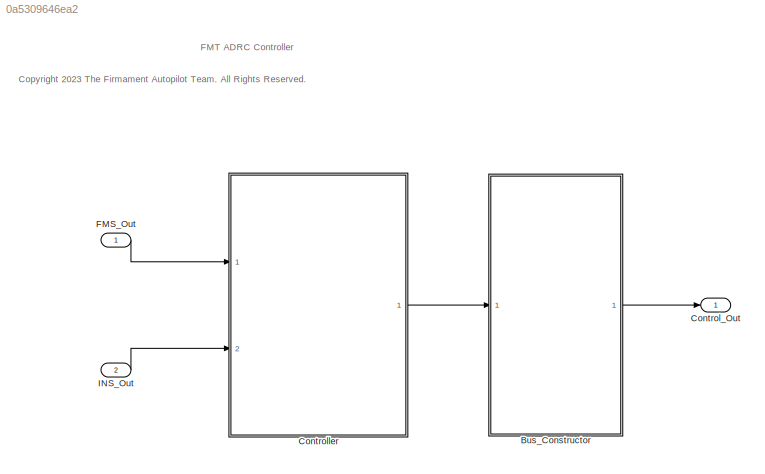
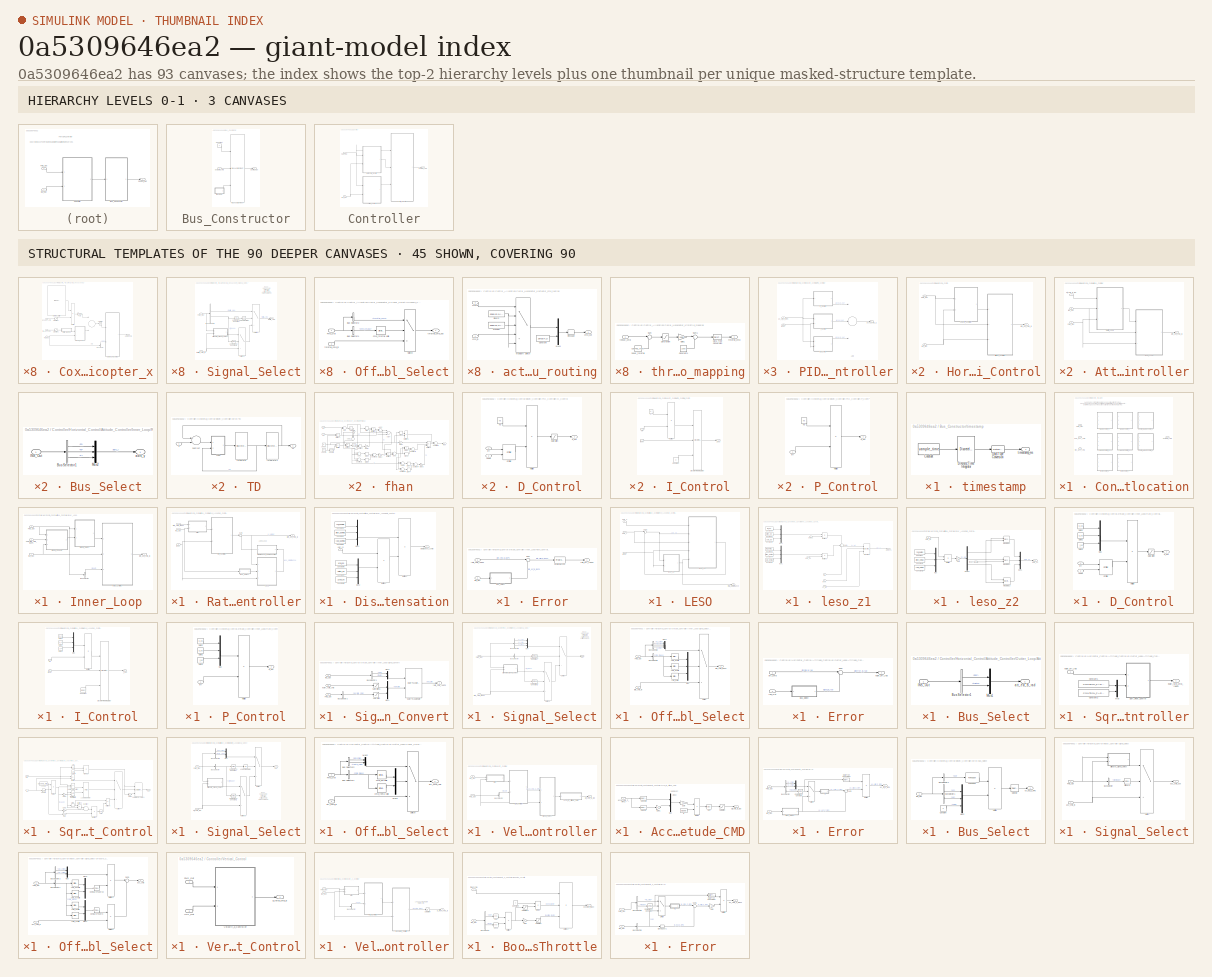
[diagram: thumbnail index - top-2 hierarchy levels (3 canvases) + 45 structural-template representatives of the remaining 90 canvases]
MODEL slx_0a5309646ea2
KIND model
CONFIG AbsTol = auto
CONFIG EnableMultiTasking = off
CONFIG FixedStep = control_dt
CONFIG MaxStep = auto
CONFIG MinStep = auto
CONFIG RelTol = 1e-3
CONFIG SampleTimeConstraint = Unconstrained
CONFIG Solver = FixedStepDiscrete
CONFIG SolverName = FixedStepDiscrete
CONFIG StartTime = 0.0
CONFIG StopTime = 10.0
BLOCK [SubSystem] Bus_Constructor
  Ports = [1, 1]
  RequestExecContextInheritance = off
BLOCK [BusAssignment] Bus_Constructor/Bus Assignment
  AssignedSignals = actuator_cmd,timestamp
  Ports = [3, 1]
BLOCK [Constant] Bus_Constructor/Constant
  OutDataTypeStr = Bus: Control_Out_Bus
  Value = 0
BLOCK [Outport] Bus_Constructor/Control_Out
  IconDisplay = Port number
BLOCK [Inport] Bus_Constructor/actuator_cmd
  IconDisplay = Port number
BLOCK [SubSystem] Bus_Constructor/timestamp
  Ports = [0, 1]
  RequestExecContextInheritance = off
BLOCK [Constant] Bus_Constructor/timestamp/Constant
  Value = sample_time
BLOCK [DataTypeConversion] Bus_Constructor/timestamp/Data Type Conversion
  OutDataTypeStr = uint32
  RndMeth = Floor
  SaturateOnIntegerOverflow = off
BLOCK [DiscreteIntegrator] Bus_Constructor/timestamp/Discrete-Time Integrator
  ICPrevOutput = DiscIntNeverNeededParam
  ICPrevScaledInput = DiscIntNeverNeededParam
  InitialConditionSetting = Auto
  IntegratorMethod = Accumulation: Forward Euler
  Ports = [1, 1]
  SampleTime = -1
BLOCK [Outport] Bus_Constructor/timestamp/timestamp_ms
  IconDisplay = Port number
BLOCK [Outport] Control_Out
  IconDisplay = Port number
  OutDataTypeStr = Bus: Control_Out_Bus
BLOCK [SubSystem] Controller
  Ports = [2, 1]
  RequestExecContextInheritance = off
BLOCK [SubSystem] Controller/Control_Allocation
  GeneratePreprocessorConditionals = on
  Ports = [3, 1]
  RequestExecContextInheritance = off
  Variant = on
BLOCK [SubSystem] Controller/Control_Allocation/Coxial_Hexacopter_x
  Ports = [3, 1]
  RequestExecContextInheritance = off
  TreatAsAtomicUnit = on
  VariantControl = AIRFRAME==6
BLOCK [Sum] Controller/Control_Allocation/Coxial_Hexacopter_x/Add
  InputSameDT = off
  OutDataTypeStr = uint16
  Ports = [2, 1]
  SaturateOnIntegerOverflow = off
BLOCK [BusSelector] Controller/Control_Allocation/Coxial_Hexacopter_x/Bus Selector
  OutputAsBus = off
  OutputSignals = status
  Ports = [1, 1]
BLOCK [Constant] Controller/Control_Allocation/Coxial_Hexacopter_x/Effective_Matrix
  OutDataTypeStr = single
  Value = [-1/2 0 -1/3;1/2 0 1/3;1/2 1/sqrt(3) -1/3;-1/2 -1/sqrt(3) 1/3;-1/2 1/sqrt(3) 1/3;1/2 -1/sqrt(3) -1/3;-1/2 0 1/3;1/2 0 -1/3;1/2 1/sqrt(3) 1/3;-1/2 -1/sqrt(3) -1/3;-1/2 1/sqrt(3) -1/3;1/2 -1/sqrt(3) 1/3]
BLOCK [Inport] Controller/Control_Allocation/Coxial_Hexacopter_x/FMS_Out
  IconDisplay = Port number
BLOCK [Gain] Controller/Control_Allocation/Coxial_Hexacopter_x/Gain
  Gain = 1000
  OutDataTypeStr = uint16
  ParamDataTypeStr = Inherit: Inherit via internal rule
  SaturateOnIntegerOverflow = off
BLOCK [Product] Controller/Control_Allocation/Coxial_Hexacopter_x/Multiply
  InputSameDT = off
  Multiplication = Matrix(*)
  Ports = [2, 1]
  RndMeth = Floor
  SaturateOnIntegerOverflow = off
BLOCK [Saturate] Controller/Control_Allocation/Coxial_Hexacopter_x/Saturation
  InputPortMap = u0
  LowerLimit = 1100
  Ports = [1, 1]
  UpperLimit = 1900
BLOCK [Saturate] Controller/Control_Allocation/Coxial_Hexacopter_x/Saturation1
  InputPortMap = u0
  LowerLimit = -1
  Ports = [1, 1]
  UpperLimit = 1
BLOCK [Saturate] Controller/Control_Allocation/Coxial_Hexacopter_x/Saturation2
  InputPortMap = u0
  LowerLimit = -1
  Ports = [1, 1]
  UpperLimit = 1
BLOCK [SubSystem] Controller/Control_Allocation/Coxial_Hexacopter_x/Signal_Select
  Ports = [2, 1]
  RequestExecContextInheritance = off
BLOCK [BusSelector] Controller/Control_Allocation/Coxial_Hexacopter_x/Signal_Select/Bus Selector1
  OutputAsBus = off
  OutputSignals = throttle_cmd,ctrl_mode
  Ports = [1, 2]
BLOCK [Reference] Controller/Control_Allocation/Coxial_Hexacopter_x/Signal_Select/Compare To Constant  REF=simulink/Logic and Bit
Operations/Compare
To Constant
  Ports = [1, 1]
  SourceBlock = simulink/Logic and Bit\nOperations/Compare\nTo Constant
  SourceProductBaseCode = SL
  SourceProductName = Simulink
  SourceType = Compare To Constant
BLOCK [Reference] Controller/Control_Allocation/Coxial_Hexacopter_x/Signal_Select/Compare To Constant1  REF=simulink/Logic and Bit
Operations/Compare
To Constant
  Ports = [1, 1]
  SourceBlock = simulink/Logic and Bit\nOperations/Compare\nTo Constant
  SourceProductBaseCode = SL
  SourceProductName = Simulink
  SourceType = Compare To Constant
BLOCK [Inport] Controller/Control_Allocation/Coxial_Hexacopter_x/Signal_Select/FMS_Out
  IconDisplay = Port number
  Port = 2
BLOCK [Logic] Controller/Control_Allocation/Coxial_Hexacopter_x/Signal_Select/Logical Operator
  AllPortsSameDT = off
  Inputs = 1
  Operator = OR
  OutDataTypeStr = boolean
  Ports = [1, 1]
BLOCK [SubSystem] Controller/Control_Allocation/Coxial_Hexacopter_x/Signal_Select/Offboard_Signal_Select
  Ports = [2, 1]
  RequestExecContextInheritance = off
BLOCK [BusSelector] Controller/Control_Allocation/Coxial_Hexacopter_x/Signal_Select/Offboard_Signal_Select/Bus Selector1
  OutputAsBus = off
  OutputSignals = cmd_mask
  Ports = [1, 1]
BLOCK [BusSelector] Controller/Control_Allocation/Coxial_Hexacopter_x/Signal_Select/Offboard_Signal_Select/Bus Selector2
  OutputAsBus = off
  OutputSignals = throttle_cmd
  Ports = [1, 1]
BLOCK [Inport] Controller/Control_Allocation/Coxial_Hexacopter_x/Signal_Select/Offboard_Signal_Select/FMS_Out
  IconDisplay = Port number
BLOCK [Switch] Controller/Control_Allocation/Coxial_Hexacopter_x/Signal_Select/Offboard_Signal_Select/Switch
  Criteria = u2 > Threshold
  InputSameDT = off
  SaturateOnIntegerOverflow = off
BLOCK [Reference] Controller/Control_Allocation/Coxial_Hexacopter_x/Signal_Select/Offboard_Signal_Select/cmd_throttle valid  REF=simulink/Logic and Bit
Operations/Bitwise
Operator
  Ports = [1, 1]
  SourceBlock = simulink/Logic and Bit\nOperations/Bitwise\nOperator
  SourceProductBaseCode = SL
  SourceProductName = Simulink
  SourceType = Bitwise Operator
BLOCK [Inport] Controller/Control_Allocation/Coxial_Hexacopter_x/Signal_Select/Offboard_Signal_Select/throttle_cmd_in
  IconDisplay = Port number
  Port = 2
BLOCK [Outport] Controller/Control_Allocation/Coxial_Hexacopter_x/Signal_Select/Offboard_Signal_Select/throttle_cmd_out
  IconDisplay = Port number
BLOCK [Switch] Controller/Control_Allocation/Coxial_Hexacopter_x/Signal_Select/Switch
  Criteria = u2 > Threshold
  InputSameDT = off
  SaturateOnIntegerOverflow = off
BLOCK [Switch] Controller/Control_Allocation/Coxial_Hexacopter_x/Signal_Select/Switch1
  Criteria = u2 > Threshold
  InputSameDT = off
  SaturateOnIntegerOverflow = off
BLOCK [Outport] Controller/Control_Allocation/Coxial_Hexacopter_x/Signal_Select/throttle_cmd
  IconDisplay = Port number
BLOCK [Inport] Controller/Control_Allocation/Coxial_Hexacopter_x/Signal_Select/throttle_cmd_in
  IconDisplay = Port number
BLOCK [Outport] Controller/Control_Allocation/Coxial_Hexacopter_x/actuator_cmd
  IconDisplay = Port number
BLOCK [SubSystem] Controller/Control_Allocation/Coxial_Hexacopter_x/actuator_cmd_routing
  Ports = [2, 1]
  RequestExecContextInheritance = off
BLOCK [Constant] Controller/Control_Allocation/Coxial_Hexacopter_x/actuator_cmd_routing/Constant
  OutDataTypeStr = uint16
  Value = zeros(4,1)
  VectorParams1D = off
BLOCK [Constant] Controller/Control_Allocation/Coxial_Hexacopter_x/actuator_cmd_routing/Disarm
  OutDataTypeStr = uint16
  Value = ones(12,1)*1000
  VectorParams1D = off
BLOCK [MultiPortSwitch] Controller/Control_Allocation/Coxial_Hexacopter_x/actuator_cmd_routing/Multiport Switch
  DataPortForDefault = Additional data port
  DiagnosticForDefault = None
  InputSameDT = off
  Ports = [5, 1]
  SaturateOnIntegerOverflow = off
BLOCK [Mux] Controller/Control_Allocation/Coxial_Hexacopter_x/actuator_cmd_routing/Mux1
  DisplayOption = bar
  Inputs = 2
  Ports = [2, 1]
BLOCK [Reshape] Controller/Control_Allocation/Coxial_Hexacopter_x/actuator_cmd_routing/Reshape
  OutputDimensionality = Customize
  OutputDimensions = [16,1]
  Ports = [1, 1]
BLOCK [Constant] Controller/Control_Allocation/Coxial_Hexacopter_x/actuator_cmd_routing/Standby
  OutDataTypeStr = uint16
  Value = ones(12,1)*1150
  VectorParams1D = off
BLOCK [Inport] Controller/Control_Allocation/Coxial_Hexacopter_x/actuator_cmd_routing/cmd_in
  IconDisplay = Port number
BLOCK [Outport] Controller/Control_Allocation/Coxial_Hexacopter_x/actuator_cmd_routing/cmd_out
  IconDisplay = Port number
BLOCK [Inport] Controller/Control_Allocation/Coxial_Hexacopter_x/actuator_cmd_routing/status
  IconDisplay = Port number
  Port = 2
BLOCK [Inport] Controller/Control_Allocation/Coxial_Hexacopter_x/ang_acc_cmd
  IconDisplay = Port number
  Port = 2
BLOCK [Inport] Controller/Control_Allocation/Coxial_Hexacopter_x/line_acc_cmd
  IconDisplay = Port number
  Port = 3
BLOCK [SubSystem] Controller/Control_Allocation/Coxial_Hexacopter_x/throttle_mapping
  Ports = [1, 1]
  RequestExecContextInheritance = off
BLOCK [Constant] Controller/Control_Allocation/Coxial_Hexacopter_x/throttle_mapping/Constant1
  OutDataTypeStr = uint32
  Value = 1000
BLOCK [DataTypeConversion] Controller/Control_Allocation/Coxial_Hexacopter_x/throttle_mapping/Data Type Conversion
  OutDataTypeStr = uint16
  RndMeth = Floor
  SaturateOnIntegerOverflow = off
BLOCK [Gain] Controller/Control_Allocation/Coxial_Hexacopter_x/throttle_mapping/Gain1
  Gain = 1000
  OutDataTypeStr = uint32
  ParamDataTypeStr = Inherit: Inherit via internal rule
  SaturateOnIntegerOverflow = off
BLOCK [Saturate] Controller/Control_Allocation/Coxial_Hexacopter_x/throttle_mapping/Saturation
  InputPortMap = u0
  LowerLimit = 0
  Ports = [1, 1]
  UpperLimit = 1
BLOCK [Sum] Controller/Control_Allocation/Coxial_Hexacopter_x/throttle_mapping/Sum
  IconShape = round
  InputSameDT = off
  Inputs = |++
  OutDataTypeStr = Inherit: Inherit via internal rule
  Ports = [2, 1]
  SaturateOnIntegerOverflow = off
BLOCK [Sum] Controller/Control_Allocation/Coxial_Hexacopter_x/throttle_mapping/Sum1
  IconShape = round
  InputSameDT = off
  Inputs = |++
  OutDataTypeStr = Inherit: Inherit via internal rule
  Ports = [2, 1]
  SaturateOnIntegerOverflow = off
BLOCK [Constant] Controller/Control_Allocation/Coxial_Hexacopter_x/throttle_mapping/hover_throttle
  OutDataTypeStr = Inherit: Inherit via back propagation
  Value = CONTROL_PARAM.HOVER_THRO
BLOCK [Inport] Controller/Control_Allocation/Coxial_Hexacopter_x/throttle_mapping/theust_cmd
  IconDisplay = Port number
BLOCK [Outport] Controller/Control_Allocation/Coxial_Hexacopter_x/throttle_mapping/throttle_cmd
  IconDisplay = Port number
BLOCK [SubSystem] Controller/Control_Allocation/Coxial_Quadcopter_x
  Ports = [3, 1]
  RequestExecContextInheritance = off
  TreatAsAtomicUnit = on
  VariantControl = AIRFRAME==3
BLOCK [Sum] Controller/Control_Allocation/Coxial_Quadcopter_x/Add
  InputSameDT = off
  OutDataTypeStr = uint16
  Ports = [2, 1]
  SaturateOnIntegerOverflow = off
BLOCK [BusSelector] Controller/Control_Allocation/Coxial_Quadcopter_x/Bus Selector
  OutputAsBus = off
  OutputSignals = status
  Ports = [1, 1]
BLOCK [Constant] Controller/Control_Allocation/Coxial_Quadcopter_x/Effective_Matrix
  OutDataTypeStr = single
  Value = [-sqrt(2)/2 sqrt(2)/2 1/2;sqrt(2)/2 sqrt(2)/2 -1/2;sqrt(2)/2 -sqrt(2)/2 1/2;-sqrt(2)/2 -sqrt(2)/2 -1/2;sqrt(2)/2 sqrt(2)/2 1/2;-sqrt(2)/2 sqrt(2)/2 -1/2;-sqrt(2)/2 -sqrt(2)/2 1/2;sqrt(2)/2 -sqrt(2)/2 -1/2]
BLOCK [Inport] Controller/Control_Allocation/Coxial_Quadcopter_x/FMS_Out
  IconDisplay = Port number
BLOCK [Gain] Controller/Control_Allocation/Coxial_Quadcopter_x/Gain
  Gain = 1000
  OutDataTypeStr = uint16
  ParamDataTypeStr = Inherit: Inherit via internal rule
  SaturateOnIntegerOverflow = off
BLOCK [Product] Controller/Control_Allocation/Coxial_Quadcopter_x/Multiply
  InputSameDT = off
  Multiplication = Matrix(*)
  Ports = [2, 1]
  RndMeth = Floor
  SaturateOnIntegerOverflow = off
BLOCK [Saturate] Controller/Control_Allocation/Coxial_Quadcopter_x/Saturation
  InputPortMap = u0
  LowerLimit = 1100
  Ports = [1, 1]
  UpperLimit = 1900
BLOCK [Saturate] Controller/Control_Allocation/Coxial_Quadcopter_x/Saturation1
  InputPortMap = u0
  LowerLimit = -1
  Ports = [1, 1]
  UpperLimit = 1
BLOCK [Saturate] Controller/Control_Allocation/Coxial_Quadcopter_x/Saturation2
  InputPortMap = u0
  LowerLimit = -1
  Ports = [1, 1]
  UpperLimit = 1
BLOCK [SubSystem] Controller/Control_Allocation/Coxial_Quadcopter_x/Signal_Select
  Ports = [2, 1]
  RequestExecContextInheritance = off
BLOCK [BusSelector] Controller/Control_Allocation/Coxial_Quadcopter_x/Signal_Select/Bus Selector1
  OutputAsBus = off
  OutputSignals = throttle_cmd,ctrl_mode
  Ports = [1, 2]
BLOCK [Reference] Controller/Control_Allocation/Coxial_Quadcopter_x/Signal_Select/Compare To Constant  REF=simulink/Logic and Bit
Operations/Compare
To Constant
  Ports = [1, 1]
  SourceBlock = simulink/Logic and Bit\nOperations/Compare\nTo Constant
  SourceProductBaseCode = SL
  SourceProductName = Simulink
  SourceType = Compare To Constant
BLOCK [Reference] Controller/Control_Allocation/Coxial_Quadcopter_x/Signal_Select/Compare To Constant1  REF=simulink/Logic and Bit
Operations/Compare
To Constant
  Ports = [1, 1]
  SourceBlock = simulink/Logic and Bit\nOperations/Compare\nTo Constant
  SourceProductBaseCode = SL
  SourceProductName = Simulink
  SourceType = Compare To Constant
BLOCK [Inport] Controller/Control_Allocation/Coxial_Quadcopter_x/Signal_Select/FMS_Out
  IconDisplay = Port number
  Port = 2
BLOCK [Logic] Controller/Control_Allocation/Coxial_Quadcopter_x/Signal_Select/Logical Operator
  AllPortsSameDT = off
  Inputs = 1
  Operator = OR
  OutDataTypeStr = boolean
  Ports = [1, 1]
BLOCK [SubSystem] Controller/Control_Allocation/Coxial_Quadcopter_x/Signal_Select/Offboard_Signal_Select
  Ports = [2, 1]
  RequestExecContextInheritance = off
BLOCK [BusSelector] Controller/Control_Allocation/Coxial_Quadcopter_x/Signal_Select/Offboard_Signal_Select/Bus Selector1
  OutputAsBus = off
  OutputSignals = cmd_mask
  Ports = [1, 1]
BLOCK [BusSelector] Controller/Control_Allocation/Coxial_Quadcopter_x/Signal_Select/Offboard_Signal_Select/Bus Selector2
  OutputAsBus = off
  OutputSignals = throttle_cmd
  Ports = [1, 1]
BLOCK [Inport] Controller/Control_Allocation/Coxial_Quadcopter_x/Signal_Select/Offboard_Signal_Select/FMS_Out
  IconDisplay = Port number
BLOCK [Switch] Controller/Control_Allocation/Coxial_Quadcopter_x/Signal_Select/Offboard_Signal_Select/Switch
  Criteria = u2 > Threshold
  InputSameDT = off
  SaturateOnIntegerOverflow = off
BLOCK [Reference] Controller/Control_Allocation/Coxial_Quadcopter_x/Signal_Select/Offboard_Signal_Select/cmd_throttle valid  REF=simulink/Logic and Bit
Operations/Bitwise
Operator
  Ports = [1, 1]
  SourceBlock = simulink/Logic and Bit\nOperations/Bitwise\nOperator
  SourceProductBaseCode = SL
  SourceProductName = Simulink
  SourceType = Bitwise Operator
BLOCK [Inport] Controller/Control_Allocation/Coxial_Quadcopter_x/Signal_Select/Offboard_Signal_Select/throttle_cmd_in
  IconDisplay = Port number
  Port = 2
BLOCK [Outport] Controller/Control_Allocation/Coxial_Quadcopter_x/Signal_Select/Offboard_Signal_Select/throttle_cmd_out
  IconDisplay = Port number
BLOCK [Switch] Controller/Control_Allocation/Coxial_Quadcopter_x/Signal_Select/Switch
  Criteria = u2 > Threshold
  InputSameDT = off
  SaturateOnIntegerOverflow = off
BLOCK [Switch] Controller/Control_Allocation/Coxial_Quadcopter_x/Signal_Select/Switch1
  Criteria = u2 > Threshold
  InputSameDT = off
  SaturateOnIntegerOverflow = off
BLOCK [Outport] Controller/Control_Allocation/Coxial_Quadcopter_x/Signal_Select/throttle_cmd
  IconDisplay = Port number
BLOCK [Inport] Controller/Control_Allocation/Coxial_Quadcopter_x/Signal_Select/throttle_cmd_in
  IconDisplay = Port number
BLOCK [Outport] Controller/Control_Allocation/Coxial_Quadcopter_x/actuator_cmd
  IconDisplay = Port number
BLOCK [SubSystem] Controller/Control_Allocation/Coxial_Quadcopter_x/actuator_cmd_routing
  Ports = [2, 1]
  RequestExecContextInheritance = off
BLOCK [Constant] Controller/Control_Allocation/Coxial_Quadcopter_x/actuator_cmd_routing/Constant
  OutDataTypeStr = uint16
  Value = zeros(8,1)
  VectorParams1D = off
BLOCK [Constant] Controller/Control_Allocation/Coxial_Quadcopter_x/actuator_cmd_routing/Disarm
  OutDataTypeStr = uint16
  Value = ones(8,1)*1000
  VectorParams1D = off
BLOCK [MultiPortSwitch] Controller/Control_Allocation/Coxial_Quadcopter_x/actuator_cmd_routing/Multiport Switch
  DataPortForDefault = Additional data port
  DiagnosticForDefault = None
  InputSameDT = off
  Ports = [5, 1]
  SaturateOnIntegerOverflow = off
BLOCK [Mux] Controller/Control_Allocation/Coxial_Quadcopter_x/actuator_cmd_routing/Mux1
  DisplayOption = bar
  Inputs = 2
  Ports = [2, 1]
BLOCK [Reshape] Controller/Control_Allocation/Coxial_Quadcopter_x/actuator_cmd_routing/Reshape
  OutputDimensionality = Customize
  OutputDimensions = [16,1]
  Ports = [1, 1]
BLOCK [Constant] Controller/Control_Allocation/Coxial_Quadcopter_x/actuator_cmd_routing/Standby
  OutDataTypeStr = uint16
  Value = ones(8,1)*1150
  VectorParams1D = off
BLOCK [Inport] Controller/Control_Allocation/Coxial_Quadcopter_x/actuator_cmd_routing/cmd_in
  IconDisplay = Port number
BLOCK [Outport] Controller/Control_Allocation/Coxial_Quadcopter_x/actuator_cmd_routing/cmd_out
  IconDisplay = Port number
BLOCK [Inport] Controller/Control_Allocation/Coxial_Quadcopter_x/actuator_cmd_routing/status
  IconDisplay = Port number
  Port = 2
BLOCK [Inport] Controller/Control_Allocation/Coxial_Quadcopter_x/ang_acc_cmd
  IconDisplay = Port number
  Port = 2
BLOCK [Inport] Controller/Control_Allocation/Coxial_Quadcopter_x/line_acc_cmd
  IconDisplay = Port number
  Port = 3
BLOCK [SubSystem] Controller/Control_Allocation/Coxial_Quadcopter_x/throttle_mapping
  Ports = [1, 1]
  RequestExecContextInheritance = off
BLOCK [Constant] Controller/Control_Allocation/Coxial_Quadcopter_x/throttle_mapping/Constant1
  OutDataTypeStr = uint32
  Value = 1000
BLOCK [DataTypeConversion] Controller/Control_Allocation/Coxial_Quadcopter_x/throttle_mapping/Data Type Conversion
  OutDataTypeStr = uint16
  RndMeth = Floor
  SaturateOnIntegerOverflow = off
BLOCK [Gain] Controller/Control_Allocation/Coxial_Quadcopter_x/throttle_mapping/Gain1
  Gain = 1000
  OutDataTypeStr = uint32
  ParamDataTypeStr = Inherit: Inherit via internal rule
  SaturateOnIntegerOverflow = off
BLOCK [Saturate] Controller/Control_Allocation/Coxial_Quadcopter_x/throttle_mapping/Saturation
  InputPortMap = u0
  LowerLimit = 0
  Ports = [1, 1]
  UpperLimit = 1
BLOCK [Sum] Controller/Control_Allocation/Coxial_Quadcopter_x/throttle_mapping/Sum
  IconShape = round
  InputSameDT = off
  Inputs = |++
  OutDataTypeStr = Inherit: Inherit via internal rule
  Ports = [2, 1]
  SaturateOnIntegerOverflow = off
BLOCK [Sum] Controller/Control_Allocation/Coxial_Quadcopter_x/throttle_mapping/Sum1
  IconShape = round
  InputSameDT = off
  Inputs = |++
  OutDataTypeStr = Inherit: Inherit via internal rule
  Ports = [2, 1]
  SaturateOnIntegerOverflow = off
BLOCK [Constant] Controller/Control_Allocation/Coxial_Quadcopter_x/throttle_mapping/hover_throttle
  OutDataTypeStr = Inherit: Inherit via back propagation
  Value = CONTROL_PARAM.HOVER_THRO
BLOCK [Inport] Controller/Control_Allocation/Coxial_Quadcopter_x/throttle_mapping/theust_cmd
  IconDisplay = Port number
BLOCK [Outport] Controller/Control_Allocation/Coxial_Quadcopter_x/throttle_mapping/throttle_cmd
  IconDisplay = Port number
BLOCK [Inport] Controller/Control_Allocation/FMS_Out
  IconDisplay = Port number
BLOCK [SubSystem] Controller/Control_Allocation/Hexacopter_+
  Ports = [3, 1]
  RequestExecContextInheritance = off
  TreatAsAtomicUnit = on
  VariantControl = AIRFRAME==5
BLOCK [Sum] Controller/Control_Allocation/Hexacopter_+/Add
  InputSameDT = off
  OutDataTypeStr = uint16
  Ports = [2, 1]
  SaturateOnIntegerOverflow = off
BLOCK [BusSelector] Controller/Control_Allocation/Hexacopter_+/Bus Selector
  OutputAsBus = off
  OutputSignals = status
  Ports = [1, 1]
BLOCK [Constant] Controller/Control_Allocation/Hexacopter_+/Effective_Matrix
  OutDataTypeStr = single
  Value = [0 1 -2/3;0 -1 2/3;2/sqrt(3) -1 -2/3;-2/sqrt(3) 1 2/3;2/sqrt(3) 1 2/3;-2/sqrt(3) -1 -2/3]
BLOCK [Inport] Controller/Control_Allocation/Hexacopter_+/FMS_Out
  IconDisplay = Port number
BLOCK [Gain] Controller/Control_Allocation/Hexacopter_+/Gain
  Gain = 1000
  OutDataTypeStr = uint16
  ParamDataTypeStr = Inherit: Inherit via internal rule
  SaturateOnIntegerOverflow = off
BLOCK [Product] Controller/Control_Allocation/Hexacopter_+/Multiply
  InputSameDT = off
  Multiplication = Matrix(*)
  Ports = [2, 1]
  RndMeth = Floor
  SaturateOnIntegerOverflow = off
BLOCK [Saturate] Controller/Control_Allocation/Hexacopter_+/Saturation
  InputPortMap = u0
  LowerLimit = 1100
  Ports = [1, 1]
  UpperLimit = 1900
BLOCK [Saturate] Controller/Control_Allocation/Hexacopter_+/Saturation1
  InputPortMap = u0
  LowerLimit = -1
  Ports = [1, 1]
  UpperLimit = 1
BLOCK [Saturate] Controller/Control_Allocation/Hexacopter_+/Saturation2
  InputPortMap = u0
  LowerLimit = -1
  Ports = [1, 1]
  UpperLimit = 1
BLOCK [SubSystem] Controller/Control_Allocation/Hexacopter_+/Signal_Select
  Ports = [2, 1]
  RequestExecContextInheritance = off
BLOCK [BusSelector] Controller/Control_Allocation/Hexacopter_+/Signal_Select/Bus Selector1
  OutputAsBus = off
  OutputSignals = throttle_cmd,ctrl_mode
  Ports = [1, 2]
BLOCK [Reference] Controller/Control_Allocation/Hexacopter_+/Signal_Select/Compare To Constant  REF=simulink/Logic and Bit
Operations/Compare
To Constant
  Ports = [1, 1]
  SourceBlock = simulink/Logic and Bit\nOperations/Compare\nTo Constant
  SourceProductBaseCode = SL
  SourceProductName = Simulink
  SourceType = Compare To Constant
BLOCK [Reference] Controller/Control_Allocation/Hexacopter_+/Signal_Select/Compare To Constant1  REF=simulink/Logic and Bit
Operations/Compare
To Constant
  Ports = [1, 1]
  SourceBlock = simulink/Logic and Bit\nOperations/Compare\nTo Constant
  SourceProductBaseCode = SL
  SourceProductName = Simulink
  SourceType = Compare To Constant
BLOCK [Inport] Controller/Control_Allocation/Hexacopter_+/Signal_Select/FMS_Out
  IconDisplay = Port number
  Port = 2
BLOCK [Logic] Controller/Control_Allocation/Hexacopter_+/Signal_Select/Logical Operator
  AllPortsSameDT = off
  Inputs = 1
  Operator = OR
  OutDataTypeStr = boolean
  Ports = [1, 1]
BLOCK [SubSystem] Controller/Control_Allocation/Hexacopter_+/Signal_Select/Offboard_Signal_Select
  Ports = [2, 1]
  RequestExecContextInheritance = off
BLOCK [BusSelector] Controller/Control_Allocation/Hexacopter_+/Signal_Select/Offboard_Signal_Select/Bus Selector1
  OutputAsBus = off
  OutputSignals = cmd_mask
  Ports = [1, 1]
BLOCK [BusSelector] Controller/Control_Allocation/Hexacopter_+/Signal_Select/Offboard_Signal_Select/Bus Selector2
  OutputAsBus = off
  OutputSignals = throttle_cmd
  Ports = [1, 1]
BLOCK [Inport] Controller/Control_Allocation/Hexacopter_+/Signal_Select/Offboard_Signal_Select/FMS_Out
  IconDisplay = Port number
BLOCK [Switch] Controller/Control_Allocation/Hexacopter_+/Signal_Select/Offboard_Signal_Select/Switch
  Criteria = u2 > Threshold
  InputSameDT = off
  SaturateOnIntegerOverflow = off
BLOCK [Reference] Controller/Control_Allocation/Hexacopter_+/Signal_Select/Offboard_Signal_Select/cmd_throttle valid  REF=simulink/Logic and Bit
Operations/Bitwise
Operator
  Ports = [1, 1]
  SourceBlock = simulink/Logic and Bit\nOperations/Bitwise\nOperator
  SourceProductBaseCode = SL
  SourceProductName = Simulink
  SourceType = Bitwise Operator
BLOCK [Inport] Controller/Control_Allocation/Hexacopter_+/Signal_Select/Offboard_Signal_Select/throttle_cmd_in
  IconDisplay = Port number
  Port = 2
BLOCK [Outport] Controller/Control_Allocation/Hexacopter_+/Signal_Select/Offboard_Signal_Select/throttle_cmd_out
  IconDisplay = Port number
BLOCK [Switch] Controller/Control_Allocation/Hexacopter_+/Signal_Select/Switch
  Criteria = u2 > Threshold
  InputSameDT = off
  SaturateOnIntegerOverflow = off
BLOCK [Switch] Controller/Control_Allocation/Hexacopter_+/Signal_Select/Switch1
  Criteria = u2 > Threshold
  InputSameDT = off
  SaturateOnIntegerOverflow = off
BLOCK [Outport] Controller/Control_Allocation/Hexacopter_+/Signal_Select/throttle_cmd
  IconDisplay = Port number
BLOCK [Inport] Controller/Control_Allocation/Hexacopter_+/Signal_Select/throttle_cmd_in
  IconDisplay = Port number
BLOCK [Outport] Controller/Control_Allocation/Hexacopter_+/actuator_cmd
  IconDisplay = Port number
BLOCK [SubSystem] Controller/Control_Allocation/Hexacopter_+/actuator_cmd_routing
  Ports = [2, 1]
  RequestExecContextInheritance = off
BLOCK [Constant] Controller/Control_Allocation/Hexacopter_+/actuator_cmd_routing/Constant
  OutDataTypeStr = uint16
  Value = zeros(10,1)
  VectorParams1D = off
BLOCK [Constant] Controller/Control_Allocation/Hexacopter_+/actuator_cmd_routing/Disarm
  OutDataTypeStr = uint16
  Value = ones(6,1)*1000
  VectorParams1D = off
BLOCK [MultiPortSwitch] Controller/Control_Allocation/Hexacopter_+/actuator_cmd_routing/Multiport Switch
  DataPortForDefault = Additional data port
  DiagnosticForDefault = None
  InputSameDT = off
  Ports = [5, 1]
  SaturateOnIntegerOverflow = off
BLOCK [Mux] Controller/Control_Allocation/Hexacopter_+/actuator_cmd_routing/Mux1
  DisplayOption = bar
  Inputs = 2
  Ports = [2, 1]
BLOCK [Reshape] Controller/Control_Allocation/Hexacopter_+/actuator_cmd_routing/Reshape
  OutputDimensionality = Customize
  OutputDimensions = [16,1]
  Ports = [1, 1]
BLOCK [Constant] Controller/Control_Allocation/Hexacopter_+/actuator_cmd_routing/Standby
  OutDataTypeStr = uint16
  Value = ones(6,1)*1150
  VectorParams1D = off
BLOCK [Inport] Controller/Control_Allocation/Hexacopter_+/actuator_cmd_routing/cmd_in
  IconDisplay = Port number
BLOCK [Outport] Controller/Control_Allocation/Hexacopter_+/actuator_cmd_routing/cmd_out
  IconDisplay = Port number
BLOCK [Inport] Controller/Control_Allocation/Hexacopter_+/actuator_cmd_routing/status
  IconDisplay = Port number
  Port = 2
BLOCK [Inport] Controller/Control_Allocation/Hexacopter_+/ang_acc_cmd
  IconDisplay = Port number
  Port = 2
BLOCK [Inport] Controller/Control_Allocation/Hexacopter_+/line_acc_cmd
  IconDisplay = Port number
  Port = 3
BLOCK [SubSystem] Controller/Control_Allocation/Hexacopter_+/throttle_mapping
  Ports = [1, 1]
  RequestExecContextInheritance = off
BLOCK [Constant] Controller/Control_Allocation/Hexacopter_+/throttle_mapping/Constant1
  OutDataTypeStr = uint32
  Value = 1000
BLOCK [DataTypeConversion] Controller/Control_Allocation/Hexacopter_+/throttle_mapping/Data Type Conversion
  OutDataTypeStr = uint16
  RndMeth = Floor
  SaturateOnIntegerOverflow = off
BLOCK [Gain] Controller/Control_Allocation/Hexacopter_+/throttle_mapping/Gain1
  Gain = 1000
  OutDataTypeStr = uint32
  ParamDataTypeStr = Inherit: Inherit via internal rule
  SaturateOnIntegerOverflow = off
BLOCK [Saturate] Controller/Control_Allocation/Hexacopter_+/throttle_mapping/Saturation
  InputPortMap = u0
  LowerLimit = 0
  Ports = [1, 1]
  UpperLimit = 1
BLOCK [Sum] Controller/Control_Allocation/Hexacopter_+/throttle_mapping/Sum
  IconShape = round
  InputSameDT = off
  Inputs = |++
  OutDataTypeStr = Inherit: Inherit via internal rule
  Ports = [2, 1]
  SaturateOnIntegerOverflow = off
BLOCK [Sum] Controller/Control_Allocation/Hexacopter_+/throttle_mapping/Sum1
  IconShape = round
  InputSameDT = off
  Inputs = |++
  OutDataTypeStr = Inherit: Inherit via internal rule
  Ports = [2, 1]
  SaturateOnIntegerOverflow = off
BLOCK [Constant] Controller/Control_Allocation/Hexacopter_+/throttle_mapping/hover_throttle
  OutDataTypeStr = Inherit: Inherit via back propagation
  Value = CONTROL_PARAM.HOVER_THRO
BLOCK [Inport] Controller/Control_Allocation/Hexacopter_+/throttle_mapping/theust_cmd
  IconDisplay = Port number
BLOCK [Outport] Controller/Control_Allocation/Hexacopter_+/throttle_mapping/throttle_cmd
  IconDisplay = Port number
BLOCK [SubSystem] Controller/Control_Allocation/Hexacopter_x
  Ports = [3, 1]
  RequestExecContextInheritance = off
  TreatAsAtomicUnit = on
  VariantControl = AIRFRAME==4
BLOCK [Sum] Controller/Control_Allocation/Hexacopter_x/Add
  InputSameDT = off
  OutDataTypeStr = uint16
  Ports = [2, 1]
  SaturateOnIntegerOverflow = off
BLOCK [BusSelector] Controller/Control_Allocation/Hexacopter_x/Bus Selector
  OutputAsBus = off
  OutputSignals = status
  Ports = [1, 1]
BLOCK [Constant] Controller/Control_Allocation/Hexacopter_x/Effective_Matrix
  OutDataTypeStr = single
  Value = [-1 0 -2/3;1 0 2/3;1 2/sqrt(3) -2/3;-1 -2/sqrt(3) 2/3;-1 2/sqrt(3) 2/3;1 -2/sqrt(3) -2/3]
BLOCK [Inport] Controller/Control_Allocation/Hexacopter_x/FMS_Out
  IconDisplay = Port number
BLOCK [Gain] Controller/Control_Allocation/Hexacopter_x/Gain
  Gain = 1000
  OutDataTypeStr = uint16
  ParamDataTypeStr = Inherit: Inherit via internal rule
  SaturateOnIntegerOverflow = off
BLOCK [Product] Controller/Control_Allocation/Hexacopter_x/Multiply
  InputSameDT = off
  Multiplication = Matrix(*)
  Ports = [2, 1]
  RndMeth = Floor
  SaturateOnIntegerOverflow = off
BLOCK [Saturate] Controller/Control_Allocation/Hexacopter_x/Saturation
  InputPortMap = u0
  LowerLimit = 1100
  Ports = [1, 1]
  UpperLimit = 1900
BLOCK [Saturate] Controller/Control_Allocation/Hexacopter_x/Saturation1
  InputPortMap = u0
  LowerLimit = -1
  Ports = [1, 1]
  UpperLimit = 1
BLOCK [Saturate] Controller/Control_Allocation/Hexacopter_x/Saturation2
  InputPortMap = u0
  LowerLimit = -1
  Ports = [1, 1]
  UpperLimit = 1
BLOCK [SubSystem] Controller/Control_Allocation/Hexacopter_x/Signal_Select
  Ports = [2, 1]
  RequestExecContextInheritance = off
BLOCK [BusSelector] Controller/Control_Allocation/Hexacopter_x/Signal_Select/Bus Selector1
  OutputAsBus = off
  OutputSignals = throttle_cmd,ctrl_mode
  Ports = [1, 2]
BLOCK [Reference] Controller/Control_Allocation/Hexacopter_x/Signal_Select/Compare To Constant  REF=simulink/Logic and Bit
Operations/Compare
To Constant
  Ports = [1, 1]
  SourceBlock = simulink/Logic and Bit\nOperations/Compare\nTo Constant
  SourceProductBaseCode = SL
  SourceProductName = Simulink
  SourceType = Compare To Constant
BLOCK [Reference] Controller/Control_Allocation/Hexacopter_x/Signal_Select/Compare To Constant1  REF=simulink/Logic and Bit
Operations/Compare
To Constant
  Ports = [1, 1]
  SourceBlock = simulink/Logic and Bit\nOperations/Compare\nTo Constant
  SourceProductBaseCode = SL
  SourceProductName = Simulink
  SourceType = Compare To Constant
BLOCK [Inport] Controller/Control_Allocation/Hexacopter_x/Signal_Select/FMS_Out
  IconDisplay = Port number
  Port = 2
BLOCK [Logic] Controller/Control_Allocation/Hexacopter_x/Signal_Select/Logical Operator
  AllPortsSameDT = off
  Inputs = 1
  Operator = OR
  OutDataTypeStr = boolean
  Ports = [1, 1]
BLOCK [SubSystem] Controller/Control_Allocation/Hexacopter_x/Signal_Select/Offboard_Signal_Select
  Ports = [2, 1]
  RequestExecContextInheritance = off
BLOCK [BusSelector] Controller/Control_Allocation/Hexacopter_x/Signal_Select/Offboard_Signal_Select/Bus Selector1
  OutputAsBus = off
  OutputSignals = cmd_mask
  Ports = [1, 1]
BLOCK [BusSelector] Controller/Control_Allocation/Hexacopter_x/Signal_Select/Offboard_Signal_Select/Bus Selector2
  OutputAsBus = off
  OutputSignals = throttle_cmd
  Ports = [1, 1]
BLOCK [Inport] Controller/Control_Allocation/Hexacopter_x/Signal_Select/Offboard_Signal_Select/FMS_Out
  IconDisplay = Port number
BLOCK [Switch] Controller/Control_Allocation/Hexacopter_x/Signal_Select/Offboard_Signal_Select/Switch
  Criteria = u2 > Threshold
  InputSameDT = off
  SaturateOnIntegerOverflow = off
BLOCK [Reference] Controller/Control_Allocation/Hexacopter_x/Signal_Select/Offboard_Signal_Select/cmd_throttle valid  REF=simulink/Logic and Bit
Operations/Bitwise
Operator
  Ports = [1, 1]
  SourceBlock = simulink/Logic and Bit\nOperations/Bitwise\nOperator
  SourceProductBaseCode = SL
  SourceProductName = Simulink
  SourceType = Bitwise Operator
BLOCK [Inport] Controller/Control_Allocation/Hexacopter_x/Signal_Select/Offboard_Signal_Select/throttle_cmd_in
  IconDisplay = Port number
  Port = 2
BLOCK [Outport] Controller/Control_Allocation/Hexacopter_x/Signal_Select/Offboard_Signal_Select/throttle_cmd_out
  IconDisplay = Port number
BLOCK [Switch] Controller/Control_Allocation/Hexacopter_x/Signal_Select/Switch
  Criteria = u2 > Threshold
  InputSameDT = off
  SaturateOnIntegerOverflow = off
BLOCK [Switch] Controller/Control_Allocation/Hexacopter_x/Signal_Select/Switch1
  Criteria = u2 > Threshold
  InputSameDT = off
  SaturateOnIntegerOverflow = off
BLOCK [Outport] Controller/Control_Allocation/Hexacopter_x/Signal_Select/throttle_cmd
  IconDisplay = Port number
BLOCK [Inport] Controller/Control_Allocation/Hexacopter_x/Signal_Select/throttle_cmd_in
  IconDisplay = Port number
BLOCK [Outport] Controller/Control_Allocation/Hexacopter_x/actuator_cmd
  IconDisplay = Port number
BLOCK [SubSystem] Controller/Control_Allocation/Hexacopter_x/actuator_cmd_routing
  Ports = [2, 1]
  RequestExecContextInheritance = off
BLOCK [Constant] Controller/Control_Allocation/Hexacopter_x/actuator_cmd_routing/Constant
  OutDataTypeStr = uint16
  Value = zeros(10,1)
  VectorParams1D = off
BLOCK [Constant] Controller/Control_Allocation/Hexacopter_x/actuator_cmd_routing/Disarm
  OutDataTypeStr = uint16
  Value = ones(6,1)*1000
  VectorParams1D = off
BLOCK [MultiPortSwitch] Controller/Control_Allocation/Hexacopter_x/actuator_cmd_routing/Multiport Switch
  DataPortForDefault = Additional data port
  DiagnosticForDefault = None
  InputSameDT = off
  Ports = [5, 1]
  SaturateOnIntegerOverflow = off
BLOCK [Mux] Controller/Control_Allocation/Hexacopter_x/actuator_cmd_routing/Mux1
  DisplayOption = bar
  Inputs = 2
  Ports = [2, 1]
BLOCK [Reshape] Controller/Control_Allocation/Hexacopter_x/actuator_cmd_routing/Reshape
  OutputDimensionality = Customize
  OutputDimensions = [16,1]
  Ports = [1, 1]
BLOCK [Constant] Controller/Control_Allocation/Hexacopter_x/actuator_cmd_routing/Standby
  OutDataTypeStr = uint16
  Value = ones(6,1)*1150
  VectorParams1D = off
BLOCK [Inport] Controller/Control_Allocation/Hexacopter_x/actuator_cmd_routing/cmd_in
  IconDisplay = Port number
BLOCK [Outport] Controller/Control_Allocation/Hexacopter_x/actuator_cmd_routing/cmd_out
  IconDisplay = Port number
BLOCK [Inport] Controller/Control_Allocation/Hexacopter_x/actuator_cmd_routing/status
  IconDisplay = Port number
  Port = 2
BLOCK [Inport] Controller/Control_Allocation/Hexacopter_x/ang_acc_cmd
  IconDisplay = Port number
  Port = 2
BLOCK [Inport] Controller/Control_Allocation/Hexacopter_x/line_acc_cmd
  IconDisplay = Port number
  Port = 3
BLOCK [SubSystem] Controller/Control_Allocation/Hexacopter_x/throttle_mapping
  Ports = [1, 1]
  RequestExecContextInheritance = off
BLOCK [Constant] Controller/Control_Allocation/Hexacopter_x/throttle_mapping/Constant1
  OutDataTypeStr = uint32
  Value = 1000
BLOCK [DataTypeConversion] Controller/Control_Allocation/Hexacopter_x/throttle_mapping/Data Type Conversion
  OutDataTypeStr = uint16
  RndMeth = Floor
  SaturateOnIntegerOverflow = off
BLOCK [Gain] Controller/Control_Allocation/Hexacopter_x/throttle_mapping/Gain1
  Gain = 1000
  OutDataTypeStr = uint32
  ParamDataTypeStr = Inherit: Inherit via internal rule
  SaturateOnIntegerOverflow = off
BLOCK [Saturate] Controller/Control_Allocation/Hexacopter_x/throttle_mapping/Saturation
  InputPortMap = u0
  LowerLimit = 0
  Ports = [1, 1]
  UpperLimit = 1
BLOCK [Sum] Controller/Control_Allocation/Hexacopter_x/throttle_mapping/Sum
  IconShape = round
  InputSameDT = off
  Inputs = |++
  OutDataTypeStr = Inherit: Inherit via internal rule
  Ports = [2, 1]
  SaturateOnIntegerOverflow = off
BLOCK [Sum] Controller/Control_Allocation/Hexacopter_x/throttle_mapping/Sum1
  IconShape = round
  InputSameDT = off
  Inputs = |++
  OutDataTypeStr = Inherit: Inherit via internal rule
  Ports = [2, 1]
  SaturateOnIntegerOverflow = off
BLOCK [Constant] Controller/Control_Allocation/Hexacopter_x/throttle_mapping/hover_throttle
  OutDataTypeStr = Inherit: Inherit via back propagation
  Value = CONTROL_PARAM.HOVER_THRO
BLOCK [Inport] Controller/Control_Allocation/Hexacopter_x/throttle_mapping/theust_cmd
  IconDisplay = Port number
BLOCK [Outport] Controller/Control_Allocation/Hexacopter_x/throttle_mapping/throttle_cmd
  IconDisplay = Port number
BLOCK [SubSystem] Controller/Control_Allocation/Octocopter_+
  Ports = [3, 1]
  RequestExecContextInheritance = off
  TreatAsAtomicUnit = on
  VariantControl = AIRFRAME==8
BLOCK [Sum] Controller/Control_Allocation/Octocopter_+/Add
  InputSameDT = off
  OutDataTypeStr = uint16
  Ports = [2, 1]
  SaturateOnIntegerOverflow = off
BLOCK [BusSelector] Controller/Control_Allocation/Octocopter_+/Bus Selector
  OutputAsBus = off
  OutputSignals = status
  Ports = [1, 1]
BLOCK [Constant] Controller/Control_Allocation/Octocopter_+/Effective_Matrix
  OutDataTypeStr = single
  Value = [0 1 -0.5;0 -1 -0.5;-1/sqrt(2) 1/sqrt(2) 0.5;-1/sqrt(2) -1/sqrt(2) 0.5;1/sqrt(2) 1/sqrt(2) 0.5;1/sqrt(2) -1/sqrt(2) 0.5;1 0 -0.5;-1 0 -0.5]
BLOCK [Inport] Controller/Control_Allocation/Octocopter_+/FMS_Out
  IconDisplay = Port number
BLOCK [Gain] Controller/Control_Allocation/Octocopter_+/Gain
  Gain = 1000
  OutDataTypeStr = uint16
  ParamDataTypeStr = Inherit: Inherit via internal rule
  SaturateOnIntegerOverflow = off
BLOCK [Product] Controller/Control_Allocation/Octocopter_+/Multiply
  InputSameDT = off
  Multiplication = Matrix(*)
  Ports = [2, 1]
  RndMeth = Floor
  SaturateOnIntegerOverflow = off
BLOCK [Saturate] Controller/Control_Allocation/Octocopter_+/Saturation
  InputPortMap = u0
  LowerLimit = 1100
  Ports = [1, 1]
  UpperLimit = 1900
BLOCK [Saturate] Controller/Control_Allocation/Octocopter_+/Saturation1
  InputPortMap = u0
  LowerLimit = -1
  Ports = [1, 1]
  UpperLimit = 1
BLOCK [Saturate] Controller/Control_Allocation/Octocopter_+/Saturation2
  InputPortMap = u0
  LowerLimit = -1
  Ports = [1, 1]
  UpperLimit = 1
BLOCK [SubSystem] Controller/Control_Allocation/Octocopter_+/Signal_Select
  Ports = [2, 1]
  RequestExecContextInheritance = off
BLOCK [BusSelector] Controller/Control_Allocation/Octocopter_+/Signal_Select/Bus Selector1
  OutputAsBus = off
  OutputSignals = throttle_cmd,ctrl_mode
  Ports = [1, 2]
BLOCK [Reference] Controller/Control_Allocation/Octocopter_+/Signal_Select/Compare To Constant  REF=simulink/Logic and Bit
Operations/Compare
To Constant
  Ports = [1, 1]
  SourceBlock = simulink/Logic and Bit\nOperations/Compare\nTo Constant
  SourceProductBaseCode = SL
  SourceProductName = Simulink
  SourceType = Compare To Constant
BLOCK [Reference] Controller/Control_Allocation/Octocopter_+/Signal_Select/Compare To Constant1  REF=simulink/Logic and Bit
Operations/Compare
To Constant
  Ports = [1, 1]
  SourceBlock = simulink/Logic and Bit\nOperations/Compare\nTo Constant
  SourceProductBaseCode = SL
  SourceProductName = Simulink
  SourceType = Compare To Constant
BLOCK [Inport] Controller/Control_Allocation/Octocopter_+/Signal_Select/FMS_Out
  IconDisplay = Port number
  Port = 2
BLOCK [Logic] Controller/Control_Allocation/Octocopter_+/Signal_Select/Logical Operator
  AllPortsSameDT = off
  Inputs = 1
  Operator = OR
  OutDataTypeStr = boolean
  Ports = [1, 1]
BLOCK [SubSystem] Controller/Control_Allocation/Octocopter_+/Signal_Select/Offboard_Signal_Select
  Ports = [2, 1]
  RequestExecContextInheritance = off
BLOCK [BusSelector] Controller/Control_Allocation/Octocopter_+/Signal_Select/Offboard_Signal_Select/Bus Selector1
  OutputAsBus = off
  OutputSignals = cmd_mask
  Ports = [1, 1]
BLOCK [BusSelector] Controller/Control_Allocation/Octocopter_+/Signal_Select/Offboard_Signal_Select/Bus Selector2
  OutputAsBus = off
  OutputSignals = throttle_cmd
  Ports = [1, 1]
BLOCK [Inport] Controller/Control_Allocation/Octocopter_+/Signal_Select/Offboard_Signal_Select/FMS_Out
  IconDisplay = Port number
BLOCK [Switch] Controller/Control_Allocation/Octocopter_+/Signal_Select/Offboard_Signal_Select/Switch
  Criteria = u2 > Threshold
  InputSameDT = off
  SaturateOnIntegerOverflow = off
BLOCK [Reference] Controller/Control_Allocation/Octocopter_+/Signal_Select/Offboard_Signal_Select/cmd_throttle valid  REF=simulink/Logic and Bit
Operations/Bitwise
Operator
  Ports = [1, 1]
  SourceBlock = simulink/Logic and Bit\nOperations/Bitwise\nOperator
  SourceProductBaseCode = SL
  SourceProductName = Simulink
  SourceType = Bitwise Operator
BLOCK [Inport] Controller/Control_Allocation/Octocopter_+/Signal_Select/Offboard_Signal_Select/throttle_cmd_in
  IconDisplay = Port number
  Port = 2
BLOCK [Outport] Controller/Control_Allocation/Octocopter_+/Signal_Select/Offboard_Signal_Select/throttle_cmd_out
  IconDisplay = Port number
BLOCK [Switch] Controller/Control_Allocation/Octocopter_+/Signal_Select/Switch
  Criteria = u2 > Threshold
  InputSameDT = off
  SaturateOnIntegerOverflow = off
BLOCK [Switch] Controller/Control_Allocation/Octocopter_+/Signal_Select/Switch1
  Criteria = u2 > Threshold
  InputSameDT = off
  SaturateOnIntegerOverflow = off
BLOCK [Outport] Controller/Control_Allocation/Octocopter_+/Signal_Select/throttle_cmd
  IconDisplay = Port number
BLOCK [Inport] Controller/Control_Allocation/Octocopter_+/Signal_Select/throttle_cmd_in
  IconDisplay = Port number
BLOCK [Outport] Controller/Control_Allocation/Octocopter_+/actuator_cmd
  IconDisplay = Port number
BLOCK [SubSystem] Controller/Control_Allocation/Octocopter_+/actuator_cmd_routing
  Ports = [2, 1]
  RequestExecContextInheritance = off
BLOCK [Constant] Controller/Control_Allocation/Octocopter_+/actuator_cmd_routing/Constant
  OutDataTypeStr = uint16
  Value = zeros(8,1)
  VectorParams1D = off
BLOCK [Constant] Controller/Control_Allocation/Octocopter_+/actuator_cmd_routing/Disarm
  OutDataTypeStr = uint16
  Value = ones(8,1)*1000
  VectorParams1D = off
BLOCK [MultiPortSwitch] Controller/Control_Allocation/Octocopter_+/actuator_cmd_routing/Multiport Switch
  DataPortForDefault = Additional data port
  DiagnosticForDefault = None
  InputSameDT = off
  Ports = [5, 1]
  SaturateOnIntegerOverflow = off
BLOCK [Mux] Controller/Control_Allocation/Octocopter_+/actuator_cmd_routing/Mux1
  DisplayOption = bar
  Inputs = 2
  Ports = [2, 1]
BLOCK [Reshape] Controller/Control_Allocation/Octocopter_+/actuator_cmd_routing/Reshape
  OutputDimensionality = Customize
  OutputDimensions = [16,1]
  Ports = [1, 1]
BLOCK [Constant] Controller/Control_Allocation/Octocopter_+/actuator_cmd_routing/Standby
  OutDataTypeStr = uint16
  Value = ones(8,1)*1150
  VectorParams1D = off
BLOCK [Inport] Controller/Control_Allocation/Octocopter_+/actuator_cmd_routing/cmd_in
  IconDisplay = Port number
BLOCK [Outport] Controller/Control_Allocation/Octocopter_+/actuator_cmd_routing/cmd_out
  IconDisplay = Port number
BLOCK [Inport] Controller/Control_Allocation/Octocopter_+/actuator_cmd_routing/status
  IconDisplay = Port number
  Port = 2
BLOCK [Inport] Controller/Control_Allocation/Octocopter_+/ang_acc_cmd
  IconDisplay = Port number
  Port = 2
BLOCK [Inport] Controller/Control_Allocation/Octocopter_+/line_acc_cmd
  IconDisplay = Port number
  Port = 3
BLOCK [SubSystem] Controller/Control_Allocation/Octocopter_+/throttle_mapping
  Ports = [1, 1]
  RequestExecContextInheritance = off
BLOCK [Constant] Controller/Control_Allocation/Octocopter_+/throttle_mapping/Constant1
  OutDataTypeStr = uint32
  Value = 1000
BLOCK [DataTypeConversion] Controller/Control_Allocation/Octocopter_+/throttle_mapping/Data Type Conversion
  OutDataTypeStr = uint16
  RndMeth = Floor
  SaturateOnIntegerOverflow = off
BLOCK [Gain] Controller/Control_Allocation/Octocopter_+/throttle_mapping/Gain1
  Gain = 1000
  OutDataTypeStr = uint32
  ParamDataTypeStr = Inherit: Inherit via internal rule
  SaturateOnIntegerOverflow = off
BLOCK [Saturate] Controller/Control_Allocation/Octocopter_+/throttle_mapping/Saturation
  InputPortMap = u0
  LowerLimit = 0
  Ports = [1, 1]
  UpperLimit = 1
BLOCK [Sum] Controller/Control_Allocation/Octocopter_+/throttle_mapping/Sum
  IconShape = round
  InputSameDT = off
  Inputs = |++
  OutDataTypeStr = Inherit: Inherit via internal rule
  Ports = [2, 1]
  SaturateOnIntegerOverflow = off
BLOCK [Sum] Controller/Control_Allocation/Octocopter_+/throttle_mapping/Sum1
  IconShape = round
  InputSameDT = off
  Inputs = |++
  OutDataTypeStr = Inherit: Inherit via internal rule
  Ports = [2, 1]
  SaturateOnIntegerOverflow = off
BLOCK [Constant] Controller/Control_Allocation/Octocopter_+/throttle_mapping/hover_throttle
  OutDataTypeStr = Inherit: Inherit via back propagation
  Value = CONTROL_PARAM.HOVER_THRO
BLOCK [Inport] Controller/Control_Allocation/Octocopter_+/throttle_mapping/theust_cmd
  IconDisplay = Port number
BLOCK [Outport] Controller/Control_Allocation/Octocopter_+/throttle_mapping/throttle_cmd
  IconDisplay = Port number
BLOCK [SubSystem] Controller/Control_Allocation/Octocopter_x
  Ports = [3, 1]
  RequestExecContextInheritance = off
  TreatAsAtomicUnit = on
  VariantControl = AIRFRAME==7
BLOCK [Sum] Controller/Control_Allocation/Octocopter_x/Add
  InputSameDT = off
  OutDataTypeStr = uint16
  Ports = [2, 1]
  SaturateOnIntegerOverflow = off
BLOCK [BusSelector] Controller/Control_Allocation/Octocopter_x/Bus Selector
  OutputAsBus = off
  OutputSignals = status
  Ports = [1, 1]
BLOCK [Constant] Controller/Control_Allocation/Octocopter_x/Effective_Matrix
  OutDataTypeStr = single
  Value = [-0.765 0.765 -0.5;0.765 -0.765 -0.5;-0.765 0.765 0.5;-0.765 -0.765 0.5;0.765 0.765 0.5;0.765 -0.765 0.5;0.765 0.765 -0.5;-0.765 -0.765 -0.5]
BLOCK [Inport] Controller/Control_Allocation/Octocopter_x/FMS_Out
  IconDisplay = Port number
BLOCK [Gain] Controller/Control_Allocation/Octocopter_x/Gain
  Gain = 1000
  OutDataTypeStr = uint16
  ParamDataTypeStr = Inherit: Inherit via internal rule
  SaturateOnIntegerOverflow = off
BLOCK [Product] Controller/Control_Allocation/Octocopter_x/Multiply
  InputSameDT = off
  Multiplication = Matrix(*)
  Ports = [2, 1]
  RndMeth = Floor
  SaturateOnIntegerOverflow = off
BLOCK [Saturate] Controller/Control_Allocation/Octocopter_x/Saturation
  InputPortMap = u0
  LowerLimit = 1100
  Ports = [1, 1]
  UpperLimit = 1900
BLOCK [Saturate] Controller/Control_Allocation/Octocopter_x/Saturation1
  InputPortMap = u0
  LowerLimit = -1
  Ports = [1, 1]
  UpperLimit = 1
BLOCK [Saturate] Controller/Control_Allocation/Octocopter_x/Saturation2
  InputPortMap = u0
  LowerLimit = -1
  Ports = [1, 1]
  UpperLimit = 1
BLOCK [SubSystem] Controller/Control_Allocation/Octocopter_x/Signal_Select
  Ports = [2, 1]
  RequestExecContextInheritance = off
BLOCK [BusSelector] Controller/Control_Allocation/Octocopter_x/Signal_Select/Bus Selector1
  OutputAsBus = off
  OutputSignals = throttle_cmd,ctrl_mode
  Ports = [1, 2]
BLOCK [Reference] Controller/Control_Allocation/Octocopter_x/Signal_Select/Compare To Constant  REF=simulink/Logic and Bit
Operations/Compare
To Constant
  Ports = [1, 1]
  SourceBlock = simulink/Logic and Bit\nOperations/Compare\nTo Constant
  SourceProductBaseCode = SL
  SourceProductName = Simulink
  SourceType = Compare To Constant
BLOCK [Reference] Controller/Control_Allocation/Octocopter_x/Signal_Select/Compare To Constant1  REF=simulink/Logic and Bit
Operations/Compare
To Constant
  Ports = [1, 1]
  SourceBlock = simulink/Logic and Bit\nOperations/Compare\nTo Constant
  SourceProductBaseCode = SL
  SourceProductName = Simulink
  SourceType = Compare To Constant
BLOCK [Inport] Controller/Control_Allocation/Octocopter_x/Signal_Select/FMS_Out
  IconDisplay = Port number
  Port = 2
BLOCK [Logic] Controller/Control_Allocation/Octocopter_x/Signal_Select/Logical Operator
  AllPortsSameDT = off
  Inputs = 1
  Operator = OR
  OutDataTypeStr = boolean
  Ports = [1, 1]
BLOCK [SubSystem] Controller/Control_Allocation/Octocopter_x/Signal_Select/Offboard_Signal_Select
  Ports = [2, 1]
  RequestExecContextInheritance = off
BLOCK [BusSelector] Controller/Control_Allocation/Octocopter_x/Signal_Select/Offboard_Signal_Select/Bus Selector1
  OutputAsBus = off
  OutputSignals = cmd_mask
  Ports = [1, 1]
BLOCK [BusSelector] Controller/Control_Allocation/Octocopter_x/Signal_Select/Offboard_Signal_Select/Bus Selector2
  OutputAsBus = off
  OutputSignals = throttle_cmd
  Ports = [1, 1]
BLOCK [Inport] Controller/Control_Allocation/Octocopter_x/Signal_Select/Offboard_Signal_Select/FMS_Out
  IconDisplay = Port number
BLOCK [Switch] Controller/Control_Allocation/Octocopter_x/Signal_Select/Offboard_Signal_Select/Switch
  Criteria = u2 > Threshold
  InputSameDT = off
  SaturateOnIntegerOverflow = off
BLOCK [Reference] Controller/Control_Allocation/Octocopter_x/Signal_Select/Offboard_Signal_Select/cmd_throttle valid  REF=simulink/Logic and Bit
Operations/Bitwise
Operator
  Ports = [1, 1]
  SourceBlock = simulink/Logic and Bit\nOperations/Bitwise\nOperator
  SourceProductBaseCode = SL
  SourceProductName = Simulink
  SourceType = Bitwise Operator
BLOCK [Inport] Controller/Control_Allocation/Octocopter_x/Signal_Select/Offboard_Signal_Select/throttle_cmd_in
  IconDisplay = Port number
  Port = 2
BLOCK [Outport] Controller/Control_Allocation/Octocopter_x/Signal_Select/Offboard_Signal_Select/throttle_cmd_out
  IconDisplay = Port number
BLOCK [Switch] Controller/Control_Allocation/Octocopter_x/Signal_Select/Switch
  Criteria = u2 > Threshold
  InputSameDT = off
  SaturateOnIntegerOverflow = off
BLOCK [Switch] Controller/Control_Allocation/Octocopter_x/Signal_Select/Switch1
  Criteria = u2 > Threshold
  InputSameDT = off
  SaturateOnIntegerOverflow = off
BLOCK [Outport] Controller/Control_Allocation/Octocopter_x/Signal_Select/throttle_cmd
  IconDisplay = Port number
BLOCK [Inport] Controller/Control_Allocation/Octocopter_x/Signal_Select/throttle_cmd_in
  IconDisplay = Port number
BLOCK [Outport] Controller/Control_Allocation/Octocopter_x/actuator_cmd
  IconDisplay = Port number
BLOCK [SubSystem] Controller/Control_Allocation/Octocopter_x/actuator_cmd_routing
  Ports = [2, 1]
  RequestExecContextInheritance = off
BLOCK [Constant] Controller/Control_Allocation/Octocopter_x/actuator_cmd_routing/Constant
  OutDataTypeStr = uint16
  Value = zeros(8,1)
  VectorParams1D = off
BLOCK [Constant] Controller/Control_Allocation/Octocopter_x/actuator_cmd_routing/Disarm
  OutDataTypeStr = uint16
  Value = ones(8,1)*1000
  VectorParams1D = off
BLOCK [MultiPortSwitch] Controller/Control_Allocation/Octocopter_x/actuator_cmd_routing/Multiport Switch
  DataPortForDefault = Additional data port
  DiagnosticForDefault = None
  InputSameDT = off
  Ports = [5, 1]
  SaturateOnIntegerOverflow = off
BLOCK [Mux] Controller/Control_Allocation/Octocopter_x/actuator_cmd_routing/Mux1
  DisplayOption = bar
  Inputs = 2
  Ports = [2, 1]
BLOCK [Reshape] Controller/Control_Allocation/Octocopter_x/actuator_cmd_routing/Reshape
  OutputDimensionality = Customize
  OutputDimensions = [16,1]
  Ports = [1, 1]
BLOCK [Constant] Controller/Control_Allocation/Octocopter_x/actuator_cmd_routing/Standby
  OutDataTypeStr = uint16
  Value = ones(8,1)*1150
  VectorParams1D = off
BLOCK [Inport] Controller/Control_Allocation/Octocopter_x/actuator_cmd_routing/cmd_in
  IconDisplay = Port number
BLOCK [Outport] Controller/Control_Allocation/Octocopter_x/actuator_cmd_routing/cmd_out
  IconDisplay = Port number
BLOCK [Inport] Controller/Control_Allocation/Octocopter_x/actuator_cmd_routing/status
  IconDisplay = Port number
  Port = 2
BLOCK [Inport] Controller/Control_Allocation/Octocopter_x/ang_acc_cmd
  IconDisplay = Port number
  Port = 2
BLOCK [Inport] Controller/Control_Allocation/Octocopter_x/line_acc_cmd
  IconDisplay = Port number
  Port = 3
BLOCK [SubSystem] Controller/Control_Allocation/Octocopter_x/throttle_mapping
  Ports = [1, 1]
  RequestExecContextInheritance = off
BLOCK [Constant] Controller/Control_Allocation/Octocopter_x/throttle_mapping/Constant1
  OutDataTypeStr = uint32
  Value = 1000
BLOCK [DataTypeConversion] Controller/Control_Allocation/Octocopter_x/throttle_mapping/Data Type Conversion
  OutDataTypeStr = uint16
  RndMeth = Floor
  SaturateOnIntegerOverflow = off
BLOCK [Gain] Controller/Control_Allocation/Octocopter_x/throttle_mapping/Gain1
  Gain = 1000
  OutDataTypeStr = uint32
  ParamDataTypeStr = Inherit: Inherit via internal rule
  SaturateOnIntegerOverflow = off
BLOCK [Saturate] Controller/Control_Allocation/Octocopter_x/throttle_mapping/Saturation
  InputPortMap = u0
  LowerLimit = 0
  Ports = [1, 1]
  UpperLimit = 1
BLOCK [Sum] Controller/Control_Allocation/Octocopter_x/throttle_mapping/Sum
  IconShape = round
  InputSameDT = off
  Inputs = |++
  OutDataTypeStr = Inherit: Inherit via internal rule
  Ports = [2, 1]
  SaturateOnIntegerOverflow = off
BLOCK [Sum] Controller/Control_Allocation/Octocopter_x/throttle_mapping/Sum1
  IconShape = round
  InputSameDT = off
  Inputs = |++
  OutDataTypeStr = Inherit: Inherit via internal rule
  Ports = [2, 1]
  SaturateOnIntegerOverflow = off
BLOCK [Constant] Controller/Control_Allocation/Octocopter_x/throttle_mapping/hover_throttle
  OutDataTypeStr = Inherit: Inherit via back propagation
  Value = CONTROL_PARAM.HOVER_THRO
BLOCK [Inport] Controller/Control_Allocation/Octocopter_x/throttle_mapping/theust_cmd
  IconDisplay = Port number
BLOCK [Outport] Controller/Control_Allocation/Octocopter_x/throttle_mapping/throttle_cmd
  IconDisplay = Port number
BLOCK [SubSystem] Controller/Control_Allocation/Quadcopter_+
  Ports = [3, 1]
  RequestExecContextInheritance = off
  TreatAsAtomicUnit = on
  VariantControl = AIRFRAME==2
BLOCK [Sum] Controller/Control_Allocation/Quadcopter_+/Add
  InputSameDT = off
  OutDataTypeStr = uint16
  Ports = [2, 1]
  SaturateOnIntegerOverflow = off
BLOCK [BusSelector] Controller/Control_Allocation/Quadcopter_+/Bus Selector
  OutputAsBus = off
  OutputSignals = status
  Ports = [1, 1]
BLOCK [Constant] Controller/Control_Allocation/Quadcopter_+/Effective_Matrix
  OutDataTypeStr = single
  Value = [-2 0 1;2 0 1;0 2 -1;0 -2 -1]
BLOCK [Inport] Controller/Control_Allocation/Quadcopter_+/FMS_Out
  IconDisplay = Port number
BLOCK [Gain] Controller/Control_Allocation/Quadcopter_+/Gain
  Gain = 1000
  OutDataTypeStr = uint16
  ParamDataTypeStr = Inherit: Inherit via internal rule
  SaturateOnIntegerOverflow = off
BLOCK [Product] Controller/Control_Allocation/Quadcopter_+/Multiply
  InputSameDT = off
  Multiplication = Matrix(*)
  Ports = [2, 1]
  RndMeth = Floor
  SaturateOnIntegerOverflow = off
BLOCK [Saturate] Controller/Control_Allocation/Quadcopter_+/Saturation
  InputPortMap = u0
  LowerLimit = 1100
  Ports = [1, 1]
  UpperLimit = 1900
BLOCK [Saturate] Controller/Control_Allocation/Quadcopter_+/Saturation1
  InputPortMap = u0
  LowerLimit = -1
  Ports = [1, 1]
  UpperLimit = 1
BLOCK [Saturate] Controller/Control_Allocation/Quadcopter_+/Saturation2
  InputPortMap = u0
  LowerLimit = -1
  Ports = [1, 1]
  UpperLimit = 1
BLOCK [SubSystem] Controller/Control_Allocation/Quadcopter_+/Signal_Select
  Ports = [2, 1]
  RequestExecContextInheritance = off
BLOCK [BusSelector] Controller/Control_Allocation/Quadcopter_+/Signal_Select/Bus Selector1
  OutputAsBus = off
  OutputSignals = throttle_cmd,ctrl_mode
  Ports = [1, 2]
BLOCK [Reference] Controller/Control_Allocation/Quadcopter_+/Signal_Select/Compare To Constant  REF=simulink/Logic and Bit
Operations/Compare
To Constant
  Ports = [1, 1]
  SourceBlock = simulink/Logic and Bit\nOperations/Compare\nTo Constant
  SourceProductBaseCode = SL
  SourceProductName = Simulink
  SourceType = Compare To Constant
BLOCK [Reference] Controller/Control_Allocation/Quadcopter_+/Signal_Select/Compare To Constant1  REF=simulink/Logic and Bit
Operations/Compare
To Constant
  Ports = [1, 1]
  SourceBlock = simulink/Logic and Bit\nOperations/Compare\nTo Constant
  SourceProductBaseCode = SL
  SourceProductName = Simulink
  SourceType = Compare To Constant
BLOCK [Inport] Controller/Control_Allocation/Quadcopter_+/Signal_Select/FMS_Out
  IconDisplay = Port number
  Port = 2
BLOCK [Logic] Controller/Control_Allocation/Quadcopter_+/Signal_Select/Logical Operator
  AllPortsSameDT = off
  Inputs = 1
  Operator = OR
  OutDataTypeStr = boolean
  Ports = [1, 1]
BLOCK [SubSystem] Controller/Control_Allocation/Quadcopter_+/Signal_Select/Offboard_Signal_Select
  Ports = [2, 1]
  RequestExecContextInheritance = off
BLOCK [BusSelector] Controller/Control_Allocation/Quadcopter_+/Signal_Select/Offboard_Signal_Select/Bus Selector1
  OutputAsBus = off
  OutputSignals = cmd_mask
  Ports = [1, 1]
BLOCK [BusSelector] Controller/Control_Allocation/Quadcopter_+/Signal_Select/Offboard_Signal_Select/Bus Selector2
  OutputAsBus = off
  OutputSignals = throttle_cmd
  Ports = [1, 1]
BLOCK [Inport] Controller/Control_Allocation/Quadcopter_+/Signal_Select/Offboard_Signal_Select/FMS_Out
  IconDisplay = Port number
BLOCK [Switch] Controller/Control_Allocation/Quadcopter_+/Signal_Select/Offboard_Signal_Select/Switch
  Criteria = u2 > Threshold
  InputSameDT = off
  SaturateOnIntegerOverflow = off
BLOCK [Reference] Controller/Control_Allocation/Quadcopter_+/Signal_Select/Offboard_Signal_Select/cmd_throttle valid  REF=simulink/Logic and Bit
Operations/Bitwise
Operator
  Ports = [1, 1]
  SourceBlock = simulink/Logic and Bit\nOperations/Bitwise\nOperator
  SourceProductBaseCode = SL
  SourceProductName = Simulink
  SourceType = Bitwise Operator
BLOCK [Inport] Controller/Control_Allocation/Quadcopter_+/Signal_Select/Offboard_Signal_Select/throttle_cmd_in
  IconDisplay = Port number
  Port = 2
BLOCK [Outport] Controller/Control_Allocation/Quadcopter_+/Signal_Select/Offboard_Signal_Select/throttle_cmd_out
  IconDisplay = Port number
BLOCK [Switch] Controller/Control_Allocation/Quadcopter_+/Signal_Select/Switch
  Criteria = u2 > Threshold
  InputSameDT = off
  SaturateOnIntegerOverflow = off
BLOCK [Switch] Controller/Control_Allocation/Quadcopter_+/Signal_Select/Switch1
  Criteria = u2 > Threshold
  InputSameDT = off
  SaturateOnIntegerOverflow = off
BLOCK [Outport] Controller/Control_Allocation/Quadcopter_+/Signal_Select/throttle_cmd
  IconDisplay = Port number
BLOCK [Inport] Controller/Control_Allocation/Quadcopter_+/Signal_Select/throttle_cmd_in
  IconDisplay = Port number
BLOCK [Outport] Controller/Control_Allocation/Quadcopter_+/actuator_cmd
  IconDisplay = Port number
BLOCK [SubSystem] Controller/Control_Allocation/Quadcopter_+/actuator_cmd_routing
  Ports = [2, 1]
  RequestExecContextInheritance = off
BLOCK [Constant] Controller/Control_Allocation/Quadcopter_+/actuator_cmd_routing/Constant
  OutDataTypeStr = uint16
  Value = zeros(12,1)
  VectorParams1D = off
BLOCK [Constant] Controller/Control_Allocation/Quadcopter_+/actuator_cmd_routing/Disarm
  OutDataTypeStr = uint16
  Value = ones(4,1)*1000
  VectorParams1D = off
BLOCK [MultiPortSwitch] Controller/Control_Allocation/Quadcopter_+/actuator_cmd_routing/Multiport Switch
  DataPortForDefault = Additional data port
  DiagnosticForDefault = None
  InputSameDT = off
  Ports = [5, 1]
  SaturateOnIntegerOverflow = off
BLOCK [Mux] Controller/Control_Allocation/Quadcopter_+/actuator_cmd_routing/Mux1
  DisplayOption = bar
  Inputs = 2
  Ports = [2, 1]
BLOCK [Reshape] Controller/Control_Allocation/Quadcopter_+/actuator_cmd_routing/Reshape
  OutputDimensionality = Customize
  OutputDimensions = [16,1]
  Ports = [1, 1]
BLOCK [Constant] Controller/Control_Allocation/Quadcopter_+/actuator_cmd_routing/Standby
  OutDataTypeStr = uint16
  Value = ones(4,1)*1150
  VectorParams1D = off
BLOCK [Inport] Controller/Control_Allocation/Quadcopter_+/actuator_cmd_routing/cmd_in
  IconDisplay = Port number
BLOCK [Outport] Controller/Control_Allocation/Quadcopter_+/actuator_cmd_routing/cmd_out
  IconDisplay = Port number
BLOCK [Inport] Controller/Control_Allocation/Quadcopter_+/actuator_cmd_routing/status
  IconDisplay = Port number
  Port = 2
BLOCK [Inport] Controller/Control_Allocation/Quadcopter_+/ang_acc_cmd
  IconDisplay = Port number
  Port = 2
BLOCK [Inport] Controller/Control_Allocation/Quadcopter_+/line_acc_cmd
  IconDisplay = Port number
  Port = 3
BLOCK [SubSystem] Controller/Control_Allocation/Quadcopter_+/throttle_mapping
  Ports = [1, 1]
  RequestExecContextInheritance = off
BLOCK [Constant] Controller/Control_Allocation/Quadcopter_+/throttle_mapping/Constant1
  OutDataTypeStr = uint32
  Value = 1000
BLOCK [DataTypeConversion] Controller/Control_Allocation/Quadcopter_+/throttle_mapping/Data Type Conversion
  OutDataTypeStr = uint16
  RndMeth = Floor
  SaturateOnIntegerOverflow = off
BLOCK [Gain] Controller/Control_Allocation/Quadcopter_+/throttle_mapping/Gain1
  Gain = 1000
  OutDataTypeStr = uint32
  ParamDataTypeStr = Inherit: Inherit via internal rule
  SaturateOnIntegerOverflow = off
BLOCK [Saturate] Controller/Control_Allocation/Quadcopter_+/throttle_mapping/Saturation
  InputPortMap = u0
  LowerLimit = 0
  Ports = [1, 1]
  UpperLimit = 1
BLOCK [Sum] Controller/Control_Allocation/Quadcopter_+/throttle_mapping/Sum
  IconShape = round
  InputSameDT = off
  Inputs = |++
  OutDataTypeStr = Inherit: Inherit via internal rule
  Ports = [2, 1]
  SaturateOnIntegerOverflow = off
BLOCK [Sum] Controller/Control_Allocation/Quadcopter_+/throttle_mapping/Sum1
  IconShape = round
  InputSameDT = off
  Inputs = |++
  OutDataTypeStr = Inherit: Inherit via internal rule
  Ports = [2, 1]
  SaturateOnIntegerOverflow = off
BLOCK [Constant] Controller/Control_Allocation/Quadcopter_+/throttle_mapping/hover_throttle
  OutDataTypeStr = Inherit: Inherit via back propagation
  Value = CONTROL_PARAM.HOVER_THRO
BLOCK [Inport] Controller/Control_Allocation/Quadcopter_+/throttle_mapping/theust_cmd
  IconDisplay = Port number
BLOCK [Outport] Controller/Control_Allocation/Quadcopter_+/throttle_mapping/throttle_cmd
  IconDisplay = Port number
BLOCK [SubSystem] Controller/Control_Allocation/Quadcopter_x
  Ports = [3, 1]
  RequestExecContextInheritance = off
  TreatAsAtomicUnit = on
  VariantControl = AIRFRAME==1
BLOCK [Sum] Controller/Control_Allocation/Quadcopter_x/Add
  InputSameDT = off
  OutDataTypeStr = uint16
  Ports = [2, 1]
  SaturateOnIntegerOverflow = off
BLOCK [BusSelector] Controller/Control_Allocation/Quadcopter_x/Bus Selector
  OutputAsBus = off
  OutputSignals = status
  Ports = [1, 1]
BLOCK [Constant] Controller/Control_Allocation/Quadcopter_x/Effective_Matrix
  OutDataTypeStr = single
  Value = [-sqrt(2) sqrt(2) 1;sqrt(2) -sqrt(2) 1;sqrt(2) sqrt(2) -1;-sqrt(2) -sqrt(2) -1]
BLOCK [Inport] Controller/Control_Allocation/Quadcopter_x/FMS_Out
  IconDisplay = Port number
BLOCK [Gain] Controller/Control_Allocation/Quadcopter_x/Gain
  Gain = 1000
  OutDataTypeStr = uint16
  ParamDataTypeStr = Inherit: Inherit via internal rule
  SaturateOnIntegerOverflow = off
BLOCK [Product] Controller/Control_Allocation/Quadcopter_x/Multiply
  InputSameDT = off
  Multiplication = Matrix(*)
  Ports = [2, 1]
  RndMeth = Floor
  SaturateOnIntegerOverflow = off
BLOCK [Saturate] Controller/Control_Allocation/Quadcopter_x/Saturation
  InputPortMap = u0
  LowerLimit = 1100
  Ports = [1, 1]
  UpperLimit = 1900
BLOCK [Saturate] Controller/Control_Allocation/Quadcopter_x/Saturation1
  InputPortMap = u0
  LowerLimit = -1
  Ports = [1, 1]
  UpperLimit = 1
BLOCK [Saturate] Controller/Control_Allocation/Quadcopter_x/Saturation2
  InputPortMap = u0
  LowerLimit = -1
  Ports = [1, 1]
  UpperLimit = 1
BLOCK [SubSystem] Controller/Control_Allocation/Quadcopter_x/Signal_Select
  Ports = [2, 1]
  RequestExecContextInheritance = off
BLOCK [BusSelector] Controller/Control_Allocation/Quadcopter_x/Signal_Select/Bus Selector1
  OutputAsBus = off
  OutputSignals = throttle_cmd,ctrl_mode
  Ports = [1, 2]
BLOCK [Reference] Controller/Control_Allocation/Quadcopter_x/Signal_Select/Compare To Constant  REF=simulink/Logic and Bit
Operations/Compare
To Constant
  Ports = [1, 1]
  SourceBlock = simulink/Logic and Bit\nOperations/Compare\nTo Constant
  SourceProductBaseCode = SL
  SourceProductName = Simulink
  SourceType = Compare To Constant
BLOCK [Reference] Controller/Control_Allocation/Quadcopter_x/Signal_Select/Compare To Constant1  REF=simulink/Logic and Bit
Operations/Compare
To Constant
  Ports = [1, 1]
  SourceBlock = simulink/Logic and Bit\nOperations/Compare\nTo Constant
  SourceProductBaseCode = SL
  SourceProductName = Simulink
  SourceType = Compare To Constant
BLOCK [Inport] Controller/Control_Allocation/Quadcopter_x/Signal_Select/FMS_Out
  IconDisplay = Port number
  Port = 2
BLOCK [Logic] Controller/Control_Allocation/Quadcopter_x/Signal_Select/Logical Operator
  AllPortsSameDT = off
  Inputs = 1
  Operator = OR
  OutDataTypeStr = boolean
  Ports = [1, 1]
BLOCK [SubSystem] Controller/Control_Allocation/Quadcopter_x/Signal_Select/Offboard_Signal_Select
  Ports = [2, 1]
  RequestExecContextInheritance = off
BLOCK [BusSelector] Controller/Control_Allocation/Quadcopter_x/Signal_Select/Offboard_Signal_Select/Bus Selector1
  OutputAsBus = off
  OutputSignals = cmd_mask
  Ports = [1, 1]
BLOCK [BusSelector] Controller/Control_Allocation/Quadcopter_x/Signal_Select/Offboard_Signal_Select/Bus Selector2
  OutputAsBus = off
  OutputSignals = throttle_cmd
  Ports = [1, 1]
BLOCK [Inport] Controller/Control_Allocation/Quadcopter_x/Signal_Select/Offboard_Signal_Select/FMS_Out
  IconDisplay = Port number
BLOCK [Switch] Controller/Control_Allocation/Quadcopter_x/Signal_Select/Offboard_Signal_Select/Switch
  Criteria = u2 > Threshold
  InputSameDT = off
  SaturateOnIntegerOverflow = off
BLOCK [Reference] Controller/Control_Allocation/Quadcopter_x/Signal_Select/Offboard_Signal_Select/cmd_throttle valid  REF=simulink/Logic and Bit
Operations/Bitwise
Operator
  Ports = [1, 1]
  SourceBlock = simulink/Logic and Bit\nOperations/Bitwise\nOperator
  SourceProductBaseCode = SL
  SourceProductName = Simulink
  SourceType = Bitwise Operator
BLOCK [Inport] Controller/Control_Allocation/Quadcopter_x/Signal_Select/Offboard_Signal_Select/throttle_cmd_in
  IconDisplay = Port number
  Port = 2
BLOCK [Outport] Controller/Control_Allocation/Quadcopter_x/Signal_Select/Offboard_Signal_Select/throttle_cmd_out
  IconDisplay = Port number
BLOCK [Switch] Controller/Control_Allocation/Quadcopter_x/Signal_Select/Switch
  Criteria = u2 > Threshold
  InputSameDT = off
  SaturateOnIntegerOverflow = off
BLOCK [Switch] Controller/Control_Allocation/Quadcopter_x/Signal_Select/Switch1
  Criteria = u2 > Threshold
  InputSameDT = off
  SaturateOnIntegerOverflow = off
BLOCK [Outport] Controller/Control_Allocation/Quadcopter_x/Signal_Select/throttle_cmd
  IconDisplay = Port number
BLOCK [Inport] Controller/Control_Allocation/Quadcopter_x/Signal_Select/throttle_cmd_in
  IconDisplay = Port number
BLOCK [Outport] Controller/Control_Allocation/Quadcopter_x/actuator_cmd
  IconDisplay = Port number
BLOCK [SubSystem] Controller/Control_Allocation/Quadcopter_x/actuator_cmd_routing
  Ports = [2, 1]
  RequestExecContextInheritance = off
BLOCK [Constant] Controller/Control_Allocation/Quadcopter_x/actuator_cmd_routing/Constant
  OutDataTypeStr = uint16
  Value = zeros(12,1)
  VectorParams1D = off
BLOCK [Constant] Controller/Control_Allocation/Quadcopter_x/actuator_cmd_routing/Disarm
  OutDataTypeStr = uint16
  Value = ones(4,1)*1000
  VectorParams1D = off
BLOCK [MultiPortSwitch] Controller/Control_Allocation/Quadcopter_x/actuator_cmd_routing/Multiport Switch
  DataPortForDefault = Additional data port
  DiagnosticForDefault = None
  InputSameDT = off
  Ports = [5, 1]
  SaturateOnIntegerOverflow = off
BLOCK [Mux] Controller/Control_Allocation/Quadcopter_x/actuator_cmd_routing/Mux1
  DisplayOption = bar
  Inputs = 2
  Ports = [2, 1]
BLOCK [Reshape] Controller/Control_Allocation/Quadcopter_x/actuator_cmd_routing/Reshape
  OutputDimensionality = Customize
  OutputDimensions = [16,1]
  Ports = [1, 1]
BLOCK [Constant] Controller/Control_Allocation/Quadcopter_x/actuator_cmd_routing/Standby
  OutDataTypeStr = uint16
  Value = ones(4,1)*1150
  VectorParams1D = off
BLOCK [Inport] Controller/Control_Allocation/Quadcopter_x/actuator_cmd_routing/cmd_in
  IconDisplay = Port number
BLOCK [Outport] Controller/Control_Allocation/Quadcopter_x/actuator_cmd_routing/cmd_out
  IconDisplay = Port number
BLOCK [Inport] Controller/Control_Allocation/Quadcopter_x/actuator_cmd_routing/status
  IconDisplay = Port number
  Port = 2
BLOCK [Inport] Controller/Control_Allocation/Quadcopter_x/ang_acc_cmd
  IconDisplay = Port number
  Port = 2
BLOCK [Inport] Controller/Control_Allocation/Quadcopter_x/line_acc_cmd
  IconDisplay = Port number
  Port = 3
BLOCK [SubSystem] Controller/Control_Allocation/Quadcopter_x/throttle_mapping
  Ports = [1, 1]
  RequestExecContextInheritance = off
BLOCK [Constant] Controller/Control_Allocation/Quadcopter_x/throttle_mapping/Constant1
  OutDataTypeStr = uint32
  Value = 1000
BLOCK [DataTypeConversion] Controller/Control_Allocation/Quadcopter_x/throttle_mapping/Data Type Conversion
  OutDataTypeStr = uint16
  RndMeth = Floor
  SaturateOnIntegerOverflow = off
BLOCK [Gain] Controller/Control_Allocation/Quadcopter_x/throttle_mapping/Gain1
  Gain = 1000
  OutDataTypeStr = uint32
  ParamDataTypeStr = Inherit: Inherit via internal rule
  SaturateOnIntegerOverflow = off
BLOCK [Saturate] Controller/Control_Allocation/Quadcopter_x/throttle_mapping/Saturation
  InputPortMap = u0
  LowerLimit = 0
  Ports = [1, 1]
  UpperLimit = 1
BLOCK [Sum] Controller/Control_Allocation/Quadcopter_x/throttle_mapping/Sum
  IconShape = round
  InputSameDT = off
  Inputs = |++
  OutDataTypeStr = Inherit: Inherit via internal rule
  Ports = [2, 1]
  SaturateOnIntegerOverflow = off
BLOCK [Sum] Controller/Control_Allocation/Quadcopter_x/throttle_mapping/Sum1
  IconShape = round
  InputSameDT = off
  Inputs = |++
  OutDataTypeStr = Inherit: Inherit via internal rule
  Ports = [2, 1]
  SaturateOnIntegerOverflow = off
BLOCK [Constant] Controller/Control_Allocation/Quadcopter_x/throttle_mapping/hover_throttle
  OutDataTypeStr = Inherit: Inherit via back propagation
  Value = CONTROL_PARAM.HOVER_THRO
BLOCK [Inport] Controller/Control_Allocation/Quadcopter_x/throttle_mapping/theust_cmd
  IconDisplay = Port number
BLOCK [Outport] Controller/Control_Allocation/Quadcopter_x/throttle_mapping/throttle_cmd
  IconDisplay = Port number
BLOCK [Outport] Controller/Control_Allocation/actuator_cmd
  IconDisplay = Port number
BLOCK [Inport] Controller/Control_Allocation/ang_acc_cmd
  IconDisplay = Port number
  Port = 2
BLOCK [Inport] Controller/Control_Allocation/line_acc_cmd
  IconDisplay = Port number
  Port = 3
BLOCK [Inport] Controller/FMS_Out
  IconDisplay = Port number
BLOCK [SubSystem] Controller/Horizontal_Control
  Ports = [2, 1]
  RequestExecContextInheritance = off
BLOCK [SubSystem] Controller/Horizontal_Control/Attitude_Controller
  Ports = [3, 1]
  RequestExecContextInheritance = off
BLOCK [Inport] Controller/Horizontal_Control/Attitude_Controller/FMS_Out
  IconDisplay = Port number
  Port = 2
BLOCK [Inport] Controller/Horizontal_Control/Attitude_Controller/INS_Out
  IconDisplay = Port number
  Port = 3
BLOCK [SubSystem] Controller/Horizontal_Control/Attitude_Controller/Inner_Loop
  Ports = [3, 1]
  RequestExecContextInheritance = off
BLOCK [BusSelector] Controller/Horizontal_Control/Attitude_Controller/Inner_Loop/Bus Selector
  OutputAsBus = off
  OutputSignals = reset
  Ports = [1, 1]
BLOCK [Inport] Controller/Horizontal_Control/Attitude_Controller/Inner_Loop/FMS_Out
  IconDisplay = Port number
  Port = 3
BLOCK [Inport] Controller/Horizontal_Control/Attitude_Controller/Inner_Loop/INS_Out
  IconDisplay = Port number
  Port = 2
BLOCK [SubSystem] Controller/Horizontal_Control/Attitude_Controller/Inner_Loop/Rate_Controller
  Ports = [3, 1]
  RequestExecContextInheritance = off
BLOCK [SubSystem] Controller/Horizontal_Control/Attitude_Controller/Inner_Loop/Rate_Controller/Bus_Select
  Ports = [1, 1]
  RequestExecContextInheritance = off
BLOCK [BusSelector] Controller/Horizontal_Control/Attitude_Controller/Inner_Loop/Rate_Controller/Bus_Select/Bus Selector1
  OutputAsBus = off
  OutputSignals = p,q,r
  Ports = [1, 3]
BLOCK [Inport] Controller/Horizontal_Control/Attitude_Controller/Inner_Loop/Rate_Controller/Bus_Select/INS_Out
  IconDisplay = Port number
BLOCK [Mux] Controller/Horizontal_Control/Attitude_Controller/Inner_Loop/Rate_Controller/Bus_Select/Mux2
  DisplayOption = bar
  Inputs = 3
  Ports = [3, 1]
BLOCK [Outport] Controller/Horizontal_Control/Attitude_Controller/Inner_Loop/Rate_Controller/Bus_Select/adrc_y
  IconDisplay = Port number
BLOCK [SubSystem] Controller/Horizontal_Control/Attitude_Controller/Inner_Loop/Rate_Controller/Disturbance_Compensation
  Ports = [1, 1]
  RequestExecContextInheritance = off
BLOCK [Constant] Controller/Horizontal_Control/Attitude_Controller/Inner_Loop/Rate_Controller/Disturbance_Compensation/Constant3
  Value = roll_gamma
BLOCK [Constant] Controller/Horizontal_Control/Attitude_Controller/Inner_Loop/Rate_Controller/Disturbance_Compensation/Constant4
  Value = pitch_gamma
BLOCK [Constant] Controller/Horizontal_Control/Attitude_Controller/Inner_Loop/Rate_Controller/Disturbance_Compensation/Constant5
  Value = yaw_gamma
BLOCK [Constant] Controller/Horizontal_Control/Attitude_Controller/Inner_Loop/Rate_Controller/Disturbance_Compensation/Constant6
  Value = 1/roll_b0
BLOCK [Constant] Controller/Horizontal_Control/Attitude_Controller/Inner_Loop/Rate_Controller/Disturbance_Compensation/Constant7
  Value = 1/pitch_b0
BLOCK [Constant] Controller/Horizontal_Control/Attitude_Controller/Inner_Loop/Rate_Controller/Disturbance_Compensation/Constant8
  Value = 1/yaw_b0
BLOCK [Product] Controller/Horizontal_Control/Attitude_Controller/Inner_Loop/Rate_Controller/Disturbance_Compensation/Multiply1
  InputSameDT = off
  OutDataTypeStr = Inherit: Inherit via internal rule
  Ports = [2, 1]
  RndMeth = Floor
  SaturateOnIntegerOverflow = off
BLOCK [Product] Controller/Horizontal_Control/Attitude_Controller/Inner_Loop/Rate_Controller/Disturbance_Compensation/Multiply2
  InputSameDT = off
  OutDataTypeStr = Inherit: Inherit via internal rule
  Ports = [2, 1]
  RndMeth = Floor
  SaturateOnIntegerOverflow = off
BLOCK [Mux] Controller/Horizontal_Control/Attitude_Controller/Inner_Loop/Rate_Controller/Disturbance_Compensation/Mux1
  DisplayOption = bar
  Inputs = 3
  Ports = [3, 1]
BLOCK [Mux] Controller/Horizontal_Control/Attitude_Controller/Inner_Loop/Rate_Controller/Disturbance_Compensation/Mux2
  DisplayOption = bar
  Inputs = 3
  Ports = [3, 1]
BLOCK [Inport] Controller/Horizontal_Control/Attitude_Controller/Inner_Loop/Rate_Controller/Disturbance_Compensation/adrc_z2
  IconDisplay = Port number
BLOCK [Outport] Controller/Horizontal_Control/Attitude_Controller/Inner_Loop/Rate_Controller/Disturbance_Compensation/disturbance_comp
  IconDisplay = Port number
BLOCK [SubSystem] Controller/Horizontal_Control/Attitude_Controller/Inner_Loop/Rate_Controller/Error
  Ports = [2, 1]
  RequestExecContextInheritance = off
BLOCK [SubSystem] Controller/Horizontal_Control/Attitude_Controller/Inner_Loop/Rate_Controller/Error/Bus_Select
  Ports = [1, 1]
  RequestExecContextInheritance = off
BLOCK [BusSelector] Controller/Horizontal_Control/Attitude_Controller/Inner_Loop/Rate_Controller/Error/Bus_Select/Bus Selector1
  OutputAsBus = off
  OutputSignals = p,q,r
  Ports = [1, 3]
BLOCK [Inport] Controller/Horizontal_Control/Attitude_Controller/Inner_Loop/Rate_Controller/Error/Bus_Select/INS_Out
  IconDisplay = Port number
BLOCK [Mux] Controller/Horizontal_Control/Attitude_Controller/Inner_Loop/Rate_Controller/Error/Bus_Select/Mux1
  DisplayOption = bar
  Inputs = 3
  Ports = [3, 1]
BLOCK [Outport] Controller/Horizontal_Control/Attitude_Controller/Inner_Loop/Rate_Controller/Error/Bus_Select/rate_est_radPs
  IconDisplay = Port number
BLOCK [Reference] Controller/Horizontal_Control/Attitude_Controller/Inner_Loop/Rate_Controller/Error/First Order LPF  REF=FMT_Model_Lib/Filter/First Order LPF
  Ports = [1, 1]
  SourceBlock = FMT_Model_Lib/Filter/First Order LPF
  SourceProductName = FMT Toolbox
  SourceType = First-order Low-pass filter
BLOCK [Inport] Controller/Horizontal_Control/Attitude_Controller/Inner_Loop/Rate_Controller/Error/INS_Out
  IconDisplay = Port number
  Port = 2
BLOCK [Sum] Controller/Horizontal_Control/Attitude_Controller/Inner_Loop/Rate_Controller/Error/Sum
  IconShape = round
  InputSameDT = off
  Inputs = |+-
  OutDataTypeStr = Inherit: Inherit via internal rule
  Ports = [2, 1]
  SaturateOnIntegerOverflow = off
BLOCK [Inport] Controller/Horizontal_Control/Attitude_Controller/Inner_Loop/Rate_Controller/Error/rate_cmd_radPs
  IconDisplay = Port number
BLOCK [Outport] Controller/Horizontal_Control/Attitude_Controller/Inner_Loop/Rate_Controller/Error/rate_err_radPs
  IconDisplay = Port number
BLOCK [Inport] Controller/Horizontal_Control/Attitude_Controller/Inner_Loop/Rate_Controller/INS_Out
  IconDisplay = Port number
  Port = 2
BLOCK [SubSystem] Controller/Horizontal_Control/Attitude_Controller/Inner_Loop/Rate_Controller/LESO
  Ports = [3, 1]
  RequestExecContextInheritance = off
BLOCK [Sum] Controller/Horizontal_Control/Attitude_Controller/Inner_Loop/Rate_Controller/LESO/Sum2
  IconShape = round
  InputSameDT = off
  Inputs = |-+
  OutDataTypeStr = Inherit: Inherit via internal rule
  Ports = [2, 1]
  SaturateOnIntegerOverflow = off
BLOCK [Inport] Controller/Horizontal_Control/Attitude_Controller/Inner_Loop/Rate_Controller/LESO/adrc_u
  IconDisplay = Port number
BLOCK [Inport] Controller/Horizontal_Control/Attitude_Controller/Inner_Loop/Rate_Controller/LESO/adrc_y
  IconDisplay = Port number
  Port = 2
BLOCK [SubSystem] Controller/Horizontal_Control/Attitude_Controller/Inner_Loop/Rate_Controller/LESO/leso_z1
  Ports = [5, 1]
  RequestExecContextInheritance = off
BLOCK [Constant] Controller/Horizontal_Control/Attitude_Controller/Inner_Loop/Rate_Controller/LESO/leso_z1/Constant3
  Value = roll_beta1
BLOCK [Constant] Controller/Horizontal_Control/Attitude_Controller/Inner_Loop/Rate_Controller/LESO/leso_z1/Constant4
  Value = pitch_beta1
BLOCK [Constant] Controller/Horizontal_Control/Attitude_Controller/Inner_Loop/Rate_Controller/LESO/leso_z1/Constant5
  Value = yaw_beta1
BLOCK [Constant] Controller/Horizontal_Control/Attitude_Controller/Inner_Loop/Rate_Controller/LESO/leso_z1/Constant6
  Value = roll_b0
BLOCK [Constant] Controller/Horizontal_Control/Attitude_Controller/Inner_Loop/Rate_Controller/LESO/leso_z1/Constant7
  Value = pitch_b0
BLOCK [Constant] Controller/Horizontal_Control/Attitude_Controller/Inner_Loop/Rate_Controller/LESO/leso_z1/Constant8
  Value = yaw_b0
BLOCK [DiscreteIntegrator] Controller/Horizontal_Control/Attitude_Controller/Inner_Loop/Rate_Controller/LESO/leso_z1/Integrator1 
  ExternalReset = level
  ICPrevOutput = DiscIntNeverNeededParam
  ICPrevScaledInput = DiscIntNeverNeededParam
  InitialConditionSetting = Auto
  InitialConditionSource = external
  LowerSaturationLimit = -CONTROL_PARAM_VALUE.LADRC_Z1_LIMIT
  Ports = [3, 1]
  SampleTime = -1
  UpperSaturationLimit = CONTROL_PARAM_VALUE.LADRC_Z1_LIMIT
BLOCK [Product] Controller/Horizontal_Control/Attitude_Controller/Inner_Loop/Rate_Controller/LESO/leso_z1/Multiply1
  InputSameDT = off
  OutDataTypeStr = Inherit: Inherit via internal rule
  Ports = [2, 1]
  RndMeth = Floor
  SaturateOnIntegerOverflow = off
BLOCK [Product] Controller/Horizontal_Control/Attitude_Controller/Inner_Loop/Rate_Controller/LESO/leso_z1/Multiply2
  InputSameDT = off
  OutDataTypeStr = Inherit: Inherit via internal rule
  Ports = [2, 1]
  RndMeth = Floor
  SaturateOnIntegerOverflow = off
BLOCK [Mux] Controller/Horizontal_Control/Attitude_Controller/Inner_Loop/Rate_Controller/LESO/leso_z1/Mux1
  DisplayOption = bar
  Inputs = 3
  Ports = [3, 1]
BLOCK [Mux] Controller/Horizontal_Control/Attitude_Controller/Inner_Loop/Rate_Controller/LESO/leso_z1/Mux2
  DisplayOption = bar
  Inputs = 3
  Ports = [3, 1]
BLOCK [Sum] Controller/Horizontal_Control/Attitude_Controller/Inner_Loop/Rate_Controller/LESO/leso_z1/Sum1
  IconShape = round
  InputSameDT = off
  Inputs = +-+
  OutDataTypeStr = Inherit: Inherit via internal rule
  Ports = [3, 1]
  SaturateOnIntegerOverflow = off
BLOCK [Inport] Controller/Horizontal_Control/Attitude_Controller/Inner_Loop/Rate_Controller/LESO/leso_z1/adrc_err
  IconDisplay = Port number
  Port = 2
BLOCK [Inport] Controller/Horizontal_Control/Attitude_Controller/Inner_Loop/Rate_Controller/LESO/leso_z1/adrc_u
  IconDisplay = Port number
BLOCK [Outport] Controller/Horizontal_Control/Attitude_Controller/Inner_Loop/Rate_Controller/LESO/leso_z1/adrc_z1
  IconDisplay = Port number
BLOCK [Inport] Controller/Horizontal_Control/Attitude_Controller/Inner_Loop/Rate_Controller/LESO/leso_z1/reset
  IconDisplay = Port number
  Port = 4
BLOCK [Inport] Controller/Horizontal_Control/Attitude_Controller/Inner_Loop/Rate_Controller/LESO/leso_z1/z1_init
  IconDisplay = Port number
  Port = 3
BLOCK [Inport] Controller/Horizontal_Control/Attitude_Controller/Inner_Loop/Rate_Controller/LESO/leso_z1/z2
  IconDisplay = Port number
  Port = 5
BLOCK [SubSystem] Controller/Horizontal_Control/Attitude_Controller/Inner_Loop/Rate_Controller/LESO/leso_z2
  Ports = [2, 1]
  RequestExecContextInheritance = off
BLOCK [Constant] Controller/Horizontal_Control/Attitude_Controller/Inner_Loop/Rate_Controller/LESO/leso_z2/Constant
  Value = roll_beta2
BLOCK [Constant] Controller/Horizontal_Control/Attitude_Controller/Inner_Loop/Rate_Controller/LESO/leso_z2/Constant1
  Value = pitch_beta2
BLOCK [Constant] Controller/Horizontal_Control/Attitude_Controller/Inner_Loop/Rate_Controller/LESO/leso_z2/Constant2
  Value = yaw_beta2
BLOCK [Demux] Controller/Horizontal_Control/Attitude_Controller/Inner_Loop/Rate_Controller/LESO/leso_z2/Demux
  DisplayOption = bar
  Outputs = 3
  Ports = [1, 3]
BLOCK [Gain] Controller/Horizontal_Control/Attitude_Controller/Inner_Loop/Rate_Controller/LESO/leso_z2/Gain
  Gain = -1
  OutDataTypeStr = Inherit: Inherit via internal rule
  ParamDataTypeStr = Inherit: Inherit via internal rule
  SaturateOnIntegerOverflow = off
BLOCK [DiscreteIntegrator] Controller/Horizontal_Control/Attitude_Controller/Inner_Loop/Rate_Controller/LESO/leso_z2/Integrator1 1
  ExternalReset = level
  ICPrevOutput = DiscIntNeverNeededParam
  ICPrevScaledInput = DiscIntNeverNeededParam
  InitialConditionSetting = Auto
  LimitOutput = on
  LowerSaturationLimit = -roll_z2_lim
  Ports = [2, 1]
  SampleTime = -1
  UpperSaturationLimit = roll_z2_lim
BLOCK [DiscreteIntegrator] Controller/Horizontal_Control/Attitude_Controller/Inner_Loop/Rate_Controller/LESO/leso_z2/Integrator1 2
  ExternalReset = level
  ICPrevOutput = DiscIntNeverNeededParam
  ICPrevScaledInput = DiscIntNeverNeededParam
  InitialConditionSetting = Auto
  LimitOutput = on
  LowerSaturationLimit = -pitch_z2_lim
  Ports = [2, 1]
  SampleTime = -1
  UpperSaturationLimit = pitch_z2_lim
BLOCK [DiscreteIntegrator] Controller/Horizontal_Control/Attitude_Controller/Inner_Loop/Rate_Controller/LESO/leso_z2/Integrator1 3
  ExternalReset = level
  ICPrevOutput = DiscIntNeverNeededParam
  ICPrevScaledInput = DiscIntNeverNeededParam
  InitialConditionSetting = Auto
  LimitOutput = on
  LowerSaturationLimit = -yaw_z2_lim
  Ports = [2, 1]
  SampleTime = -1
  UpperSaturationLimit = yaw_z2_lim
BLOCK [Product] Controller/Horizontal_Control/Attitude_Controller/Inner_Loop/Rate_Controller/LESO/leso_z2/Multiply
  InputSameDT = off
  OutDataTypeStr = Inherit: Inherit via internal rule
  Ports = [2, 1]
  RndMeth = Floor
  SaturateOnIntegerOverflow = off
BLOCK [Mux] Controller/Horizontal_Control/Attitude_Controller/Inner_Loop/Rate_Controller/LESO/leso_z2/Mux
  DisplayOption = bar
  Inputs = 3
  Ports = [3, 1]
BLOCK [Mux] Controller/Horizontal_Control/Attitude_Controller/Inner_Loop/Rate_Controller/LESO/leso_z2/Mux1
  DisplayOption = bar
  Inputs = 3
  Ports = [3, 1]
BLOCK [Inport] Controller/Horizontal_Control/Attitude_Controller/Inner_Loop/Rate_Controller/LESO/leso_z2/adrc_err
  IconDisplay = Port number
BLOCK [Outport] Controller/Horizontal_Control/Attitude_Controller/Inner_Loop/Rate_Controller/LESO/leso_z2/adrc_z2
  IconDisplay = Port number
BLOCK [Inport] Controller/Horizontal_Control/Attitude_Controller/Inner_Loop/Rate_Controller/LESO/leso_z2/reset
  IconDisplay = Port number
  Port = 2
BLOCK [Inport] Controller/Horizontal_Control/Attitude_Controller/Inner_Loop/Rate_Controller/LESO/reset
  IconDisplay = Port number
  Port = 3
BLOCK [Outport] Controller/Horizontal_Control/Attitude_Controller/Inner_Loop/Rate_Controller/LESO/total_disturbance
  IconDisplay = Port number
BLOCK [SubSystem] Controller/Horizontal_Control/Attitude_Controller/Inner_Loop/Rate_Controller/PID_Controller
  Ports = [2, 1]
  RequestExecContextInheritance = off
BLOCK [Sum] Controller/Horizontal_Control/Attitude_Controller/Inner_Loop/Rate_Controller/PID_Controller/Add
  AccumDataTypeStr = Inherit: Same as first input
  InputSameDT = off
  Inputs = +++
  OutDataTypeStr = Inherit: Inherit via internal rule
  Ports = [3, 1]
  SaturateOnIntegerOverflow = off
BLOCK [SubSystem] Controller/Horizontal_Control/Attitude_Controller/Inner_Loop/Rate_Controller/PID_Controller/D_Control
  Ports = [2, 1]
  RequestExecContextInheritance = off
BLOCK [Reference] Controller/Horizontal_Control/Attitude_Controller/Inner_Loop/Rate_Controller/PID_Controller/D_Control/DT Filter  REF=FMT_Model_Lib/Filter/DT Filter
  Ports = [2, 1]
  SourceBlock = FMT_Model_Lib/Filter/DT Filter
  SourceProductName = FMT Toolbox
  SourceType = Derivative Tracking Filter
BLOCK [Product] Controller/Horizontal_Control/Attitude_Controller/Inner_Loop/Rate_Controller/PID_Controller/D_Control/Multiply
  InputSameDT = off
  Ports = [2, 1]
  RndMeth = Floor
  SaturateOnIntegerOverflow = off
BLOCK [Mux] Controller/Horizontal_Control/Attitude_Controller/Inner_Loop/Rate_Controller/PID_Controller/D_Control/Mux
  DisplayOption = bar
  Inputs = 3
  Ports = [3, 1]
BLOCK [Saturate] Controller/Horizontal_Control/Attitude_Controller/Inner_Loop/Rate_Controller/PID_Controller/D_Control/Saturation
  InputPortMap = u0
  LowerLimit = min_d
  Ports = [1, 1]
  UpperLimit = max_d
BLOCK [Outport] Controller/Horizontal_Control/Attitude_Controller/Inner_Loop/Rate_Controller/PID_Controller/D_Control/d_out
  IconDisplay = Port number
BLOCK [Inport] Controller/Horizontal_Control/Attitude_Controller/Inner_Loop/Rate_Controller/PID_Controller/D_Control/err
  IconDisplay = Port number
BLOCK [Constant] Controller/Horizontal_Control/Attitude_Controller/Inner_Loop/Rate_Controller/PID_Controller/D_Control/gain1
  OutDataTypeStr = single
  Value = p_kd
BLOCK [Constant] Controller/Horizontal_Control/Attitude_Controller/Inner_Loop/Rate_Controller/PID_Controller/D_Control/gain2
  OutDataTypeStr = single
  Value = q_kd
BLOCK [Constant] Controller/Horizontal_Control/Attitude_Controller/Inner_Loop/Rate_Controller/PID_Controller/D_Control/gain3
  OutDataTypeStr = single
  Value = r_kd
BLOCK [Inport] Controller/Horizontal_Control/Attitude_Controller/Inner_Loop/Rate_Controller/PID_Controller/D_Control/reset
  IconDisplay = Port number
  Port = 2
BLOCK [SubSystem] Controller/Horizontal_Control/Attitude_Controller/Inner_Loop/Rate_Controller/PID_Controller/I_Control
  Ports = [2, 1]
  RequestExecContextInheritance = off
BLOCK [Constant] Controller/Horizontal_Control/Attitude_Controller/Inner_Loop/Rate_Controller/PID_Controller/I_Control/Constant
  OutDataTypeStr = single
  Value = [0;0;0]
BLOCK [DiscreteIntegrator] Controller/Horizontal_Control/Attitude_Controller/Inner_Loop/Rate_Controller/PID_Controller/I_Control/Discrete-Time Integrator
  ExternalReset = level
  ICPrevOutput = DiscIntNeverNeededParam
  ICPrevScaledInput = DiscIntNeverNeededParam
  InitialConditionSetting = Auto
  InitialConditionSource = external
  LimitOutput = on
  LowerSaturationLimit = min_i
  Ports = [3, 1]
  SampleTime = -1
  UpperSaturationLimit = max_i
BLOCK [Product] Controller/Horizontal_Control/Attitude_Controller/Inner_Loop/Rate_Controller/PID_Controller/I_Control/Multiply
  InputSameDT = off
  Ports = [2, 1]
  RndMeth = Floor
  SaturateOnIntegerOverflow = off
BLOCK [Mux] Controller/Horizontal_Control/Attitude_Controller/Inner_Loop/Rate_Controller/PID_Controller/I_Control/Mux
  DisplayOption = bar
  Inputs = 3
  Ports = [3, 1]
BLOCK [Inport] Controller/Horizontal_Control/Attitude_Controller/Inner_Loop/Rate_Controller/PID_Controller/I_Control/err
  IconDisplay = Port number
BLOCK [Constant] Controller/Horizontal_Control/Attitude_Controller/Inner_Loop/Rate_Controller/PID_Controller/I_Control/gain1
  OutDataTypeStr = single
  Value = p_ki
BLOCK [Constant] Controller/Horizontal_Control/Attitude_Controller/Inner_Loop/Rate_Controller/PID_Controller/I_Control/gain2
  OutDataTypeStr = single
  Value = q_ki
BLOCK [Constant] Controller/Horizontal_Control/Attitude_Controller/Inner_Loop/Rate_Controller/PID_Controller/I_Control/gain3
  OutDataTypeStr = single
  Value = r_ki
BLOCK [Outport] Controller/Horizontal_Control/Attitude_Controller/Inner_Loop/Rate_Controller/PID_Controller/I_Control/i_out
  IconDisplay = Port number
BLOCK [Inport] Controller/Horizontal_Control/Attitude_Controller/Inner_Loop/Rate_Controller/PID_Controller/I_Control/reset
  IconDisplay = Port number
  Port = 2
BLOCK [SubSystem] Controller/Horizontal_Control/Attitude_Controller/Inner_Loop/Rate_Controller/PID_Controller/P_Control
  Ports = [1, 1]
  RequestExecContextInheritance = off
BLOCK [Product] Controller/Horizontal_Control/Attitude_Controller/Inner_Loop/Rate_Controller/PID_Controller/P_Control/Multiply
  InputSameDT = off
  Ports = [2, 1]
  RndMeth = Floor
  SaturateOnIntegerOverflow = off
BLOCK [Mux] Controller/Horizontal_Control/Attitude_Controller/Inner_Loop/Rate_Controller/PID_Controller/P_Control/Mux
  DisplayOption = bar
  Inputs = 3
  Ports = [3, 1]
BLOCK [Inport] Controller/Horizontal_Control/Attitude_Controller/Inner_Loop/Rate_Controller/PID_Controller/P_Control/err
  IconDisplay = Port number
BLOCK [Constant] Controller/Horizontal_Control/Attitude_Controller/Inner_Loop/Rate_Controller/PID_Controller/P_Control/gain1
  OutDataTypeStr = single
  Value = p_kp
BLOCK [Constant] Controller/Horizontal_Control/Attitude_Controller/Inner_Loop/Rate_Controller/PID_Controller/P_Control/gain2
  OutDataTypeStr = single
  Value = q_kp
BLOCK [Constant] Controller/Horizontal_Control/Attitude_Controller/Inner_Loop/Rate_Controller/PID_Controller/P_Control/gain3
  OutDataTypeStr = single
  Value = r_kp
BLOCK [Outport] Controller/Horizontal_Control/Attitude_Controller/Inner_Loop/Rate_Controller/PID_Controller/P_Control/p_out
  IconDisplay = Port number
BLOCK [Outport] Controller/Horizontal_Control/Attitude_Controller/Inner_Loop/Rate_Controller/PID_Controller/rate_dot_cmd_B
  IconDisplay = Port number
BLOCK [Inport] Controller/Horizontal_Control/Attitude_Controller/Inner_Loop/Rate_Controller/PID_Controller/rate_err_radPs
  IconDisplay = Port number
BLOCK [Inport] Controller/Horizontal_Control/Attitude_Controller/Inner_Loop/Rate_Controller/PID_Controller/reset
  IconDisplay = Port number
  Port = 2
BLOCK [Sum] Controller/Horizontal_Control/Attitude_Controller/Inner_Loop/Rate_Controller/Sum
  IconShape = round
  InputSameDT = off
  Inputs = |+-
  OutDataTypeStr = Inherit: Inherit via internal rule
  Ports = [2, 1]
  SaturateOnIntegerOverflow = off
BLOCK [Inport] Controller/Horizontal_Control/Attitude_Controller/Inner_Loop/Rate_Controller/rate_cmd_radPs
  IconDisplay = Port number
BLOCK [Outport] Controller/Horizontal_Control/Attitude_Controller/Inner_Loop/Rate_Controller/rate_dot_cmd_B
  IconDisplay = Port number
BLOCK [Inport] Controller/Horizontal_Control/Attitude_Controller/Inner_Loop/Rate_Controller/reset
  IconDisplay = Port number
  Port = 3
BLOCK [SubSystem] Controller/Horizontal_Control/Attitude_Controller/Inner_Loop/Signal_Convert
  Ports = [3, 1]
  RequestExecContextInheritance = off
BLOCK [BusSelector] Controller/Horizontal_Control/Attitude_Controller/Inner_Loop/Signal_Convert/Bus Selector2
  OutputAsBus = off
  OutputSignals = psi_rate_cmd
  Ports = [1, 1]
BLOCK [BusSelector] Controller/Horizontal_Control/Attitude_Controller/Inner_Loop/Signal_Convert/Bus Selector3
  OutputAsBus = off
  OutputSignals = phi,theta
  Ports = [1, 2]
BLOCK [Reference] Controller/Horizontal_Control/Attitude_Controller/Inner_Loop/Signal_Convert/Euler To Angle Rate  REF=FMT_Model_Lib/Math/Euler To Angle Rate
  Ports = [2, 1]
  SourceBlock = FMT_Model_Lib/Math/Euler To Angle Rate
  SourceProductName = FMT Toolbox
  SourceType = Euler Rate to Angle Rate
BLOCK [Inport] Controller/Horizontal_Control/Attitude_Controller/Inner_Loop/Signal_Convert/FMS_Out
  IconDisplay = Port number
BLOCK [Inport] Controller/Horizontal_Control/Attitude_Controller/Inner_Loop/Signal_Convert/INS_Out
  IconDisplay = Port number
  Port = 3
BLOCK [Mux] Controller/Horizontal_Control/Attitude_Controller/Inner_Loop/Signal_Convert/Mux1
  DisplayOption = bar
  Inputs = 2
  Ports = [2, 1]
BLOCK [Mux] Controller/Horizontal_Control/Attitude_Controller/Inner_Loop/Signal_Convert/Mux2
  DisplayOption = bar
  Inputs = 2
  Ports = [2, 1]
BLOCK [Saturate] Controller/Horizontal_Control/Attitude_Controller/Inner_Loop/Signal_Convert/Saturation
  InputPortMap = u0
  LowerLimit = -CONTROL_PARAM.R_CMD_LIM
  Ports = [1, 1]
  UpperLimit = CONTROL_PARAM.R_CMD_LIM
BLOCK [Saturate] Controller/Horizontal_Control/Attitude_Controller/Inner_Loop/Signal_Convert/Saturation1
  InputPortMap = u0
  LowerLimit = -CONTROL_PARAM.P_Q_CMD_LIM
  Ports = [1, 1]
  UpperLimit = CONTROL_PARAM.P_Q_CMD_LIM
BLOCK [Inport] Controller/Horizontal_Control/Attitude_Controller/Inner_Loop/Signal_Convert/euler_rate_cmd
  IconDisplay = Port number
  Port = 2
BLOCK [Outport] Controller/Horizontal_Control/Attitude_Controller/Inner_Loop/Signal_Convert/rate_cmd_radPs
  IconDisplay = Port number
BLOCK [SubSystem] Controller/Horizontal_Control/Attitude_Controller/Inner_Loop/Signal_Select
  Ports = [2, 1]
  RequestExecContextInheritance = off
BLOCK [BusSelector] Controller/Horizontal_Control/Attitude_Controller/Inner_Loop/Signal_Select/Bus Selector
  OutputAsBus = off
  OutputSignals = ctrl_mode
  Ports = [1, 1]
BLOCK [BusSelector] Controller/Horizontal_Control/Attitude_Controller/Inner_Loop/Signal_Select/Bus Selector1
  OutputAsBus = off
  OutputSignals = p_cmd,q_cmd,r_cmd
  Ports = [1, 3]
BLOCK [Reference] Controller/Horizontal_Control/Attitude_Controller/Inner_Loop/Signal_Select/Compare To Constant  REF=simulink/Logic and Bit
Operations/Compare
To Constant
  Ports = [1, 1]
  SourceBlock = simulink/Logic and Bit\nOperations/Compare\nTo Constant
  SourceProductBaseCode = SL
  SourceProductName = Simulink
  SourceType = Compare To Constant
BLOCK [Reference] Controller/Horizontal_Control/Attitude_Controller/Inner_Loop/Signal_Select/Compare To Constant1  REF=simulink/Logic and Bit
Operations/Compare
To Constant
  Ports = [1, 1]
  SourceBlock = simulink/Logic and Bit\nOperations/Compare\nTo Constant
  SourceProductBaseCode = SL
  SourceProductName = Simulink
  SourceType = Compare To Constant
BLOCK [Inport] Controller/Horizontal_Control/Attitude_Controller/Inner_Loop/Signal_Select/FMS_Out
  IconDisplay = Port number
BLOCK [Mux] Controller/Horizontal_Control/Attitude_Controller/Inner_Loop/Signal_Select/Mux
  DisplayOption = bar
  Inputs = 3
  Ports = [3, 1]
BLOCK [SubSystem] Controller/Horizontal_Control/Attitude_Controller/Inner_Loop/Signal_Select/Offboard_Signal_Select
  Ports = [2, 1]
  RequestExecContextInheritance = off
BLOCK [BusSelector] Controller/Horizontal_Control/Attitude_Controller/Inner_Loop/Signal_Select/Offboard_Signal_Select/Bus Selector1
  OutputAsBus = off
  OutputSignals = cmd_mask
  Ports = [1, 1]
BLOCK [BusSelector] Controller/Horizontal_Control/Attitude_Controller/Inner_Loop/Signal_Select/Offboard_Signal_Select/Bus Selector2
  OutputAsBus = off
  OutputSignals = p_cmd,q_cmd,r_cmd
  Ports = [1, 3]
BLOCK [Inport] Controller/Horizontal_Control/Attitude_Controller/Inner_Loop/Signal_Select/Offboard_Signal_Select/FMS_Out
  IconDisplay = Port number
BLOCK [Mux] Controller/Horizontal_Control/Attitude_Controller/Inner_Loop/Signal_Select/Offboard_Signal_Select/Mux
  DisplayOption = bar
  Inputs = 3
  Ports = [3, 1]
BLOCK [Mux] Controller/Horizontal_Control/Attitude_Controller/Inner_Loop/Signal_Select/Offboard_Signal_Select/Mux1
  DisplayOption = bar
  Inputs = 3
  Ports = [3, 1]
BLOCK [Switch] Controller/Horizontal_Control/Attitude_Controller/Inner_Loop/Signal_Select/Offboard_Signal_Select/Switch
  Criteria = u2 > Threshold
  InputSameDT = off
  SaturateOnIntegerOverflow = off
BLOCK [Reference] Controller/Horizontal_Control/Attitude_Controller/Inner_Loop/Signal_Select/Offboard_Signal_Select/cmd_p valid  REF=simulink/Logic and Bit
Operations/Bitwise
Operator
  Ports = [1, 1]
  SourceBlock = simulink/Logic and Bit\nOperations/Bitwise\nOperator
  SourceProductBaseCode = SL
  SourceProductName = Simulink
  SourceType = Bitwise Operator
BLOCK [Reference] Controller/Horizontal_Control/Attitude_Controller/Inner_Loop/Signal_Select/Offboard_Signal_Select/cmd_q valid  REF=simulink/Logic and Bit
Operations/Bitwise
Operator
  Ports = [1, 1]
  SourceBlock = simulink/Logic and Bit\nOperations/Bitwise\nOperator
  SourceProductBaseCode = SL
  SourceProductName = Simulink
  SourceType = Bitwise Operator
BLOCK [Reference] Controller/Horizontal_Control/Attitude_Controller/Inner_Loop/Signal_Select/Offboard_Signal_Select/cmd_r valid  REF=simulink/Logic and Bit
Operations/Bitwise
Operator
  Ports = [1, 1]
  SourceBlock = simulink/Logic and Bit\nOperations/Bitwise\nOperator
  SourceProductBaseCode = SL
  SourceProductName = Simulink
  SourceType = Bitwise Operator
BLOCK [Inport] Controller/Horizontal_Control/Attitude_Controller/Inner_Loop/Signal_Select/Offboard_Signal_Select/rate_cmd_in
  IconDisplay = Port number
  Port = 2
BLOCK [Outport] Controller/Horizontal_Control/Attitude_Controller/Inner_Loop/Signal_Select/Offboard_Signal_Select/rate_cmd_radPs
  IconDisplay = Port number
BLOCK [Switch] Controller/Horizontal_Control/Attitude_Controller/Inner_Loop/Signal_Select/Switch
  Criteria = u2 > Threshold
  InputSameDT = off
  SaturateOnIntegerOverflow = off
BLOCK [Switch] Controller/Horizontal_Control/Attitude_Controller/Inner_Loop/Signal_Select/Switch1
  Criteria = u2 > Threshold
  InputSameDT = off
  SaturateOnIntegerOverflow = off
BLOCK [Outport] Controller/Horizontal_Control/Attitude_Controller/Inner_Loop/Signal_Select/out
  IconDisplay = Port number
BLOCK [Inport] Controller/Horizontal_Control/Attitude_Controller/Inner_Loop/Signal_Select/rate_cmd_radPs
  IconDisplay = Port number
  Port = 2
BLOCK [Inport] Controller/Horizontal_Control/Attitude_Controller/Inner_Loop/euler_rate_cmd_radPs
  IconDisplay = Port number
BLOCK [Outport] Controller/Horizontal_Control/Attitude_Controller/Inner_Loop/rate_dot_cmd_B
  IconDisplay = Port number
BLOCK [SubSystem] Controller/Horizontal_Control/Attitude_Controller/Outter_Loop
  Ports = [3, 1]
  RequestExecContextInheritance = off
BLOCK [SubSystem] Controller/Horizontal_Control/Attitude_Controller/Outter_Loop/Attitude_Controller
  Ports = [2, 1]
  RequestExecContextInheritance = off
BLOCK [SubSystem] Controller/Horizontal_Control/Attitude_Controller/Outter_Loop/Attitude_Controller/Error
  Ports = [2, 1]
  RequestExecContextInheritance = off
BLOCK [SubSystem] Controller/Horizontal_Control/Attitude_Controller/Outter_Loop/Attitude_Controller/Error/Bus_Select
  Ports = [1, 1]
  RequestExecContextInheritance = off
BLOCK [BusSelector] Controller/Horizontal_Control/Attitude_Controller/Outter_Loop/Attitude_Controller/Error/Bus_Select/Bus Selector1
  OutputAsBus = off
  OutputSignals = phi,theta
  Ports = [1, 2]
BLOCK [Inport] Controller/Horizontal_Control/Attitude_Controller/Outter_Loop/Attitude_Controller/Error/Bus_Select/INS_Out
  IconDisplay = Port number
BLOCK [Mux] Controller/Horizontal_Control/Attitude_Controller/Outter_Loop/Attitude_Controller/Error/Bus_Select/Mux1
  DisplayOption = bar
  Inputs = 2
  Ports = [2, 1]
BLOCK [Outport] Controller/Horizontal_Control/Attitude_Controller/Outter_Loop/Attitude_Controller/Error/Bus_Select/att_est_B_rad
  IconDisplay = Port number
BLOCK [Inport] Controller/Horizontal_Control/Attitude_Controller/Outter_Loop/Attitude_Controller/Error/INS_Out
  IconDisplay = Port number
  Port = 2
BLOCK [Sum] Controller/Horizontal_Control/Attitude_Controller/Outter_Loop/Attitude_Controller/Error/Sum
  IconShape = round
  InputSameDT = off
  Inputs = |+-
  OutDataTypeStr = Inherit: Inherit via internal rule
  Ports = [2, 1]
  SaturateOnIntegerOverflow = off
BLOCK [Inport] Controller/Horizontal_Control/Attitude_Controller/Outter_Loop/Attitude_Controller/Error/att_cmd
  IconDisplay = Port number
BLOCK [Outport] Controller/Horizontal_Control/Attitude_Controller/Outter_Loop/Attitude_Controller/Error/euler_err_rad
  IconDisplay = Port number
BLOCK [Inport] Controller/Horizontal_Control/Attitude_Controller/Outter_Loop/Attitude_Controller/INS_Out
  IconDisplay = Port number
  Port = 2
BLOCK [SubSystem] Controller/Horizontal_Control/Attitude_Controller/Outter_Loop/Attitude_Controller/Sqrt_Root_Controller
  Ports = [1, 1]
  RequestExecContextInheritance = off
BLOCK [Constant] Controller/Horizontal_Control/Attitude_Controller/Outter_Loop/Attitude_Controller/Sqrt_Root_Controller/Constant1
  Value = CONTROL_PARAM.ROLL_P
BLOCK [Constant] Controller/Horizontal_Control/Attitude_Controller/Outter_Loop/Attitude_Controller/Sqrt_Root_Controller/Constant2
  Value = CONTROL_PARAM.PITCH_P
BLOCK [Mux] Controller/Horizontal_Control/Attitude_Controller/Outter_Loop/Attitude_Controller/Sqrt_Root_Controller/Mux
  DisplayOption = bar
  Inputs = 2
  Ports = [2, 1]
BLOCK [SubSystem] Controller/Horizontal_Control/Attitude_Controller/Outter_Loop/Attitude_Controller/Sqrt_Root_Controller/Sqrt_Root_Control
  Ports = [2, 1]
  RequestExecContextInheritance = off
BLOCK [Abs] Controller/Horizontal_Control/Attitude_Controller/Outter_Loop/Attitude_Controller/Sqrt_Root_Controller/Sqrt_Root_Control/Abs
  SaturateOnIntegerOverflow = off
BLOCK [Product] Controller/Horizontal_Control/Attitude_Controller/Outter_Loop/Attitude_Controller/Sqrt_Root_Controller/Sqrt_Root_Control/Divide
  InputSameDT = off
  Inputs = */
  OutDataTypeStr = Inherit: Inherit via internal rule
  Ports = [2, 1]
  RndMeth = Floor
  SaturateOnIntegerOverflow = off
BLOCK [Product] Controller/Horizontal_Control/Attitude_Controller/Outter_Loop/Attitude_Controller/Sqrt_Root_Controller/Sqrt_Root_Control/Divide1
  InputSameDT = off
  Inputs = */
  OutDataTypeStr = Inherit: Inherit via internal rule
  Ports = [2, 1]
  RndMeth = Floor
  SaturateOnIntegerOverflow = off
BLOCK [Gain] Controller/Horizontal_Control/Attitude_Controller/Outter_Loop/Attitude_Controller/Sqrt_Root_Controller/Sqrt_Root_Control/Gain
  Gain = 2
  ParamDataTypeStr = Inherit: Inherit via internal rule
  SaturateOnIntegerOverflow = off
BLOCK [Gain] Controller/Horizontal_Control/Attitude_Controller/Outter_Loop/Attitude_Controller/Sqrt_Root_Controller/Sqrt_Root_Control/Gain1
  Gain = -1
  ParamDataTypeStr = Inherit: Inherit via internal rule
  SaturateOnIntegerOverflow = off
BLOCK [Gain] Controller/Horizontal_Control/Attitude_Controller/Outter_Loop/Attitude_Controller/Sqrt_Root_Controller/Sqrt_Root_Control/Gain2
  Gain = 0.5
  ParamDataTypeStr = Inherit: Inherit via internal rule
  SaturateOnIntegerOverflow = off
BLOCK [Gain] Controller/Horizontal_Control/Attitude_Controller/Outter_Loop/Attitude_Controller/Sqrt_Root_Controller/Sqrt_Root_Control/Gain3
  Gain = -1
  ParamDataTypeStr = Inherit: Inherit via internal rule
  SaturateOnIntegerOverflow = off
BLOCK [Logic] Controller/Horizontal_Control/Attitude_Controller/Outter_Loop/Attitude_Controller/Sqrt_Root_Controller/Sqrt_Root_Control/Logical Operator
  AllPortsSameDT = off
  OutDataTypeStr = boolean
  Ports = [2, 1]
BLOCK [Product] Controller/Horizontal_Control/Attitude_Controller/Outter_Loop/Attitude_Controller/Sqrt_Root_Controller/Sqrt_Root_Control/Multiply
  InputSameDT = off
  OutDataTypeStr = Inherit: Inherit via internal rule
  Ports = [2, 1]
  RndMeth = Floor
  SaturateOnIntegerOverflow = off
BLOCK [Product] Controller/Horizontal_Control/Attitude_Controller/Outter_Loop/Attitude_Controller/Sqrt_Root_Controller/Sqrt_Root_Control/Multiply1
  InputSameDT = off
  OutDataTypeStr = Inherit: Inherit via internal rule
  Ports = [2, 1]
  RndMeth = Floor
  SaturateOnIntegerOverflow = off
BLOCK [Product] Controller/Horizontal_Control/Attitude_Controller/Outter_Loop/Attitude_Controller/Sqrt_Root_Controller/Sqrt_Root_Control/Multiply2
  InputSameDT = off
  OutDataTypeStr = Inherit: Inherit via internal rule
  Ports = [2, 1]
  RndMeth = Floor
  SaturateOnIntegerOverflow = off
BLOCK [Product] Controller/Horizontal_Control/Attitude_Controller/Outter_Loop/Attitude_Controller/Sqrt_Root_Controller/Sqrt_Root_Control/Multiply3
  InputSameDT = off
  OutDataTypeStr = Inherit: Inherit via internal rule
  Ports = [2, 1]
  RndMeth = Floor
  SaturateOnIntegerOverflow = off
BLOCK [RelationalOperator] Controller/Horizontal_Control/Attitude_Controller/Outter_Loop/Attitude_Controller/Sqrt_Root_Controller/Sqrt_Root_Control/Relational Operator
  InputSameDT = off
  Operator = <=
  OutDataTypeStr = boolean
  Ports = [2, 1]
  RndMeth = Simplest
BLOCK [RelationalOperator] Controller/Horizontal_Control/Attitude_Controller/Outter_Loop/Attitude_Controller/Sqrt_Root_Controller/Sqrt_Root_Control/Relational Operator2
  InputSameDT = off
  OutDataTypeStr = boolean
  Ports = [2, 1]
  RndMeth = Simplest
BLOCK [Reference] Controller/Horizontal_Control/Attitude_Controller/Outter_Loop/Attitude_Controller/Sqrt_Root_Controller/Sqrt_Root_Control/Saturation Dynamic1  REF=simulink/Discontinuities/Saturation
Dynamic
  Ports = [3, 1]
  SourceBlock = simulink/Discontinuities/Saturation\nDynamic
  SourceProductBaseCode = SL
  SourceProductName = Simulink
  SourceType = Saturation Dynamic
BLOCK [Signum] Controller/Horizontal_Control/Attitude_Controller/Outter_Loop/Attitude_Controller/Sqrt_Root_Controller/Sqrt_Root_Control/Sign
BLOCK [Sqrt] Controller/Horizontal_Control/Attitude_Controller/Outter_Loop/Attitude_Controller/Sqrt_Root_Controller/Sqrt_Root_Control/Sqrt
BLOCK [Math] Controller/Horizontal_Control/Attitude_Controller/Outter_Loop/Attitude_Controller/Sqrt_Root_Controller/Sqrt_Root_Control/Square
  Operator = square
  Ports = [1, 1]
BLOCK [Sum] Controller/Horizontal_Control/Attitude_Controller/Outter_Loop/Attitude_Controller/Sqrt_Root_Controller/Sqrt_Root_Control/Subtract
  InputSameDT = off
  Inputs = +-
  OutDataTypeStr = Inherit: Inherit via internal rule
  Ports = [2, 1]
  SaturateOnIntegerOverflow = off
BLOCK [Switch] Controller/Horizontal_Control/Attitude_Controller/Outter_Loop/Attitude_Controller/Sqrt_Root_Controller/Sqrt_Root_Control/Switch
  Criteria = u2 > Threshold
  InputSameDT = off
  SaturateOnIntegerOverflow = off
BLOCK [Constant] Controller/Horizontal_Control/Attitude_Controller/Outter_Loop/Attitude_Controller/Sqrt_Root_Controller/Sqrt_Root_Control/const1
  OutDataTypeStr = single
  Value = second_ord_lim
BLOCK [Constant] Controller/Horizontal_Control/Attitude_Controller/Outter_Loop/Attitude_Controller/Sqrt_Root_Controller/Sqrt_Root_Control/const2
  OutDataTypeStr = single
  Value = dt
BLOCK [Inport] Controller/Horizontal_Control/Attitude_Controller/Outter_Loop/Attitude_Controller/Sqrt_Root_Controller/Sqrt_Root_Control/error
  IconDisplay = Port number
BLOCK [Outport] Controller/Horizontal_Control/Attitude_Controller/Outter_Loop/Attitude_Controller/Sqrt_Root_Controller/Sqrt_Root_Control/out
  IconDisplay = Port number
BLOCK [Inport] Controller/Horizontal_Control/Attitude_Controller/Outter_Loop/Attitude_Controller/Sqrt_Root_Controller/Sqrt_Root_Control/p
  IconDisplay = Port number
  Port = 2
BLOCK [Inport] Controller/Horizontal_Control/Attitude_Controller/Outter_Loop/Attitude_Controller/Sqrt_Root_Controller/euler_err_rad
  IconDisplay = Port number
BLOCK [Outport] Controller/Horizontal_Control/Attitude_Controller/Outter_Loop/Attitude_Controller/Sqrt_Root_Controller/euler_rate_cmd_radPs
  IconDisplay = Port number
BLOCK [Inport] Controller/Horizontal_Control/Attitude_Controller/Outter_Loop/Attitude_Controller/att_cmd_rad
  IconDisplay = Port number
BLOCK [Outport] Controller/Horizontal_Control/Attitude_Controller/Outter_Loop/Attitude_Controller/euler_rate_cmd_radPs
  IconDisplay = Port number
BLOCK [Inport] Controller/Horizontal_Control/Attitude_Controller/Outter_Loop/FMS_Out
  IconDisplay = Port number
  Port = 3
BLOCK [Inport] Controller/Horizontal_Control/Attitude_Controller/Outter_Loop/INS_Out
  IconDisplay = Port number
  Port = 2
BLOCK [SubSystem] Controller/Horizontal_Control/Attitude_Controller/Outter_Loop/Signal_Select
  Ports = [2, 1]
  RequestExecContextInheritance = off
BLOCK [BusSelector] Controller/Horizontal_Control/Attitude_Controller/Outter_Loop/Signal_Select/Bus Selector
  OutputAsBus = off
  OutputSignals = ctrl_mode
  Ports = [1, 1]
BLOCK [BusSelector] Controller/Horizontal_Control/Attitude_Controller/Outter_Loop/Signal_Select/Bus Selector1
  OutputAsBus = off
  OutputSignals = phi_cmd,theta_cmd
  Ports = [1, 2]
BLOCK [Reference] Controller/Horizontal_Control/Attitude_Controller/Outter_Loop/Signal_Select/Compare To Constant  REF=simulink/Logic and Bit
Operations/Compare
To Constant
  Ports = [1, 1]
  SourceBlock = simulink/Logic and Bit\nOperations/Compare\nTo Constant
  SourceProductBaseCode = SL
  SourceProductName = Simulink
  SourceType = Compare To Constant
BLOCK [Reference] Controller/Horizontal_Control/Attitude_Controller/Outter_Loop/Signal_Select/Compare To Constant1  REF=simulink/Logic and Bit
Operations/Compare
To Constant
  Ports = [1, 1]
  SourceBlock = simulink/Logic and Bit\nOperations/Compare\nTo Constant
  SourceProductBaseCode = SL
  SourceProductName = Simulink
  SourceType = Compare To Constant
BLOCK [Inport] Controller/Horizontal_Control/Attitude_Controller/Outter_Loop/Signal_Select/FMS_Out
  IconDisplay = Port number
  Port = 2
BLOCK [Logic] Controller/Horizontal_Control/Attitude_Controller/Outter_Loop/Signal_Select/Logical Operator
  AllPortsSameDT = off
  Inputs = 1
  Operator = OR
  OutDataTypeStr = boolean
  Ports = [1, 1]
BLOCK [Mux] Controller/Horizontal_Control/Attitude_Controller/Outter_Loop/Signal_Select/Mux
  DisplayOption = bar
  Inputs = 2
  Ports = [2, 1]
BLOCK [SubSystem] Controller/Horizontal_Control/Attitude_Controller/Outter_Loop/Signal_Select/Offboard_Signal_Select
  Ports = [2, 1]
  RequestExecContextInheritance = off
BLOCK [BusSelector] Controller/Horizontal_Control/Attitude_Controller/Outter_Loop/Signal_Select/Offboard_Signal_Select/Bus Selector1
  OutputAsBus = off
  OutputSignals = cmd_mask
  Ports = [1, 1]
BLOCK [BusSelector] Controller/Horizontal_Control/Attitude_Controller/Outter_Loop/Signal_Select/Offboard_Signal_Select/Bus Selector2
  OutputAsBus = off
  OutputSignals = phi_cmd,theta_cmd
  Ports = [1, 2]
BLOCK [Inport] Controller/Horizontal_Control/Attitude_Controller/Outter_Loop/Signal_Select/Offboard_Signal_Select/FMS_Out
  IconDisplay = Port number
BLOCK [Mux] Controller/Horizontal_Control/Attitude_Controller/Outter_Loop/Signal_Select/Offboard_Signal_Select/Mux1
  DisplayOption = bar
  Inputs = 2
  Ports = [2, 1]
BLOCK [Mux] Controller/Horizontal_Control/Attitude_Controller/Outter_Loop/Signal_Select/Offboard_Signal_Select/Mux2
  DisplayOption = bar
  Inputs = 2
  Ports = [2, 1]
BLOCK [Switch] Controller/Horizontal_Control/Attitude_Controller/Outter_Loop/Signal_Select/Offboard_Signal_Select/Switch
  Criteria = u2 > Threshold
  InputSameDT = off
  SaturateOnIntegerOverflow = off
BLOCK [Inport] Controller/Horizontal_Control/Attitude_Controller/Outter_Loop/Signal_Select/Offboard_Signal_Select/att_cmd_in
  IconDisplay = Port number
  Port = 2
BLOCK [Outport] Controller/Horizontal_Control/Attitude_Controller/Outter_Loop/Signal_Select/Offboard_Signal_Select/att_cmd_rad
  IconDisplay = Port number
BLOCK [Reference] Controller/Horizontal_Control/Attitude_Controller/Outter_Loop/Signal_Select/Offboard_Signal_Select/cmd_phi valid  REF=simulink/Logic and Bit
Operations/Bitwise
Operator
  Ports = [1, 1]
  SourceBlock = simulink/Logic and Bit\nOperations/Bitwise\nOperator
  SourceProductBaseCode = SL
  SourceProductName = Simulink
  SourceType = Bitwise Operator
BLOCK [Reference] Controller/Horizontal_Control/Attitude_Controller/Outter_Loop/Signal_Select/Offboard_Signal_Select/cmd_theta valid  REF=simulink/Logic and Bit
Operations/Bitwise
Operator
  Ports = [1, 1]
  SourceBlock = simulink/Logic and Bit\nOperations/Bitwise\nOperator
  SourceProductBaseCode = SL
  SourceProductName = Simulink
  SourceType = Bitwise Operator
BLOCK [Switch] Controller/Horizontal_Control/Attitude_Controller/Outter_Loop/Signal_Select/Switch
  Criteria = u2 > Threshold
  InputSameDT = off
  SaturateOnIntegerOverflow = off
BLOCK [Switch] Controller/Horizontal_Control/Attitude_Controller/Outter_Loop/Signal_Select/Switch1
  Criteria = u2 > Threshold
  InputSameDT = off
  SaturateOnIntegerOverflow = off
BLOCK [Inport] Controller/Horizontal_Control/Attitude_Controller/Outter_Loop/Signal_Select/att_cmd_rad
  IconDisplay = Port number
BLOCK [Outport] Controller/Horizontal_Control/Attitude_Controller/Outter_Loop/Signal_Select/out
  IconDisplay = Port number
BLOCK [Inport] Controller/Horizontal_Control/Attitude_Controller/Outter_Loop/att_cmd_rad
  IconDisplay = Port number
BLOCK [Outport] Controller/Horizontal_Control/Attitude_Controller/Outter_Loop/euler_rate_cmd_radPs
  IconDisplay = Port number
BLOCK [Inport] Controller/Horizontal_Control/Attitude_Controller/att_cmd_B_rad
  IconDisplay = Port number
BLOCK [Outport] Controller/Horizontal_Control/Attitude_Controller/rate_dot_cmd_B
  IconDisplay = Port number
BLOCK [Inport] Controller/Horizontal_Control/FMS_Out
  IconDisplay = Port number
BLOCK [Inport] Controller/Horizontal_Control/INS_Out
  IconDisplay = Port number
  Port = 2
BLOCK [SubSystem] Controller/Horizontal_Control/Velocity_Controller
  Ports = [2, 1]
  RequestExecContextInheritance = off
BLOCK [SubSystem] Controller/Horizontal_Control/Velocity_Controller/Accel_to_Attitude_CMD
  Ports = [1, 1]
  RequestExecContextInheritance = off
BLOCK [Trigonometry] Controller/Horizontal_Control/Velocity_Controller/Accel_to_Attitude_CMD/Atan
  Operator = atan
  Ports = [1, 1]
BLOCK [Product] Controller/Horizontal_Control/Velocity_Controller/Accel_to_Attitude_CMD/Divide
  InputSameDT = off
  Inputs = */
  OutDataTypeStr = Inherit: Inherit via internal rule
  Ports = [2, 1]
  RndMeth = Floor
  SaturateOnIntegerOverflow = off
BLOCK [Gain] Controller/Horizontal_Control/Velocity_Controller/Accel_to_Attitude_CMD/Gain1
  Gain = -1
  OutDataTypeStr = Inherit: Inherit via internal rule
  ParamDataTypeStr = Inherit: Inherit via internal rule
  SaturateOnIntegerOverflow = off
BLOCK [Mux] Controller/Horizontal_Control/Velocity_Controller/Accel_to_Attitude_CMD/Mux
  DisplayOption = bar
  Inputs = 2
  Ports = [2, 1]
BLOCK [Saturate] Controller/Horizontal_Control/Velocity_Controller/Accel_to_Attitude_CMD/Saturation
  InputPortMap = u0
  LowerLimit = -CONTROL_PARAM.ROLL_PITCH_CMD_LIM
  Ports = [1, 1]
  UpperLimit = CONTROL_PARAM.ROLL_PITCH_CMD_LIM
BLOCK [Selector] Controller/Horizontal_Control/Velocity_Controller/Accel_to_Attitude_CMD/Selector
  IndexOptions = Index vector (dialog)
  Indices = 1
  InputPortWidth = 2
  OutputSizes = 1
  Ports = [1, 1]
BLOCK [Selector] Controller/Horizontal_Control/Velocity_Controller/Accel_to_Attitude_CMD/Selector1
  IndexOptions = Index vector (dialog)
  Indices = 2
  InputPortWidth = 2
  OutputSizes = 1
  Ports = [1, 1]
BLOCK [Inport] Controller/Horizontal_Control/Velocity_Controller/Accel_to_Attitude_CMD/accel_cmd_C_mPs2
  IconDisplay = Port number
BLOCK [Outport] Controller/Horizontal_Control/Velocity_Controller/Accel_to_Attitude_CMD/att_cmd_B_rad
  IconDisplay = Port number
BLOCK [Constant] Controller/Horizontal_Control/Velocity_Controller/Accel_to_Attitude_CMD/g
  OutDataTypeStr = single
  Value = 9.8055
BLOCK [Gain] Controller/Horizontal_Control/Velocity_Controller/Accel_to_Attitude_CMD/gain
  Gain = 1.1
  OutDataTypeStr = Inherit: Inherit via internal rule
  ParamDataTypeStr = Inherit: Inherit via internal rule
  SaturateOnIntegerOverflow = off
BLOCK [BusSelector] Controller/Horizontal_Control/Velocity_Controller/Bus Selector
  OutputAsBus = off
  OutputSignals = reset
  Ports = [1, 1]
BLOCK [SubSystem] Controller/Horizontal_Control/Velocity_Controller/Error
  Ports = [2, 1]
  RequestExecContextInheritance = off
BLOCK [BusSelector] Controller/Horizontal_Control/Velocity_Controller/Error/Bus Selector
  OutputAsBus = off
  OutputSignals = u_cmd,v_cmd,mode
  Ports = [1, 3]
BLOCK [SubSystem] Controller/Horizontal_Control/Velocity_Controller/Error/Bus_Select
  Ports = [1, 1]
  RequestExecContextInheritance = off
BLOCK [BusSelector] Controller/Horizontal_Control/Velocity_Controller/Error/Bus_Select/Bus Selector1
  OutputAsBus = off
  OutputSignals = vn,ve
  Ports = [1, 2]
BLOCK [BusSelector] Controller/Horizontal_Control/Velocity_Controller/Error/Bus_Select/Bus Selector2
  OutputAsBus = off
  OutputSignals = psi
  Ports = [1, 1]
BLOCK [Constant] Controller/Horizontal_Control/Velocity_Controller/Error/Bus_Select/Constant
  OutDataTypeStr = single
  Value = 0
BLOCK [Inport] Controller/Horizontal_Control/Velocity_Controller/Error/Bus_Select/INS_Out
  IconDisplay = Port number
BLOCK [Product] Controller/Horizontal_Control/Velocity_Controller/Error/Bus_Select/Multiply
  InputSameDT = off
  Multiplication = Matrix(*)
  OutDataTypeStr = Inherit: Inherit via internal rule
  Ports = [2, 1]
  RndMeth = Floor
  SaturateOnIntegerOverflow = off
BLOCK [Mux] Controller/Horizontal_Control/Velocity_Controller/Error/Bus_Select/Mux2
  DisplayOption = bar
  Inputs = 3
  Ports = [3, 1]
BLOCK [Reference] Controller/Horizontal_Control/Velocity_Controller/Error/Bus_Select/Psi To DCM  REF=FMT_Model_Lib/Transformation/Psi To DCM
  Ports = [1, 1]
  SourceBlock = FMT_Model_Lib/Transformation/Psi To DCM
  SourceProductName = FMT Toolbox
  SourceType = Rotation Matrix X-Axis
BLOCK [Selector] Controller/Horizontal_Control/Velocity_Controller/Error/Bus_Select/Selector
  IndexOptions = Index vector (dialog)
  Indices = [1 2]
  InputPortWidth = 3
  OutputSizes = 1
  Ports = [1, 1]
BLOCK [Outport] Controller/Horizontal_Control/Velocity_Controller/Error/Bus_Select/uv_est_C_mPs
  IconDisplay = Port number
BLOCK [Reference] Controller/Horizontal_Control/Velocity_Controller/Error/Compare To Constant  REF=simulink/Logic and Bit
Operations/Compare
To Constant
  Ports = [1, 1]
  SourceBlock = simulink/Logic and Bit\nOperations/Compare\nTo Constant
  SourceProductBaseCode = SL
  SourceProductName = Simulink
  SourceType = Compare To Constant
BLOCK [DataTypeConversion] Controller/Horizontal_Control/Velocity_Controller/Error/Data Type Conversion
  OutDataTypeStr = single
  RndMeth = Floor
  SaturateOnIntegerOverflow = off
BLOCK [Inport] Controller/Horizontal_Control/Velocity_Controller/Error/FMS_Out
  IconDisplay = Port number
  Port = 2
BLOCK [Inport] Controller/Horizontal_Control/Velocity_Controller/Error/INS_Out
  IconDisplay = Port number
BLOCK [Product] Controller/Horizontal_Control/Velocity_Controller/Error/Multiply
  InputSameDT = off
  OutDataTypeStr = Inherit: Inherit via internal rule
  Ports = [2, 1]
  RndMeth = Floor
  SaturateOnIntegerOverflow = off
BLOCK [Mux] Controller/Horizontal_Control/Velocity_Controller/Error/Mux
  DisplayOption = bar
  Inputs = 2
  Ports = [2, 1]
BLOCK [Sum] Controller/Horizontal_Control/Velocity_Controller/Error/Sum
  IconShape = round
  InputSameDT = off
  Inputs = |+-
  OutDataTypeStr = Inherit: Inherit via internal rule
  Ports = [2, 1]
  SaturateOnIntegerOverflow = off
BLOCK [Switch] Controller/Horizontal_Control/Velocity_Controller/Error/Switch
  Criteria = u2 > Threshold
  InputSameDT = off
  SaturateOnIntegerOverflow = off
BLOCK [SubSystem] Controller/Horizontal_Control/Velocity_Controller/Error/TD
  Ports = [1, 1]
  RequestExecContextInheritance = off
BLOCK [DiscreteIntegrator] Controller/Horizontal_Control/Velocity_Controller/Error/TD/Integrator
  ICPrevOutput = DiscIntNeverNeededParam
  ICPrevScaledInput = DiscIntNeverNeededParam
  InitialConditionSetting = Auto
  Ports = [1, 1]
  SampleTime = -1
BLOCK [DiscreteIntegrator] Controller/Horizontal_Control/Velocity_Controller/Error/TD/Integrator1
  ICPrevOutput = DiscIntNeverNeededParam
  ICPrevScaledInput = DiscIntNeverNeededParam
  InitialConditionSetting = Auto
  Ports = [1, 1]
  SampleTime = -1
BLOCK [Sum] Controller/Horizontal_Control/Velocity_Controller/Error/TD/Subtract
  InputSameDT = off
  Inputs = +-
  OutDataTypeStr = Inherit: Inherit via internal rule
  Ports = [2, 1]
  SaturateOnIntegerOverflow = off
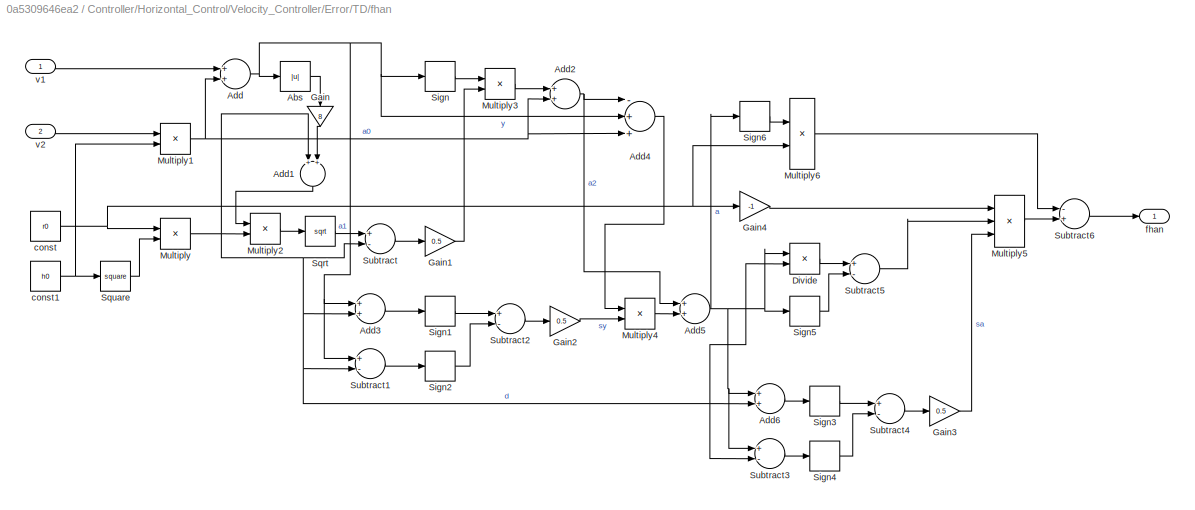
BLOCK [SubSystem] Controller/Horizontal_Control/Velocity_Controller/Error/TD/fhan 
  Ports = [2, 1]
  RequestExecContextInheritance = off
BLOCK [Abs] Controller/Horizontal_Control/Velocity_Controller/Error/TD/fhan /Abs
  SaturateOnIntegerOverflow = off
BLOCK [Sum] Controller/Horizontal_Control/Velocity_Controller/Error/TD/fhan /Add
  InputSameDT = off
  Ports = [2, 1]
  SaturateOnIntegerOverflow = off
BLOCK [Sum] Controller/Horizontal_Control/Velocity_Controller/Error/TD/fhan /Add1
  InputSameDT = off
  Ports = [2, 1]
  SaturateOnIntegerOverflow = off
BLOCK [Sum] Controller/Horizontal_Control/Velocity_Controller/Error/TD/fhan /Add2
  InputSameDT = off
  Ports = [2, 1]
  SaturateOnIntegerOverflow = off
BLOCK [Sum] Controller/Horizontal_Control/Velocity_Controller/Error/TD/fhan /Add3
  InputSameDT = off
  Ports = [2, 1]
  SaturateOnIntegerOverflow = off
BLOCK [Sum] Controller/Horizontal_Control/Velocity_Controller/Error/TD/fhan /Add4
  InputSameDT = off
  Inputs = -++
  OutDataTypeStr = Inherit: Inherit via internal rule
  Ports = [3, 1]
  SaturateOnIntegerOverflow = off
BLOCK [Sum] Controller/Horizontal_Control/Velocity_Controller/Error/TD/fhan /Add5
  InputSameDT = off
  Ports = [2, 1]
  SaturateOnIntegerOverflow = off
BLOCK [Sum] Controller/Horizontal_Control/Velocity_Controller/Error/TD/fhan /Add6
  InputSameDT = off
  Ports = [2, 1]
  SaturateOnIntegerOverflow = off
BLOCK [Product] Controller/Horizontal_Control/Velocity_Controller/Error/TD/fhan /Divide
  InputSameDT = off
  Inputs = */
  OutDataTypeStr = Inherit: Inherit via internal rule
  Ports = [2, 1]
  RndMeth = Floor
  SaturateOnIntegerOverflow = off
BLOCK [Gain] Controller/Horizontal_Control/Velocity_Controller/Error/TD/fhan /Gain
  Gain = 8
  OutDataTypeStr = Inherit: Inherit via internal rule
  ParamDataTypeStr = Inherit: Inherit via internal rule
  SaturateOnIntegerOverflow = off
BLOCK [Gain] Controller/Horizontal_Control/Velocity_Controller/Error/TD/fhan /Gain1
  Gain = 0.5
  ParamDataTypeStr = Inherit: Inherit via internal rule
  SaturateOnIntegerOverflow = off
BLOCK [Gain] Controller/Horizontal_Control/Velocity_Controller/Error/TD/fhan /Gain2
  Gain = 0.5
  ParamDataTypeStr = Inherit: Inherit via internal rule
  SaturateOnIntegerOverflow = off
BLOCK [Gain] Controller/Horizontal_Control/Velocity_Controller/Error/TD/fhan /Gain3
  Gain = 0.5
  ParamDataTypeStr = Inherit: Inherit via internal rule
  SaturateOnIntegerOverflow = off
BLOCK [Gain] Controller/Horizontal_Control/Velocity_Controller/Error/TD/fhan /Gain4
  Gain = -1
  ParamDataTypeStr = Inherit: Inherit via internal rule
  SaturateOnIntegerOverflow = off
BLOCK [Product] Controller/Horizontal_Control/Velocity_Controller/Error/TD/fhan /Multiply
  InputSameDT = off
  Ports = [2, 1]
  RndMeth = Floor
  SaturateOnIntegerOverflow = off
BLOCK [Product] Controller/Horizontal_Control/Velocity_Controller/Error/TD/fhan /Multiply1
  InputSameDT = off
  Ports = [2, 1]
  RndMeth = Floor
  SaturateOnIntegerOverflow = off
BLOCK [Product] Controller/Horizontal_Control/Velocity_Controller/Error/TD/fhan /Multiply2
  InputSameDT = off
  Ports = [2, 1]
  RndMeth = Floor
  SaturateOnIntegerOverflow = off
BLOCK [Product] Controller/Horizontal_Control/Velocity_Controller/Error/TD/fhan /Multiply3
  InputSameDT = off
  Ports = [2, 1]
  RndMeth = Floor
  SaturateOnIntegerOverflow = off
BLOCK [Product] Controller/Horizontal_Control/Velocity_Controller/Error/TD/fhan /Multiply4
  InputSameDT = off
  OutDataTypeStr = single
  Ports = [2, 1]
  RndMeth = Floor
  SaturateOnIntegerOverflow = off
BLOCK [Product] Controller/Horizontal_Control/Velocity_Controller/Error/TD/fhan /Multiply5
  InputSameDT = off
  Inputs = 3
  OutDataTypeStr = Inherit: Inherit via internal rule
  Ports = [3, 1]
  RndMeth = Floor
  SaturateOnIntegerOverflow = off
BLOCK [Product] Controller/Horizontal_Control/Velocity_Controller/Error/TD/fhan /Multiply6
  InputSameDT = off
  OutDataTypeStr = single
  Ports = [2, 1]
  RndMeth = Floor
  SaturateOnIntegerOverflow = off
BLOCK [Signum] Controller/Horizontal_Control/Velocity_Controller/Error/TD/fhan /Sign
BLOCK [Signum] Controller/Horizontal_Control/Velocity_Controller/Error/TD/fhan /Sign1
BLOCK [Signum] Controller/Horizontal_Control/Velocity_Controller/Error/TD/fhan /Sign2
BLOCK [Signum] Controller/Horizontal_Control/Velocity_Controller/Error/TD/fhan /Sign3
BLOCK [Signum] Controller/Horizontal_Control/Velocity_Controller/Error/TD/fhan /Sign4
BLOCK [Signum] Controller/Horizontal_Control/Velocity_Controller/Error/TD/fhan /Sign5
BLOCK [Signum] Controller/Horizontal_Control/Velocity_Controller/Error/TD/fhan /Sign6
BLOCK [Sqrt] Controller/Horizontal_Control/Velocity_Controller/Error/TD/fhan /Sqrt
BLOCK [Math] Controller/Horizontal_Control/Velocity_Controller/Error/TD/fhan /Square
  Operator = square
  Ports = [1, 1]
BLOCK [Sum] Controller/Horizontal_Control/Velocity_Controller/Error/TD/fhan /Subtract
  InputSameDT = off
  Inputs = +-
  Ports = [2, 1]
  SaturateOnIntegerOverflow = off
BLOCK [Sum] Controller/Horizontal_Control/Velocity_Controller/Error/TD/fhan /Subtract1
  InputSameDT = off
  Inputs = +-
  Ports = [2, 1]
  SaturateOnIntegerOverflow = off
BLOCK [Sum] Controller/Horizontal_Control/Velocity_Controller/Error/TD/fhan /Subtract2
  InputSameDT = off
  Inputs = +-
  Ports = [2, 1]
  SaturateOnIntegerOverflow = off
BLOCK [Sum] Controller/Horizontal_Control/Velocity_Controller/Error/TD/fhan /Subtract3
  InputSameDT = off
  Inputs = +-
  Ports = [2, 1]
  SaturateOnIntegerOverflow = off
BLOCK [Sum] Controller/Horizontal_Control/Velocity_Controller/Error/TD/fhan /Subtract4
  InputSameDT = off
  Inputs = +-
  Ports = [2, 1]
  SaturateOnIntegerOverflow = off
BLOCK [Sum] Controller/Horizontal_Control/Velocity_Controller/Error/TD/fhan /Subtract5
  InputSameDT = off
  Inputs = +-
  Ports = [2, 1]
  SaturateOnIntegerOverflow = off
BLOCK [Sum] Controller/Horizontal_Control/Velocity_Controller/Error/TD/fhan /Subtract6
  InputSameDT = off
  Inputs = -+
  Ports = [2, 1]
  SaturateOnIntegerOverflow = off
BLOCK [Constant] Controller/Horizontal_Control/Velocity_Controller/Error/TD/fhan /const
  OutDataTypeStr = single
  Value = r0
BLOCK [Constant] Controller/Horizontal_Control/Velocity_Controller/Error/TD/fhan /const1
  OutDataTypeStr = single
  Value = h0
BLOCK [Outport] Controller/Horizontal_Control/Velocity_Controller/Error/TD/fhan /fhan
  IconDisplay = Port number
BLOCK [Inport] Controller/Horizontal_Control/Velocity_Controller/Error/TD/fhan /v1
  IconDisplay = Port number
BLOCK [Inport] Controller/Horizontal_Control/Velocity_Controller/Error/TD/fhan /v2
  IconDisplay = Port number
  Port = 2
BLOCK [Inport] Controller/Horizontal_Control/Velocity_Controller/Error/TD/v
  IconDisplay = Port number
BLOCK [Outport] Controller/Horizontal_Control/Velocity_Controller/Error/TD/v1
  IconDisplay = Port number
BLOCK [Outport] Controller/Horizontal_Control/Velocity_Controller/Error/uv_err_C_mPs
  IconDisplay = Port number
BLOCK [Inport] Controller/Horizontal_Control/Velocity_Controller/FMS_Out
  IconDisplay = Port number
BLOCK [Inport] Controller/Horizontal_Control/Velocity_Controller/INS_Out
  IconDisplay = Port number
  Port = 2
BLOCK [SubSystem] Controller/Horizontal_Control/Velocity_Controller/PID_Controller
  Ports = [2, 1]
  RequestExecContextInheritance = off
BLOCK [Sum] Controller/Horizontal_Control/Velocity_Controller/PID_Controller/Add
  AccumDataTypeStr = Inherit: Same as first input
  InputSameDT = off
  Inputs = +++
  OutDataTypeStr = Inherit: Inherit via internal rule
  Ports = [3, 1]
  SaturateOnIntegerOverflow = off
BLOCK [SubSystem] Controller/Horizontal_Control/Velocity_Controller/PID_Controller/D_Control
  Ports = [2, 1]
  RequestExecContextInheritance = off
BLOCK [Reference] Controller/Horizontal_Control/Velocity_Controller/PID_Controller/D_Control/DT Filter  REF=FMT_Model_Lib/Filter/DT Filter
  Ports = [2, 1]
  SourceBlock = FMT_Model_Lib/Filter/DT Filter
  SourceProductName = FMT Toolbox
  SourceType = Derivative Tracking Filter
BLOCK [Product] Controller/Horizontal_Control/Velocity_Controller/PID_Controller/D_Control/Multiply
  InputSameDT = off
  Ports = [2, 1]
  RndMeth = Floor
  SaturateOnIntegerOverflow = off
BLOCK [Saturate] Controller/Horizontal_Control/Velocity_Controller/PID_Controller/D_Control/Saturation
  InputPortMap = u0
  LowerLimit = min_d
  Ports = [1, 1]
  UpperLimit = max_d
BLOCK [Outport] Controller/Horizontal_Control/Velocity_Controller/PID_Controller/D_Control/d_out
  IconDisplay = Port number
BLOCK [Inport] Controller/Horizontal_Control/Velocity_Controller/PID_Controller/D_Control/err
  IconDisplay = Port number
BLOCK [Constant] Controller/Horizontal_Control/Velocity_Controller/PID_Controller/D_Control/kd
  OutDataTypeStr = single
  Value = kd
BLOCK [Inport] Controller/Horizontal_Control/Velocity_Controller/PID_Controller/D_Control/reset
  IconDisplay = Port number
  Port = 2
BLOCK [SubSystem] Controller/Horizontal_Control/Velocity_Controller/PID_Controller/I_Control
  Ports = [2, 1]
  RequestExecContextInheritance = off
BLOCK [Constant] Controller/Horizontal_Control/Velocity_Controller/PID_Controller/I_Control/Constant
  OutDataTypeStr = single
  Value = 0
BLOCK [DiscreteIntegrator] Controller/Horizontal_Control/Velocity_Controller/PID_Controller/I_Control/Discrete-Time Integrator
  ExternalReset = level
  ICPrevOutput = DiscIntNeverNeededParam
  ICPrevScaledInput = DiscIntNeverNeededParam
  InitialConditionSetting = Auto
  InitialConditionSource = external
  LimitOutput = on
  LowerSaturationLimit = min_i
  Ports = [3, 1]
  SampleTime = -1
  UpperSaturationLimit = max_i
BLOCK [Product] Controller/Horizontal_Control/Velocity_Controller/PID_Controller/I_Control/Multiply
  InputSameDT = off
  Ports = [2, 1]
  RndMeth = Floor
  SaturateOnIntegerOverflow = off
BLOCK [Inport] Controller/Horizontal_Control/Velocity_Controller/PID_Controller/I_Control/err
  IconDisplay = Port number
BLOCK [Outport] Controller/Horizontal_Control/Velocity_Controller/PID_Controller/I_Control/i_out
  IconDisplay = Port number
BLOCK [Constant] Controller/Horizontal_Control/Velocity_Controller/PID_Controller/I_Control/ki
  OutDataTypeStr = single
  Value = ki
BLOCK [Inport] Controller/Horizontal_Control/Velocity_Controller/PID_Controller/I_Control/reset
  IconDisplay = Port number
  Port = 2
BLOCK [SubSystem] Controller/Horizontal_Control/Velocity_Controller/PID_Controller/P_Control
  Ports = [1, 1]
  RequestExecContextInheritance = off
BLOCK [Product] Controller/Horizontal_Control/Velocity_Controller/PID_Controller/P_Control/Multiply
  InputSameDT = off
  Ports = [2, 1]
  RndMeth = Floor
  SaturateOnIntegerOverflow = off
BLOCK [Inport] Controller/Horizontal_Control/Velocity_Controller/PID_Controller/P_Control/err
  IconDisplay = Port number
BLOCK [Constant] Controller/Horizontal_Control/Velocity_Controller/PID_Controller/P_Control/kp
  OutDataTypeStr = single
  Value = kp
BLOCK [Outport] Controller/Horizontal_Control/Velocity_Controller/PID_Controller/P_Control/p_out
  IconDisplay = Port number
BLOCK [Outport] Controller/Horizontal_Control/Velocity_Controller/PID_Controller/accel_cmd_C
  IconDisplay = Port number
BLOCK [Inport] Controller/Horizontal_Control/Velocity_Controller/PID_Controller/reset
  IconDisplay = Port number
  Port = 2
BLOCK [Inport] Controller/Horizontal_Control/Velocity_Controller/PID_Controller/uv_err_C_mPs
  IconDisplay = Port number
BLOCK [SubSystem] Controller/Horizontal_Control/Velocity_Controller/Signal_Select
  Ports = [2, 1]
  RequestExecContextInheritance = off
BLOCK [BusSelector] Controller/Horizontal_Control/Velocity_Controller/Signal_Select/Bus Selector
  OutputAsBus = off
  OutputSignals = ctrl_mode
  Ports = [1, 1]
BLOCK [Inport] Controller/Horizontal_Control/Velocity_Controller/Signal_Select/FMS_Out
  IconDisplay = Port number
  Port = 2
BLOCK [Reference] Controller/Horizontal_Control/Velocity_Controller/Signal_Select/Offboard  REF=simulink/Logic and Bit
Operations/Compare
To Constant
  Ports = [1, 1]
  SourceBlock = simulink/Logic and Bit\nOperations/Compare\nTo Constant
  SourceProductBaseCode = SL
  SourceProductName = Simulink
  SourceType = Compare To Constant
BLOCK [SubSystem] Controller/Horizontal_Control/Velocity_Controller/Signal_Select/Offboard_Signal_Select
  Ports = [2, 1]
  RequestExecContextInheritance = off
BLOCK [BusSelector] Controller/Horizontal_Control/Velocity_Controller/Signal_Select/Offboard_Signal_Select/Bus Selector1
  OutputAsBus = off
  OutputSignals = cmd_mask
  Ports = [1, 1]
BLOCK [BusSelector] Controller/Horizontal_Control/Velocity_Controller/Signal_Select/Offboard_Signal_Select/Bus Selector2
  OutputAsBus = off
  OutputSignals = ax_cmd,ay_cmd
  Ports = [1, 2]
BLOCK [Reference] Controller/Horizontal_Control/Velocity_Controller/Signal_Select/Offboard_Signal_Select/Compare To Zero  REF=simulink/Logic and Bit
Operations/Compare
To Zero
  Ports = [1, 1]
  SourceBlock = simulink/Logic and Bit\nOperations/Compare\nTo Zero
  SourceProductBaseCode = SL
  SourceProductName = Simulink
  SourceType = Compare To Zero
BLOCK [Reference] Controller/Horizontal_Control/Velocity_Controller/Signal_Select/Offboard_Signal_Select/Compare To Zero2  REF=simulink/Logic and Bit
Operations/Compare
To Zero
  Ports = [1, 1]
  SourceBlock = simulink/Logic and Bit\nOperations/Compare\nTo Zero
  SourceProductBaseCode = SL
  SourceProductName = Simulink
  SourceType = Compare To Zero
BLOCK [Inport] Controller/Horizontal_Control/Velocity_Controller/Signal_Select/Offboard_Signal_Select/FMS_Out
  IconDisplay = Port number
BLOCK [Product] Controller/Horizontal_Control/Velocity_Controller/Signal_Select/Offboard_Signal_Select/Multiply2
  InputSameDT = off
  OutDataTypeStr = Inherit: Inherit via internal rule
  Ports = [2, 1]
  RndMeth = Floor
  SaturateOnIntegerOverflow = off
BLOCK [Product] Controller/Horizontal_Control/Velocity_Controller/Signal_Select/Offboard_Signal_Select/Multiply3
  InputSameDT = off
  OutDataTypeStr = Inherit: Inherit via internal rule
  Ports = [2, 1]
  RndMeth = Floor
  SaturateOnIntegerOverflow = off
BLOCK [Mux] Controller/Horizontal_Control/Velocity_Controller/Signal_Select/Offboard_Signal_Select/Mux
  DisplayOption = bar
  Inputs = 2
  Ports = [2, 1]
BLOCK [Mux] Controller/Horizontal_Control/Velocity_Controller/Signal_Select/Offboard_Signal_Select/Mux1
  DisplayOption = bar
  Inputs = 2
  Ports = [2, 1]
BLOCK [Mux] Controller/Horizontal_Control/Velocity_Controller/Signal_Select/Offboard_Signal_Select/Mux2
  DisplayOption = bar
  Inputs = 2
  Ports = [2, 1]
BLOCK [Sum] Controller/Horizontal_Control/Velocity_Controller/Signal_Select/Offboard_Signal_Select/Sum1
  IconShape = round
  InputSameDT = off
  Inputs = |++
  OutDataTypeStr = Inherit: Inherit via internal rule
  Ports = [2, 1]
  SaturateOnIntegerOverflow = off
BLOCK [Outport] Controller/Horizontal_Control/Velocity_Controller/Signal_Select/Offboard_Signal_Select/acc_cmd
  IconDisplay = Port number
BLOCK [Inport] Controller/Horizontal_Control/Velocity_Controller/Signal_Select/Offboard_Signal_Select/acc_cmd_in
  IconDisplay = Port number
  Port = 2
BLOCK [Reference] Controller/Horizontal_Control/Velocity_Controller/Signal_Select/Offboard_Signal_Select/cmd_ax valid  REF=simulink/Logic and Bit
Operations/Bitwise
Operator
  Ports = [1, 1]
  SourceBlock = simulink/Logic and Bit\nOperations/Bitwise\nOperator
  SourceProductBaseCode = SL
  SourceProductName = Simulink
  SourceType = Bitwise Operator
BLOCK [Reference] Controller/Horizontal_Control/Velocity_Controller/Signal_Select/Offboard_Signal_Select/cmd_ay valid  REF=simulink/Logic and Bit
Operations/Bitwise
Operator
  Ports = [1, 1]
  SourceBlock = simulink/Logic and Bit\nOperations/Bitwise\nOperator
  SourceProductBaseCode = SL
  SourceProductName = Simulink
  SourceType = Bitwise Operator
BLOCK [Reference] Controller/Horizontal_Control/Velocity_Controller/Signal_Select/Offboard_Signal_Select/cmd_u valid  REF=simulink/Logic and Bit
Operations/Bitwise
Operator
  Ports = [1, 1]
  SourceBlock = simulink/Logic and Bit\nOperations/Bitwise\nOperator
  SourceProductBaseCode = SL
  SourceProductName = Simulink
  SourceType = Bitwise Operator
BLOCK [Reference] Controller/Horizontal_Control/Velocity_Controller/Signal_Select/Offboard_Signal_Select/cmd_v valid  REF=simulink/Logic and Bit
Operations/Bitwise
Operator
  Ports = [1, 1]
  SourceBlock = simulink/Logic and Bit\nOperations/Bitwise\nOperator
  SourceProductBaseCode = SL
  SourceProductName = Simulink
  SourceType = Bitwise Operator
BLOCK [Switch] Controller/Horizontal_Control/Velocity_Controller/Signal_Select/Switch
  Criteria = u2 > Threshold
  InputSameDT = off
  SaturateOnIntegerOverflow = off
BLOCK [Inport] Controller/Horizontal_Control/Velocity_Controller/Signal_Select/acc_cmd_in
  IconDisplay = Port number
BLOCK [Outport] Controller/Horizontal_Control/Velocity_Controller/Signal_Select/acc_cmd_out
  IconDisplay = Port number
BLOCK [Outport] Controller/Horizontal_Control/Velocity_Controller/att_cmd_B_rad
  IconDisplay = Port number
BLOCK [Outport] Controller/Horizontal_Control/rate_dot_cmd_B
  IconDisplay = Port number
BLOCK [Inport] Controller/INS_Out
  IconDisplay = Port number
  Port = 2
BLOCK [SubSystem] Controller/Vertical_Control
  Ports = [2, 1]
  RequestExecContextInheritance = off
BLOCK [Inport] Controller/Vertical_Control/FMS_Out
  IconDisplay = Port number
BLOCK [Inport] Controller/Vertical_Control/INS_Out
  IconDisplay = Port number
  Port = 2
BLOCK [SubSystem] Controller/Vertical_Control/Veloxity_Z_Controller
  Ports = [2, 1]
  RequestExecContextInheritance = off
BLOCK [SubSystem] Controller/Vertical_Control/Veloxity_Z_Controller/Boosted_Throttle
  Ports = [2, 1]
  RequestExecContextInheritance = off
BLOCK [BusSelector] Controller/Vertical_Control/Veloxity_Z_Controller/Boosted_Throttle/Bus Selector
  OutputAsBus = off
  OutputSignals = phi,theta
  Ports = [1, 2]
BLOCK [Constant] Controller/Vertical_Control/Veloxity_Z_Controller/Boosted_Throttle/Constant
  OutDataTypeStr = single
BLOCK [Trigonometry] Controller/Vertical_Control/Veloxity_Z_Controller/Boosted_Throttle/Cos
  Operator = cos
  Ports = [1, 1]
BLOCK [Trigonometry] Controller/Vertical_Control/Veloxity_Z_Controller/Boosted_Throttle/Cos1
  Operator = cos
  Ports = [1, 1]
BLOCK [Product] Controller/Vertical_Control/Veloxity_Z_Controller/Boosted_Throttle/Divide
  InputSameDT = off
  Inputs = */
  OutDataTypeStr = Inherit: Inherit via internal rule
  Ports = [2, 1]
  RndMeth = Floor
  SaturateOnIntegerOverflow = off
BLOCK [Gain] Controller/Vertical_Control/Veloxity_Z_Controller/Boosted_Throttle/Gain
  Gain = 2
  OutDataTypeStr = Inherit: Inherit via internal rule
  ParamDataTypeStr = Inherit: Inherit via internal rule
  SaturateOnIntegerOverflow = off
BLOCK [Inport] Controller/Vertical_Control/Veloxity_Z_Controller/Boosted_Throttle/INS_Out
  IconDisplay = Port number
  Port = 2
BLOCK [Product] Controller/Vertical_Control/Veloxity_Z_Controller/Boosted_Throttle/Multiply
  InputSameDT = off
  OutDataTypeStr = Inherit: Inherit via internal rule
  Ports = [2, 1]
  RndMeth = Floor
  SaturateOnIntegerOverflow = off
BLOCK [Product] Controller/Vertical_Control/Veloxity_Z_Controller/Boosted_Throttle/Multiply1
  InputSameDT = off
  Inputs = 3
  OutDataTypeStr = Inherit: Inherit via internal rule
  Ports = [3, 1]
  RndMeth = Floor
  SaturateOnIntegerOverflow = off
BLOCK [Saturate] Controller/Vertical_Control/Veloxity_Z_Controller/Boosted_Throttle/Saturation
  InputPortMap = u0
  LowerLimit = 0
  Ports = [1, 1]
  UpperLimit = 1
BLOCK [Saturate] Controller/Vertical_Control/Veloxity_Z_Controller/Boosted_Throttle/Saturation1
  InputPortMap = u0
  LowerLimit = 0.5
  Ports = [1, 1]
  UpperLimit = 1
BLOCK [Outport] Controller/Vertical_Control/Veloxity_Z_Controller/Boosted_Throttle/boosted_thrust
  IconDisplay = Port number
BLOCK [Inport] Controller/Vertical_Control/Veloxity_Z_Controller/Boosted_Throttle/thrust_cmd
  IconDisplay = Port number
BLOCK [BusSelector] Controller/Vertical_Control/Veloxity_Z_Controller/Bus Selector
  OutputAsBus = off
  OutputSignals = reset
  Ports = [1, 1]
BLOCK [SubSystem] Controller/Vertical_Control/Veloxity_Z_Controller/Error
  Ports = [2, 1]
  RequestExecContextInheritance = off
BLOCK [BusSelector] Controller/Vertical_Control/Veloxity_Z_Controller/Error/Bus Selector1
  OutputAsBus = off
  OutputSignals = vd
  Ports = [1, 1]
BLOCK [BusSelector] Controller/Vertical_Control/Veloxity_Z_Controller/Error/Bus Selector2
  OutputAsBus = off
  OutputSignals = w_cmd,mode
  Ports = [1, 2]
BLOCK [Reference] Controller/Vertical_Control/Veloxity_Z_Controller/Error/Compare To Constant  REF=simulink/Logic and Bit
Operations/Compare
To Constant
  Ports = [1, 1]
  SourceBlock = simulink/Logic and Bit\nOperations/Compare\nTo Constant
  SourceProductBaseCode = SL
  SourceProductName = Simulink
  SourceType = Compare To Constant
BLOCK [DataTypeConversion] Controller/Vertical_Control/Veloxity_Z_Controller/Error/Data Type Conversion
  OutDataTypeStr = single
  RndMeth = Floor
  SaturateOnIntegerOverflow = off
BLOCK [Inport] Controller/Vertical_Control/Veloxity_Z_Controller/Error/FMS_Out
  IconDisplay = Port number
BLOCK [Gain] Controller/Vertical_Control/Veloxity_Z_Controller/Error/Gain
  Gain = -1
  ParamDataTypeStr = Inherit: Inherit via internal rule
  SaturateOnIntegerOverflow = off
BLOCK [Inport] Controller/Vertical_Control/Veloxity_Z_Controller/Error/INS_Out
  IconDisplay = Port number
  Port = 2
BLOCK [Product] Controller/Vertical_Control/Veloxity_Z_Controller/Error/Multiply
  InputSameDT = off
  OutDataTypeStr = Inherit: Inherit via internal rule
  Ports = [2, 1]
  RndMeth = Floor
  SaturateOnIntegerOverflow = off
BLOCK [SignalConversion] Controller/Vertical_Control/Veloxity_Z_Controller/Error/Signal Copy1
  OverrideOpt = off
BLOCK [Sum] Controller/Vertical_Control/Veloxity_Z_Controller/Error/Sum1
  IconShape = round
  InputSameDT = off
  Inputs = |+-
  OutDataTypeStr = Inherit: Inherit via internal rule
  Ports = [2, 1]
  SaturateOnIntegerOverflow = off
BLOCK [Switch] Controller/Vertical_Control/Veloxity_Z_Controller/Error/Switch
  Criteria = u2 > Threshold
  InputSameDT = off
  SaturateOnIntegerOverflow = off
BLOCK [SubSystem] Controller/Vertical_Control/Veloxity_Z_Controller/Error/TD
  Ports = [1, 1]
  RequestExecContextInheritance = off
BLOCK [DiscreteIntegrator] Controller/Vertical_Control/Veloxity_Z_Controller/Error/TD/Integrator
  ICPrevOutput = DiscIntNeverNeededParam
  ICPrevScaledInput = DiscIntNeverNeededParam
  InitialConditionSetting = Auto
  Ports = [1, 1]
  SampleTime = -1
BLOCK [DiscreteIntegrator] Controller/Vertical_Control/Veloxity_Z_Controller/Error/TD/Integrator1
  ICPrevOutput = DiscIntNeverNeededParam
  ICPrevScaledInput = DiscIntNeverNeededParam
  InitialConditionSetting = Auto
  Ports = [1, 1]
  SampleTime = -1
BLOCK [Sum] Controller/Vertical_Control/Veloxity_Z_Controller/Error/TD/Subtract
  InputSameDT = off
  Inputs = +-
  OutDataTypeStr = Inherit: Inherit via internal rule
  Ports = [2, 1]
  SaturateOnIntegerOverflow = off
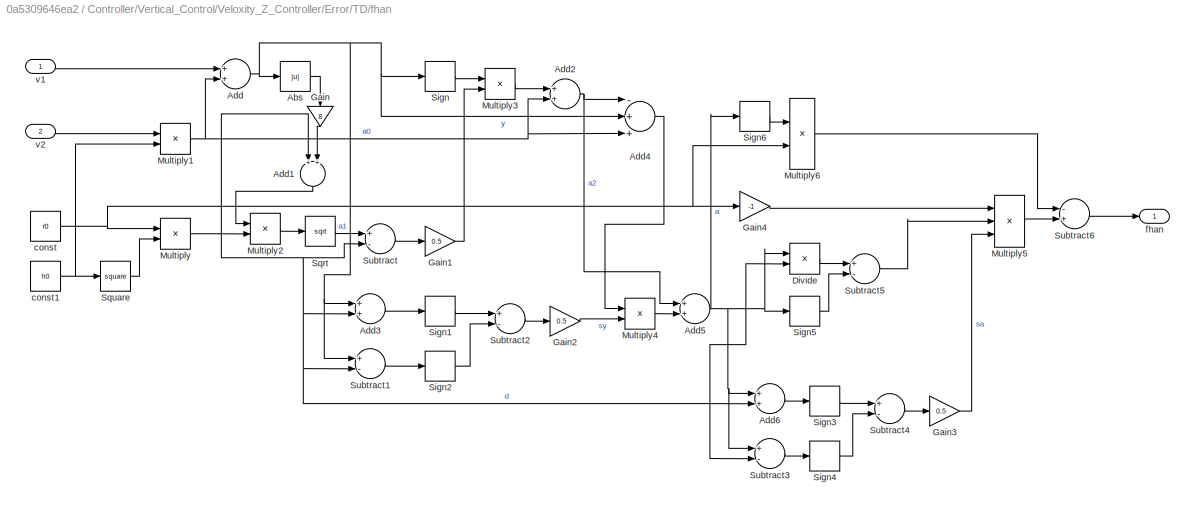
BLOCK [SubSystem] Controller/Vertical_Control/Veloxity_Z_Controller/Error/TD/fhan 
  Ports = [2, 1]
  RequestExecContextInheritance = off
BLOCK [Abs] Controller/Vertical_Control/Veloxity_Z_Controller/Error/TD/fhan /Abs
  SaturateOnIntegerOverflow = off
BLOCK [Sum] Controller/Vertical_Control/Veloxity_Z_Controller/Error/TD/fhan /Add
  InputSameDT = off
  Ports = [2, 1]
  SaturateOnIntegerOverflow = off
BLOCK [Sum] Controller/Vertical_Control/Veloxity_Z_Controller/Error/TD/fhan /Add1
  InputSameDT = off
  Ports = [2, 1]
  SaturateOnIntegerOverflow = off
BLOCK [Sum] Controller/Vertical_Control/Veloxity_Z_Controller/Error/TD/fhan /Add2
  InputSameDT = off
  Ports = [2, 1]
  SaturateOnIntegerOverflow = off
BLOCK [Sum] Controller/Vertical_Control/Veloxity_Z_Controller/Error/TD/fhan /Add3
  InputSameDT = off
  Ports = [2, 1]
  SaturateOnIntegerOverflow = off
BLOCK [Sum] Controller/Vertical_Control/Veloxity_Z_Controller/Error/TD/fhan /Add4
  InputSameDT = off
  Inputs = -++
  OutDataTypeStr = Inherit: Inherit via internal rule
  Ports = [3, 1]
  SaturateOnIntegerOverflow = off
BLOCK [Sum] Controller/Vertical_Control/Veloxity_Z_Controller/Error/TD/fhan /Add5
  InputSameDT = off
  Ports = [2, 1]
  SaturateOnIntegerOverflow = off
BLOCK [Sum] Controller/Vertical_Control/Veloxity_Z_Controller/Error/TD/fhan /Add6
  InputSameDT = off
  Ports = [2, 1]
  SaturateOnIntegerOverflow = off
BLOCK [Product] Controller/Vertical_Control/Veloxity_Z_Controller/Error/TD/fhan /Divide
  InputSameDT = off
  Inputs = */
  OutDataTypeStr = Inherit: Inherit via internal rule
  Ports = [2, 1]
  RndMeth = Floor
  SaturateOnIntegerOverflow = off
BLOCK [Gain] Controller/Vertical_Control/Veloxity_Z_Controller/Error/TD/fhan /Gain
  Gain = 8
  OutDataTypeStr = Inherit: Inherit via internal rule
  ParamDataTypeStr = Inherit: Inherit via internal rule
  SaturateOnIntegerOverflow = off
BLOCK [Gain] Controller/Vertical_Control/Veloxity_Z_Controller/Error/TD/fhan /Gain1
  Gain = 0.5
  ParamDataTypeStr = Inherit: Inherit via internal rule
  SaturateOnIntegerOverflow = off
BLOCK [Gain] Controller/Vertical_Control/Veloxity_Z_Controller/Error/TD/fhan /Gain2
  Gain = 0.5
  ParamDataTypeStr = Inherit: Inherit via internal rule
  SaturateOnIntegerOverflow = off
BLOCK [Gain] Controller/Vertical_Control/Veloxity_Z_Controller/Error/TD/fhan /Gain3
  Gain = 0.5
  ParamDataTypeStr = Inherit: Inherit via internal rule
  SaturateOnIntegerOverflow = off
BLOCK [Gain] Controller/Vertical_Control/Veloxity_Z_Controller/Error/TD/fhan /Gain4
  Gain = -1
  ParamDataTypeStr = Inherit: Inherit via internal rule
  SaturateOnIntegerOverflow = off
BLOCK [Product] Controller/Vertical_Control/Veloxity_Z_Controller/Error/TD/fhan /Multiply
  InputSameDT = off
  Ports = [2, 1]
  RndMeth = Floor
  SaturateOnIntegerOverflow = off
BLOCK [Product] Controller/Vertical_Control/Veloxity_Z_Controller/Error/TD/fhan /Multiply1
  InputSameDT = off
  Ports = [2, 1]
  RndMeth = Floor
  SaturateOnIntegerOverflow = off
BLOCK [Product] Controller/Vertical_Control/Veloxity_Z_Controller/Error/TD/fhan /Multiply2
  InputSameDT = off
  Ports = [2, 1]
  RndMeth = Floor
  SaturateOnIntegerOverflow = off
BLOCK [Product] Controller/Vertical_Control/Veloxity_Z_Controller/Error/TD/fhan /Multiply3
  InputSameDT = off
  Ports = [2, 1]
  RndMeth = Floor
  SaturateOnIntegerOverflow = off
BLOCK [Product] Controller/Vertical_Control/Veloxity_Z_Controller/Error/TD/fhan /Multiply4
  InputSameDT = off
  OutDataTypeStr = single
  Ports = [2, 1]
  RndMeth = Floor
  SaturateOnIntegerOverflow = off
BLOCK [Product] Controller/Vertical_Control/Veloxity_Z_Controller/Error/TD/fhan /Multiply5
  InputSameDT = off
  Inputs = 3
  OutDataTypeStr = Inherit: Inherit via internal rule
  Ports = [3, 1]
  RndMeth = Floor
  SaturateOnIntegerOverflow = off
BLOCK [Product] Controller/Vertical_Control/Veloxity_Z_Controller/Error/TD/fhan /Multiply6
  InputSameDT = off
  OutDataTypeStr = single
  Ports = [2, 1]
  RndMeth = Floor
  SaturateOnIntegerOverflow = off
BLOCK [Signum] Controller/Vertical_Control/Veloxity_Z_Controller/Error/TD/fhan /Sign
BLOCK [Signum] Controller/Vertical_Control/Veloxity_Z_Controller/Error/TD/fhan /Sign1
BLOCK [Signum] Controller/Vertical_Control/Veloxity_Z_Controller/Error/TD/fhan /Sign2
BLOCK [Signum] Controller/Vertical_Control/Veloxity_Z_Controller/Error/TD/fhan /Sign3
BLOCK [Signum] Controller/Vertical_Control/Veloxity_Z_Controller/Error/TD/fhan /Sign4
BLOCK [Signum] Controller/Vertical_Control/Veloxity_Z_Controller/Error/TD/fhan /Sign5
BLOCK [Signum] Controller/Vertical_Control/Veloxity_Z_Controller/Error/TD/fhan /Sign6
BLOCK [Sqrt] Controller/Vertical_Control/Veloxity_Z_Controller/Error/TD/fhan /Sqrt
BLOCK [Math] Controller/Vertical_Control/Veloxity_Z_Controller/Error/TD/fhan /Square
  Operator = square
  Ports = [1, 1]
BLOCK [Sum] Controller/Vertical_Control/Veloxity_Z_Controller/Error/TD/fhan /Subtract
  InputSameDT = off
  Inputs = +-
  Ports = [2, 1]
  SaturateOnIntegerOverflow = off
BLOCK [Sum] Controller/Vertical_Control/Veloxity_Z_Controller/Error/TD/fhan /Subtract1
  InputSameDT = off
  Inputs = +-
  Ports = [2, 1]
  SaturateOnIntegerOverflow = off
BLOCK [Sum] Controller/Vertical_Control/Veloxity_Z_Controller/Error/TD/fhan /Subtract2
  InputSameDT = off
  Inputs = +-
  Ports = [2, 1]
  SaturateOnIntegerOverflow = off
BLOCK [Sum] Controller/Vertical_Control/Veloxity_Z_Controller/Error/TD/fhan /Subtract3
  InputSameDT = off
  Inputs = +-
  Ports = [2, 1]
  SaturateOnIntegerOverflow = off
BLOCK [Sum] Controller/Vertical_Control/Veloxity_Z_Controller/Error/TD/fhan /Subtract4
  InputSameDT = off
  Inputs = +-
  Ports = [2, 1]
  SaturateOnIntegerOverflow = off
BLOCK [Sum] Controller/Vertical_Control/Veloxity_Z_Controller/Error/TD/fhan /Subtract5
  InputSameDT = off
  Inputs = +-
  Ports = [2, 1]
  SaturateOnIntegerOverflow = off
BLOCK [Sum] Controller/Vertical_Control/Veloxity_Z_Controller/Error/TD/fhan /Subtract6
  InputSameDT = off
  Inputs = -+
  Ports = [2, 1]
  SaturateOnIntegerOverflow = off
BLOCK [Constant] Controller/Vertical_Control/Veloxity_Z_Controller/Error/TD/fhan /const
  OutDataTypeStr = single
  Value = r0
BLOCK [Constant] Controller/Vertical_Control/Veloxity_Z_Controller/Error/TD/fhan /const1
  OutDataTypeStr = single
  Value = h0
BLOCK [Outport] Controller/Vertical_Control/Veloxity_Z_Controller/Error/TD/fhan /fhan
  IconDisplay = Port number
BLOCK [Inport] Controller/Vertical_Control/Veloxity_Z_Controller/Error/TD/fhan /v1
  IconDisplay = Port number
BLOCK [Inport] Controller/Vertical_Control/Veloxity_Z_Controller/Error/TD/fhan /v2
  IconDisplay = Port number
  Port = 2
BLOCK [Inport] Controller/Vertical_Control/Veloxity_Z_Controller/Error/TD/v
  IconDisplay = Port number
BLOCK [Outport] Controller/Vertical_Control/Veloxity_Z_Controller/Error/TD/v1
  IconDisplay = Port number
BLOCK [Outport] Controller/Vertical_Control/Veloxity_Z_Controller/Error/az_cmd_C_mPs2
  IconDisplay = Port number
BLOCK [Inport] Controller/Vertical_Control/Veloxity_Z_Controller/FMS_Out
  IconDisplay = Port number
BLOCK [Inport] Controller/Vertical_Control/Veloxity_Z_Controller/INS_Out
  IconDisplay = Port number
  Port = 2
BLOCK [SubSystem] Controller/Vertical_Control/Veloxity_Z_Controller/PID_Controller
  Ports = [2, 1]
  RequestExecContextInheritance = off
BLOCK [Sum] Controller/Vertical_Control/Veloxity_Z_Controller/PID_Controller/Add
  AccumDataTypeStr = Inherit: Same as first input
  InputSameDT = off
  Inputs = +++
  OutDataTypeStr = Inherit: Inherit via internal rule
  Ports = [3, 1]
  SaturateOnIntegerOverflow = off
BLOCK [SubSystem] Controller/Vertical_Control/Veloxity_Z_Controller/PID_Controller/D_Control
  Ports = [2, 1]
  RequestExecContextInheritance = off
BLOCK [Reference] Controller/Vertical_Control/Veloxity_Z_Controller/PID_Controller/D_Control/DT Filter  REF=FMT_Model_Lib/Filter/DT Filter
  Ports = [2, 1]
  SourceBlock = FMT_Model_Lib/Filter/DT Filter
  SourceProductName = FMT Toolbox
  SourceType = Derivative Tracking Filter
BLOCK [Product] Controller/Vertical_Control/Veloxity_Z_Controller/PID_Controller/D_Control/Multiply
  InputSameDT = off
  Ports = [2, 1]
  RndMeth = Floor
  SaturateOnIntegerOverflow = off
BLOCK [Saturate] Controller/Vertical_Control/Veloxity_Z_Controller/PID_Controller/D_Control/Saturation
  InputPortMap = u0
  LowerLimit = min_d
  Ports = [1, 1]
  UpperLimit = max_d
BLOCK [Outport] Controller/Vertical_Control/Veloxity_Z_Controller/PID_Controller/D_Control/d_out
  IconDisplay = Port number
BLOCK [Inport] Controller/Vertical_Control/Veloxity_Z_Controller/PID_Controller/D_Control/err
  IconDisplay = Port number
BLOCK [Constant] Controller/Vertical_Control/Veloxity_Z_Controller/PID_Controller/D_Control/kd
  OutDataTypeStr = single
  Value = kd
BLOCK [Inport] Controller/Vertical_Control/Veloxity_Z_Controller/PID_Controller/D_Control/reset
  IconDisplay = Port number
  Port = 2
BLOCK [SubSystem] Controller/Vertical_Control/Veloxity_Z_Controller/PID_Controller/I_Control
  Ports = [2, 1]
  RequestExecContextInheritance = off
BLOCK [Constant] Controller/Vertical_Control/Veloxity_Z_Controller/PID_Controller/I_Control/Constant
  OutDataTypeStr = single
  Value = min_i
BLOCK [DiscreteIntegrator] Controller/Vertical_Control/Veloxity_Z_Controller/PID_Controller/I_Control/Discrete-Time Integrator
  ExternalReset = level
  ICPrevOutput = DiscIntNeverNeededParam
  ICPrevScaledInput = DiscIntNeverNeededParam
  InitialConditionSetting = Auto
  InitialConditionSource = external
  LimitOutput = on
  LowerSaturationLimit = min_i
  Ports = [3, 1]
  SampleTime = -1
  UpperSaturationLimit = max_i
BLOCK [Product] Controller/Vertical_Control/Veloxity_Z_Controller/PID_Controller/I_Control/Multiply
  InputSameDT = off
  Ports = [2, 1]
  RndMeth = Floor
  SaturateOnIntegerOverflow = off
BLOCK [Inport] Controller/Vertical_Control/Veloxity_Z_Controller/PID_Controller/I_Control/err
  IconDisplay = Port number
BLOCK [Outport] Controller/Vertical_Control/Veloxity_Z_Controller/PID_Controller/I_Control/i_out
  IconDisplay = Port number
BLOCK [Constant] Controller/Vertical_Control/Veloxity_Z_Controller/PID_Controller/I_Control/ki
  OutDataTypeStr = single
  Value = ki
BLOCK [Inport] Controller/Vertical_Control/Veloxity_Z_Controller/PID_Controller/I_Control/reset
  IconDisplay = Port number
  Port = 2
BLOCK [SubSystem] Controller/Vertical_Control/Veloxity_Z_Controller/PID_Controller/P_Control
  Ports = [1, 1]
  RequestExecContextInheritance = off
BLOCK [Product] Controller/Vertical_Control/Veloxity_Z_Controller/PID_Controller/P_Control/Multiply
  InputSameDT = off
  Ports = [2, 1]
  RndMeth = Floor
  SaturateOnIntegerOverflow = off
BLOCK [Inport] Controller/Vertical_Control/Veloxity_Z_Controller/PID_Controller/P_Control/err
  IconDisplay = Port number
BLOCK [Constant] Controller/Vertical_Control/Veloxity_Z_Controller/PID_Controller/P_Control/kp
  OutDataTypeStr = single
  Value = kp
BLOCK [Outport] Controller/Vertical_Control/Veloxity_Z_Controller/PID_Controller/P_Control/p_out
  IconDisplay = Port number
BLOCK [Inport] Controller/Vertical_Control/Veloxity_Z_Controller/PID_Controller/az_cmd_C_mPs2
  IconDisplay = Port number
BLOCK [Inport] Controller/Vertical_Control/Veloxity_Z_Controller/PID_Controller/reset
  IconDisplay = Port number
  Port = 2
BLOCK [Outport] Controller/Vertical_Control/Veloxity_Z_Controller/PID_Controller/thrust_cmd
  IconDisplay = Port number
BLOCK [Saturate] Controller/Vertical_Control/Veloxity_Z_Controller/Saturation
  InputPortMap = u0
  LowerLimit = -0.35
  Ports = [1, 1]
  UpperLimit = 0.35
BLOCK [Outport] Controller/Vertical_Control/Veloxity_Z_Controller/g_force_cmd_B
  IconDisplay = Port number
BLOCK [Outport] Controller/Vertical_Control/g_force_cmd_B
  IconDisplay = Port number
BLOCK [Outport] Controller/actuator_cmd
  IconDisplay = Port number
BLOCK [Inport] FMS_Out
  IconDisplay = Port number
  OutDataTypeStr = Bus: FMS_Out_Bus
BLOCK [Inport] INS_Out
  IconDisplay = Port number
  OutDataTypeStr = Bus: INS_Out_Bus
  Port = 2
ANNOTATION (root): <copyright redacted>
ANNOTATION (root): FMT ADRC Controller
ANNOTATION Controller/Control_Allocation: 1) Add Subsystem or Model blocks as valid variant choices. 2) You cannot connect blocks at this level. At simulation, connectivity is automatically determined, based on the active variant and port name matching.
ANNOTATION Controller/Control_Allocation/Coxial_Hexacopter_x/Signal_Select: mode: 0: Unknown 1: Mission 2: Position 3: Altitude Hold 4: Manual Mode 5: Acro Mode
ANNOTATION Controller/Control_Allocation/Coxial_Quadcopter_x/Signal_Select: mode: 0: Unknown 1: Mission 2: Position 3: Altitude Hold 4: Manual Mode 5: Acro Mode
ANNOTATION Controller/Control_Allocation/Hexacopter_+/Signal_Select: mode: 0: Unknown 1: Mission 2: Position 3: Altitude Hold 4: Manual Mode 5: Acro Mode
ANNOTATION Controller/Control_Allocation/Hexacopter_x/Signal_Select: mode: 0: Unknown 1: Mission 2: Position 3: Altitude Hold 4: Manual Mode 5: Acro Mode
ANNOTATION Controller/Control_Allocation/Octocopter_+/Signal_Select: mode: 0: Unknown 1: Mission 2: Position 3: Altitude Hold 4: Manual Mode 5: Acro Mode
ANNOTATION Controller/Control_Allocation/Octocopter_x/Signal_Select: mode: 0: Unknown 1: Mission 2: Position 3: Altitude Hold 4: Manual Mode 5: Acro Mode
ANNOTATION Controller/Control_Allocation/Quadcopter_+/Signal_Select: mode: 0: Unknown 1: Mission 2: Position 3: Altitude Hold 4: Manual Mode 5: Acro Mode
ANNOTATION Controller/Control_Allocation/Quadcopter_x/Signal_Select: mode: 0: Unknown 1: Mission 2: Position 3: Altitude Hold 4: Manual Mode 5: Acro Mode
ANNOTATION Controller/Horizontal_Control/Attitude_Controller/Inner_Loop/Rate_Controller: ADRC LESO
ANNOTATION Controller/Horizontal_Control/Attitude_Controller/Inner_Loop/Signal_Select: mode: 0: Unknown 1: Mission 2: Stablize 3: Altitude Hold 4: Attitude Mode 5: Acro Mode
ANNOTATION Controller/Horizontal_Control/Attitude_Controller/Outter_Loop/Signal_Select: mode: 0: Unknown 1: Mission 2: Position 3: Altitude Hold 4: Manual Mode 5: Acro Mode 6: Offboard
ANNOTATION Controller/Horizontal_Control/Velocity_Controller/Accel_to_Attitude_CMD: Gain to resist air drag
ANNOTATION Controller/Vertical_Control/Veloxity_Z_Controller: Leave some margin for att control
LINE Bus_Constructor/Bus Assignment:1 -> Bus_Constructor/Control_Out:1
LINE Bus_Constructor/Constant:1 -> Bus_Constructor/Bus Assignment:1
LINE Bus_Constructor/actuator_cmd:1 -> Bus_Constructor/Bus Assignment:2
LINE Bus_Constructor/timestamp/Constant:1 -> Bus_Constructor/timestamp/Discrete-Time Integrator:1
LINE Bus_Constructor/timestamp/Data Type Conversion:1 -> Bus_Constructor/timestamp/timestamp_ms:1
LINE Bus_Constructor/timestamp/Discrete-Time Integrator:1 -> Bus_Constructor/timestamp/Data Type Conversion:1
LINE Bus_Constructor/timestamp:1 -> Bus_Constructor/Bus Assignment:3
LINE Bus_Constructor:1 -> Control_Out:1
LINE Controller/Control_Allocation/Coxial_Hexacopter_x/Add:1 -> Controller/Control_Allocation/Coxial_Hexacopter_x/Saturation:1
LINE Controller/Control_Allocation/Coxial_Hexacopter_x/Bus Selector:1 -> Controller/Control_Allocation/Coxial_Hexacopter_x/actuator_cmd_routing:2
LINE Controller/Control_Allocation/Coxial_Hexacopter_x/Effective_Matrix:1 -> Controller/Control_Allocation/Coxial_Hexacopter_x/Multiply:1
NET Controller/Control_Allocation/Coxial_Hexacopter_x/FMS_Out:1 -> Controller/Control_Allocation/Coxial_Hexacopter_x/Bus Selector:1, Controller/Control_Allocation/Coxial_Hexacopter_x/Signal_Select:2
LINE Controller/Control_Allocation/Coxial_Hexacopter_x/Gain:1 -> Controller/Control_Allocation/Coxial_Hexacopter_x/Add:1
LINE Controller/Control_Allocation/Coxial_Hexacopter_x/Multiply:1 -> Controller/Control_Allocation/Coxial_Hexacopter_x/Gain:1
LINE Controller/Control_Allocation/Coxial_Hexacopter_x/Saturation1:1 -> Controller/Control_Allocation/Coxial_Hexacopter_x/Multiply:2
LINE Controller/Control_Allocation/Coxial_Hexacopter_x/Saturation2:1 -> Controller/Control_Allocation/Coxial_Hexacopter_x/throttle_mapping:1
LINE Controller/Control_Allocation/Coxial_Hexacopter_x/Saturation:1 -> Controller/Control_Allocation/Coxial_Hexacopter_x/actuator_cmd_routing:1
LINE Controller/Control_Allocation/Coxial_Hexacopter_x/Signal_Select/Bus Selector1:1 -> Controller/Control_Allocation/Coxial_Hexacopter_x/Signal_Select/Switch:1
NET Controller/Control_Allocation/Coxial_Hexacopter_x/Signal_Select/Bus Selector1:2 -> Controller/Control_Allocation/Coxial_Hexacopter_x/Signal_Select/Compare To Constant1:1, Controller/Control_Allocation/Coxial_Hexacopter_x/Signal_Select/Compare To Constant:1
LINE Controller/Control_Allocation/Coxial_Hexacopter_x/Signal_Select/Compare To Constant1:1 -> Controller/Control_Allocation/Coxial_Hexacopter_x/Signal_Select/Switch1:2
LINE Controller/Control_Allocation/Coxial_Hexacopter_x/Signal_Select/Compare To Constant:1 -> Controller/Control_Allocation/Coxial_Hexacopter_x/Signal_Select/Logical Operator:1
NET Controller/Control_Allocation/Coxial_Hexacopter_x/Signal_Select/FMS_Out:1 -> Controller/Control_Allocation/Coxial_Hexacopter_x/Signal_Select/Bus Selector1:1, Controller/Control_Allocation/Coxial_Hexacopter_x/Signal_Select/Offboard_Signal_Select:1
LINE Controller/Control_Allocation/Coxial_Hexacopter_x/Signal_Select/Logical Operator:1 -> Controller/Control_Allocation/Coxial_Hexacopter_x/Signal_Select/Switch:2
LINE Controller/Control_Allocation/Coxial_Hexacopter_x/Signal_Select/Offboard_Signal_Select/Bus Selector1:1 -> Controller/Control_Allocation/Coxial_Hexacopter_x/Signal_Select/Offboard_Signal_Select/cmd_throttle valid:1
LINE Controller/Control_Allocation/Coxial_Hexacopter_x/Signal_Select/Offboard_Signal_Select/Bus Selector2:1 -> Controller/Control_Allocation/Coxial_Hexacopter_x/Signal_Select/Offboard_Signal_Select/Switch:1
NET Controller/Control_Allocation/Coxial_Hexacopter_x/Signal_Select/Offboard_Signal_Select/FMS_Out:1 -> Controller/Control_Allocation/Coxial_Hexacopter_x/Signal_Select/Offboard_Signal_Select/Bus Selector1:1, Controller/Control_Allocation/Coxial_Hexacopter_x/Signal_Select/Offboard_Signal_Select/Bus Selector2:1
LINE Controller/Control_Allocation/Coxial_Hexacopter_x/Signal_Select/Offboard_Signal_Select/Switch:1 -> Controller/Control_Allocation/Coxial_Hexacopter_x/Signal_Select/Offboard_Signal_Select/throttle_cmd_out:1
LINE Controller/Control_Allocation/Coxial_Hexacopter_x/Signal_Select/Offboard_Signal_Select/cmd_throttle valid:1 -> Controller/Control_Allocation/Coxial_Hexacopter_x/Signal_Select/Offboard_Signal_Select/Switch:2
LINE Controller/Control_Allocation/Coxial_Hexacopter_x/Signal_Select/Offboard_Signal_Select/throttle_cmd_in:1 -> Controller/Control_Allocation/Coxial_Hexacopter_x/Signal_Select/Offboard_Signal_Select/Switch:3
LINE Controller/Control_Allocation/Coxial_Hexacopter_x/Signal_Select/Offboard_Signal_Select:1 -> Controller/Control_Allocation/Coxial_Hexacopter_x/Signal_Select/Switch1:1
LINE Controller/Control_Allocation/Coxial_Hexacopter_x/Signal_Select/Switch1:1 -> Controller/Control_Allocation/Coxial_Hexacopter_x/Signal_Select/Switch:3
LINE Controller/Control_Allocation/Coxial_Hexacopter_x/Signal_Select/Switch:1 -> Controller/Control_Allocation/Coxial_Hexacopter_x/Signal_Select/throttle_cmd:1
NET Controller/Control_Allocation/Coxial_Hexacopter_x/Signal_Select/throttle_cmd_in:1 -> Controller/Control_Allocation/Coxial_Hexacopter_x/Signal_Select/Offboard_Signal_Select:2, Controller/Control_Allocation/Coxial_Hexacopter_x/Signal_Select/Switch1:3
LINE Controller/Control_Allocation/Coxial_Hexacopter_x/Signal_Select:1 -> Controller/Control_Allocation/Coxial_Hexacopter_x/Add:2
LINE Controller/Control_Allocation/Coxial_Hexacopter_x/actuator_cmd_routing/Constant:1 -> Controller/Control_Allocation/Coxial_Hexacopter_x/actuator_cmd_routing/Mux1:2
NET Controller/Control_Allocation/Coxial_Hexacopter_x/actuator_cmd_routing/Disarm:1 -> Controller/Control_Allocation/Coxial_Hexacopter_x/actuator_cmd_routing/Multiport Switch:2, Controller/Control_Allocation/Coxial_Hexacopter_x/actuator_cmd_routing/Multiport Switch:5
LINE Controller/Control_Allocation/Coxial_Hexacopter_x/actuator_cmd_routing/Multiport Switch:1 -> Controller/Control_Allocation/Coxial_Hexacopter_x/actuator_cmd_routing/Mux1:1
LINE Controller/Control_Allocation/Coxial_Hexacopter_x/actuator_cmd_routing/Mux1:1 -> Controller/Control_Allocation/Coxial_Hexacopter_x/actuator_cmd_routing/Reshape:1
LINE Controller/Control_Allocation/Coxial_Hexacopter_x/actuator_cmd_routing/Reshape:1 -> Controller/Control_Allocation/Coxial_Hexacopter_x/actuator_cmd_routing/cmd_out:1
LINE Controller/Control_Allocation/Coxial_Hexacopter_x/actuator_cmd_routing/Standby:1 -> Controller/Control_Allocation/Coxial_Hexacopter_x/actuator_cmd_routing/Multiport Switch:3
LINE Controller/Control_Allocation/Coxial_Hexacopter_x/actuator_cmd_routing/cmd_in:1 -> Controller/Control_Allocation/Coxial_Hexacopter_x/actuator_cmd_routing/Multiport Switch:4
LINE Controller/Control_Allocation/Coxial_Hexacopter_x/actuator_cmd_routing/status:1 -> Controller/Control_Allocation/Coxial_Hexacopter_x/actuator_cmd_routing/Multiport Switch:1
LINE Controller/Control_Allocation/Coxial_Hexacopter_x/actuator_cmd_routing:1 -> Controller/Control_Allocation/Coxial_Hexacopter_x/actuator_cmd:1
LINE Controller/Control_Allocation/Coxial_Hexacopter_x/ang_acc_cmd:1 -> Controller/Control_Allocation/Coxial_Hexacopter_x/Saturation1:1
LINE Controller/Control_Allocation/Coxial_Hexacopter_x/line_acc_cmd:1 -> Controller/Control_Allocation/Coxial_Hexacopter_x/Saturation2:1
LINE Controller/Control_Allocation/Coxial_Hexacopter_x/throttle_mapping/Constant1:1 -> Controller/Control_Allocation/Coxial_Hexacopter_x/throttle_mapping/Sum1:2
LINE Controller/Control_Allocation/Coxial_Hexacopter_x/throttle_mapping/Data Type Conversion:1 -> Controller/Control_Allocation/Coxial_Hexacopter_x/throttle_mapping/throttle_cmd:1
LINE Controller/Control_Allocation/Coxial_Hexacopter_x/throttle_mapping/Gain1:1 -> Controller/Control_Allocation/Coxial_Hexacopter_x/throttle_mapping/Sum1:1
LINE Controller/Control_Allocation/Coxial_Hexacopter_x/throttle_mapping/Saturation:1 -> Controller/Control_Allocation/Coxial_Hexacopter_x/throttle_mapping/Gain1:1
LINE Controller/Control_Allocation/Coxial_Hexacopter_x/throttle_mapping/Sum1:1 -> Controller/Control_Allocation/Coxial_Hexacopter_x/throttle_mapping/Data Type Conversion:1
LINE Controller/Control_Allocation/Coxial_Hexacopter_x/throttle_mapping/Sum:1 -> Controller/Control_Allocation/Coxial_Hexacopter_x/throttle_mapping/Saturation:1
LINE Controller/Control_Allocation/Coxial_Hexacopter_x/throttle_mapping/hover_throttle:1 -> Controller/Control_Allocation/Coxial_Hexacopter_x/throttle_mapping/Sum:2
LINE Controller/Control_Allocation/Coxial_Hexacopter_x/throttle_mapping/theust_cmd:1 -> Controller/Control_Allocation/Coxial_Hexacopter_x/throttle_mapping/Sum:1
LINE Controller/Control_Allocation/Coxial_Hexacopter_x/throttle_mapping:1 -> Controller/Control_Allocation/Coxial_Hexacopter_x/Signal_Select:1
LINE Controller/Control_Allocation/Coxial_Quadcopter_x/Add:1 -> Controller/Control_Allocation/Coxial_Quadcopter_x/Saturation:1
LINE Controller/Control_Allocation/Coxial_Quadcopter_x/Bus Selector:1 -> Controller/Control_Allocation/Coxial_Quadcopter_x/actuator_cmd_routing:2
LINE Controller/Control_Allocation/Coxial_Quadcopter_x/Effective_Matrix:1 -> Controller/Control_Allocation/Coxial_Quadcopter_x/Multiply:1
NET Controller/Control_Allocation/Coxial_Quadcopter_x/FMS_Out:1 -> Controller/Control_Allocation/Coxial_Quadcopter_x/Bus Selector:1, Controller/Control_Allocation/Coxial_Quadcopter_x/Signal_Select:2
LINE Controller/Control_Allocation/Coxial_Quadcopter_x/Gain:1 -> Controller/Control_Allocation/Coxial_Quadcopter_x/Add:1
LINE Controller/Control_Allocation/Coxial_Quadcopter_x/Multiply:1 -> Controller/Control_Allocation/Coxial_Quadcopter_x/Gain:1
LINE Controller/Control_Allocation/Coxial_Quadcopter_x/Saturation1:1 -> Controller/Control_Allocation/Coxial_Quadcopter_x/Multiply:2
LINE Controller/Control_Allocation/Coxial_Quadcopter_x/Saturation2:1 -> Controller/Control_Allocation/Coxial_Quadcopter_x/throttle_mapping:1
LINE Controller/Control_Allocation/Coxial_Quadcopter_x/Saturation:1 -> Controller/Control_Allocation/Coxial_Quadcopter_x/actuator_cmd_routing:1
LINE Controller/Control_Allocation/Coxial_Quadcopter_x/Signal_Select/Bus Selector1:1 -> Controller/Control_Allocation/Coxial_Quadcopter_x/Signal_Select/Switch:1
NET Controller/Control_Allocation/Coxial_Quadcopter_x/Signal_Select/Bus Selector1:2 -> Controller/Control_Allocation/Coxial_Quadcopter_x/Signal_Select/Compare To Constant1:1, Controller/Control_Allocation/Coxial_Quadcopter_x/Signal_Select/Compare To Constant:1
LINE Controller/Control_Allocation/Coxial_Quadcopter_x/Signal_Select/Compare To Constant1:1 -> Controller/Control_Allocation/Coxial_Quadcopter_x/Signal_Select/Switch1:2
LINE Controller/Control_Allocation/Coxial_Quadcopter_x/Signal_Select/Compare To Constant:1 -> Controller/Control_Allocation/Coxial_Quadcopter_x/Signal_Select/Logical Operator:1
NET Controller/Control_Allocation/Coxial_Quadcopter_x/Signal_Select/FMS_Out:1 -> Controller/Control_Allocation/Coxial_Quadcopter_x/Signal_Select/Bus Selector1:1, Controller/Control_Allocation/Coxial_Quadcopter_x/Signal_Select/Offboard_Signal_Select:1
LINE Controller/Control_Allocation/Coxial_Quadcopter_x/Signal_Select/Logical Operator:1 -> Controller/Control_Allocation/Coxial_Quadcopter_x/Signal_Select/Switch:2
LINE Controller/Control_Allocation/Coxial_Quadcopter_x/Signal_Select/Offboard_Signal_Select/Bus Selector1:1 -> Controller/Control_Allocation/Coxial_Quadcopter_x/Signal_Select/Offboard_Signal_Select/cmd_throttle valid:1
LINE Controller/Control_Allocation/Coxial_Quadcopter_x/Signal_Select/Offboard_Signal_Select/Bus Selector2:1 -> Controller/Control_Allocation/Coxial_Quadcopter_x/Signal_Select/Offboard_Signal_Select/Switch:1
NET Controller/Control_Allocation/Coxial_Quadcopter_x/Signal_Select/Offboard_Signal_Select/FMS_Out:1 -> Controller/Control_Allocation/Coxial_Quadcopter_x/Signal_Select/Offboard_Signal_Select/Bus Selector1:1, Controller/Control_Allocation/Coxial_Quadcopter_x/Signal_Select/Offboard_Signal_Select/Bus Selector2:1
LINE Controller/Control_Allocation/Coxial_Quadcopter_x/Signal_Select/Offboard_Signal_Select/Switch:1 -> Controller/Control_Allocation/Coxial_Quadcopter_x/Signal_Select/Offboard_Signal_Select/throttle_cmd_out:1
LINE Controller/Control_Allocation/Coxial_Quadcopter_x/Signal_Select/Offboard_Signal_Select/cmd_throttle valid:1 -> Controller/Control_Allocation/Coxial_Quadcopter_x/Signal_Select/Offboard_Signal_Select/Switch:2
LINE Controller/Control_Allocation/Coxial_Quadcopter_x/Signal_Select/Offboard_Signal_Select/throttle_cmd_in:1 -> Controller/Control_Allocation/Coxial_Quadcopter_x/Signal_Select/Offboard_Signal_Select/Switch:3
LINE Controller/Control_Allocation/Coxial_Quadcopter_x/Signal_Select/Offboard_Signal_Select:1 -> Controller/Control_Allocation/Coxial_Quadcopter_x/Signal_Select/Switch1:1
LINE Controller/Control_Allocation/Coxial_Quadcopter_x/Signal_Select/Switch1:1 -> Controller/Control_Allocation/Coxial_Quadcopter_x/Signal_Select/Switch:3
LINE Controller/Control_Allocation/Coxial_Quadcopter_x/Signal_Select/Switch:1 -> Controller/Control_Allocation/Coxial_Quadcopter_x/Signal_Select/throttle_cmd:1
NET Controller/Control_Allocation/Coxial_Quadcopter_x/Signal_Select/throttle_cmd_in:1 -> Controller/Control_Allocation/Coxial_Quadcopter_x/Signal_Select/Offboard_Signal_Select:2, Controller/Control_Allocation/Coxial_Quadcopter_x/Signal_Select/Switch1:3
LINE Controller/Control_Allocation/Coxial_Quadcopter_x/Signal_Select:1 -> Controller/Control_Allocation/Coxial_Quadcopter_x/Add:2
LINE Controller/Control_Allocation/Coxial_Quadcopter_x/actuator_cmd_routing/Constant:1 -> Controller/Control_Allocation/Coxial_Quadcopter_x/actuator_cmd_routing/Mux1:2
NET Controller/Control_Allocation/Coxial_Quadcopter_x/actuator_cmd_routing/Disarm:1 -> Controller/Control_Allocation/Coxial_Quadcopter_x/actuator_cmd_routing/Multiport Switch:2, Controller/Control_Allocation/Coxial_Quadcopter_x/actuator_cmd_routing/Multiport Switch:5
LINE Controller/Control_Allocation/Coxial_Quadcopter_x/actuator_cmd_routing/Multiport Switch:1 -> Controller/Control_Allocation/Coxial_Quadcopter_x/actuator_cmd_routing/Mux1:1
LINE Controller/Control_Allocation/Coxial_Quadcopter_x/actuator_cmd_routing/Mux1:1 -> Controller/Control_Allocation/Coxial_Quadcopter_x/actuator_cmd_routing/Reshape:1
LINE Controller/Control_Allocation/Coxial_Quadcopter_x/actuator_cmd_routing/Reshape:1 -> Controller/Control_Allocation/Coxial_Quadcopter_x/actuator_cmd_routing/cmd_out:1
LINE Controller/Control_Allocation/Coxial_Quadcopter_x/actuator_cmd_routing/Standby:1 -> Controller/Control_Allocation/Coxial_Quadcopter_x/actuator_cmd_routing/Multiport Switch:3
LINE Controller/Control_Allocation/Coxial_Quadcopter_x/actuator_cmd_routing/cmd_in:1 -> Controller/Control_Allocation/Coxial_Quadcopter_x/actuator_cmd_routing/Multiport Switch:4
LINE Controller/Control_Allocation/Coxial_Quadcopter_x/actuator_cmd_routing/status:1 -> Controller/Control_Allocation/Coxial_Quadcopter_x/actuator_cmd_routing/Multiport Switch:1
LINE Controller/Control_Allocation/Coxial_Quadcopter_x/actuator_cmd_routing:1 -> Controller/Control_Allocation/Coxial_Quadcopter_x/actuator_cmd:1
LINE Controller/Control_Allocation/Coxial_Quadcopter_x/ang_acc_cmd:1 -> Controller/Control_Allocation/Coxial_Quadcopter_x/Saturation1:1
LINE Controller/Control_Allocation/Coxial_Quadcopter_x/line_acc_cmd:1 -> Controller/Control_Allocation/Coxial_Quadcopter_x/Saturation2:1
LINE Controller/Control_Allocation/Coxial_Quadcopter_x/throttle_mapping/Constant1:1 -> Controller/Control_Allocation/Coxial_Quadcopter_x/throttle_mapping/Sum1:2
LINE Controller/Control_Allocation/Coxial_Quadcopter_x/throttle_mapping/Data Type Conversion:1 -> Controller/Control_Allocation/Coxial_Quadcopter_x/throttle_mapping/throttle_cmd:1
LINE Controller/Control_Allocation/Coxial_Quadcopter_x/throttle_mapping/Gain1:1 -> Controller/Control_Allocation/Coxial_Quadcopter_x/throttle_mapping/Sum1:1
LINE Controller/Control_Allocation/Coxial_Quadcopter_x/throttle_mapping/Saturation:1 -> Controller/Control_Allocation/Coxial_Quadcopter_x/throttle_mapping/Gain1:1
LINE Controller/Control_Allocation/Coxial_Quadcopter_x/throttle_mapping/Sum1:1 -> Controller/Control_Allocation/Coxial_Quadcopter_x/throttle_mapping/Data Type Conversion:1
LINE Controller/Control_Allocation/Coxial_Quadcopter_x/throttle_mapping/Sum:1 -> Controller/Control_Allocation/Coxial_Quadcopter_x/throttle_mapping/Saturation:1
LINE Controller/Control_Allocation/Coxial_Quadcopter_x/throttle_mapping/hover_throttle:1 -> Controller/Control_Allocation/Coxial_Quadcopter_x/throttle_mapping/Sum:2
LINE Controller/Control_Allocation/Coxial_Quadcopter_x/throttle_mapping/theust_cmd:1 -> Controller/Control_Allocation/Coxial_Quadcopter_x/throttle_mapping/Sum:1
LINE Controller/Control_Allocation/Coxial_Quadcopter_x/throttle_mapping:1 -> Controller/Control_Allocation/Coxial_Quadcopter_x/Signal_Select:1
LINE Controller/Control_Allocation/Hexacopter_+/Add:1 -> Controller/Control_Allocation/Hexacopter_+/Saturation:1
LINE Controller/Control_Allocation/Hexacopter_+/Bus Selector:1 -> Controller/Control_Allocation/Hexacopter_+/actuator_cmd_routing:2
LINE Controller/Control_Allocation/Hexacopter_+/Effective_Matrix:1 -> Controller/Control_Allocation/Hexacopter_+/Multiply:1
NET Controller/Control_Allocation/Hexacopter_+/FMS_Out:1 -> Controller/Control_Allocation/Hexacopter_+/Bus Selector:1, Controller/Control_Allocation/Hexacopter_+/Signal_Select:2
LINE Controller/Control_Allocation/Hexacopter_+/Gain:1 -> Controller/Control_Allocation/Hexacopter_+/Add:1
LINE Controller/Control_Allocation/Hexacopter_+/Multiply:1 -> Controller/Control_Allocation/Hexacopter_+/Gain:1
LINE Controller/Control_Allocation/Hexacopter_+/Saturation1:1 -> Controller/Control_Allocation/Hexacopter_+/Multiply:2
LINE Controller/Control_Allocation/Hexacopter_+/Saturation2:1 -> Controller/Control_Allocation/Hexacopter_+/throttle_mapping:1
LINE Controller/Control_Allocation/Hexacopter_+/Saturation:1 -> Controller/Control_Allocation/Hexacopter_+/actuator_cmd_routing:1
LINE Controller/Control_Allocation/Hexacopter_+/Signal_Select/Bus Selector1:1 -> Controller/Control_Allocation/Hexacopter_+/Signal_Select/Switch:1
NET Controller/Control_Allocation/Hexacopter_+/Signal_Select/Bus Selector1:2 -> Controller/Control_Allocation/Hexacopter_+/Signal_Select/Compare To Constant1:1, Controller/Control_Allocation/Hexacopter_+/Signal_Select/Compare To Constant:1
LINE Controller/Control_Allocation/Hexacopter_+/Signal_Select/Compare To Constant1:1 -> Controller/Control_Allocation/Hexacopter_+/Signal_Select/Switch1:2
LINE Controller/Control_Allocation/Hexacopter_+/Signal_Select/Compare To Constant:1 -> Controller/Control_Allocation/Hexacopter_+/Signal_Select/Logical Operator:1
NET Controller/Control_Allocation/Hexacopter_+/Signal_Select/FMS_Out:1 -> Controller/Control_Allocation/Hexacopter_+/Signal_Select/Bus Selector1:1, Controller/Control_Allocation/Hexacopter_+/Signal_Select/Offboard_Signal_Select:1
LINE Controller/Control_Allocation/Hexacopter_+/Signal_Select/Logical Operator:1 -> Controller/Control_Allocation/Hexacopter_+/Signal_Select/Switch:2
LINE Controller/Control_Allocation/Hexacopter_+/Signal_Select/Offboard_Signal_Select/Bus Selector1:1 -> Controller/Control_Allocation/Hexacopter_+/Signal_Select/Offboard_Signal_Select/cmd_throttle valid:1
LINE Controller/Control_Allocation/Hexacopter_+/Signal_Select/Offboard_Signal_Select/Bus Selector2:1 -> Controller/Control_Allocation/Hexacopter_+/Signal_Select/Offboard_Signal_Select/Switch:1
NET Controller/Control_Allocation/Hexacopter_+/Signal_Select/Offboard_Signal_Select/FMS_Out:1 -> Controller/Control_Allocation/Hexacopter_+/Signal_Select/Offboard_Signal_Select/Bus Selector1:1, Controller/Control_Allocation/Hexacopter_+/Signal_Select/Offboard_Signal_Select/Bus Selector2:1
LINE Controller/Control_Allocation/Hexacopter_+/Signal_Select/Offboard_Signal_Select/Switch:1 -> Controller/Control_Allocation/Hexacopter_+/Signal_Select/Offboard_Signal_Select/throttle_cmd_out:1
LINE Controller/Control_Allocation/Hexacopter_+/Signal_Select/Offboard_Signal_Select/cmd_throttle valid:1 -> Controller/Control_Allocation/Hexacopter_+/Signal_Select/Offboard_Signal_Select/Switch:2
LINE Controller/Control_Allocation/Hexacopter_+/Signal_Select/Offboard_Signal_Select/throttle_cmd_in:1 -> Controller/Control_Allocation/Hexacopter_+/Signal_Select/Offboard_Signal_Select/Switch:3
LINE Controller/Control_Allocation/Hexacopter_+/Signal_Select/Offboard_Signal_Select:1 -> Controller/Control_Allocation/Hexacopter_+/Signal_Select/Switch1:1
LINE Controller/Control_Allocation/Hexacopter_+/Signal_Select/Switch1:1 -> Controller/Control_Allocation/Hexacopter_+/Signal_Select/Switch:3
LINE Controller/Control_Allocation/Hexacopter_+/Signal_Select/Switch:1 -> Controller/Control_Allocation/Hexacopter_+/Signal_Select/throttle_cmd:1
NET Controller/Control_Allocation/Hexacopter_+/Signal_Select/throttle_cmd_in:1 -> Controller/Control_Allocation/Hexacopter_+/Signal_Select/Offboard_Signal_Select:2, Controller/Control_Allocation/Hexacopter_+/Signal_Select/Switch1:3
LINE Controller/Control_Allocation/Hexacopter_+/Signal_Select:1 -> Controller/Control_Allocation/Hexacopter_+/Add:2
LINE Controller/Control_Allocation/Hexacopter_+/actuator_cmd_routing/Constant:1 -> Controller/Control_Allocation/Hexacopter_+/actuator_cmd_routing/Mux1:2
NET Controller/Control_Allocation/Hexacopter_+/actuator_cmd_routing/Disarm:1 -> Controller/Control_Allocation/Hexacopter_+/actuator_cmd_routing/Multiport Switch:2, Controller/Control_Allocation/Hexacopter_+/actuator_cmd_routing/Multiport Switch:5
LINE Controller/Control_Allocation/Hexacopter_+/actuator_cmd_routing/Multiport Switch:1 -> Controller/Control_Allocation/Hexacopter_+/actuator_cmd_routing/Mux1:1
LINE Controller/Control_Allocation/Hexacopter_+/actuator_cmd_routing/Mux1:1 -> Controller/Control_Allocation/Hexacopter_+/actuator_cmd_routing/Reshape:1
LINE Controller/Control_Allocation/Hexacopter_+/actuator_cmd_routing/Reshape:1 -> Controller/Control_Allocation/Hexacopter_+/actuator_cmd_routing/cmd_out:1
LINE Controller/Control_Allocation/Hexacopter_+/actuator_cmd_routing/Standby:1 -> Controller/Control_Allocation/Hexacopter_+/actuator_cmd_routing/Multiport Switch:3
LINE Controller/Control_Allocation/Hexacopter_+/actuator_cmd_routing/cmd_in:1 -> Controller/Control_Allocation/Hexacopter_+/actuator_cmd_routing/Multiport Switch:4
LINE Controller/Control_Allocation/Hexacopter_+/actuator_cmd_routing/status:1 -> Controller/Control_Allocation/Hexacopter_+/actuator_cmd_routing/Multiport Switch:1
LINE Controller/Control_Allocation/Hexacopter_+/actuator_cmd_routing:1 -> Controller/Control_Allocation/Hexacopter_+/actuator_cmd:1
LINE Controller/Control_Allocation/Hexacopter_+/ang_acc_cmd:1 -> Controller/Control_Allocation/Hexacopter_+/Saturation1:1
LINE Controller/Control_Allocation/Hexacopter_+/line_acc_cmd:1 -> Controller/Control_Allocation/Hexacopter_+/Saturation2:1
LINE Controller/Control_Allocation/Hexacopter_+/throttle_mapping/Constant1:1 -> Controller/Control_Allocation/Hexacopter_+/throttle_mapping/Sum1:2
LINE Controller/Control_Allocation/Hexacopter_+/throttle_mapping/Data Type Conversion:1 -> Controller/Control_Allocation/Hexacopter_+/throttle_mapping/throttle_cmd:1
LINE Controller/Control_Allocation/Hexacopter_+/throttle_mapping/Gain1:1 -> Controller/Control_Allocation/Hexacopter_+/throttle_mapping/Sum1:1
LINE Controller/Control_Allocation/Hexacopter_+/throttle_mapping/Saturation:1 -> Controller/Control_Allocation/Hexacopter_+/throttle_mapping/Gain1:1
LINE Controller/Control_Allocation/Hexacopter_+/throttle_mapping/Sum1:1 -> Controller/Control_Allocation/Hexacopter_+/throttle_mapping/Data Type Conversion:1
LINE Controller/Control_Allocation/Hexacopter_+/throttle_mapping/Sum:1 -> Controller/Control_Allocation/Hexacopter_+/throttle_mapping/Saturation:1
LINE Controller/Control_Allocation/Hexacopter_+/throttle_mapping/hover_throttle:1 -> Controller/Control_Allocation/Hexacopter_+/throttle_mapping/Sum:2
LINE Controller/Control_Allocation/Hexacopter_+/throttle_mapping/theust_cmd:1 -> Controller/Control_Allocation/Hexacopter_+/throttle_mapping/Sum:1
LINE Controller/Control_Allocation/Hexacopter_+/throttle_mapping:1 -> Controller/Control_Allocation/Hexacopter_+/Signal_Select:1
LINE Controller/Control_Allocation/Hexacopter_x/Add:1 -> Controller/Control_Allocation/Hexacopter_x/Saturation:1
LINE Controller/Control_Allocation/Hexacopter_x/Bus Selector:1 -> Controller/Control_Allocation/Hexacopter_x/actuator_cmd_routing:2
LINE Controller/Control_Allocation/Hexacopter_x/Effective_Matrix:1 -> Controller/Control_Allocation/Hexacopter_x/Multiply:1
NET Controller/Control_Allocation/Hexacopter_x/FMS_Out:1 -> Controller/Control_Allocation/Hexacopter_x/Bus Selector:1, Controller/Control_Allocation/Hexacopter_x/Signal_Select:2
LINE Controller/Control_Allocation/Hexacopter_x/Gain:1 -> Controller/Control_Allocation/Hexacopter_x/Add:1
LINE Controller/Control_Allocation/Hexacopter_x/Multiply:1 -> Controller/Control_Allocation/Hexacopter_x/Gain:1
LINE Controller/Control_Allocation/Hexacopter_x/Saturation1:1 -> Controller/Control_Allocation/Hexacopter_x/Multiply:2
LINE Controller/Control_Allocation/Hexacopter_x/Saturation2:1 -> Controller/Control_Allocation/Hexacopter_x/throttle_mapping:1
LINE Controller/Control_Allocation/Hexacopter_x/Saturation:1 -> Controller/Control_Allocation/Hexacopter_x/actuator_cmd_routing:1
LINE Controller/Control_Allocation/Hexacopter_x/Signal_Select/Bus Selector1:1 -> Controller/Control_Allocation/Hexacopter_x/Signal_Select/Switch:1
NET Controller/Control_Allocation/Hexacopter_x/Signal_Select/Bus Selector1:2 -> Controller/Control_Allocation/Hexacopter_x/Signal_Select/Compare To Constant1:1, Controller/Control_Allocation/Hexacopter_x/Signal_Select/Compare To Constant:1
LINE Controller/Control_Allocation/Hexacopter_x/Signal_Select/Compare To Constant1:1 -> Controller/Control_Allocation/Hexacopter_x/Signal_Select/Switch1:2
LINE Controller/Control_Allocation/Hexacopter_x/Signal_Select/Compare To Constant:1 -> Controller/Control_Allocation/Hexacopter_x/Signal_Select/Logical Operator:1
NET Controller/Control_Allocation/Hexacopter_x/Signal_Select/FMS_Out:1 -> Controller/Control_Allocation/Hexacopter_x/Signal_Select/Bus Selector1:1, Controller/Control_Allocation/Hexacopter_x/Signal_Select/Offboard_Signal_Select:1
LINE Controller/Control_Allocation/Hexacopter_x/Signal_Select/Logical Operator:1 -> Controller/Control_Allocation/Hexacopter_x/Signal_Select/Switch:2
LINE Controller/Control_Allocation/Hexacopter_x/Signal_Select/Offboard_Signal_Select/Bus Selector1:1 -> Controller/Control_Allocation/Hexacopter_x/Signal_Select/Offboard_Signal_Select/cmd_throttle valid:1
LINE Controller/Control_Allocation/Hexacopter_x/Signal_Select/Offboard_Signal_Select/Bus Selector2:1 -> Controller/Control_Allocation/Hexacopter_x/Signal_Select/Offboard_Signal_Select/Switch:1
NET Controller/Control_Allocation/Hexacopter_x/Signal_Select/Offboard_Signal_Select/FMS_Out:1 -> Controller/Control_Allocation/Hexacopter_x/Signal_Select/Offboard_Signal_Select/Bus Selector1:1, Controller/Control_Allocation/Hexacopter_x/Signal_Select/Offboard_Signal_Select/Bus Selector2:1
LINE Controller/Control_Allocation/Hexacopter_x/Signal_Select/Offboard_Signal_Select/Switch:1 -> Controller/Control_Allocation/Hexacopter_x/Signal_Select/Offboard_Signal_Select/throttle_cmd_out:1
LINE Controller/Control_Allocation/Hexacopter_x/Signal_Select/Offboard_Signal_Select/cmd_throttle valid:1 -> Controller/Control_Allocation/Hexacopter_x/Signal_Select/Offboard_Signal_Select/Switch:2
LINE Controller/Control_Allocation/Hexacopter_x/Signal_Select/Offboard_Signal_Select/throttle_cmd_in:1 -> Controller/Control_Allocation/Hexacopter_x/Signal_Select/Offboard_Signal_Select/Switch:3
LINE Controller/Control_Allocation/Hexacopter_x/Signal_Select/Offboard_Signal_Select:1 -> Controller/Control_Allocation/Hexacopter_x/Signal_Select/Switch1:1
LINE Controller/Control_Allocation/Hexacopter_x/Signal_Select/Switch1:1 -> Controller/Control_Allocation/Hexacopter_x/Signal_Select/Switch:3
LINE Controller/Control_Allocation/Hexacopter_x/Signal_Select/Switch:1 -> Controller/Control_Allocation/Hexacopter_x/Signal_Select/throttle_cmd:1
NET Controller/Control_Allocation/Hexacopter_x/Signal_Select/throttle_cmd_in:1 -> Controller/Control_Allocation/Hexacopter_x/Signal_Select/Offboard_Signal_Select:2, Controller/Control_Allocation/Hexacopter_x/Signal_Select/Switch1:3
LINE Controller/Control_Allocation/Hexacopter_x/Signal_Select:1 -> Controller/Control_Allocation/Hexacopter_x/Add:2
LINE Controller/Control_Allocation/Hexacopter_x/actuator_cmd_routing/Constant:1 -> Controller/Control_Allocation/Hexacopter_x/actuator_cmd_routing/Mux1:2
NET Controller/Control_Allocation/Hexacopter_x/actuator_cmd_routing/Disarm:1 -> Controller/Control_Allocation/Hexacopter_x/actuator_cmd_routing/Multiport Switch:2, Controller/Control_Allocation/Hexacopter_x/actuator_cmd_routing/Multiport Switch:5
LINE Controller/Control_Allocation/Hexacopter_x/actuator_cmd_routing/Multiport Switch:1 -> Controller/Control_Allocation/Hexacopter_x/actuator_cmd_routing/Mux1:1
LINE Controller/Control_Allocation/Hexacopter_x/actuator_cmd_routing/Mux1:1 -> Controller/Control_Allocation/Hexacopter_x/actuator_cmd_routing/Reshape:1
LINE Controller/Control_Allocation/Hexacopter_x/actuator_cmd_routing/Reshape:1 -> Controller/Control_Allocation/Hexacopter_x/actuator_cmd_routing/cmd_out:1
LINE Controller/Control_Allocation/Hexacopter_x/actuator_cmd_routing/Standby:1 -> Controller/Control_Allocation/Hexacopter_x/actuator_cmd_routing/Multiport Switch:3
LINE Controller/Control_Allocation/Hexacopter_x/actuator_cmd_routing/cmd_in:1 -> Controller/Control_Allocation/Hexacopter_x/actuator_cmd_routing/Multiport Switch:4
LINE Controller/Control_Allocation/Hexacopter_x/actuator_cmd_routing/status:1 -> Controller/Control_Allocation/Hexacopter_x/actuator_cmd_routing/Multiport Switch:1
LINE Controller/Control_Allocation/Hexacopter_x/actuator_cmd_routing:1 -> Controller/Control_Allocation/Hexacopter_x/actuator_cmd:1
LINE Controller/Control_Allocation/Hexacopter_x/ang_acc_cmd:1 -> Controller/Control_Allocation/Hexacopter_x/Saturation1:1
LINE Controller/Control_Allocation/Hexacopter_x/line_acc_cmd:1 -> Controller/Control_Allocation/Hexacopter_x/Saturation2:1
LINE Controller/Control_Allocation/Hexacopter_x/throttle_mapping/Constant1:1 -> Controller/Control_Allocation/Hexacopter_x/throttle_mapping/Sum1:2
LINE Controller/Control_Allocation/Hexacopter_x/throttle_mapping/Data Type Conversion:1 -> Controller/Control_Allocation/Hexacopter_x/throttle_mapping/throttle_cmd:1
LINE Controller/Control_Allocation/Hexacopter_x/throttle_mapping/Gain1:1 -> Controller/Control_Allocation/Hexacopter_x/throttle_mapping/Sum1:1
LINE Controller/Control_Allocation/Hexacopter_x/throttle_mapping/Saturation:1 -> Controller/Control_Allocation/Hexacopter_x/throttle_mapping/Gain1:1
LINE Controller/Control_Allocation/Hexacopter_x/throttle_mapping/Sum1:1 -> Controller/Control_Allocation/Hexacopter_x/throttle_mapping/Data Type Conversion:1
LINE Controller/Control_Allocation/Hexacopter_x/throttle_mapping/Sum:1 -> Controller/Control_Allocation/Hexacopter_x/throttle_mapping/Saturation:1
LINE Controller/Control_Allocation/Hexacopter_x/throttle_mapping/hover_throttle:1 -> Controller/Control_Allocation/Hexacopter_x/throttle_mapping/Sum:2
LINE Controller/Control_Allocation/Hexacopter_x/throttle_mapping/theust_cmd:1 -> Controller/Control_Allocation/Hexacopter_x/throttle_mapping/Sum:1
LINE Controller/Control_Allocation/Hexacopter_x/throttle_mapping:1 -> Controller/Control_Allocation/Hexacopter_x/Signal_Select:1
LINE Controller/Control_Allocation/Octocopter_+/Add:1 -> Controller/Control_Allocation/Octocopter_+/Saturation:1
LINE Controller/Control_Allocation/Octocopter_+/Bus Selector:1 -> Controller/Control_Allocation/Octocopter_+/actuator_cmd_routing:2
LINE Controller/Control_Allocation/Octocopter_+/Effective_Matrix:1 -> Controller/Control_Allocation/Octocopter_+/Multiply:1
NET Controller/Control_Allocation/Octocopter_+/FMS_Out:1 -> Controller/Control_Allocation/Octocopter_+/Bus Selector:1, Controller/Control_Allocation/Octocopter_+/Signal_Select:2
LINE Controller/Control_Allocation/Octocopter_+/Gain:1 -> Controller/Control_Allocation/Octocopter_+/Add:1
LINE Controller/Control_Allocation/Octocopter_+/Multiply:1 -> Controller/Control_Allocation/Octocopter_+/Gain:1
LINE Controller/Control_Allocation/Octocopter_+/Saturation1:1 -> Controller/Control_Allocation/Octocopter_+/Multiply:2
LINE Controller/Control_Allocation/Octocopter_+/Saturation2:1 -> Controller/Control_Allocation/Octocopter_+/throttle_mapping:1
LINE Controller/Control_Allocation/Octocopter_+/Saturation:1 -> Controller/Control_Allocation/Octocopter_+/actuator_cmd_routing:1
LINE Controller/Control_Allocation/Octocopter_+/Signal_Select/Bus Selector1:1 -> Controller/Control_Allocation/Octocopter_+/Signal_Select/Switch:1
NET Controller/Control_Allocation/Octocopter_+/Signal_Select/Bus Selector1:2 -> Controller/Control_Allocation/Octocopter_+/Signal_Select/Compare To Constant1:1, Controller/Control_Allocation/Octocopter_+/Signal_Select/Compare To Constant:1
LINE Controller/Control_Allocation/Octocopter_+/Signal_Select/Compare To Constant1:1 -> Controller/Control_Allocation/Octocopter_+/Signal_Select/Switch1:2
LINE Controller/Control_Allocation/Octocopter_+/Signal_Select/Compare To Constant:1 -> Controller/Control_Allocation/Octocopter_+/Signal_Select/Logical Operator:1
NET Controller/Control_Allocation/Octocopter_+/Signal_Select/FMS_Out:1 -> Controller/Control_Allocation/Octocopter_+/Signal_Select/Bus Selector1:1, Controller/Control_Allocation/Octocopter_+/Signal_Select/Offboard_Signal_Select:1
LINE Controller/Control_Allocation/Octocopter_+/Signal_Select/Logical Operator:1 -> Controller/Control_Allocation/Octocopter_+/Signal_Select/Switch:2
LINE Controller/Control_Allocation/Octocopter_+/Signal_Select/Offboard_Signal_Select/Bus Selector1:1 -> Controller/Control_Allocation/Octocopter_+/Signal_Select/Offboard_Signal_Select/cmd_throttle valid:1
LINE Controller/Control_Allocation/Octocopter_+/Signal_Select/Offboard_Signal_Select/Bus Selector2:1 -> Controller/Control_Allocation/Octocopter_+/Signal_Select/Offboard_Signal_Select/Switch:1
NET Controller/Control_Allocation/Octocopter_+/Signal_Select/Offboard_Signal_Select/FMS_Out:1 -> Controller/Control_Allocation/Octocopter_+/Signal_Select/Offboard_Signal_Select/Bus Selector1:1, Controller/Control_Allocation/Octocopter_+/Signal_Select/Offboard_Signal_Select/Bus Selector2:1
LINE Controller/Control_Allocation/Octocopter_+/Signal_Select/Offboard_Signal_Select/Switch:1 -> Controller/Control_Allocation/Octocopter_+/Signal_Select/Offboard_Signal_Select/throttle_cmd_out:1
LINE Controller/Control_Allocation/Octocopter_+/Signal_Select/Offboard_Signal_Select/cmd_throttle valid:1 -> Controller/Control_Allocation/Octocopter_+/Signal_Select/Offboard_Signal_Select/Switch:2
LINE Controller/Control_Allocation/Octocopter_+/Signal_Select/Offboard_Signal_Select/throttle_cmd_in:1 -> Controller/Control_Allocation/Octocopter_+/Signal_Select/Offboard_Signal_Select/Switch:3
LINE Controller/Control_Allocation/Octocopter_+/Signal_Select/Offboard_Signal_Select:1 -> Controller/Control_Allocation/Octocopter_+/Signal_Select/Switch1:1
LINE Controller/Control_Allocation/Octocopter_+/Signal_Select/Switch1:1 -> Controller/Control_Allocation/Octocopter_+/Signal_Select/Switch:3
LINE Controller/Control_Allocation/Octocopter_+/Signal_Select/Switch:1 -> Controller/Control_Allocation/Octocopter_+/Signal_Select/throttle_cmd:1
NET Controller/Control_Allocation/Octocopter_+/Signal_Select/throttle_cmd_in:1 -> Controller/Control_Allocation/Octocopter_+/Signal_Select/Offboard_Signal_Select:2, Controller/Control_Allocation/Octocopter_+/Signal_Select/Switch1:3
LINE Controller/Control_Allocation/Octocopter_+/Signal_Select:1 -> Controller/Control_Allocation/Octocopter_+/Add:2
LINE Controller/Control_Allocation/Octocopter_+/actuator_cmd_routing/Constant:1 -> Controller/Control_Allocation/Octocopter_+/actuator_cmd_routing/Mux1:2
NET Controller/Control_Allocation/Octocopter_+/actuator_cmd_routing/Disarm:1 -> Controller/Control_Allocation/Octocopter_+/actuator_cmd_routing/Multiport Switch:2, Controller/Control_Allocation/Octocopter_+/actuator_cmd_routing/Multiport Switch:5
LINE Controller/Control_Allocation/Octocopter_+/actuator_cmd_routing/Multiport Switch:1 -> Controller/Control_Allocation/Octocopter_+/actuator_cmd_routing/Mux1:1
LINE Controller/Control_Allocation/Octocopter_+/actuator_cmd_routing/Mux1:1 -> Controller/Control_Allocation/Octocopter_+/actuator_cmd_routing/Reshape:1
LINE Controller/Control_Allocation/Octocopter_+/actuator_cmd_routing/Reshape:1 -> Controller/Control_Allocation/Octocopter_+/actuator_cmd_routing/cmd_out:1
LINE Controller/Control_Allocation/Octocopter_+/actuator_cmd_routing/Standby:1 -> Controller/Control_Allocation/Octocopter_+/actuator_cmd_routing/Multiport Switch:3
LINE Controller/Control_Allocation/Octocopter_+/actuator_cmd_routing/cmd_in:1 -> Controller/Control_Allocation/Octocopter_+/actuator_cmd_routing/Multiport Switch:4
LINE Controller/Control_Allocation/Octocopter_+/actuator_cmd_routing/status:1 -> Controller/Control_Allocation/Octocopter_+/actuator_cmd_routing/Multiport Switch:1
LINE Controller/Control_Allocation/Octocopter_+/actuator_cmd_routing:1 -> Controller/Control_Allocation/Octocopter_+/actuator_cmd:1
LINE Controller/Control_Allocation/Octocopter_+/ang_acc_cmd:1 -> Controller/Control_Allocation/Octocopter_+/Saturation1:1
LINE Controller/Control_Allocation/Octocopter_+/line_acc_cmd:1 -> Controller/Control_Allocation/Octocopter_+/Saturation2:1
LINE Controller/Control_Allocation/Octocopter_+/throttle_mapping/Constant1:1 -> Controller/Control_Allocation/Octocopter_+/throttle_mapping/Sum1:2
LINE Controller/Control_Allocation/Octocopter_+/throttle_mapping/Data Type Conversion:1 -> Controller/Control_Allocation/Octocopter_+/throttle_mapping/throttle_cmd:1
LINE Controller/Control_Allocation/Octocopter_+/throttle_mapping/Gain1:1 -> Controller/Control_Allocation/Octocopter_+/throttle_mapping/Sum1:1
LINE Controller/Control_Allocation/Octocopter_+/throttle_mapping/Saturation:1 -> Controller/Control_Allocation/Octocopter_+/throttle_mapping/Gain1:1
LINE Controller/Control_Allocation/Octocopter_+/throttle_mapping/Sum1:1 -> Controller/Control_Allocation/Octocopter_+/throttle_mapping/Data Type Conversion:1
LINE Controller/Control_Allocation/Octocopter_+/throttle_mapping/Sum:1 -> Controller/Control_Allocation/Octocopter_+/throttle_mapping/Saturation:1
LINE Controller/Control_Allocation/Octocopter_+/throttle_mapping/hover_throttle:1 -> Controller/Control_Allocation/Octocopter_+/throttle_mapping/Sum:2
LINE Controller/Control_Allocation/Octocopter_+/throttle_mapping/theust_cmd:1 -> Controller/Control_Allocation/Octocopter_+/throttle_mapping/Sum:1
LINE Controller/Control_Allocation/Octocopter_+/throttle_mapping:1 -> Controller/Control_Allocation/Octocopter_+/Signal_Select:1
LINE Controller/Control_Allocation/Octocopter_x/Add:1 -> Controller/Control_Allocation/Octocopter_x/Saturation:1
LINE Controller/Control_Allocation/Octocopter_x/Bus Selector:1 -> Controller/Control_Allocation/Octocopter_x/actuator_cmd_routing:2
LINE Controller/Control_Allocation/Octocopter_x/Effective_Matrix:1 -> Controller/Control_Allocation/Octocopter_x/Multiply:1
NET Controller/Control_Allocation/Octocopter_x/FMS_Out:1 -> Controller/Control_Allocation/Octocopter_x/Bus Selector:1, Controller/Control_Allocation/Octocopter_x/Signal_Select:2
LINE Controller/Control_Allocation/Octocopter_x/Gain:1 -> Controller/Control_Allocation/Octocopter_x/Add:1
LINE Controller/Control_Allocation/Octocopter_x/Multiply:1 -> Controller/Control_Allocation/Octocopter_x/Gain:1
LINE Controller/Control_Allocation/Octocopter_x/Saturation1:1 -> Controller/Control_Allocation/Octocopter_x/Multiply:2
LINE Controller/Control_Allocation/Octocopter_x/Saturation2:1 -> Controller/Control_Allocation/Octocopter_x/throttle_mapping:1
LINE Controller/Control_Allocation/Octocopter_x/Saturation:1 -> Controller/Control_Allocation/Octocopter_x/actuator_cmd_routing:1
LINE Controller/Control_Allocation/Octocopter_x/Signal_Select/Bus Selector1:1 -> Controller/Control_Allocation/Octocopter_x/Signal_Select/Switch:1
NET Controller/Control_Allocation/Octocopter_x/Signal_Select/Bus Selector1:2 -> Controller/Control_Allocation/Octocopter_x/Signal_Select/Compare To Constant1:1, Controller/Control_Allocation/Octocopter_x/Signal_Select/Compare To Constant:1
LINE Controller/Control_Allocation/Octocopter_x/Signal_Select/Compare To Constant1:1 -> Controller/Control_Allocation/Octocopter_x/Signal_Select/Switch1:2
LINE Controller/Control_Allocation/Octocopter_x/Signal_Select/Compare To Constant:1 -> Controller/Control_Allocation/Octocopter_x/Signal_Select/Logical Operator:1
NET Controller/Control_Allocation/Octocopter_x/Signal_Select/FMS_Out:1 -> Controller/Control_Allocation/Octocopter_x/Signal_Select/Bus Selector1:1, Controller/Control_Allocation/Octocopter_x/Signal_Select/Offboard_Signal_Select:1
LINE Controller/Control_Allocation/Octocopter_x/Signal_Select/Logical Operator:1 -> Controller/Control_Allocation/Octocopter_x/Signal_Select/Switch:2
LINE Controller/Control_Allocation/Octocopter_x/Signal_Select/Offboard_Signal_Select/Bus Selector1:1 -> Controller/Control_Allocation/Octocopter_x/Signal_Select/Offboard_Signal_Select/cmd_throttle valid:1
LINE Controller/Control_Allocation/Octocopter_x/Signal_Select/Offboard_Signal_Select/Bus Selector2:1 -> Controller/Control_Allocation/Octocopter_x/Signal_Select/Offboard_Signal_Select/Switch:1
NET Controller/Control_Allocation/Octocopter_x/Signal_Select/Offboard_Signal_Select/FMS_Out:1 -> Controller/Control_Allocation/Octocopter_x/Signal_Select/Offboard_Signal_Select/Bus Selector1:1, Controller/Control_Allocation/Octocopter_x/Signal_Select/Offboard_Signal_Select/Bus Selector2:1
LINE Controller/Control_Allocation/Octocopter_x/Signal_Select/Offboard_Signal_Select/Switch:1 -> Controller/Control_Allocation/Octocopter_x/Signal_Select/Offboard_Signal_Select/throttle_cmd_out:1
LINE Controller/Control_Allocation/Octocopter_x/Signal_Select/Offboard_Signal_Select/cmd_throttle valid:1 -> Controller/Control_Allocation/Octocopter_x/Signal_Select/Offboard_Signal_Select/Switch:2
LINE Controller/Control_Allocation/Octocopter_x/Signal_Select/Offboard_Signal_Select/throttle_cmd_in:1 -> Controller/Control_Allocation/Octocopter_x/Signal_Select/Offboard_Signal_Select/Switch:3
LINE Controller/Control_Allocation/Octocopter_x/Signal_Select/Offboard_Signal_Select:1 -> Controller/Control_Allocation/Octocopter_x/Signal_Select/Switch1:1
LINE Controller/Control_Allocation/Octocopter_x/Signal_Select/Switch1:1 -> Controller/Control_Allocation/Octocopter_x/Signal_Select/Switch:3
LINE Controller/Control_Allocation/Octocopter_x/Signal_Select/Switch:1 -> Controller/Control_Allocation/Octocopter_x/Signal_Select/throttle_cmd:1
NET Controller/Control_Allocation/Octocopter_x/Signal_Select/throttle_cmd_in:1 -> Controller/Control_Allocation/Octocopter_x/Signal_Select/Offboard_Signal_Select:2, Controller/Control_Allocation/Octocopter_x/Signal_Select/Switch1:3
LINE Controller/Control_Allocation/Octocopter_x/Signal_Select:1 -> Controller/Control_Allocation/Octocopter_x/Add:2
LINE Controller/Control_Allocation/Octocopter_x/actuator_cmd_routing/Constant:1 -> Controller/Control_Allocation/Octocopter_x/actuator_cmd_routing/Mux1:2
NET Controller/Control_Allocation/Octocopter_x/actuator_cmd_routing/Disarm:1 -> Controller/Control_Allocation/Octocopter_x/actuator_cmd_routing/Multiport Switch:2, Controller/Control_Allocation/Octocopter_x/actuator_cmd_routing/Multiport Switch:5
LINE Controller/Control_Allocation/Octocopter_x/actuator_cmd_routing/Multiport Switch:1 -> Controller/Control_Allocation/Octocopter_x/actuator_cmd_routing/Mux1:1
LINE Controller/Control_Allocation/Octocopter_x/actuator_cmd_routing/Mux1:1 -> Controller/Control_Allocation/Octocopter_x/actuator_cmd_routing/Reshape:1
LINE Controller/Control_Allocation/Octocopter_x/actuator_cmd_routing/Reshape:1 -> Controller/Control_Allocation/Octocopter_x/actuator_cmd_routing/cmd_out:1
LINE Controller/Control_Allocation/Octocopter_x/actuator_cmd_routing/Standby:1 -> Controller/Control_Allocation/Octocopter_x/actuator_cmd_routing/Multiport Switch:3
LINE Controller/Control_Allocation/Octocopter_x/actuator_cmd_routing/cmd_in:1 -> Controller/Control_Allocation/Octocopter_x/actuator_cmd_routing/Multiport Switch:4
LINE Controller/Control_Allocation/Octocopter_x/actuator_cmd_routing/status:1 -> Controller/Control_Allocation/Octocopter_x/actuator_cmd_routing/Multiport Switch:1
LINE Controller/Control_Allocation/Octocopter_x/actuator_cmd_routing:1 -> Controller/Control_Allocation/Octocopter_x/actuator_cmd:1
LINE Controller/Control_Allocation/Octocopter_x/ang_acc_cmd:1 -> Controller/Control_Allocation/Octocopter_x/Saturation1:1
LINE Controller/Control_Allocation/Octocopter_x/line_acc_cmd:1 -> Controller/Control_Allocation/Octocopter_x/Saturation2:1
LINE Controller/Control_Allocation/Octocopter_x/throttle_mapping/Constant1:1 -> Controller/Control_Allocation/Octocopter_x/throttle_mapping/Sum1:2
LINE Controller/Control_Allocation/Octocopter_x/throttle_mapping/Data Type Conversion:1 -> Controller/Control_Allocation/Octocopter_x/throttle_mapping/throttle_cmd:1
LINE Controller/Control_Allocation/Octocopter_x/throttle_mapping/Gain1:1 -> Controller/Control_Allocation/Octocopter_x/throttle_mapping/Sum1:1
LINE Controller/Control_Allocation/Octocopter_x/throttle_mapping/Saturation:1 -> Controller/Control_Allocation/Octocopter_x/throttle_mapping/Gain1:1
LINE Controller/Control_Allocation/Octocopter_x/throttle_mapping/Sum1:1 -> Controller/Control_Allocation/Octocopter_x/throttle_mapping/Data Type Conversion:1
LINE Controller/Control_Allocation/Octocopter_x/throttle_mapping/Sum:1 -> Controller/Control_Allocation/Octocopter_x/throttle_mapping/Saturation:1
LINE Controller/Control_Allocation/Octocopter_x/throttle_mapping/hover_throttle:1 -> Controller/Control_Allocation/Octocopter_x/throttle_mapping/Sum:2
LINE Controller/Control_Allocation/Octocopter_x/throttle_mapping/theust_cmd:1 -> Controller/Control_Allocation/Octocopter_x/throttle_mapping/Sum:1
LINE Controller/Control_Allocation/Octocopter_x/throttle_mapping:1 -> Controller/Control_Allocation/Octocopter_x/Signal_Select:1
LINE Controller/Control_Allocation/Quadcopter_+/Add:1 -> Controller/Control_Allocation/Quadcopter_+/Saturation:1
LINE Controller/Control_Allocation/Quadcopter_+/Bus Selector:1 -> Controller/Control_Allocation/Quadcopter_+/actuator_cmd_routing:2
LINE Controller/Control_Allocation/Quadcopter_+/Effective_Matrix:1 -> Controller/Control_Allocation/Quadcopter_+/Multiply:1
NET Controller/Control_Allocation/Quadcopter_+/FMS_Out:1 -> Controller/Control_Allocation/Quadcopter_+/Bus Selector:1, Controller/Control_Allocation/Quadcopter_+/Signal_Select:2
LINE Controller/Control_Allocation/Quadcopter_+/Gain:1 -> Controller/Control_Allocation/Quadcopter_+/Add:1
LINE Controller/Control_Allocation/Quadcopter_+/Multiply:1 -> Controller/Control_Allocation/Quadcopter_+/Gain:1
LINE Controller/Control_Allocation/Quadcopter_+/Saturation1:1 -> Controller/Control_Allocation/Quadcopter_+/Multiply:2
LINE Controller/Control_Allocation/Quadcopter_+/Saturation2:1 -> Controller/Control_Allocation/Quadcopter_+/throttle_mapping:1
LINE Controller/Control_Allocation/Quadcopter_+/Saturation:1 -> Controller/Control_Allocation/Quadcopter_+/actuator_cmd_routing:1
LINE Controller/Control_Allocation/Quadcopter_+/Signal_Select/Bus Selector1:1 -> Controller/Control_Allocation/Quadcopter_+/Signal_Select/Switch:1
NET Controller/Control_Allocation/Quadcopter_+/Signal_Select/Bus Selector1:2 -> Controller/Control_Allocation/Quadcopter_+/Signal_Select/Compare To Constant1:1, Controller/Control_Allocation/Quadcopter_+/Signal_Select/Compare To Constant:1
LINE Controller/Control_Allocation/Quadcopter_+/Signal_Select/Compare To Constant1:1 -> Controller/Control_Allocation/Quadcopter_+/Signal_Select/Switch1:2
LINE Controller/Control_Allocation/Quadcopter_+/Signal_Select/Compare To Constant:1 -> Controller/Control_Allocation/Quadcopter_+/Signal_Select/Logical Operator:1
NET Controller/Control_Allocation/Quadcopter_+/Signal_Select/FMS_Out:1 -> Controller/Control_Allocation/Quadcopter_+/Signal_Select/Bus Selector1:1, Controller/Control_Allocation/Quadcopter_+/Signal_Select/Offboard_Signal_Select:1
LINE Controller/Control_Allocation/Quadcopter_+/Signal_Select/Logical Operator:1 -> Controller/Control_Allocation/Quadcopter_+/Signal_Select/Switch:2
LINE Controller/Control_Allocation/Quadcopter_+/Signal_Select/Offboard_Signal_Select/Bus Selector1:1 -> Controller/Control_Allocation/Quadcopter_+/Signal_Select/Offboard_Signal_Select/cmd_throttle valid:1
LINE Controller/Control_Allocation/Quadcopter_+/Signal_Select/Offboard_Signal_Select/Bus Selector2:1 -> Controller/Control_Allocation/Quadcopter_+/Signal_Select/Offboard_Signal_Select/Switch:1
NET Controller/Control_Allocation/Quadcopter_+/Signal_Select/Offboard_Signal_Select/FMS_Out:1 -> Controller/Control_Allocation/Quadcopter_+/Signal_Select/Offboard_Signal_Select/Bus Selector1:1, Controller/Control_Allocation/Quadcopter_+/Signal_Select/Offboard_Signal_Select/Bus Selector2:1
LINE Controller/Control_Allocation/Quadcopter_+/Signal_Select/Offboard_Signal_Select/Switch:1 -> Controller/Control_Allocation/Quadcopter_+/Signal_Select/Offboard_Signal_Select/throttle_cmd_out:1
LINE Controller/Control_Allocation/Quadcopter_+/Signal_Select/Offboard_Signal_Select/cmd_throttle valid:1 -> Controller/Control_Allocation/Quadcopter_+/Signal_Select/Offboard_Signal_Select/Switch:2
LINE Controller/Control_Allocation/Quadcopter_+/Signal_Select/Offboard_Signal_Select/throttle_cmd_in:1 -> Controller/Control_Allocation/Quadcopter_+/Signal_Select/Offboard_Signal_Select/Switch:3
LINE Controller/Control_Allocation/Quadcopter_+/Signal_Select/Offboard_Signal_Select:1 -> Controller/Control_Allocation/Quadcopter_+/Signal_Select/Switch1:1
LINE Controller/Control_Allocation/Quadcopter_+/Signal_Select/Switch1:1 -> Controller/Control_Allocation/Quadcopter_+/Signal_Select/Switch:3
LINE Controller/Control_Allocation/Quadcopter_+/Signal_Select/Switch:1 -> Controller/Control_Allocation/Quadcopter_+/Signal_Select/throttle_cmd:1
NET Controller/Control_Allocation/Quadcopter_+/Signal_Select/throttle_cmd_in:1 -> Controller/Control_Allocation/Quadcopter_+/Signal_Select/Offboard_Signal_Select:2, Controller/Control_Allocation/Quadcopter_+/Signal_Select/Switch1:3
LINE Controller/Control_Allocation/Quadcopter_+/Signal_Select:1 -> Controller/Control_Allocation/Quadcopter_+/Add:2
LINE Controller/Control_Allocation/Quadcopter_+/actuator_cmd_routing/Constant:1 -> Controller/Control_Allocation/Quadcopter_+/actuator_cmd_routing/Mux1:2
NET Controller/Control_Allocation/Quadcopter_+/actuator_cmd_routing/Disarm:1 -> Controller/Control_Allocation/Quadcopter_+/actuator_cmd_routing/Multiport Switch:2, Controller/Control_Allocation/Quadcopter_+/actuator_cmd_routing/Multiport Switch:5
LINE Controller/Control_Allocation/Quadcopter_+/actuator_cmd_routing/Multiport Switch:1 -> Controller/Control_Allocation/Quadcopter_+/actuator_cmd_routing/Mux1:1
LINE Controller/Control_Allocation/Quadcopter_+/actuator_cmd_routing/Mux1:1 -> Controller/Control_Allocation/Quadcopter_+/actuator_cmd_routing/Reshape:1
LINE Controller/Control_Allocation/Quadcopter_+/actuator_cmd_routing/Reshape:1 -> Controller/Control_Allocation/Quadcopter_+/actuator_cmd_routing/cmd_out:1
LINE Controller/Control_Allocation/Quadcopter_+/actuator_cmd_routing/Standby:1 -> Controller/Control_Allocation/Quadcopter_+/actuator_cmd_routing/Multiport Switch:3
LINE Controller/Control_Allocation/Quadcopter_+/actuator_cmd_routing/cmd_in:1 -> Controller/Control_Allocation/Quadcopter_+/actuator_cmd_routing/Multiport Switch:4
LINE Controller/Control_Allocation/Quadcopter_+/actuator_cmd_routing/status:1 -> Controller/Control_Allocation/Quadcopter_+/actuator_cmd_routing/Multiport Switch:1
LINE Controller/Control_Allocation/Quadcopter_+/actuator_cmd_routing:1 -> Controller/Control_Allocation/Quadcopter_+/actuator_cmd:1
LINE Controller/Control_Allocation/Quadcopter_+/ang_acc_cmd:1 -> Controller/Control_Allocation/Quadcopter_+/Saturation1:1
LINE Controller/Control_Allocation/Quadcopter_+/line_acc_cmd:1 -> Controller/Control_Allocation/Quadcopter_+/Saturation2:1
LINE Controller/Control_Allocation/Quadcopter_+/throttle_mapping/Constant1:1 -> Controller/Control_Allocation/Quadcopter_+/throttle_mapping/Sum1:2
LINE Controller/Control_Allocation/Quadcopter_+/throttle_mapping/Data Type Conversion:1 -> Controller/Control_Allocation/Quadcopter_+/throttle_mapping/throttle_cmd:1
LINE Controller/Control_Allocation/Quadcopter_+/throttle_mapping/Gain1:1 -> Controller/Control_Allocation/Quadcopter_+/throttle_mapping/Sum1:1
LINE Controller/Control_Allocation/Quadcopter_+/throttle_mapping/Saturation:1 -> Controller/Control_Allocation/Quadcopter_+/throttle_mapping/Gain1:1
LINE Controller/Control_Allocation/Quadcopter_+/throttle_mapping/Sum1:1 -> Controller/Control_Allocation/Quadcopter_+/throttle_mapping/Data Type Conversion:1
LINE Controller/Control_Allocation/Quadcopter_+/throttle_mapping/Sum:1 -> Controller/Control_Allocation/Quadcopter_+/throttle_mapping/Saturation:1
LINE Controller/Control_Allocation/Quadcopter_+/throttle_mapping/hover_throttle:1 -> Controller/Control_Allocation/Quadcopter_+/throttle_mapping/Sum:2
LINE Controller/Control_Allocation/Quadcopter_+/throttle_mapping/theust_cmd:1 -> Controller/Control_Allocation/Quadcopter_+/throttle_mapping/Sum:1
LINE Controller/Control_Allocation/Quadcopter_+/throttle_mapping:1 -> Controller/Control_Allocation/Quadcopter_+/Signal_Select:1
LINE Controller/Control_Allocation/Quadcopter_x/Add:1 -> Controller/Control_Allocation/Quadcopter_x/Saturation:1
LINE Controller/Control_Allocation/Quadcopter_x/Bus Selector:1 -> Controller/Control_Allocation/Quadcopter_x/actuator_cmd_routing:2
LINE Controller/Control_Allocation/Quadcopter_x/Effective_Matrix:1 -> Controller/Control_Allocation/Quadcopter_x/Multiply:1
NET Controller/Control_Allocation/Quadcopter_x/FMS_Out:1 -> Controller/Control_Allocation/Quadcopter_x/Bus Selector:1, Controller/Control_Allocation/Quadcopter_x/Signal_Select:2
LINE Controller/Control_Allocation/Quadcopter_x/Gain:1 -> Controller/Control_Allocation/Quadcopter_x/Add:1
LINE Controller/Control_Allocation/Quadcopter_x/Multiply:1 -> Controller/Control_Allocation/Quadcopter_x/Gain:1
LINE Controller/Control_Allocation/Quadcopter_x/Saturation1:1 -> Controller/Control_Allocation/Quadcopter_x/Multiply:2
LINE Controller/Control_Allocation/Quadcopter_x/Saturation2:1 -> Controller/Control_Allocation/Quadcopter_x/throttle_mapping:1
LINE Controller/Control_Allocation/Quadcopter_x/Saturation:1 -> Controller/Control_Allocation/Quadcopter_x/actuator_cmd_routing:1
LINE Controller/Control_Allocation/Quadcopter_x/Signal_Select/Bus Selector1:1 -> Controller/Control_Allocation/Quadcopter_x/Signal_Select/Switch:1
NET Controller/Control_Allocation/Quadcopter_x/Signal_Select/Bus Selector1:2 -> Controller/Control_Allocation/Quadcopter_x/Signal_Select/Compare To Constant1:1, Controller/Control_Allocation/Quadcopter_x/Signal_Select/Compare To Constant:1
LINE Controller/Control_Allocation/Quadcopter_x/Signal_Select/Compare To Constant1:1 -> Controller/Control_Allocation/Quadcopter_x/Signal_Select/Switch1:2
LINE Controller/Control_Allocation/Quadcopter_x/Signal_Select/Compare To Constant:1 -> Controller/Control_Allocation/Quadcopter_x/Signal_Select/Logical Operator:1
NET Controller/Control_Allocation/Quadcopter_x/Signal_Select/FMS_Out:1 -> Controller/Control_Allocation/Quadcopter_x/Signal_Select/Bus Selector1:1, Controller/Control_Allocation/Quadcopter_x/Signal_Select/Offboard_Signal_Select:1
LINE Controller/Control_Allocation/Quadcopter_x/Signal_Select/Logical Operator:1 -> Controller/Control_Allocation/Quadcopter_x/Signal_Select/Switch:2
LINE Controller/Control_Allocation/Quadcopter_x/Signal_Select/Offboard_Signal_Select/Bus Selector1:1 -> Controller/Control_Allocation/Quadcopter_x/Signal_Select/Offboard_Signal_Select/cmd_throttle valid:1
LINE Controller/Control_Allocation/Quadcopter_x/Signal_Select/Offboard_Signal_Select/Bus Selector2:1 -> Controller/Control_Allocation/Quadcopter_x/Signal_Select/Offboard_Signal_Select/Switch:1
NET Controller/Control_Allocation/Quadcopter_x/Signal_Select/Offboard_Signal_Select/FMS_Out:1 -> Controller/Control_Allocation/Quadcopter_x/Signal_Select/Offboard_Signal_Select/Bus Selector1:1, Controller/Control_Allocation/Quadcopter_x/Signal_Select/Offboard_Signal_Select/Bus Selector2:1
LINE Controller/Control_Allocation/Quadcopter_x/Signal_Select/Offboard_Signal_Select/Switch:1 -> Controller/Control_Allocation/Quadcopter_x/Signal_Select/Offboard_Signal_Select/throttle_cmd_out:1
LINE Controller/Control_Allocation/Quadcopter_x/Signal_Select/Offboard_Signal_Select/cmd_throttle valid:1 -> Controller/Control_Allocation/Quadcopter_x/Signal_Select/Offboard_Signal_Select/Switch:2
LINE Controller/Control_Allocation/Quadcopter_x/Signal_Select/Offboard_Signal_Select/throttle_cmd_in:1 -> Controller/Control_Allocation/Quadcopter_x/Signal_Select/Offboard_Signal_Select/Switch:3
LINE Controller/Control_Allocation/Quadcopter_x/Signal_Select/Offboard_Signal_Select:1 -> Controller/Control_Allocation/Quadcopter_x/Signal_Select/Switch1:1
LINE Controller/Control_Allocation/Quadcopter_x/Signal_Select/Switch1:1 -> Controller/Control_Allocation/Quadcopter_x/Signal_Select/Switch:3
LINE Controller/Control_Allocation/Quadcopter_x/Signal_Select/Switch:1 -> Controller/Control_Allocation/Quadcopter_x/Signal_Select/throttle_cmd:1
NET Controller/Control_Allocation/Quadcopter_x/Signal_Select/throttle_cmd_in:1 -> Controller/Control_Allocation/Quadcopter_x/Signal_Select/Offboard_Signal_Select:2, Controller/Control_Allocation/Quadcopter_x/Signal_Select/Switch1:3
LINE Controller/Control_Allocation/Quadcopter_x/Signal_Select:1 -> Controller/Control_Allocation/Quadcopter_x/Add:2
LINE Controller/Control_Allocation/Quadcopter_x/actuator_cmd_routing/Constant:1 -> Controller/Control_Allocation/Quadcopter_x/actuator_cmd_routing/Mux1:2
NET Controller/Control_Allocation/Quadcopter_x/actuator_cmd_routing/Disarm:1 -> Controller/Control_Allocation/Quadcopter_x/actuator_cmd_routing/Multiport Switch:2, Controller/Control_Allocation/Quadcopter_x/actuator_cmd_routing/Multiport Switch:5
LINE Controller/Control_Allocation/Quadcopter_x/actuator_cmd_routing/Multiport Switch:1 -> Controller/Control_Allocation/Quadcopter_x/actuator_cmd_routing/Mux1:1
LINE Controller/Control_Allocation/Quadcopter_x/actuator_cmd_routing/Mux1:1 -> Controller/Control_Allocation/Quadcopter_x/actuator_cmd_routing/Reshape:1
LINE Controller/Control_Allocation/Quadcopter_x/actuator_cmd_routing/Reshape:1 -> Controller/Control_Allocation/Quadcopter_x/actuator_cmd_routing/cmd_out:1
LINE Controller/Control_Allocation/Quadcopter_x/actuator_cmd_routing/Standby:1 -> Controller/Control_Allocation/Quadcopter_x/actuator_cmd_routing/Multiport Switch:3
LINE Controller/Control_Allocation/Quadcopter_x/actuator_cmd_routing/cmd_in:1 -> Controller/Control_Allocation/Quadcopter_x/actuator_cmd_routing/Multiport Switch:4
LINE Controller/Control_Allocation/Quadcopter_x/actuator_cmd_routing/status:1 -> Controller/Control_Allocation/Quadcopter_x/actuator_cmd_routing/Multiport Switch:1
LINE Controller/Control_Allocation/Quadcopter_x/actuator_cmd_routing:1 -> Controller/Control_Allocation/Quadcopter_x/actuator_cmd:1
LINE Controller/Control_Allocation/Quadcopter_x/ang_acc_cmd:1 -> Controller/Control_Allocation/Quadcopter_x/Saturation1:1
LINE Controller/Control_Allocation/Quadcopter_x/line_acc_cmd:1 -> Controller/Control_Allocation/Quadcopter_x/Saturation2:1
LINE Controller/Control_Allocation/Quadcopter_x/throttle_mapping/Constant1:1 -> Controller/Control_Allocation/Quadcopter_x/throttle_mapping/Sum1:2
LINE Controller/Control_Allocation/Quadcopter_x/throttle_mapping/Data Type Conversion:1 -> Controller/Control_Allocation/Quadcopter_x/throttle_mapping/throttle_cmd:1
LINE Controller/Control_Allocation/Quadcopter_x/throttle_mapping/Gain1:1 -> Controller/Control_Allocation/Quadcopter_x/throttle_mapping/Sum1:1
LINE Controller/Control_Allocation/Quadcopter_x/throttle_mapping/Saturation:1 -> Controller/Control_Allocation/Quadcopter_x/throttle_mapping/Gain1:1
LINE Controller/Control_Allocation/Quadcopter_x/throttle_mapping/Sum1:1 -> Controller/Control_Allocation/Quadcopter_x/throttle_mapping/Data Type Conversion:1
LINE Controller/Control_Allocation/Quadcopter_x/throttle_mapping/Sum:1 -> Controller/Control_Allocation/Quadcopter_x/throttle_mapping/Saturation:1
LINE Controller/Control_Allocation/Quadcopter_x/throttle_mapping/hover_throttle:1 -> Controller/Control_Allocation/Quadcopter_x/throttle_mapping/Sum:2
LINE Controller/Control_Allocation/Quadcopter_x/throttle_mapping/theust_cmd:1 -> Controller/Control_Allocation/Quadcopter_x/throttle_mapping/Sum:1
LINE Controller/Control_Allocation/Quadcopter_x/throttle_mapping:1 -> Controller/Control_Allocation/Quadcopter_x/Signal_Select:1
LINE Controller/Control_Allocation:1 -> Controller/actuator_cmd:1
NET Controller/FMS_Out:1 -> Controller/Control_Allocation:1, Controller/Horizontal_Control:1, Controller/Vertical_Control:1
NET Controller/Horizontal_Control/Attitude_Controller/FMS_Out:1 -> Controller/Horizontal_Control/Attitude_Controller/Inner_Loop:3, Controller/Horizontal_Control/Attitude_Controller/Outter_Loop:3
NET Controller/Horizontal_Control/Attitude_Controller/INS_Out:1 -> Controller/Horizontal_Control/Attitude_Controller/Inner_Loop:2, Controller/Horizontal_Control/Attitude_Controller/Outter_Loop:2
LINE Controller/Horizontal_Control/Attitude_Controller/Inner_Loop/Bus Selector:1 -> Controller/Horizontal_Control/Attitude_Controller/Inner_Loop/Rate_Controller:3
NET Controller/Horizontal_Control/Attitude_Controller/Inner_Loop/FMS_Out:1 -> Controller/Horizontal_Control/Attitude_Controller/Inner_Loop/Bus Selector:1, Controller/Horizontal_Control/Attitude_Controller/Inner_Loop/Signal_Convert:1, Controller/Horizontal_Control/Attitude_Controller/Inner_Loop/Signal_Select:1
NET Controller/Horizontal_Control/Attitude_Controller/Inner_Loop/INS_Out:1 -> Controller/Horizontal_Control/Attitude_Controller/Inner_Loop/Rate_Controller:2, Controller/Horizontal_Control/Attitude_Controller/Inner_Loop/Signal_Convert:3
LINE Controller/Horizontal_Control/Attitude_Controller/Inner_Loop/Rate_Controller/Bus_Select/Bus Selector1:1 -> Controller/Horizontal_Control/Attitude_Controller/Inner_Loop/Rate_Controller/Bus_Select/Mux2:1
LINE Controller/Horizontal_Control/Attitude_Controller/Inner_Loop/Rate_Controller/Bus_Select/Bus Selector1:2 -> Controller/Horizontal_Control/Attitude_Controller/Inner_Loop/Rate_Controller/Bus_Select/Mux2:2
LINE Controller/Horizontal_Control/Attitude_Controller/Inner_Loop/Rate_Controller/Bus_Select/Bus Selector1:3 -> Controller/Horizontal_Control/Attitude_Controller/Inner_Loop/Rate_Controller/Bus_Select/Mux2:3
LINE Controller/Horizontal_Control/Attitude_Controller/Inner_Loop/Rate_Controller/Bus_Select/INS_Out:1 -> Controller/Horizontal_Control/Attitude_Controller/Inner_Loop/Rate_Controller/Bus_Select/Bus Selector1:1
LINE Controller/Horizontal_Control/Attitude_Controller/Inner_Loop/Rate_Controller/Bus_Select/Mux2:1 -> Controller/Horizontal_Control/Attitude_Controller/Inner_Loop/Rate_Controller/Bus_Select/adrc_y:1
LINE Controller/Horizontal_Control/Attitude_Controller/Inner_Loop/Rate_Controller/Bus_Select:1 -> Controller/Horizontal_Control/Attitude_Controller/Inner_Loop/Rate_Controller/LESO:2
LINE Controller/Horizontal_Control/Attitude_Controller/Inner_Loop/Rate_Controller/Disturbance_Compensation/Constant3:1 -> Controller/Horizontal_Control/Attitude_Controller/Inner_Loop/Rate_Controller/Disturbance_Compensation/Mux1:1
LINE Controller/Horizontal_Control/Attitude_Controller/Inner_Loop/Rate_Controller/Disturbance_Compensation/Constant4:1 -> Controller/Horizontal_Control/Attitude_Controller/Inner_Loop/Rate_Controller/Disturbance_Compensation/Mux1:2
LINE Controller/Horizontal_Control/Attitude_Controller/Inner_Loop/Rate_Controller/Disturbance_Compensation/Constant5:1 -> Controller/Horizontal_Control/Attitude_Controller/Inner_Loop/Rate_Controller/Disturbance_Compensation/Mux1:3
LINE Controller/Horizontal_Control/Attitude_Controller/Inner_Loop/Rate_Controller/Disturbance_Compensation/Constant6:1 -> Controller/Horizontal_Control/Attitude_Controller/Inner_Loop/Rate_Controller/Disturbance_Compensation/Mux2:1
LINE Controller/Horizontal_Control/Attitude_Controller/Inner_Loop/Rate_Controller/Disturbance_Compensation/Constant7:1 -> Controller/Horizontal_Control/Attitude_Controller/Inner_Loop/Rate_Controller/Disturbance_Compensation/Mux2:2
LINE Controller/Horizontal_Control/Attitude_Controller/Inner_Loop/Rate_Controller/Disturbance_Compensation/Constant8:1 -> Controller/Horizontal_Control/Attitude_Controller/Inner_Loop/Rate_Controller/Disturbance_Compensation/Mux2:3
LINE Controller/Horizontal_Control/Attitude_Controller/Inner_Loop/Rate_Controller/Disturbance_Compensation/Multiply1:1 -> Controller/Horizontal_Control/Attitude_Controller/Inner_Loop/Rate_Controller/Disturbance_Compensation/Multiply2:2
LINE Controller/Horizontal_Control/Attitude_Controller/Inner_Loop/Rate_Controller/Disturbance_Compensation/Multiply2:1 -> Controller/Horizontal_Control/Attitude_Controller/Inner_Loop/Rate_Controller/Disturbance_Compensation/disturbance_comp:1
LINE Controller/Horizontal_Control/Attitude_Controller/Inner_Loop/Rate_Controller/Disturbance_Compensation/Mux1:1 -> Controller/Horizontal_Control/Attitude_Controller/Inner_Loop/Rate_Controller/Disturbance_Compensation/Multiply2:1
LINE Controller/Horizontal_Control/Attitude_Controller/Inner_Loop/Rate_Controller/Disturbance_Compensation/Mux2:1 -> Controller/Horizontal_Control/Attitude_Controller/Inner_Loop/Rate_Controller/Disturbance_Compensation/Multiply1:2
LINE Controller/Horizontal_Control/Attitude_Controller/Inner_Loop/Rate_Controller/Disturbance_Compensation/adrc_z2:1 -> Controller/Horizontal_Control/Attitude_Controller/Inner_Loop/Rate_Controller/Disturbance_Compensation/Multiply1:1
LINE Controller/Horizontal_Control/Attitude_Controller/Inner_Loop/Rate_Controller/Disturbance_Compensation:1 -> Controller/Horizontal_Control/Attitude_Controller/Inner_Loop/Rate_Controller/Sum:2
LINE Controller/Horizontal_Control/Attitude_Controller/Inner_Loop/Rate_Controller/Error/Bus_Select/Bus Selector1:1 -> Controller/Horizontal_Control/Attitude_Controller/Inner_Loop/Rate_Controller/Error/Bus_Select/Mux1:1
LINE Controller/Horizontal_Control/Attitude_Controller/Inner_Loop/Rate_Controller/Error/Bus_Select/Bus Selector1:2 -> Controller/Horizontal_Control/Attitude_Controller/Inner_Loop/Rate_Controller/Error/Bus_Select/Mux1:2
LINE Controller/Horizontal_Control/Attitude_Controller/Inner_Loop/Rate_Controller/Error/Bus_Select/Bus Selector1:3 -> Controller/Horizontal_Control/Attitude_Controller/Inner_Loop/Rate_Controller/Error/Bus_Select/Mux1:3
LINE Controller/Horizontal_Control/Attitude_Controller/Inner_Loop/Rate_Controller/Error/Bus_Select/INS_Out:1 -> Controller/Horizontal_Control/Attitude_Controller/Inner_Loop/Rate_Controller/Error/Bus_Select/Bus Selector1:1
LINE Controller/Horizontal_Control/Attitude_Controller/Inner_Loop/Rate_Controller/Error/Bus_Select/Mux1:1 -> Controller/Horizontal_Control/Attitude_Controller/Inner_Loop/Rate_Controller/Error/Bus_Select/rate_est_radPs:1
LINE Controller/Horizontal_Control/Attitude_Controller/Inner_Loop/Rate_Controller/Error/Bus_Select:1 -> Controller/Horizontal_Control/Attitude_Controller/Inner_Loop/Rate_Controller/Error/Sum:2
LINE Controller/Horizontal_Control/Attitude_Controller/Inner_Loop/Rate_Controller/Error/First Order LPF:1 -> Controller/Horizontal_Control/Attitude_Controller/Inner_Loop/Rate_Controller/Error/rate_err_radPs:1
LINE Controller/Horizontal_Control/Attitude_Controller/Inner_Loop/Rate_Controller/Error/INS_Out:1 -> Controller/Horizontal_Control/Attitude_Controller/Inner_Loop/Rate_Controller/Error/Bus_Select:1
LINE Controller/Horizontal_Control/Attitude_Controller/Inner_Loop/Rate_Controller/Error/Sum:1 -> Controller/Horizontal_Control/Attitude_Controller/Inner_Loop/Rate_Controller/Error/First Order LPF:1
LINE Controller/Horizontal_Control/Attitude_Controller/Inner_Loop/Rate_Controller/Error/rate_cmd_radPs:1 -> Controller/Horizontal_Control/Attitude_Controller/Inner_Loop/Rate_Controller/Error/Sum:1
LINE Controller/Horizontal_Control/Attitude_Controller/Inner_Loop/Rate_Controller/Error:1 -> Controller/Horizontal_Control/Attitude_Controller/Inner_Loop/Rate_Controller/PID_Controller:1
NET Controller/Horizontal_Control/Attitude_Controller/Inner_Loop/Rate_Controller/INS_Out:1 -> Controller/Horizontal_Control/Attitude_Controller/Inner_Loop/Rate_Controller/Bus_Select:1, Controller/Horizontal_Control/Attitude_Controller/Inner_Loop/Rate_Controller/Error:2
NET Controller/Horizontal_Control/Attitude_Controller/Inner_Loop/Rate_Controller/LESO/Sum2:1 -> Controller/Horizontal_Control/Attitude_Controller/Inner_Loop/Rate_Controller/LESO/leso_z1:2, Controller/Horizontal_Control/Attitude_Controller/Inner_Loop/Rate_Controller/LESO/leso_z2:1
LINE Controller/Horizontal_Control/Attitude_Controller/Inner_Loop/Rate_Controller/LESO/adrc_u:1 -> Controller/Horizontal_Control/Attitude_Controller/Inner_Loop/Rate_Controller/LESO/leso_z1:1
NET Controller/Horizontal_Control/Attitude_Controller/Inner_Loop/Rate_Controller/LESO/adrc_y:1 -> Controller/Horizontal_Control/Attitude_Controller/Inner_Loop/Rate_Controller/LESO/Sum2:1, Controller/Horizontal_Control/Attitude_Controller/Inner_Loop/Rate_Controller/LESO/leso_z1:3
LINE Controller/Horizontal_Control/Attitude_Controller/Inner_Loop/Rate_Controller/LESO/leso_z1/Constant3:1 -> Controller/Horizontal_Control/Attitude_Controller/Inner_Loop/Rate_Controller/LESO/leso_z1/Mux1:1
LINE Controller/Horizontal_Control/Attitude_Controller/Inner_Loop/Rate_Controller/LESO/leso_z1/Constant4:1 -> Controller/Horizontal_Control/Attitude_Controller/Inner_Loop/Rate_Controller/LESO/leso_z1/Mux1:2
LINE Controller/Horizontal_Control/Attitude_Controller/Inner_Loop/Rate_Controller/LESO/leso_z1/Constant5:1 -> Controller/Horizontal_Control/Attitude_Controller/Inner_Loop/Rate_Controller/LESO/leso_z1/Mux1:3
LINE Controller/Horizontal_Control/Attitude_Controller/Inner_Loop/Rate_Controller/LESO/leso_z1/Constant6:1 -> Controller/Horizontal_Control/Attitude_Controller/Inner_Loop/Rate_Controller/LESO/leso_z1/Mux2:1
LINE Controller/Horizontal_Control/Attitude_Controller/Inner_Loop/Rate_Controller/LESO/leso_z1/Constant7:1 -> Controller/Horizontal_Control/Attitude_Controller/Inner_Loop/Rate_Controller/LESO/leso_z1/Mux2:2
LINE Controller/Horizontal_Control/Attitude_Controller/Inner_Loop/Rate_Controller/LESO/leso_z1/Constant8:1 -> Controller/Horizontal_Control/Attitude_Controller/Inner_Loop/Rate_Controller/LESO/leso_z1/Mux2:3
LINE Controller/Horizontal_Control/Attitude_Controller/Inner_Loop/Rate_Controller/LESO/leso_z1/Integrator1 :1 -> Controller/Horizontal_Control/Attitude_Controller/Inner_Loop/Rate_Controller/LESO/leso_z1/adrc_z1:1
LINE Controller/Horizontal_Control/Attitude_Controller/Inner_Loop/Rate_Controller/LESO/leso_z1/Multiply1:1 -> Controller/Horizontal_Control/Attitude_Controller/Inner_Loop/Rate_Controller/LESO/leso_z1/Sum1:2
LINE Controller/Horizontal_Control/Attitude_Controller/Inner_Loop/Rate_Controller/LESO/leso_z1/Multiply2:1 -> Controller/Horizontal_Control/Attitude_Controller/Inner_Loop/Rate_Controller/LESO/leso_z1/Sum1:1
LINE Controller/Horizontal_Control/Attitude_Controller/Inner_Loop/Rate_Controller/LESO/leso_z1/Mux1:1 -> Controller/Horizontal_Control/Attitude_Controller/Inner_Loop/Rate_Controller/LESO/leso_z1/Multiply1:1
LINE Controller/Horizontal_Control/Attitude_Controller/Inner_Loop/Rate_Controller/LESO/leso_z1/Mux2:1 -> Controller/Horizontal_Control/Attitude_Controller/Inner_Loop/Rate_Controller/LESO/leso_z1/Multiply2:1
LINE Controller/Horizontal_Control/Attitude_Controller/Inner_Loop/Rate_Controller/LESO/leso_z1/Sum1:1 -> Controller/Horizontal_Control/Attitude_Controller/Inner_Loop/Rate_Controller/LESO/leso_z1/Integrator1 :1
LINE Controller/Horizontal_Control/Attitude_Controller/Inner_Loop/Rate_Controller/LESO/leso_z1/adrc_err:1 -> Controller/Horizontal_Control/Attitude_Controller/Inner_Loop/Rate_Controller/LESO/leso_z1/Multiply1:2
LINE Controller/Horizontal_Control/Attitude_Controller/Inner_Loop/Rate_Controller/LESO/leso_z1/adrc_u:1 -> Controller/Horizontal_Control/Attitude_Controller/Inner_Loop/Rate_Controller/LESO/leso_z1/Multiply2:2
LINE Controller/Horizontal_Control/Attitude_Controller/Inner_Loop/Rate_Controller/LESO/leso_z1/reset:1 -> Controller/Horizontal_Control/Attitude_Controller/Inner_Loop/Rate_Controller/LESO/leso_z1/Integrator1 :2
LINE Controller/Horizontal_Control/Attitude_Controller/Inner_Loop/Rate_Controller/LESO/leso_z1/z1_init:1 -> Controller/Horizontal_Control/Attitude_Controller/Inner_Loop/Rate_Controller/LESO/leso_z1/Integrator1 :3
LINE Controller/Horizontal_Control/Attitude_Controller/Inner_Loop/Rate_Controller/LESO/leso_z1/z2:1 -> Controller/Horizontal_Control/Attitude_Controller/Inner_Loop/Rate_Controller/LESO/leso_z1/Sum1:3
LINE Controller/Horizontal_Control/Attitude_Controller/Inner_Loop/Rate_Controller/LESO/leso_z1:1 -> Controller/Horizontal_Control/Attitude_Controller/Inner_Loop/Rate_Controller/LESO/Sum2:2
LINE Controller/Horizontal_Control/Attitude_Controller/Inner_Loop/Rate_Controller/LESO/leso_z2/Constant1:1 -> Controller/Horizontal_Control/Attitude_Controller/Inner_Loop/Rate_Controller/LESO/leso_z2/Mux:2
LINE Controller/Horizontal_Control/Attitude_Controller/Inner_Loop/Rate_Controller/LESO/leso_z2/Constant2:1 -> Controller/Horizontal_Control/Attitude_Controller/Inner_Loop/Rate_Controller/LESO/leso_z2/Mux:3
LINE Controller/Horizontal_Control/Attitude_Controller/Inner_Loop/Rate_Controller/LESO/leso_z2/Constant:1 -> Controller/Horizontal_Control/Attitude_Controller/Inner_Loop/Rate_Controller/LESO/leso_z2/Mux:1
LINE Controller/Horizontal_Control/Attitude_Controller/Inner_Loop/Rate_Controller/LESO/leso_z2/Demux:1 -> Controller/Horizontal_Control/Attitude_Controller/Inner_Loop/Rate_Controller/LESO/leso_z2/Integrator1 1:1
LINE Controller/Horizontal_Control/Attitude_Controller/Inner_Loop/Rate_Controller/LESO/leso_z2/Demux:2 -> Controller/Horizontal_Control/Attitude_Controller/Inner_Loop/Rate_Controller/LESO/leso_z2/Integrator1 2:1
LINE Controller/Horizontal_Control/Attitude_Controller/Inner_Loop/Rate_Controller/LESO/leso_z2/Demux:3 -> Controller/Horizontal_Control/Attitude_Controller/Inner_Loop/Rate_Controller/LESO/leso_z2/Integrator1 3:1
LINE Controller/Horizontal_Control/Attitude_Controller/Inner_Loop/Rate_Controller/LESO/leso_z2/Gain:1 -> Controller/Horizontal_Control/Attitude_Controller/Inner_Loop/Rate_Controller/LESO/leso_z2/Demux:1
LINE Controller/Horizontal_Control/Attitude_Controller/Inner_Loop/Rate_Controller/LESO/leso_z2/Integrator1 1:1 -> Controller/Horizontal_Control/Attitude_Controller/Inner_Loop/Rate_Controller/LESO/leso_z2/Mux1:1
LINE Controller/Horizontal_Control/Attitude_Controller/Inner_Loop/Rate_Controller/LESO/leso_z2/Integrator1 2:1 -> Controller/Horizontal_Control/Attitude_Controller/Inner_Loop/Rate_Controller/LESO/leso_z2/Mux1:2
LINE Controller/Horizontal_Control/Attitude_Controller/Inner_Loop/Rate_Controller/LESO/leso_z2/Integrator1 3:1 -> Controller/Horizontal_Control/Attitude_Controller/Inner_Loop/Rate_Controller/LESO/leso_z2/Mux1:3
LINE Controller/Horizontal_Control/Attitude_Controller/Inner_Loop/Rate_Controller/LESO/leso_z2/Multiply:1 -> Controller/Horizontal_Control/Attitude_Controller/Inner_Loop/Rate_Controller/LESO/leso_z2/Gain:1
LINE Controller/Horizontal_Control/Attitude_Controller/Inner_Loop/Rate_Controller/LESO/leso_z2/Mux1:1 -> Controller/Horizontal_Control/Attitude_Controller/Inner_Loop/Rate_Controller/LESO/leso_z2/adrc_z2:1
LINE Controller/Horizontal_Control/Attitude_Controller/Inner_Loop/Rate_Controller/LESO/leso_z2/Mux:1 -> Controller/Horizontal_Control/Attitude_Controller/Inner_Loop/Rate_Controller/LESO/leso_z2/Multiply:2
LINE Controller/Horizontal_Control/Attitude_Controller/Inner_Loop/Rate_Controller/LESO/leso_z2/adrc_err:1 -> Controller/Horizontal_Control/Attitude_Controller/Inner_Loop/Rate_Controller/LESO/leso_z2/Multiply:1
NET Controller/Horizontal_Control/Attitude_Controller/Inner_Loop/Rate_Controller/LESO/leso_z2/reset:1 -> Controller/Horizontal_Control/Attitude_Controller/Inner_Loop/Rate_Controller/LESO/leso_z2/Integrator1 1:2, Controller/Horizontal_Control/Attitude_Controller/Inner_Loop/Rate_Controller/LESO/leso_z2/Integrator1 2:2, Controller/Horizontal_Control/Attitude_Controller/Inner_Loop/Rate_Controller/LESO/leso_z2/Integrator1 3:2
NET Controller/Horizontal_Control/Attitude_Controller/Inner_Loop/Rate_Controller/LESO/leso_z2:1 -> Controller/Horizontal_Control/Attitude_Controller/Inner_Loop/Rate_Controller/LESO/leso_z1:5, Controller/Horizontal_Control/Attitude_Controller/Inner_Loop/Rate_Controller/LESO/total_disturbance:1
NET Controller/Horizontal_Control/Attitude_Controller/Inner_Loop/Rate_Controller/LESO/reset:1 -> Controller/Horizontal_Control/Attitude_Controller/Inner_Loop/Rate_Controller/LESO/leso_z1:4, Controller/Horizontal_Control/Attitude_Controller/Inner_Loop/Rate_Controller/LESO/leso_z2:2
LINE Controller/Horizontal_Control/Attitude_Controller/Inner_Loop/Rate_Controller/LESO:1 -> Controller/Horizontal_Control/Attitude_Controller/Inner_Loop/Rate_Controller/Disturbance_Compensation:1
LINE Controller/Horizontal_Control/Attitude_Controller/Inner_Loop/Rate_Controller/PID_Controller/Add:1 -> Controller/Horizontal_Control/Attitude_Controller/Inner_Loop/Rate_Controller/PID_Controller/rate_dot_cmd_B:1
LINE Controller/Horizontal_Control/Attitude_Controller/Inner_Loop/Rate_Controller/PID_Controller/D_Control/DT Filter:1 -> Controller/Horizontal_Control/Attitude_Controller/Inner_Loop/Rate_Controller/PID_Controller/D_Control/Multiply:2
LINE Controller/Horizontal_Control/Attitude_Controller/Inner_Loop/Rate_Controller/PID_Controller/D_Control/Multiply:1 -> Controller/Horizontal_Control/Attitude_Controller/Inner_Loop/Rate_Controller/PID_Controller/D_Control/Saturation:1
LINE Controller/Horizontal_Control/Attitude_Controller/Inner_Loop/Rate_Controller/PID_Controller/D_Control/Mux:1 -> Controller/Horizontal_Control/Attitude_Controller/Inner_Loop/Rate_Controller/PID_Controller/D_Control/Multiply:1
LINE Controller/Horizontal_Control/Attitude_Controller/Inner_Loop/Rate_Controller/PID_Controller/D_Control/Saturation:1 -> Controller/Horizontal_Control/Attitude_Controller/Inner_Loop/Rate_Controller/PID_Controller/D_Control/d_out:1
LINE Controller/Horizontal_Control/Attitude_Controller/Inner_Loop/Rate_Controller/PID_Controller/D_Control/err:1 -> Controller/Horizontal_Control/Attitude_Controller/Inner_Loop/Rate_Controller/PID_Controller/D_Control/DT Filter:1
LINE Controller/Horizontal_Control/Attitude_Controller/Inner_Loop/Rate_Controller/PID_Controller/D_Control/gain1:1 -> Controller/Horizontal_Control/Attitude_Controller/Inner_Loop/Rate_Controller/PID_Controller/D_Control/Mux:1
LINE Controller/Horizontal_Control/Attitude_Controller/Inner_Loop/Rate_Controller/PID_Controller/D_Control/gain2:1 -> Controller/Horizontal_Control/Attitude_Controller/Inner_Loop/Rate_Controller/PID_Controller/D_Control/Mux:2
LINE Controller/Horizontal_Control/Attitude_Controller/Inner_Loop/Rate_Controller/PID_Controller/D_Control/gain3:1 -> Controller/Horizontal_Control/Attitude_Controller/Inner_Loop/Rate_Controller/PID_Controller/D_Control/Mux:3
LINE Controller/Horizontal_Control/Attitude_Controller/Inner_Loop/Rate_Controller/PID_Controller/D_Control/reset:1 -> Controller/Horizontal_Control/Attitude_Controller/Inner_Loop/Rate_Controller/PID_Controller/D_Control/DT Filter:2
LINE Controller/Horizontal_Control/Attitude_Controller/Inner_Loop/Rate_Controller/PID_Controller/D_Control:1 -> Controller/Horizontal_Control/Attitude_Controller/Inner_Loop/Rate_Controller/PID_Controller/Add:3
LINE Controller/Horizontal_Control/Attitude_Controller/Inner_Loop/Rate_Controller/PID_Controller/I_Control/Constant:1 -> Controller/Horizontal_Control/Attitude_Controller/Inner_Loop/Rate_Controller/PID_Controller/I_Control/Discrete-Time Integrator:3
LINE Controller/Horizontal_Control/Attitude_Controller/Inner_Loop/Rate_Controller/PID_Controller/I_Control/Discrete-Time Integrator:1 -> Controller/Horizontal_Control/Attitude_Controller/Inner_Loop/Rate_Controller/PID_Controller/I_Control/i_out:1
LINE Controller/Horizontal_Control/Attitude_Controller/Inner_Loop/Rate_Controller/PID_Controller/I_Control/Multiply:1 -> Controller/Horizontal_Control/Attitude_Controller/Inner_Loop/Rate_Controller/PID_Controller/I_Control/Discrete-Time Integrator:1
LINE Controller/Horizontal_Control/Attitude_Controller/Inner_Loop/Rate_Controller/PID_Controller/I_Control/Mux:1 -> Controller/Horizontal_Control/Attitude_Controller/Inner_Loop/Rate_Controller/PID_Controller/I_Control/Multiply:1
LINE Controller/Horizontal_Control/Attitude_Controller/Inner_Loop/Rate_Controller/PID_Controller/I_Control/err:1 -> Controller/Horizontal_Control/Attitude_Controller/Inner_Loop/Rate_Controller/PID_Controller/I_Control/Multiply:2
LINE Controller/Horizontal_Control/Attitude_Controller/Inner_Loop/Rate_Controller/PID_Controller/I_Control/gain1:1 -> Controller/Horizontal_Control/Attitude_Controller/Inner_Loop/Rate_Controller/PID_Controller/I_Control/Mux:1
LINE Controller/Horizontal_Control/Attitude_Controller/Inner_Loop/Rate_Controller/PID_Controller/I_Control/gain2:1 -> Controller/Horizontal_Control/Attitude_Controller/Inner_Loop/Rate_Controller/PID_Controller/I_Control/Mux:2
LINE Controller/Horizontal_Control/Attitude_Controller/Inner_Loop/Rate_Controller/PID_Controller/I_Control/gain3:1 -> Controller/Horizontal_Control/Attitude_Controller/Inner_Loop/Rate_Controller/PID_Controller/I_Control/Mux:3
LINE Controller/Horizontal_Control/Attitude_Controller/Inner_Loop/Rate_Controller/PID_Controller/I_Control/reset:1 -> Controller/Horizontal_Control/Attitude_Controller/Inner_Loop/Rate_Controller/PID_Controller/I_Control/Discrete-Time Integrator:2
LINE Controller/Horizontal_Control/Attitude_Controller/Inner_Loop/Rate_Controller/PID_Controller/I_Control:1 -> Controller/Horizontal_Control/Attitude_Controller/Inner_Loop/Rate_Controller/PID_Controller/Add:2
LINE Controller/Horizontal_Control/Attitude_Controller/Inner_Loop/Rate_Controller/PID_Controller/P_Control/Multiply:1 -> Controller/Horizontal_Control/Attitude_Controller/Inner_Loop/Rate_Controller/PID_Controller/P_Control/p_out:1
LINE Controller/Horizontal_Control/Attitude_Controller/Inner_Loop/Rate_Controller/PID_Controller/P_Control/Mux:1 -> Controller/Horizontal_Control/Attitude_Controller/Inner_Loop/Rate_Controller/PID_Controller/P_Control/Multiply:1
LINE Controller/Horizontal_Control/Attitude_Controller/Inner_Loop/Rate_Controller/PID_Controller/P_Control/err:1 -> Controller/Horizontal_Control/Attitude_Controller/Inner_Loop/Rate_Controller/PID_Controller/P_Control/Multiply:2
LINE Controller/Horizontal_Control/Attitude_Controller/Inner_Loop/Rate_Controller/PID_Controller/P_Control/gain1:1 -> Controller/Horizontal_Control/Attitude_Controller/Inner_Loop/Rate_Controller/PID_Controller/P_Control/Mux:1
LINE Controller/Horizontal_Control/Attitude_Controller/Inner_Loop/Rate_Controller/PID_Controller/P_Control/gain2:1 -> Controller/Horizontal_Control/Attitude_Controller/Inner_Loop/Rate_Controller/PID_Controller/P_Control/Mux:2
LINE Controller/Horizontal_Control/Attitude_Controller/Inner_Loop/Rate_Controller/PID_Controller/P_Control/gain3:1 -> Controller/Horizontal_Control/Attitude_Controller/Inner_Loop/Rate_Controller/PID_Controller/P_Control/Mux:3
LINE Controller/Horizontal_Control/Attitude_Controller/Inner_Loop/Rate_Controller/PID_Controller/P_Control:1 -> Controller/Horizontal_Control/Attitude_Controller/Inner_Loop/Rate_Controller/PID_Controller/Add:1
NET Controller/Horizontal_Control/Attitude_Controller/Inner_Loop/Rate_Controller/PID_Controller/rate_err_radPs:1 -> Controller/Horizontal_Control/Attitude_Controller/Inner_Loop/Rate_Controller/PID_Controller/D_Control:1, Controller/Horizontal_Control/Attitude_Controller/Inner_Loop/Rate_Controller/PID_Controller/I_Control:1, Controller/Horizontal_Control/Attitude_Controller/Inner_Loop/Rate_Controller/PID_Controller/P_Control:1
NET Controller/Horizontal_Control/Attitude_Controller/Inner_Loop/Rate_Controller/PID_Controller/reset:1 -> Controller/Horizontal_Control/Attitude_Controller/Inner_Loop/Rate_Controller/PID_Controller/D_Control:2, Controller/Horizontal_Control/Attitude_Controller/Inner_Loop/Rate_Controller/PID_Controller/I_Control:2
LINE Controller/Horizontal_Control/Attitude_Controller/Inner_Loop/Rate_Controller/PID_Controller:1 -> Controller/Horizontal_Control/Attitude_Controller/Inner_Loop/Rate_Controller/Sum:1
NET Controller/Horizontal_Control/Attitude_Controller/Inner_Loop/Rate_Controller/Sum:1 -> Controller/Horizontal_Control/Attitude_Controller/Inner_Loop/Rate_Controller/LESO:1, Controller/Horizontal_Control/Attitude_Controller/Inner_Loop/Rate_Controller/rate_dot_cmd_B:1
LINE Controller/Horizontal_Control/Attitude_Controller/Inner_Loop/Rate_Controller/rate_cmd_radPs:1 -> Controller/Horizontal_Control/Attitude_Controller/Inner_Loop/Rate_Controller/Error:1
NET Controller/Horizontal_Control/Attitude_Controller/Inner_Loop/Rate_Controller/reset:1 -> Controller/Horizontal_Control/Attitude_Controller/Inner_Loop/Rate_Controller/LESO:3, Controller/Horizontal_Control/Attitude_Controller/Inner_Loop/Rate_Controller/PID_Controller:2
LINE Controller/Horizontal_Control/Attitude_Controller/Inner_Loop/Rate_Controller:1 -> Controller/Horizontal_Control/Attitude_Controller/Inner_Loop/rate_dot_cmd_B:1
LINE Controller/Horizontal_Control/Attitude_Controller/Inner_Loop/Signal_Convert/Bus Selector2:1 -> Controller/Horizontal_Control/Attitude_Controller/Inner_Loop/Signal_Convert/Saturation:1
LINE Controller/Horizontal_Control/Attitude_Controller/Inner_Loop/Signal_Convert/Bus Selector3:1 -> Controller/Horizontal_Control/Attitude_Controller/Inner_Loop/Signal_Convert/Mux2:1
LINE Controller/Horizontal_Control/Attitude_Controller/Inner_Loop/Signal_Convert/Bus Selector3:2 -> Controller/Horizontal_Control/Attitude_Controller/Inner_Loop/Signal_Convert/Mux2:2
LINE Controller/Horizontal_Control/Attitude_Controller/Inner_Loop/Signal_Convert/Euler To Angle Rate:1 -> Controller/Horizontal_Control/Attitude_Controller/Inner_Loop/Signal_Convert/rate_cmd_radPs:1
LINE Controller/Horizontal_Control/Attitude_Controller/Inner_Loop/Signal_Convert/FMS_Out:1 -> Controller/Horizontal_Control/Attitude_Controller/Inner_Loop/Signal_Convert/Bus Selector2:1
LINE Controller/Horizontal_Control/Attitude_Controller/Inner_Loop/Signal_Convert/INS_Out:1 -> Controller/Horizontal_Control/Attitude_Controller/Inner_Loop/Signal_Convert/Bus Selector3:1
LINE Controller/Horizontal_Control/Attitude_Controller/Inner_Loop/Signal_Convert/Mux1:1 -> Controller/Horizontal_Control/Attitude_Controller/Inner_Loop/Signal_Convert/Euler To Angle Rate:2
LINE Controller/Horizontal_Control/Attitude_Controller/Inner_Loop/Signal_Convert/Mux2:1 -> Controller/Horizontal_Control/Attitude_Controller/Inner_Loop/Signal_Convert/Euler To Angle Rate:1
LINE Controller/Horizontal_Control/Attitude_Controller/Inner_Loop/Signal_Convert/Saturation1:1 -> Controller/Horizontal_Control/Attitude_Controller/Inner_Loop/Signal_Convert/Mux1:1
LINE Controller/Horizontal_Control/Attitude_Controller/Inner_Loop/Signal_Convert/Saturation:1 -> Controller/Horizontal_Control/Attitude_Controller/Inner_Loop/Signal_Convert/Mux1:2
LINE Controller/Horizontal_Control/Attitude_Controller/Inner_Loop/Signal_Convert/euler_rate_cmd:1 -> Controller/Horizontal_Control/Attitude_Controller/Inner_Loop/Signal_Convert/Saturation1:1
LINE Controller/Horizontal_Control/Attitude_Controller/Inner_Loop/Signal_Convert:1 -> Controller/Horizontal_Control/Attitude_Controller/Inner_Loop/Signal_Select:2
LINE Controller/Horizontal_Control/Attitude_Controller/Inner_Loop/Signal_Select/Bus Selector1:1 -> Controller/Horizontal_Control/Attitude_Controller/Inner_Loop/Signal_Select/Mux:1
LINE Controller/Horizontal_Control/Attitude_Controller/Inner_Loop/Signal_Select/Bus Selector1:2 -> Controller/Horizontal_Control/Attitude_Controller/Inner_Loop/Signal_Select/Mux:2
LINE Controller/Horizontal_Control/Attitude_Controller/Inner_Loop/Signal_Select/Bus Selector1:3 -> Controller/Horizontal_Control/Attitude_Controller/Inner_Loop/Signal_Select/Mux:3
NET Controller/Horizontal_Control/Attitude_Controller/Inner_Loop/Signal_Select/Bus Selector:1 -> Controller/Horizontal_Control/Attitude_Controller/Inner_Loop/Signal_Select/Compare To Constant1:1, Controller/Horizontal_Control/Attitude_Controller/Inner_Loop/Signal_Select/Compare To Constant:1
LINE Controller/Horizontal_Control/Attitude_Controller/Inner_Loop/Signal_Select/Compare To Constant1:1 -> Controller/Horizontal_Control/Attitude_Controller/Inner_Loop/Signal_Select/Switch1:2
LINE Controller/Horizontal_Control/Attitude_Controller/Inner_Loop/Signal_Select/Compare To Constant:1 -> Controller/Horizontal_Control/Attitude_Controller/Inner_Loop/Signal_Select/Switch:2
NET Controller/Horizontal_Control/Attitude_Controller/Inner_Loop/Signal_Select/FMS_Out:1 -> Controller/Horizontal_Control/Attitude_Controller/Inner_Loop/Signal_Select/Bus Selector1:1, Controller/Horizontal_Control/Attitude_Controller/Inner_Loop/Signal_Select/Bus Selector:1, Controller/Horizontal_Control/Attitude_Controller/Inner_Loop/Signal_Select/Offboard_Signal_Select:1
LINE Controller/Horizontal_Control/Attitude_Controller/Inner_Loop/Signal_Select/Mux:1 -> Controller/Horizontal_Control/Attitude_Controller/Inner_Loop/Signal_Select/Switch:1
NET Controller/Horizontal_Control/Attitude_Controller/Inner_Loop/Signal_Select/Offboard_Signal_Select/Bus Selector1:1 -> Controller/Horizontal_Control/Attitude_Controller/Inner_Loop/Signal_Select/Offboard_Signal_Select/cmd_p valid:1, Controller/Horizontal_Control/Attitude_Controller/Inner_Loop/Signal_Select/Offboard_Signal_Select/cmd_q valid:1, Controller/Horizontal_Control/Attitude_Controller/Inner_Loop/Signal_Select/Offboard_Signal_Select/cmd_r valid:1
LINE Controller/Horizontal_Control/Attitude_Controller/Inner_Loop/Signal_Select/Offboard_Signal_Select/Bus Selector2:1 -> Controller/Horizontal_Control/Attitude_Controller/Inner_Loop/Signal_Select/Offboard_Signal_Select/Mux1:1
LINE Controller/Horizontal_Control/Attitude_Controller/Inner_Loop/Signal_Select/Offboard_Signal_Select/Bus Selector2:2 -> Controller/Horizontal_Control/Attitude_Controller/Inner_Loop/Signal_Select/Offboard_Signal_Select/Mux1:2
LINE Controller/Horizontal_Control/Attitude_Controller/Inner_Loop/Signal_Select/Offboard_Signal_Select/Bus Selector2:3 -> Controller/Horizontal_Control/Attitude_Controller/Inner_Loop/Signal_Select/Offboard_Signal_Select/Mux1:3
NET Controller/Horizontal_Control/Attitude_Controller/Inner_Loop/Signal_Select/Offboard_Signal_Select/FMS_Out:1 -> Controller/Horizontal_Control/Attitude_Controller/Inner_Loop/Signal_Select/Offboard_Signal_Select/Bus Selector1:1, Controller/Horizontal_Control/Attitude_Controller/Inner_Loop/Signal_Select/Offboard_Signal_Select/Bus Selector2:1
LINE Controller/Horizontal_Control/Attitude_Controller/Inner_Loop/Signal_Select/Offboard_Signal_Select/Mux1:1 -> Controller/Horizontal_Control/Attitude_Controller/Inner_Loop/Signal_Select/Offboard_Signal_Select/Switch:1
LINE Controller/Horizontal_Control/Attitude_Controller/Inner_Loop/Signal_Select/Offboard_Signal_Select/Mux:1 -> Controller/Horizontal_Control/Attitude_Controller/Inner_Loop/Signal_Select/Offboard_Signal_Select/Switch:2
LINE Controller/Horizontal_Control/Attitude_Controller/Inner_Loop/Signal_Select/Offboard_Signal_Select/Switch:1 -> Controller/Horizontal_Control/Attitude_Controller/Inner_Loop/Signal_Select/Offboard_Signal_Select/rate_cmd_radPs:1
LINE Controller/Horizontal_Control/Attitude_Controller/Inner_Loop/Signal_Select/Offboard_Signal_Select/cmd_p valid:1 -> Controller/Horizontal_Control/Attitude_Controller/Inner_Loop/Signal_Select/Offboard_Signal_Select/Mux:1
LINE Controller/Horizontal_Control/Attitude_Controller/Inner_Loop/Signal_Select/Offboard_Signal_Select/cmd_q valid:1 -> Controller/Horizontal_Control/Attitude_Controller/Inner_Loop/Signal_Select/Offboard_Signal_Select/Mux:2
LINE Controller/Horizontal_Control/Attitude_Controller/Inner_Loop/Signal_Select/Offboard_Signal_Select/cmd_r valid:1 -> Controller/Horizontal_Control/Attitude_Controller/Inner_Loop/Signal_Select/Offboard_Signal_Select/Mux:3
LINE Controller/Horizontal_Control/Attitude_Controller/Inner_Loop/Signal_Select/Offboard_Signal_Select/rate_cmd_in:1 -> Controller/Horizontal_Control/Attitude_Controller/Inner_Loop/Signal_Select/Offboard_Signal_Select/Switch:3
LINE Controller/Horizontal_Control/Attitude_Controller/Inner_Loop/Signal_Select/Offboard_Signal_Select:1 -> Controller/Horizontal_Control/Attitude_Controller/Inner_Loop/Signal_Select/Switch1:1
LINE Controller/Horizontal_Control/Attitude_Controller/Inner_Loop/Signal_Select/Switch1:1 -> Controller/Horizontal_Control/Attitude_Controller/Inner_Loop/Signal_Select/Switch:3
LINE Controller/Horizontal_Control/Attitude_Controller/Inner_Loop/Signal_Select/Switch:1 -> Controller/Horizontal_Control/Attitude_Controller/Inner_Loop/Signal_Select/out:1
NET Controller/Horizontal_Control/Attitude_Controller/Inner_Loop/Signal_Select/rate_cmd_radPs:1 -> Controller/Horizontal_Control/Attitude_Controller/Inner_Loop/Signal_Select/Offboard_Signal_Select:2, Controller/Horizontal_Control/Attitude_Controller/Inner_Loop/Signal_Select/Switch1:3
LINE Controller/Horizontal_Control/Attitude_Controller/Inner_Loop/Signal_Select:1 -> Controller/Horizontal_Control/Attitude_Controller/Inner_Loop/Rate_Controller:1
LINE Controller/Horizontal_Control/Attitude_Controller/Inner_Loop/euler_rate_cmd_radPs:1 -> Controller/Horizontal_Control/Attitude_Controller/Inner_Loop/Signal_Convert:2
LINE Controller/Horizontal_Control/Attitude_Controller/Inner_Loop:1 -> Controller/Horizontal_Control/Attitude_Controller/rate_dot_cmd_B:1
LINE Controller/Horizontal_Control/Attitude_Controller/Outter_Loop/Attitude_Controller/Error/Bus_Select/Bus Selector1:1 -> Controller/Horizontal_Control/Attitude_Controller/Outter_Loop/Attitude_Controller/Error/Bus_Select/Mux1:1
LINE Controller/Horizontal_Control/Attitude_Controller/Outter_Loop/Attitude_Controller/Error/Bus_Select/Bus Selector1:2 -> Controller/Horizontal_Control/Attitude_Controller/Outter_Loop/Attitude_Controller/Error/Bus_Select/Mux1:2
LINE Controller/Horizontal_Control/Attitude_Controller/Outter_Loop/Attitude_Controller/Error/Bus_Select/INS_Out:1 -> Controller/Horizontal_Control/Attitude_Controller/Outter_Loop/Attitude_Controller/Error/Bus_Select/Bus Selector1:1
LINE Controller/Horizontal_Control/Attitude_Controller/Outter_Loop/Attitude_Controller/Error/Bus_Select/Mux1:1 -> Controller/Horizontal_Control/Attitude_Controller/Outter_Loop/Attitude_Controller/Error/Bus_Select/att_est_B_rad:1
LINE Controller/Horizontal_Control/Attitude_Controller/Outter_Loop/Attitude_Controller/Error/Bus_Select:1 -> Controller/Horizontal_Control/Attitude_Controller/Outter_Loop/Attitude_Controller/Error/Sum:2
LINE Controller/Horizontal_Control/Attitude_Controller/Outter_Loop/Attitude_Controller/Error/INS_Out:1 -> Controller/Horizontal_Control/Attitude_Controller/Outter_Loop/Attitude_Controller/Error/Bus_Select:1
LINE Controller/Horizontal_Control/Attitude_Controller/Outter_Loop/Attitude_Controller/Error/Sum:1 -> Controller/Horizontal_Control/Attitude_Controller/Outter_Loop/Attitude_Controller/Error/euler_err_rad:1
LINE Controller/Horizontal_Control/Attitude_Controller/Outter_Loop/Attitude_Controller/Error/att_cmd:1 -> Controller/Horizontal_Control/Attitude_Controller/Outter_Loop/Attitude_Controller/Error/Sum:1
LINE Controller/Horizontal_Control/Attitude_Controller/Outter_Loop/Attitude_Controller/Error:1 -> Controller/Horizontal_Control/Attitude_Controller/Outter_Loop/Attitude_Controller/Sqrt_Root_Controller:1
LINE Controller/Horizontal_Control/Attitude_Controller/Outter_Loop/Attitude_Controller/INS_Out:1 -> Controller/Horizontal_Control/Attitude_Controller/Outter_Loop/Attitude_Controller/Error:2
LINE Controller/Horizontal_Control/Attitude_Controller/Outter_Loop/Attitude_Controller/Sqrt_Root_Controller/Constant1:1 -> Controller/Horizontal_Control/Attitude_Controller/Outter_Loop/Attitude_Controller/Sqrt_Root_Controller/Mux:1
LINE Controller/Horizontal_Control/Attitude_Controller/Outter_Loop/Attitude_Controller/Sqrt_Root_Controller/Constant2:1 -> Controller/Horizontal_Control/Attitude_Controller/Outter_Loop/Attitude_Controller/Sqrt_Root_Controller/Mux:2
LINE Controller/Horizontal_Control/Attitude_Controller/Outter_Loop/Attitude_Controller/Sqrt_Root_Controller/Mux:1 -> Controller/Horizontal_Control/Attitude_Controller/Outter_Loop/Attitude_Controller/Sqrt_Root_Controller/Sqrt_Root_Control:2
LINE Controller/Horizontal_Control/Attitude_Controller/Outter_Loop/Attitude_Controller/Sqrt_Root_Controller/Sqrt_Root_Control/Abs:1 -> Controller/Horizontal_Control/Attitude_Controller/Outter_Loop/Attitude_Controller/Sqrt_Root_Controller/Sqrt_Root_Control/Divide1:1
NET Controller/Horizontal_Control/Attitude_Controller/Outter_Loop/Attitude_Controller/Sqrt_Root_Controller/Sqrt_Root_Control/Divide1:1 -> Controller/Horizontal_Control/Attitude_Controller/Outter_Loop/Attitude_Controller/Sqrt_Root_Controller/Sqrt_Root_Control/Gain3:1, Controller/Horizontal_Control/Attitude_Controller/Outter_Loop/Attitude_Controller/Sqrt_Root_Controller/Sqrt_Root_Control/Saturation Dynamic1:1
NET Controller/Horizontal_Control/Attitude_Controller/Outter_Loop/Attitude_Controller/Sqrt_Root_Controller/Sqrt_Root_Control/Divide:1 -> Controller/Horizontal_Control/Attitude_Controller/Outter_Loop/Attitude_Controller/Sqrt_Root_Controller/Sqrt_Root_Control/Gain1:1, Controller/Horizontal_Control/Attitude_Controller/Outter_Loop/Attitude_Controller/Sqrt_Root_Controller/Sqrt_Root_Control/Gain2:1, Controller/Horizontal_Control/Attitude_Controller/Outter_Loop/Attitude_Controller/Sqrt_Root_Controller/Sqrt_Root_Control/Relational Operator:2
LINE Controller/Horizontal_Control/Attitude_Controller/Outter_Loop/Attitude_Controller/Sqrt_Root_Controller/Sqrt_Root_Control/Gain1:1 -> Controller/Horizontal_Control/Attitude_Controller/Outter_Loop/Attitude_Controller/Sqrt_Root_Controller/Sqrt_Root_Control/Relational Operator2:2
LINE Controller/Horizontal_Control/Attitude_Controller/Outter_Loop/Attitude_Controller/Sqrt_Root_Controller/Sqrt_Root_Control/Gain2:1 -> Controller/Horizontal_Control/Attitude_Controller/Outter_Loop/Attitude_Controller/Sqrt_Root_Controller/Sqrt_Root_Control/Subtract:2
LINE Controller/Horizontal_Control/Attitude_Controller/Outter_Loop/Attitude_Controller/Sqrt_Root_Controller/Sqrt_Root_Control/Gain3:1 -> Controller/Horizontal_Control/Attitude_Controller/Outter_Loop/Attitude_Controller/Sqrt_Root_Controller/Sqrt_Root_Control/Saturation Dynamic1:3
LINE Controller/Horizontal_Control/Attitude_Controller/Outter_Loop/Attitude_Controller/Sqrt_Root_Controller/Sqrt_Root_Control/Gain:1 -> Controller/Horizontal_Control/Attitude_Controller/Outter_Loop/Attitude_Controller/Sqrt_Root_Controller/Sqrt_Root_Control/Multiply1:2
LINE Controller/Horizontal_Control/Attitude_Controller/Outter_Loop/Attitude_Controller/Sqrt_Root_Controller/Sqrt_Root_Control/Logical Operator:1 -> Controller/Horizontal_Control/Attitude_Controller/Outter_Loop/Attitude_Controller/Sqrt_Root_Controller/Sqrt_Root_Control/Switch:2
LINE Controller/Horizontal_Control/Attitude_Controller/Outter_Loop/Attitude_Controller/Sqrt_Root_Controller/Sqrt_Root_Control/Multiply1:1 -> Controller/Horizontal_Control/Attitude_Controller/Outter_Loop/Attitude_Controller/Sqrt_Root_Controller/Sqrt_Root_Control/Sqrt:1
LINE Controller/Horizontal_Control/Attitude_Controller/Outter_Loop/Attitude_Controller/Sqrt_Root_Controller/Sqrt_Root_Control/Multiply2:1 -> Controller/Horizontal_Control/Attitude_Controller/Outter_Loop/Attitude_Controller/Sqrt_Root_Controller/Sqrt_Root_Control/Subtract:1
LINE Controller/Horizontal_Control/Attitude_Controller/Outter_Loop/Attitude_Controller/Sqrt_Root_Controller/Sqrt_Root_Control/Multiply3:1 -> Controller/Horizontal_Control/Attitude_Controller/Outter_Loop/Attitude_Controller/Sqrt_Root_Controller/Sqrt_Root_Control/Switch:3
LINE Controller/Horizontal_Control/Attitude_Controller/Outter_Loop/Attitude_Controller/Sqrt_Root_Controller/Sqrt_Root_Control/Multiply:1 -> Controller/Horizontal_Control/Attitude_Controller/Outter_Loop/Attitude_Controller/Sqrt_Root_Controller/Sqrt_Root_Control/Switch:1
LINE Controller/Horizontal_Control/Attitude_Controller/Outter_Loop/Attitude_Controller/Sqrt_Root_Controller/Sqrt_Root_Control/Relational Operator2:1 -> Controller/Horizontal_Control/Attitude_Controller/Outter_Loop/Attitude_Controller/Sqrt_Root_Controller/Sqrt_Root_Control/Logical Operator:2
LINE Controller/Horizontal_Control/Attitude_Controller/Outter_Loop/Attitude_Controller/Sqrt_Root_Controller/Sqrt_Root_Control/Relational Operator:1 -> Controller/Horizontal_Control/Attitude_Controller/Outter_Loop/Attitude_Controller/Sqrt_Root_Controller/Sqrt_Root_Control/Logical Operator:1
LINE Controller/Horizontal_Control/Attitude_Controller/Outter_Loop/Attitude_Controller/Sqrt_Root_Controller/Sqrt_Root_Control/Saturation Dynamic1:1 -> Controller/Horizontal_Control/Attitude_Controller/Outter_Loop/Attitude_Controller/Sqrt_Root_Controller/Sqrt_Root_Control/out:1
NET Controller/Horizontal_Control/Attitude_Controller/Outter_Loop/Attitude_Controller/Sqrt_Root_Controller/Sqrt_Root_Control/Sign:1 -> Controller/Horizontal_Control/Attitude_Controller/Outter_Loop/Attitude_Controller/Sqrt_Root_Controller/Sqrt_Root_Control/Multiply2:1, Controller/Horizontal_Control/Attitude_Controller/Outter_Loop/Attitude_Controller/Sqrt_Root_Controller/Sqrt_Root_Control/Multiply3:1
LINE Controller/Horizontal_Control/Attitude_Controller/Outter_Loop/Attitude_Controller/Sqrt_Root_Controller/Sqrt_Root_Control/Sqrt:1 -> Controller/Horizontal_Control/Attitude_Controller/Outter_Loop/Attitude_Controller/Sqrt_Root_Controller/Sqrt_Root_Control/Multiply3:2
LINE Controller/Horizontal_Control/Attitude_Controller/Outter_Loop/Attitude_Controller/Sqrt_Root_Controller/Sqrt_Root_Control/Square:1 -> Controller/Horizontal_Control/Attitude_Controller/Outter_Loop/Attitude_Controller/Sqrt_Root_Controller/Sqrt_Root_Control/Divide:2
LINE Controller/Horizontal_Control/Attitude_Controller/Outter_Loop/Attitude_Controller/Sqrt_Root_Controller/Sqrt_Root_Control/Subtract:1 -> Controller/Horizontal_Control/Attitude_Controller/Outter_Loop/Attitude_Controller/Sqrt_Root_Controller/Sqrt_Root_Control/Multiply1:1
LINE Controller/Horizontal_Control/Attitude_Controller/Outter_Loop/Attitude_Controller/Sqrt_Root_Controller/Sqrt_Root_Control/Switch:1 -> Controller/Horizontal_Control/Attitude_Controller/Outter_Loop/Attitude_Controller/Sqrt_Root_Controller/Sqrt_Root_Control/Saturation Dynamic1:2
NET Controller/Horizontal_Control/Attitude_Controller/Outter_Loop/Attitude_Controller/Sqrt_Root_Controller/Sqrt_Root_Control/const1:1 -> Controller/Horizontal_Control/Attitude_Controller/Outter_Loop/Attitude_Controller/Sqrt_Root_Controller/Sqrt_Root_Control/Divide:1, Controller/Horizontal_Control/Attitude_Controller/Outter_Loop/Attitude_Controller/Sqrt_Root_Controller/Sqrt_Root_Control/Gain:1
LINE Controller/Horizontal_Control/Attitude_Controller/Outter_Loop/Attitude_Controller/Sqrt_Root_Controller/Sqrt_Root_Control/const2:1 -> Controller/Horizontal_Control/Attitude_Controller/Outter_Loop/Attitude_Controller/Sqrt_Root_Controller/Sqrt_Root_Control/Divide1:2
NET Controller/Horizontal_Control/Attitude_Controller/Outter_Loop/Attitude_Controller/Sqrt_Root_Controller/Sqrt_Root_Control/error:1 -> Controller/Horizontal_Control/Attitude_Controller/Outter_Loop/Attitude_Controller/Sqrt_Root_Controller/Sqrt_Root_Control/Abs:1, Controller/Horizontal_Control/Attitude_Controller/Outter_Loop/Attitude_Controller/Sqrt_Root_Controller/Sqrt_Root_Control/Multiply2:2, Controller/Horizontal_Control/Attitude_Controller/Outter_Loop/Attitude_Controller/Sqrt_Root_Controller/Sqrt_Root_Control/Multiply:1, Controller/Horizontal_Control/Attitude_Controller/Outter_Loop/Attitude_Controller/Sqrt_Root_Controller/Sqrt_Root_Control/Relational Operator2:1, Controller/Horizontal_Control/Attitude_Controller/Outter_Loop/Attitude_Controller/Sqrt_Root_Controller/Sqrt_Root_Control/Relational Operator:1, Controller/Horizontal_Control/Attitude_Controller/Outter_Loop/Attitude_Controller/Sqrt_Root_Controller/Sqrt_Root_Control/Sign:1
NET Controller/Horizontal_Control/Attitude_Controller/Outter_Loop/Attitude_Controller/Sqrt_Root_Controller/Sqrt_Root_Control/p:1 -> Controller/Horizontal_Control/Attitude_Controller/Outter_Loop/Attitude_Controller/Sqrt_Root_Controller/Sqrt_Root_Control/Multiply:2, Controller/Horizontal_Control/Attitude_Controller/Outter_Loop/Attitude_Controller/Sqrt_Root_Controller/Sqrt_Root_Control/Square:1
LINE Controller/Horizontal_Control/Attitude_Controller/Outter_Loop/Attitude_Controller/Sqrt_Root_Controller/Sqrt_Root_Control:1 -> Controller/Horizontal_Control/Attitude_Controller/Outter_Loop/Attitude_Controller/Sqrt_Root_Controller/euler_rate_cmd_radPs:1
LINE Controller/Horizontal_Control/Attitude_Controller/Outter_Loop/Attitude_Controller/Sqrt_Root_Controller/euler_err_rad:1 -> Controller/Horizontal_Control/Attitude_Controller/Outter_Loop/Attitude_Controller/Sqrt_Root_Controller/Sqrt_Root_Control:1
LINE Controller/Horizontal_Control/Attitude_Controller/Outter_Loop/Attitude_Controller/Sqrt_Root_Controller:1 -> Controller/Horizontal_Control/Attitude_Controller/Outter_Loop/Attitude_Controller/euler_rate_cmd_radPs:1
LINE Controller/Horizontal_Control/Attitude_Controller/Outter_Loop/Attitude_Controller/att_cmd_rad:1 -> Controller/Horizontal_Control/Attitude_Controller/Outter_Loop/Attitude_Controller/Error:1
LINE Controller/Horizontal_Control/Attitude_Controller/Outter_Loop/Attitude_Controller:1 -> Controller/Horizontal_Control/Attitude_Controller/Outter_Loop/euler_rate_cmd_radPs:1
LINE Controller/Horizontal_Control/Attitude_Controller/Outter_Loop/FMS_Out:1 -> Controller/Horizontal_Control/Attitude_Controller/Outter_Loop/Signal_Select:2
LINE Controller/Horizontal_Control/Attitude_Controller/Outter_Loop/INS_Out:1 -> Controller/Horizontal_Control/Attitude_Controller/Outter_Loop/Attitude_Controller:2
LINE Controller/Horizontal_Control/Attitude_Controller/Outter_Loop/Signal_Select/Bus Selector1:1 -> Controller/Horizontal_Control/Attitude_Controller/Outter_Loop/Signal_Select/Mux:1
LINE Controller/Horizontal_Control/Attitude_Controller/Outter_Loop/Signal_Select/Bus Selector1:2 -> Controller/Horizontal_Control/Attitude_Controller/Outter_Loop/Signal_Select/Mux:2
NET Controller/Horizontal_Control/Attitude_Controller/Outter_Loop/Signal_Select/Bus Selector:1 -> Controller/Horizontal_Control/Attitude_Controller/Outter_Loop/Signal_Select/Compare To Constant1:1, Controller/Horizontal_Control/Attitude_Controller/Outter_Loop/Signal_Select/Compare To Constant:1
LINE Controller/Horizontal_Control/Attitude_Controller/Outter_Loop/Signal_Select/Compare To Constant1:1 -> Controller/Horizontal_Control/Attitude_Controller/Outter_Loop/Signal_Select/Switch1:2
LINE Controller/Horizontal_Control/Attitude_Controller/Outter_Loop/Signal_Select/Compare To Constant:1 -> Controller/Horizontal_Control/Attitude_Controller/Outter_Loop/Signal_Select/Logical Operator:1
NET Controller/Horizontal_Control/Attitude_Controller/Outter_Loop/Signal_Select/FMS_Out:1 -> Controller/Horizontal_Control/Attitude_Controller/Outter_Loop/Signal_Select/Bus Selector1:1, Controller/Horizontal_Control/Attitude_Controller/Outter_Loop/Signal_Select/Bus Selector:1, Controller/Horizontal_Control/Attitude_Controller/Outter_Loop/Signal_Select/Offboard_Signal_Select:1
LINE Controller/Horizontal_Control/Attitude_Controller/Outter_Loop/Signal_Select/Logical Operator:1 -> Controller/Horizontal_Control/Attitude_Controller/Outter_Loop/Signal_Select/Switch:2
LINE Controller/Horizontal_Control/Attitude_Controller/Outter_Loop/Signal_Select/Mux:1 -> Controller/Horizontal_Control/Attitude_Controller/Outter_Loop/Signal_Select/Switch:1
NET Controller/Horizontal_Control/Attitude_Controller/Outter_Loop/Signal_Select/Offboard_Signal_Select/Bus Selector1:1 -> Controller/Horizontal_Control/Attitude_Controller/Outter_Loop/Signal_Select/Offboard_Signal_Select/cmd_phi valid:1, Controller/Horizontal_Control/Attitude_Controller/Outter_Loop/Signal_Select/Offboard_Signal_Select/cmd_theta valid:1
LINE Controller/Horizontal_Control/Attitude_Controller/Outter_Loop/Signal_Select/Offboard_Signal_Select/Bus Selector2:1 -> Controller/Horizontal_Control/Attitude_Controller/Outter_Loop/Signal_Select/Offboard_Signal_Select/Mux2:1
LINE Controller/Horizontal_Control/Attitude_Controller/Outter_Loop/Signal_Select/Offboard_Signal_Select/Bus Selector2:2 -> Controller/Horizontal_Control/Attitude_Controller/Outter_Loop/Signal_Select/Offboard_Signal_Select/Mux2:2
NET Controller/Horizontal_Control/Attitude_Controller/Outter_Loop/Signal_Select/Offboard_Signal_Select/FMS_Out:1 -> Controller/Horizontal_Control/Attitude_Controller/Outter_Loop/Signal_Select/Offboard_Signal_Select/Bus Selector1:1, Controller/Horizontal_Control/Attitude_Controller/Outter_Loop/Signal_Select/Offboard_Signal_Select/Bus Selector2:1
LINE Controller/Horizontal_Control/Attitude_Controller/Outter_Loop/Signal_Select/Offboard_Signal_Select/Mux1:1 -> Controller/Horizontal_Control/Attitude_Controller/Outter_Loop/Signal_Select/Offboard_Signal_Select/Switch:2
LINE Controller/Horizontal_Control/Attitude_Controller/Outter_Loop/Signal_Select/Offboard_Signal_Select/Mux2:1 -> Controller/Horizontal_Control/Attitude_Controller/Outter_Loop/Signal_Select/Offboard_Signal_Select/Switch:1
LINE Controller/Horizontal_Control/Attitude_Controller/Outter_Loop/Signal_Select/Offboard_Signal_Select/Switch:1 -> Controller/Horizontal_Control/Attitude_Controller/Outter_Loop/Signal_Select/Offboard_Signal_Select/att_cmd_rad:1
LINE Controller/Horizontal_Control/Attitude_Controller/Outter_Loop/Signal_Select/Offboard_Signal_Select/att_cmd_in:1 -> Controller/Horizontal_Control/Attitude_Controller/Outter_Loop/Signal_Select/Offboard_Signal_Select/Switch:3
LINE Controller/Horizontal_Control/Attitude_Controller/Outter_Loop/Signal_Select/Offboard_Signal_Select/cmd_phi valid:1 -> Controller/Horizontal_Control/Attitude_Controller/Outter_Loop/Signal_Select/Offboard_Signal_Select/Mux1:1
LINE Controller/Horizontal_Control/Attitude_Controller/Outter_Loop/Signal_Select/Offboard_Signal_Select/cmd_theta valid:1 -> Controller/Horizontal_Control/Attitude_Controller/Outter_Loop/Signal_Select/Offboard_Signal_Select/Mux1:2
LINE Controller/Horizontal_Control/Attitude_Controller/Outter_Loop/Signal_Select/Offboard_Signal_Select:1 -> Controller/Horizontal_Control/Attitude_Controller/Outter_Loop/Signal_Select/Switch1:1
LINE Controller/Horizontal_Control/Attitude_Controller/Outter_Loop/Signal_Select/Switch1:1 -> Controller/Horizontal_Control/Attitude_Controller/Outter_Loop/Signal_Select/Switch:3
LINE Controller/Horizontal_Control/Attitude_Controller/Outter_Loop/Signal_Select/Switch:1 -> Controller/Horizontal_Control/Attitude_Controller/Outter_Loop/Signal_Select/out:1
NET Controller/Horizontal_Control/Attitude_Controller/Outter_Loop/Signal_Select/att_cmd_rad:1 -> Controller/Horizontal_Control/Attitude_Controller/Outter_Loop/Signal_Select/Offboard_Signal_Select:2, Controller/Horizontal_Control/Attitude_Controller/Outter_Loop/Signal_Select/Switch1:3
LINE Controller/Horizontal_Control/Attitude_Controller/Outter_Loop/Signal_Select:1 -> Controller/Horizontal_Control/Attitude_Controller/Outter_Loop/Attitude_Controller:1
LINE Controller/Horizontal_Control/Attitude_Controller/Outter_Loop/att_cmd_rad:1 -> Controller/Horizontal_Control/Attitude_Controller/Outter_Loop/Signal_Select:1
LINE Controller/Horizontal_Control/Attitude_Controller/Outter_Loop:1 -> Controller/Horizontal_Control/Attitude_Controller/Inner_Loop:1
LINE Controller/Horizontal_Control/Attitude_Controller/att_cmd_B_rad:1 -> Controller/Horizontal_Control/Attitude_Controller/Outter_Loop:1
LINE Controller/Horizontal_Control/Attitude_Controller:1 -> Controller/Horizontal_Control/rate_dot_cmd_B:1
NET Controller/Horizontal_Control/FMS_Out:1 -> Controller/Horizontal_Control/Attitude_Controller:2, Controller/Horizontal_Control/Velocity_Controller:1
NET Controller/Horizontal_Control/INS_Out:1 -> Controller/Horizontal_Control/Attitude_Controller:3, Controller/Horizontal_Control/Velocity_Controller:2
LINE Controller/Horizontal_Control/Velocity_Controller/Accel_to_Attitude_CMD/Atan:1 -> Controller/Horizontal_Control/Velocity_Controller/Accel_to_Attitude_CMD/Saturation:1
LINE Controller/Horizontal_Control/Velocity_Controller/Accel_to_Attitude_CMD/Divide:1 -> Controller/Horizontal_Control/Velocity_Controller/Accel_to_Attitude_CMD/Atan:1
LINE Controller/Horizontal_Control/Velocity_Controller/Accel_to_Attitude_CMD/Gain1:1 -> Controller/Horizontal_Control/Velocity_Controller/Accel_to_Attitude_CMD/Mux:2
LINE Controller/Horizontal_Control/Velocity_Controller/Accel_to_Attitude_CMD/Mux:1 -> Controller/Horizontal_Control/Velocity_Controller/Accel_to_Attitude_CMD/gain:1
LINE Controller/Horizontal_Control/Velocity_Controller/Accel_to_Attitude_CMD/Saturation:1 -> Controller/Horizontal_Control/Velocity_Controller/Accel_to_Attitude_CMD/att_cmd_B_rad:1
LINE Controller/Horizontal_Control/Velocity_Controller/Accel_to_Attitude_CMD/Selector1:1 -> Controller/Horizontal_Control/Velocity_Controller/Accel_to_Attitude_CMD/Mux:1
LINE Controller/Horizontal_Control/Velocity_Controller/Accel_to_Attitude_CMD/Selector:1 -> Controller/Horizontal_Control/Velocity_Controller/Accel_to_Attitude_CMD/Gain1:1
NET Controller/Horizontal_Control/Velocity_Controller/Accel_to_Attitude_CMD/accel_cmd_C_mPs2:1 -> Controller/Horizontal_Control/Velocity_Controller/Accel_to_Attitude_CMD/Selector1:1, Controller/Horizontal_Control/Velocity_Controller/Accel_to_Attitude_CMD/Selector:1
LINE Controller/Horizontal_Control/Velocity_Controller/Accel_to_Attitude_CMD/g:1 -> Controller/Horizontal_Control/Velocity_Controller/Accel_to_Attitude_CMD/Divide:2
LINE Controller/Horizontal_Control/Velocity_Controller/Accel_to_Attitude_CMD/gain:1 -> Controller/Horizontal_Control/Velocity_Controller/Accel_to_Attitude_CMD/Divide:1
LINE Controller/Horizontal_Control/Velocity_Controller/Accel_to_Attitude_CMD:1 -> Controller/Horizontal_Control/Velocity_Controller/att_cmd_B_rad:1
LINE Controller/Horizontal_Control/Velocity_Controller/Bus Selector:1 -> Controller/Horizontal_Control/Velocity_Controller/PID_Controller:2
LINE Controller/Horizontal_Control/Velocity_Controller/Error/Bus Selector:1 -> Controller/Horizontal_Control/Velocity_Controller/Error/Mux:1
LINE Controller/Horizontal_Control/Velocity_Controller/Error/Bus Selector:2 -> Controller/Horizontal_Control/Velocity_Controller/Error/Mux:2
LINE Controller/Horizontal_Control/Velocity_Controller/Error/Bus Selector:3 -> Controller/Horizontal_Control/Velocity_Controller/Error/Compare To Constant:1
LINE Controller/Horizontal_Control/Velocity_Controller/Error/Bus_Select/Bus Selector1:1 -> Controller/Horizontal_Control/Velocity_Controller/Error/Bus_Select/Mux2:1
LINE Controller/Horizontal_Control/Velocity_Controller/Error/Bus_Select/Bus Selector1:2 -> Controller/Horizontal_Control/Velocity_Controller/Error/Bus_Select/Mux2:2
LINE Controller/Horizontal_Control/Velocity_Controller/Error/Bus_Select/Bus Selector2:1 -> Controller/Horizontal_Control/Velocity_Controller/Error/Bus_Select/Psi To DCM:1
LINE Controller/Horizontal_Control/Velocity_Controller/Error/Bus_Select/Constant:1 -> Controller/Horizontal_Control/Velocity_Controller/Error/Bus_Select/Mux2:3
NET Controller/Horizontal_Control/Velocity_Controller/Error/Bus_Select/INS_Out:1 -> Controller/Horizontal_Control/Velocity_Controller/Error/Bus_Select/Bus Selector1:1, Controller/Horizontal_Control/Velocity_Controller/Error/Bus_Select/Bus Selector2:1
LINE Controller/Horizontal_Control/Velocity_Controller/Error/Bus_Select/Multiply:1 -> Controller/Horizontal_Control/Velocity_Controller/Error/Bus_Select/Selector:1
LINE Controller/Horizontal_Control/Velocity_Controller/Error/Bus_Select/Mux2:1 -> Controller/Horizontal_Control/Velocity_Controller/Error/Bus_Select/Multiply:2
LINE Controller/Horizontal_Control/Velocity_Controller/Error/Bus_Select/Psi To DCM:1 -> Controller/Horizontal_Control/Velocity_Controller/Error/Bus_Select/Multiply:1
LINE Controller/Horizontal_Control/Velocity_Controller/Error/Bus_Select/Selector:1 -> Controller/Horizontal_Control/Velocity_Controller/Error/Bus_Select/uv_est_C_mPs:1
NET Controller/Horizontal_Control/Velocity_Controller/Error/Bus_Select:1 -> Controller/Horizontal_Control/Velocity_Controller/Error/Sum:2, Controller/Horizontal_Control/Velocity_Controller/Error/Switch:3
NET Controller/Horizontal_Control/Velocity_Controller/Error/Compare To Constant:1 -> Controller/Horizontal_Control/Velocity_Controller/Error/Data Type Conversion:1, Controller/Horizontal_Control/Velocity_Controller/Error/Switch:2
LINE Controller/Horizontal_Control/Velocity_Controller/Error/Data Type Conversion:1 -> Controller/Horizontal_Control/Velocity_Controller/Error/Multiply:1
LINE Controller/Horizontal_Control/Velocity_Controller/Error/FMS_Out:1 -> Controller/Horizontal_Control/Velocity_Controller/Error/Bus Selector:1
LINE Controller/Horizontal_Control/Velocity_Controller/Error/INS_Out:1 -> Controller/Horizontal_Control/Velocity_Controller/Error/Bus_Select:1
LINE Controller/Horizontal_Control/Velocity_Controller/Error/Multiply:1 -> Controller/Horizontal_Control/Velocity_Controller/Error/uv_err_C_mPs:1
LINE Controller/Horizontal_Control/Velocity_Controller/Error/Mux:1 -> Controller/Horizontal_Control/Velocity_Controller/Error/Switch:1
LINE Controller/Horizontal_Control/Velocity_Controller/Error/Sum:1 -> Controller/Horizontal_Control/Velocity_Controller/Error/Multiply:2
LINE Controller/Horizontal_Control/Velocity_Controller/Error/Switch:1 -> Controller/Horizontal_Control/Velocity_Controller/Error/TD:1
NET Controller/Horizontal_Control/Velocity_Controller/Error/TD/Integrator1:1 -> Controller/Horizontal_Control/Velocity_Controller/Error/TD/Subtract:1, Controller/Horizontal_Control/Velocity_Controller/Error/TD/v1:1
NET Controller/Horizontal_Control/Velocity_Controller/Error/TD/Integrator:1 -> Controller/Horizontal_Control/Velocity_Controller/Error/TD/Integrator1:1, Controller/Horizontal_Control/Velocity_Controller/Error/TD/fhan :2
LINE Controller/Horizontal_Control/Velocity_Controller/Error/TD/Subtract:1 -> Controller/Horizontal_Control/Velocity_Controller/Error/TD/fhan :1
LINE Controller/Horizontal_Control/Velocity_Controller/Error/TD/fhan /Abs:1 -> Controller/Horizontal_Control/Velocity_Controller/Error/TD/fhan /Gain:1
LINE Controller/Horizontal_Control/Velocity_Controller/Error/TD/fhan /Add1:1 -> Controller/Horizontal_Control/Velocity_Controller/Error/TD/fhan /Multiply2:1
NET Controller/Horizontal_Control/Velocity_Controller/Error/TD/fhan /Add2:1 -> Controller/Horizontal_Control/Velocity_Controller/Error/TD/fhan /Add4:1, Controller/Horizontal_Control/Velocity_Controller/Error/TD/fhan /Add5:1
LINE Controller/Horizontal_Control/Velocity_Controller/Error/TD/fhan /Add3:1 -> Controller/Horizontal_Control/Velocity_Controller/Error/TD/fhan /Sign1:1
LINE Controller/Horizontal_Control/Velocity_Controller/Error/TD/fhan /Add4:1 -> Controller/Horizontal_Control/Velocity_Controller/Error/TD/fhan /Multiply4:1
NET Controller/Horizontal_Control/Velocity_Controller/Error/TD/fhan /Add5:1 -> Controller/Horizontal_Control/Velocity_Controller/Error/TD/fhan /Add6:1, Controller/Horizontal_Control/Velocity_Controller/Error/TD/fhan /Divide:1, Controller/Horizontal_Control/Velocity_Controller/Error/TD/fhan /Sign5:1, Controller/Horizontal_Control/Velocity_Controller/Error/TD/fhan /Sign6:1, Controller/Horizontal_Control/Velocity_Controller/Error/TD/fhan /Subtract3:1
LINE Controller/Horizontal_Control/Velocity_Controller/Error/TD/fhan /Add6:1 -> Controller/Horizontal_Control/Velocity_Controller/Error/TD/fhan /Sign3:1
NET Controller/Horizontal_Control/Velocity_Controller/Error/TD/fhan /Add:1 -> Controller/Horizontal_Control/Velocity_Controller/Error/TD/fhan /Abs:1, Controller/Horizontal_Control/Velocity_Controller/Error/TD/fhan /Add3:1, Controller/Horizontal_Control/Velocity_Controller/Error/TD/fhan /Add4:2, Controller/Horizontal_Control/Velocity_Controller/Error/TD/fhan /Sign:1, Controller/Horizontal_Control/Velocity_Controller/Error/TD/fhan /Subtract1:1
LINE Controller/Horizontal_Control/Velocity_Controller/Error/TD/fhan /Divide:1 -> Controller/Horizontal_Control/Velocity_Controller/Error/TD/fhan /Subtract5:1
LINE Controller/Horizontal_Control/Velocity_Controller/Error/TD/fhan /Gain1:1 -> Controller/Horizontal_Control/Velocity_Controller/Error/TD/fhan /Multiply3:2
LINE Controller/Horizontal_Control/Velocity_Controller/Error/TD/fhan /Gain2:1 -> Controller/Horizontal_Control/Velocity_Controller/Error/TD/fhan /Multiply4:2
LINE Controller/Horizontal_Control/Velocity_Controller/Error/TD/fhan /Gain3:1 -> Controller/Horizontal_Control/Velocity_Controller/Error/TD/fhan /Multiply5:3
LINE Controller/Horizontal_Control/Velocity_Controller/Error/TD/fhan /Gain4:1 -> Controller/Horizontal_Control/Velocity_Controller/Error/TD/fhan /Multiply5:1
LINE Controller/Horizontal_Control/Velocity_Controller/Error/TD/fhan /Gain:1 -> Controller/Horizontal_Control/Velocity_Controller/Error/TD/fhan /Add1:2
NET Controller/Horizontal_Control/Velocity_Controller/Error/TD/fhan /Multiply1:1 -> Controller/Horizontal_Control/Velocity_Controller/Error/TD/fhan /Add2:2, Controller/Horizontal_Control/Velocity_Controller/Error/TD/fhan /Add4:3, Controller/Horizontal_Control/Velocity_Controller/Error/TD/fhan /Add:2
LINE Controller/Horizontal_Control/Velocity_Controller/Error/TD/fhan /Multiply2:1 -> Controller/Horizontal_Control/Velocity_Controller/Error/TD/fhan /Sqrt:1
LINE Controller/Horizontal_Control/Velocity_Controller/Error/TD/fhan /Multiply3:1 -> Controller/Horizontal_Control/Velocity_Controller/Error/TD/fhan /Add2:1
LINE Controller/Horizontal_Control/Velocity_Controller/Error/TD/fhan /Multiply4:1 -> Controller/Horizontal_Control/Velocity_Controller/Error/TD/fhan /Add5:2
LINE Controller/Horizontal_Control/Velocity_Controller/Error/TD/fhan /Multiply5:1 -> Controller/Horizontal_Control/Velocity_Controller/Error/TD/fhan /Subtract6:2
LINE Controller/Horizontal_Control/Velocity_Controller/Error/TD/fhan /Multiply6:1 -> Controller/Horizontal_Control/Velocity_Controller/Error/TD/fhan /Subtract6:1
NET Controller/Horizontal_Control/Velocity_Controller/Error/TD/fhan /Multiply:1 -> Controller/Horizontal_Control/Velocity_Controller/Error/TD/fhan /Add1:1, Controller/Horizontal_Control/Velocity_Controller/Error/TD/fhan /Add3:2, Controller/Horizontal_Control/Velocity_Controller/Error/TD/fhan /Add6:2, Controller/Horizontal_Control/Velocity_Controller/Error/TD/fhan /Divide:2, Controller/Horizontal_Control/Velocity_Controller/Error/TD/fhan /Multiply2:2, Controller/Horizontal_Control/Velocity_Controller/Error/TD/fhan /Subtract1:2, Controller/Horizontal_Control/Velocity_Controller/Error/TD/fhan /Subtract3:2, Controller/Horizontal_Control/Velocity_Controller/Error/TD/fhan /Subtract:2
LINE Controller/Horizontal_Control/Velocity_Controller/Error/TD/fhan /Sign1:1 -> Controller/Horizontal_Control/Velocity_Controller/Error/TD/fhan /Subtract2:1
LINE Controller/Horizontal_Control/Velocity_Controller/Error/TD/fhan /Sign2:1 -> Controller/Horizontal_Control/Velocity_Controller/Error/TD/fhan /Subtract2:2
LINE Controller/Horizontal_Control/Velocity_Controller/Error/TD/fhan /Sign3:1 -> Controller/Horizontal_Control/Velocity_Controller/Error/TD/fhan /Subtract4:1
LINE Controller/Horizontal_Control/Velocity_Controller/Error/TD/fhan /Sign4:1 -> Controller/Horizontal_Control/Velocity_Controller/Error/TD/fhan /Subtract4:2
LINE Controller/Horizontal_Control/Velocity_Controller/Error/TD/fhan /Sign5:1 -> Controller/Horizontal_Control/Velocity_Controller/Error/TD/fhan /Subtract5:2
LINE Controller/Horizontal_Control/Velocity_Controller/Error/TD/fhan /Sign6:1 -> Controller/Horizontal_Control/Velocity_Controller/Error/TD/fhan /Multiply6:1
LINE Controller/Horizontal_Control/Velocity_Controller/Error/TD/fhan /Sign:1 -> Controller/Horizontal_Control/Velocity_Controller/Error/TD/fhan /Multiply3:1
LINE Controller/Horizontal_Control/Velocity_Controller/Error/TD/fhan /Sqrt:1 -> Controller/Horizontal_Control/Velocity_Controller/Error/TD/fhan /Subtract:1
LINE Controller/Horizontal_Control/Velocity_Controller/Error/TD/fhan /Square:1 -> Controller/Horizontal_Control/Velocity_Controller/Error/TD/fhan /Multiply:2
LINE Controller/Horizontal_Control/Velocity_Controller/Error/TD/fhan /Subtract1:1 -> Controller/Horizontal_Control/Velocity_Controller/Error/TD/fhan /Sign2:1
LINE Controller/Horizontal_Control/Velocity_Controller/Error/TD/fhan /Subtract2:1 -> Controller/Horizontal_Control/Velocity_Controller/Error/TD/fhan /Gain2:1
LINE Controller/Horizontal_Control/Velocity_Controller/Error/TD/fhan /Subtract3:1 -> Controller/Horizontal_Control/Velocity_Controller/Error/TD/fhan /Sign4:1
LINE Controller/Horizontal_Control/Velocity_Controller/Error/TD/fhan /Subtract4:1 -> Controller/Horizontal_Control/Velocity_Controller/Error/TD/fhan /Gain3:1
LINE Controller/Horizontal_Control/Velocity_Controller/Error/TD/fhan /Subtract5:1 -> Controller/Horizontal_Control/Velocity_Controller/Error/TD/fhan /Multiply5:2
LINE Controller/Horizontal_Control/Velocity_Controller/Error/TD/fhan /Subtract6:1 -> Controller/Horizontal_Control/Velocity_Controller/Error/TD/fhan /fhan:1
LINE Controller/Horizontal_Control/Velocity_Controller/Error/TD/fhan /Subtract:1 -> Controller/Horizontal_Control/Velocity_Controller/Error/TD/fhan /Gain1:1
NET Controller/Horizontal_Control/Velocity_Controller/Error/TD/fhan /const1:1 -> Controller/Horizontal_Control/Velocity_Controller/Error/TD/fhan /Multiply1:2, Controller/Horizontal_Control/Velocity_Controller/Error/TD/fhan /Square:1
NET Controller/Horizontal_Control/Velocity_Controller/Error/TD/fhan /const:1 -> Controller/Horizontal_Control/Velocity_Controller/Error/TD/fhan /Gain4:1, Controller/Horizontal_Control/Velocity_Controller/Error/TD/fhan /Multiply6:2, Controller/Horizontal_Control/Velocity_Controller/Error/TD/fhan /Multiply:1
LINE Controller/Horizontal_Control/Velocity_Controller/Error/TD/fhan /v1:1 -> Controller/Horizontal_Control/Velocity_Controller/Error/TD/fhan /Add:1
LINE Controller/Horizontal_Control/Velocity_Controller/Error/TD/fhan /v2:1 -> Controller/Horizontal_Control/Velocity_Controller/Error/TD/fhan /Multiply1:1
LINE Controller/Horizontal_Control/Velocity_Controller/Error/TD/fhan :1 -> Controller/Horizontal_Control/Velocity_Controller/Error/TD/Integrator:1
LINE Controller/Horizontal_Control/Velocity_Controller/Error/TD/v:1 -> Controller/Horizontal_Control/Velocity_Controller/Error/TD/Subtract:2
LINE Controller/Horizontal_Control/Velocity_Controller/Error/TD:1 -> Controller/Horizontal_Control/Velocity_Controller/Error/Sum:1
LINE Controller/Horizontal_Control/Velocity_Controller/Error:1 -> Controller/Horizontal_Control/Velocity_Controller/PID_Controller:1
NET Controller/Horizontal_Control/Velocity_Controller/FMS_Out:1 -> Controller/Horizontal_Control/Velocity_Controller/Bus Selector:1, Controller/Horizontal_Control/Velocity_Controller/Error:2, Controller/Horizontal_Control/Velocity_Controller/Signal_Select:2
LINE Controller/Horizontal_Control/Velocity_Controller/INS_Out:1 -> Controller/Horizontal_Control/Velocity_Controller/Error:1
LINE Controller/Horizontal_Control/Velocity_Controller/PID_Controller/Add:1 -> Controller/Horizontal_Control/Velocity_Controller/PID_Controller/accel_cmd_C:1
LINE Controller/Horizontal_Control/Velocity_Controller/PID_Controller/D_Control/DT Filter:1 -> Controller/Horizontal_Control/Velocity_Controller/PID_Controller/D_Control/Multiply:2
LINE Controller/Horizontal_Control/Velocity_Controller/PID_Controller/D_Control/Multiply:1 -> Controller/Horizontal_Control/Velocity_Controller/PID_Controller/D_Control/Saturation:1
LINE Controller/Horizontal_Control/Velocity_Controller/PID_Controller/D_Control/Saturation:1 -> Controller/Horizontal_Control/Velocity_Controller/PID_Controller/D_Control/d_out:1
LINE Controller/Horizontal_Control/Velocity_Controller/PID_Controller/D_Control/err:1 -> Controller/Horizontal_Control/Velocity_Controller/PID_Controller/D_Control/DT Filter:1
LINE Controller/Horizontal_Control/Velocity_Controller/PID_Controller/D_Control/kd:1 -> Controller/Horizontal_Control/Velocity_Controller/PID_Controller/D_Control/Multiply:1
LINE Controller/Horizontal_Control/Velocity_Controller/PID_Controller/D_Control/reset:1 -> Controller/Horizontal_Control/Velocity_Controller/PID_Controller/D_Control/DT Filter:2
LINE Controller/Horizontal_Control/Velocity_Controller/PID_Controller/D_Control:1 -> Controller/Horizontal_Control/Velocity_Controller/PID_Controller/Add:3
LINE Controller/Horizontal_Control/Velocity_Controller/PID_Controller/I_Control/Constant:1 -> Controller/Horizontal_Control/Velocity_Controller/PID_Controller/I_Control/Discrete-Time Integrator:3
LINE Controller/Horizontal_Control/Velocity_Controller/PID_Controller/I_Control/Discrete-Time Integrator:1 -> Controller/Horizontal_Control/Velocity_Controller/PID_Controller/I_Control/i_out:1
LINE Controller/Horizontal_Control/Velocity_Controller/PID_Controller/I_Control/Multiply:1 -> Controller/Horizontal_Control/Velocity_Controller/PID_Controller/I_Control/Discrete-Time Integrator:1
LINE Controller/Horizontal_Control/Velocity_Controller/PID_Controller/I_Control/err:1 -> Controller/Horizontal_Control/Velocity_Controller/PID_Controller/I_Control/Multiply:2
LINE Controller/Horizontal_Control/Velocity_Controller/PID_Controller/I_Control/ki:1 -> Controller/Horizontal_Control/Velocity_Controller/PID_Controller/I_Control/Multiply:1
LINE Controller/Horizontal_Control/Velocity_Controller/PID_Controller/I_Control/reset:1 -> Controller/Horizontal_Control/Velocity_Controller/PID_Controller/I_Control/Discrete-Time Integrator:2
LINE Controller/Horizontal_Control/Velocity_Controller/PID_Controller/I_Control:1 -> Controller/Horizontal_Control/Velocity_Controller/PID_Controller/Add:2
LINE Controller/Horizontal_Control/Velocity_Controller/PID_Controller/P_Control/Multiply:1 -> Controller/Horizontal_Control/Velocity_Controller/PID_Controller/P_Control/p_out:1
LINE Controller/Horizontal_Control/Velocity_Controller/PID_Controller/P_Control/err:1 -> Controller/Horizontal_Control/Velocity_Controller/PID_Controller/P_Control/Multiply:2
LINE Controller/Horizontal_Control/Velocity_Controller/PID_Controller/P_Control/kp:1 -> Controller/Horizontal_Control/Velocity_Controller/PID_Controller/P_Control/Multiply:1
LINE Controller/Horizontal_Control/Velocity_Controller/PID_Controller/P_Control:1 -> Controller/Horizontal_Control/Velocity_Controller/PID_Controller/Add:1
NET Controller/Horizontal_Control/Velocity_Controller/PID_Controller/reset:1 -> Controller/Horizontal_Control/Velocity_Controller/PID_Controller/D_Control:2, Controller/Horizontal_Control/Velocity_Controller/PID_Controller/I_Control:2
NET Controller/Horizontal_Control/Velocity_Controller/PID_Controller/uv_err_C_mPs:1 -> Controller/Horizontal_Control/Velocity_Controller/PID_Controller/D_Control:1, Controller/Horizontal_Control/Velocity_Controller/PID_Controller/I_Control:1, Controller/Horizontal_Control/Velocity_Controller/PID_Controller/P_Control:1
LINE Controller/Horizontal_Control/Velocity_Controller/PID_Controller:1 -> Controller/Horizontal_Control/Velocity_Controller/Signal_Select:1
LINE Controller/Horizontal_Control/Velocity_Controller/Signal_Select/Bus Selector:1 -> Controller/Horizontal_Control/Velocity_Controller/Signal_Select/Offboard:1
NET Controller/Horizontal_Control/Velocity_Controller/Signal_Select/FMS_Out:1 -> Controller/Horizontal_Control/Velocity_Controller/Signal_Select/Bus Selector:1, Controller/Horizontal_Control/Velocity_Controller/Signal_Select/Offboard_Signal_Select:1
LINE Controller/Horizontal_Control/Velocity_Controller/Signal_Select/Offboard:1 -> Controller/Horizontal_Control/Velocity_Controller/Signal_Select/Switch:2
NET Controller/Horizontal_Control/Velocity_Controller/Signal_Select/Offboard_Signal_Select/Bus Selector1:1 -> Controller/Horizontal_Control/Velocity_Controller/Signal_Select/Offboard_Signal_Select/cmd_ax valid:1, Controller/Horizontal_Control/Velocity_Controller/Signal_Select/Offboard_Signal_Select/cmd_ay valid:1, Controller/Horizontal_Control/Velocity_Controller/Signal_Select/Offboard_Signal_Select/cmd_u valid:1, Controller/Horizontal_Control/Velocity_Controller/Signal_Select/Offboard_Signal_Select/cmd_v valid:1
LINE Controller/Horizontal_Control/Velocity_Controller/Signal_Select/Offboard_Signal_Select/Bus Selector2:1 -> Controller/Horizontal_Control/Velocity_Controller/Signal_Select/Offboard_Signal_Select/Mux:1
LINE Controller/Horizontal_Control/Velocity_Controller/Signal_Select/Offboard_Signal_Select/Bus Selector2:2 -> Controller/Horizontal_Control/Velocity_Controller/Signal_Select/Offboard_Signal_Select/Mux:2
LINE Controller/Horizontal_Control/Velocity_Controller/Signal_Select/Offboard_Signal_Select/Compare To Zero2:1 -> Controller/Horizontal_Control/Velocity_Controller/Signal_Select/Offboard_Signal_Select/Multiply3:2
LINE Controller/Horizontal_Control/Velocity_Controller/Signal_Select/Offboard_Signal_Select/Compare To Zero:1 -> Controller/Horizontal_Control/Velocity_Controller/Signal_Select/Offboard_Signal_Select/Multiply2:1
NET Controller/Horizontal_Control/Velocity_Controller/Signal_Select/Offboard_Signal_Select/FMS_Out:1 -> Controller/Horizontal_Control/Velocity_Controller/Signal_Select/Offboard_Signal_Select/Bus Selector1:1, Controller/Horizontal_Control/Velocity_Controller/Signal_Select/Offboard_Signal_Select/Bus Selector2:1
LINE Controller/Horizontal_Control/Velocity_Controller/Signal_Select/Offboard_Signal_Select/Multiply2:1 -> Controller/Horizontal_Control/Velocity_Controller/Signal_Select/Offboard_Signal_Select/Sum1:2
LINE Controller/Horizontal_Control/Velocity_Controller/Signal_Select/Offboard_Signal_Select/Multiply3:1 -> Controller/Horizontal_Control/Velocity_Controller/Signal_Select/Offboard_Signal_Select/Sum1:1
LINE Controller/Horizontal_Control/Velocity_Controller/Signal_Select/Offboard_Signal_Select/Mux1:1 -> Controller/Horizontal_Control/Velocity_Controller/Signal_Select/Offboard_Signal_Select/Compare To Zero:1
LINE Controller/Horizontal_Control/Velocity_Controller/Signal_Select/Offboard_Signal_Select/Mux2:1 -> Controller/Horizontal_Control/Velocity_Controller/Signal_Select/Offboard_Signal_Select/Compare To Zero2:1
LINE Controller/Horizontal_Control/Velocity_Controller/Signal_Select/Offboard_Signal_Select/Mux:1 -> Controller/Horizontal_Control/Velocity_Controller/Signal_Select/Offboard_Signal_Select/Multiply3:1
LINE Controller/Horizontal_Control/Velocity_Controller/Signal_Select/Offboard_Signal_Select/Sum1:1 -> Controller/Horizontal_Control/Velocity_Controller/Signal_Select/Offboard_Signal_Select/acc_cmd:1
LINE Controller/Horizontal_Control/Velocity_Controller/Signal_Select/Offboard_Signal_Select/acc_cmd_in:1 -> Controller/Horizontal_Control/Velocity_Controller/Signal_Select/Offboard_Signal_Select/Multiply2:2
LINE Controller/Horizontal_Control/Velocity_Controller/Signal_Select/Offboard_Signal_Select/cmd_ax valid:1 -> Controller/Horizontal_Control/Velocity_Controller/Signal_Select/Offboard_Signal_Select/Mux2:1
LINE Controller/Horizontal_Control/Velocity_Controller/Signal_Select/Offboard_Signal_Select/cmd_ay valid:1 -> Controller/Horizontal_Control/Velocity_Controller/Signal_Select/Offboard_Signal_Select/Mux2:2
LINE Controller/Horizontal_Control/Velocity_Controller/Signal_Select/Offboard_Signal_Select/cmd_u valid:1 -> Controller/Horizontal_Control/Velocity_Controller/Signal_Select/Offboard_Signal_Select/Mux1:1
LINE Controller/Horizontal_Control/Velocity_Controller/Signal_Select/Offboard_Signal_Select/cmd_v valid:1 -> Controller/Horizontal_Control/Velocity_Controller/Signal_Select/Offboard_Signal_Select/Mux1:2
LINE Controller/Horizontal_Control/Velocity_Controller/Signal_Select/Offboard_Signal_Select:1 -> Controller/Horizontal_Control/Velocity_Controller/Signal_Select/Switch:1
LINE Controller/Horizontal_Control/Velocity_Controller/Signal_Select/Switch:1 -> Controller/Horizontal_Control/Velocity_Controller/Signal_Select/acc_cmd_out:1
NET Controller/Horizontal_Control/Velocity_Controller/Signal_Select/acc_cmd_in:1 -> Controller/Horizontal_Control/Velocity_Controller/Signal_Select/Offboard_Signal_Select:2, Controller/Horizontal_Control/Velocity_Controller/Signal_Select/Switch:3
LINE Controller/Horizontal_Control/Velocity_Controller/Signal_Select:1 -> Controller/Horizontal_Control/Velocity_Controller/Accel_to_Attitude_CMD:1
LINE Controller/Horizontal_Control/Velocity_Controller:1 -> Controller/Horizontal_Control/Attitude_Controller:1
LINE Controller/Horizontal_Control:1 -> Controller/Control_Allocation:2
NET Controller/INS_Out:1 -> Controller/Horizontal_Control:2, Controller/Vertical_Control:2
LINE Controller/Vertical_Control/FMS_Out:1 -> Controller/Vertical_Control/Veloxity_Z_Controller:1
LINE Controller/Vertical_Control/INS_Out:1 -> Controller/Vertical_Control/Veloxity_Z_Controller:2
LINE Controller/Vertical_Control/Veloxity_Z_Controller/Boosted_Throttle/Bus Selector:1 -> Controller/Vertical_Control/Veloxity_Z_Controller/Boosted_Throttle/Cos:1
LINE Controller/Vertical_Control/Veloxity_Z_Controller/Boosted_Throttle/Bus Selector:2 -> Controller/Vertical_Control/Veloxity_Z_Controller/Boosted_Throttle/Cos1:1
LINE Controller/Vertical_Control/Veloxity_Z_Controller/Boosted_Throttle/Constant:1 -> Controller/Vertical_Control/Veloxity_Z_Controller/Boosted_Throttle/Divide:1
LINE Controller/Vertical_Control/Veloxity_Z_Controller/Boosted_Throttle/Cos1:1 -> Controller/Vertical_Control/Veloxity_Z_Controller/Boosted_Throttle/Multiply:2
LINE Controller/Vertical_Control/Veloxity_Z_Controller/Boosted_Throttle/Cos:1 -> Controller/Vertical_Control/Veloxity_Z_Controller/Boosted_Throttle/Multiply:1
LINE Controller/Vertical_Control/Veloxity_Z_Controller/Boosted_Throttle/Divide:1 -> Controller/Vertical_Control/Veloxity_Z_Controller/Boosted_Throttle/Multiply1:2
LINE Controller/Vertical_Control/Veloxity_Z_Controller/Boosted_Throttle/Gain:1 -> Controller/Vertical_Control/Veloxity_Z_Controller/Boosted_Throttle/Saturation:1
LINE Controller/Vertical_Control/Veloxity_Z_Controller/Boosted_Throttle/INS_Out:1 -> Controller/Vertical_Control/Veloxity_Z_Controller/Boosted_Throttle/Bus Selector:1
LINE Controller/Vertical_Control/Veloxity_Z_Controller/Boosted_Throttle/Multiply1:1 -> Controller/Vertical_Control/Veloxity_Z_Controller/Boosted_Throttle/boosted_thrust:1
NET Controller/Vertical_Control/Veloxity_Z_Controller/Boosted_Throttle/Multiply:1 -> Controller/Vertical_Control/Veloxity_Z_Controller/Boosted_Throttle/Gain:1, Controller/Vertical_Control/Veloxity_Z_Controller/Boosted_Throttle/Saturation1:1
LINE Controller/Vertical_Control/Veloxity_Z_Controller/Boosted_Throttle/Saturation1:1 -> Controller/Vertical_Control/Veloxity_Z_Controller/Boosted_Throttle/Divide:2
LINE Controller/Vertical_Control/Veloxity_Z_Controller/Boosted_Throttle/Saturation:1 -> Controller/Vertical_Control/Veloxity_Z_Controller/Boosted_Throttle/Multiply1:3
LINE Controller/Vertical_Control/Veloxity_Z_Controller/Boosted_Throttle/thrust_cmd:1 -> Controller/Vertical_Control/Veloxity_Z_Controller/Boosted_Throttle/Multiply1:1
LINE Controller/Vertical_Control/Veloxity_Z_Controller/Boosted_Throttle:1 -> Controller/Vertical_Control/Veloxity_Z_Controller/Saturation:1
LINE Controller/Vertical_Control/Veloxity_Z_Controller/Bus Selector:1 -> Controller/Vertical_Control/Veloxity_Z_Controller/PID_Controller:2
NET Controller/Vertical_Control/Veloxity_Z_Controller/Error/Bus Selector1:1 -> Controller/Vertical_Control/Veloxity_Z_Controller/Error/Signal Copy1:1, Controller/Vertical_Control/Veloxity_Z_Controller/Error/Switch:3
LINE Controller/Vertical_Control/Veloxity_Z_Controller/Error/Bus Selector2:1 -> Controller/Vertical_Control/Veloxity_Z_Controller/Error/Switch:1
LINE Controller/Vertical_Control/Veloxity_Z_Controller/Error/Bus Selector2:2 -> Controller/Vertical_Control/Veloxity_Z_Controller/Error/Compare To Constant:1
NET Controller/Vertical_Control/Veloxity_Z_Controller/Error/Compare To Constant:1 -> Controller/Vertical_Control/Veloxity_Z_Controller/Error/Data Type Conversion:1, Controller/Vertical_Control/Veloxity_Z_Controller/Error/Switch:2
LINE Controller/Vertical_Control/Veloxity_Z_Controller/Error/Data Type Conversion:1 -> Controller/Vertical_Control/Veloxity_Z_Controller/Error/Multiply:1
LINE Controller/Vertical_Control/Veloxity_Z_Controller/Error/FMS_Out:1 -> Controller/Vertical_Control/Veloxity_Z_Controller/Error/Bus Selector2:1
LINE Controller/Vertical_Control/Veloxity_Z_Controller/Error/Gain:1 -> Controller/Vertical_Control/Veloxity_Z_Controller/Error/Multiply:2
LINE Controller/Vertical_Control/Veloxity_Z_Controller/Error/INS_Out:1 -> Controller/Vertical_Control/Veloxity_Z_Controller/Error/Bus Selector1:1
LINE Controller/Vertical_Control/Veloxity_Z_Controller/Error/Multiply:1 -> Controller/Vertical_Control/Veloxity_Z_Controller/Error/az_cmd_C_mPs2:1
LINE Controller/Vertical_Control/Veloxity_Z_Controller/Error/Signal Copy1:1 -> Controller/Vertical_Control/Veloxity_Z_Controller/Error/Sum1:2
LINE Controller/Vertical_Control/Veloxity_Z_Controller/Error/Sum1:1 -> Controller/Vertical_Control/Veloxity_Z_Controller/Error/Gain:1
LINE Controller/Vertical_Control/Veloxity_Z_Controller/Error/Switch:1 -> Controller/Vertical_Control/Veloxity_Z_Controller/Error/TD:1
NET Controller/Vertical_Control/Veloxity_Z_Controller/Error/TD/Integrator1:1 -> Controller/Vertical_Control/Veloxity_Z_Controller/Error/TD/Subtract:1, Controller/Vertical_Control/Veloxity_Z_Controller/Error/TD/v1:1
NET Controller/Vertical_Control/Veloxity_Z_Controller/Error/TD/Integrator:1 -> Controller/Vertical_Control/Veloxity_Z_Controller/Error/TD/Integrator1:1, Controller/Vertical_Control/Veloxity_Z_Controller/Error/TD/fhan :2
LINE Controller/Vertical_Control/Veloxity_Z_Controller/Error/TD/Subtract:1 -> Controller/Vertical_Control/Veloxity_Z_Controller/Error/TD/fhan :1
LINE Controller/Vertical_Control/Veloxity_Z_Controller/Error/TD/fhan /Abs:1 -> Controller/Vertical_Control/Veloxity_Z_Controller/Error/TD/fhan /Gain:1
LINE Controller/Vertical_Control/Veloxity_Z_Controller/Error/TD/fhan /Add1:1 -> Controller/Vertical_Control/Veloxity_Z_Controller/Error/TD/fhan /Multiply2:1
NET Controller/Vertical_Control/Veloxity_Z_Controller/Error/TD/fhan /Add2:1 -> Controller/Vertical_Control/Veloxity_Z_Controller/Error/TD/fhan /Add4:1, Controller/Vertical_Control/Veloxity_Z_Controller/Error/TD/fhan /Add5:1
LINE Controller/Vertical_Control/Veloxity_Z_Controller/Error/TD/fhan /Add3:1 -> Controller/Vertical_Control/Veloxity_Z_Controller/Error/TD/fhan /Sign1:1
LINE Controller/Vertical_Control/Veloxity_Z_Controller/Error/TD/fhan /Add4:1 -> Controller/Vertical_Control/Veloxity_Z_Controller/Error/TD/fhan /Multiply4:1
NET Controller/Vertical_Control/Veloxity_Z_Controller/Error/TD/fhan /Add5:1 -> Controller/Vertical_Control/Veloxity_Z_Controller/Error/TD/fhan /Add6:1, Controller/Vertical_Control/Veloxity_Z_Controller/Error/TD/fhan /Divide:1, Controller/Vertical_Control/Veloxity_Z_Controller/Error/TD/fhan /Sign5:1, Controller/Vertical_Control/Veloxity_Z_Controller/Error/TD/fhan /Sign6:1, Controller/Vertical_Control/Veloxity_Z_Controller/Error/TD/fhan /Subtract3:1
LINE Controller/Vertical_Control/Veloxity_Z_Controller/Error/TD/fhan /Add6:1 -> Controller/Vertical_Control/Veloxity_Z_Controller/Error/TD/fhan /Sign3:1
NET Controller/Vertical_Control/Veloxity_Z_Controller/Error/TD/fhan /Add:1 -> Controller/Vertical_Control/Veloxity_Z_Controller/Error/TD/fhan /Abs:1, Controller/Vertical_Control/Veloxity_Z_Controller/Error/TD/fhan /Add3:1, Controller/Vertical_Control/Veloxity_Z_Controller/Error/TD/fhan /Add4:2, Controller/Vertical_Control/Veloxity_Z_Controller/Error/TD/fhan /Sign:1, Controller/Vertical_Control/Veloxity_Z_Controller/Error/TD/fhan /Subtract1:1
LINE Controller/Vertical_Control/Veloxity_Z_Controller/Error/TD/fhan /Divide:1 -> Controller/Vertical_Control/Veloxity_Z_Controller/Error/TD/fhan /Subtract5:1
LINE Controller/Vertical_Control/Veloxity_Z_Controller/Error/TD/fhan /Gain1:1 -> Controller/Vertical_Control/Veloxity_Z_Controller/Error/TD/fhan /Multiply3:2
LINE Controller/Vertical_Control/Veloxity_Z_Controller/Error/TD/fhan /Gain2:1 -> Controller/Vertical_Control/Veloxity_Z_Controller/Error/TD/fhan /Multiply4:2
LINE Controller/Vertical_Control/Veloxity_Z_Controller/Error/TD/fhan /Gain3:1 -> Controller/Vertical_Control/Veloxity_Z_Controller/Error/TD/fhan /Multiply5:3
LINE Controller/Vertical_Control/Veloxity_Z_Controller/Error/TD/fhan /Gain4:1 -> Controller/Vertical_Control/Veloxity_Z_Controller/Error/TD/fhan /Multiply5:1
LINE Controller/Vertical_Control/Veloxity_Z_Controller/Error/TD/fhan /Gain:1 -> Controller/Vertical_Control/Veloxity_Z_Controller/Error/TD/fhan /Add1:2
NET Controller/Vertical_Control/Veloxity_Z_Controller/Error/TD/fhan /Multiply1:1 -> Controller/Vertical_Control/Veloxity_Z_Controller/Error/TD/fhan /Add2:2, Controller/Vertical_Control/Veloxity_Z_Controller/Error/TD/fhan /Add4:3, Controller/Vertical_Control/Veloxity_Z_Controller/Error/TD/fhan /Add:2
LINE Controller/Vertical_Control/Veloxity_Z_Controller/Error/TD/fhan /Multiply2:1 -> Controller/Vertical_Control/Veloxity_Z_Controller/Error/TD/fhan /Sqrt:1
LINE Controller/Vertical_Control/Veloxity_Z_Controller/Error/TD/fhan /Multiply3:1 -> Controller/Vertical_Control/Veloxity_Z_Controller/Error/TD/fhan /Add2:1
LINE Controller/Vertical_Control/Veloxity_Z_Controller/Error/TD/fhan /Multiply4:1 -> Controller/Vertical_Control/Veloxity_Z_Controller/Error/TD/fhan /Add5:2
LINE Controller/Vertical_Control/Veloxity_Z_Controller/Error/TD/fhan /Multiply5:1 -> Controller/Vertical_Control/Veloxity_Z_Controller/Error/TD/fhan /Subtract6:2
LINE Controller/Vertical_Control/Veloxity_Z_Controller/Error/TD/fhan /Multiply6:1 -> Controller/Vertical_Control/Veloxity_Z_Controller/Error/TD/fhan /Subtract6:1
NET Controller/Vertical_Control/Veloxity_Z_Controller/Error/TD/fhan /Multiply:1 -> Controller/Vertical_Control/Veloxity_Z_Controller/Error/TD/fhan /Add1:1, Controller/Vertical_Control/Veloxity_Z_Controller/Error/TD/fhan /Add3:2, Controller/Vertical_Control/Veloxity_Z_Controller/Error/TD/fhan /Add6:2, Controller/Vertical_Control/Veloxity_Z_Controller/Error/TD/fhan /Divide:2, Controller/Vertical_Control/Veloxity_Z_Controller/Error/TD/fhan /Multiply2:2, Controller/Vertical_Control/Veloxity_Z_Controller/Error/TD/fhan /Subtract1:2, Controller/Vertical_Control/Veloxity_Z_Controller/Error/TD/fhan /Subtract3:2, Controller/Vertical_Control/Veloxity_Z_Controller/Error/TD/fhan /Subtract:2
LINE Controller/Vertical_Control/Veloxity_Z_Controller/Error/TD/fhan /Sign1:1 -> Controller/Vertical_Control/Veloxity_Z_Controller/Error/TD/fhan /Subtract2:1
LINE Controller/Vertical_Control/Veloxity_Z_Controller/Error/TD/fhan /Sign2:1 -> Controller/Vertical_Control/Veloxity_Z_Controller/Error/TD/fhan /Subtract2:2
LINE Controller/Vertical_Control/Veloxity_Z_Controller/Error/TD/fhan /Sign3:1 -> Controller/Vertical_Control/Veloxity_Z_Controller/Error/TD/fhan /Subtract4:1
LINE Controller/Vertical_Control/Veloxity_Z_Controller/Error/TD/fhan /Sign4:1 -> Controller/Vertical_Control/Veloxity_Z_Controller/Error/TD/fhan /Subtract4:2
LINE Controller/Vertical_Control/Veloxity_Z_Controller/Error/TD/fhan /Sign5:1 -> Controller/Vertical_Control/Veloxity_Z_Controller/Error/TD/fhan /Subtract5:2
LINE Controller/Vertical_Control/Veloxity_Z_Controller/Error/TD/fhan /Sign6:1 -> Controller/Vertical_Control/Veloxity_Z_Controller/Error/TD/fhan /Multiply6:1
LINE Controller/Vertical_Control/Veloxity_Z_Controller/Error/TD/fhan /Sign:1 -> Controller/Vertical_Control/Veloxity_Z_Controller/Error/TD/fhan /Multiply3:1
LINE Controller/Vertical_Control/Veloxity_Z_Controller/Error/TD/fhan /Sqrt:1 -> Controller/Vertical_Control/Veloxity_Z_Controller/Error/TD/fhan /Subtract:1
LINE Controller/Vertical_Control/Veloxity_Z_Controller/Error/TD/fhan /Square:1 -> Controller/Vertical_Control/Veloxity_Z_Controller/Error/TD/fhan /Multiply:2
LINE Controller/Vertical_Control/Veloxity_Z_Controller/Error/TD/fhan /Subtract1:1 -> Controller/Vertical_Control/Veloxity_Z_Controller/Error/TD/fhan /Sign2:1
LINE Controller/Vertical_Control/Veloxity_Z_Controller/Error/TD/fhan /Subtract2:1 -> Controller/Vertical_Control/Veloxity_Z_Controller/Error/TD/fhan /Gain2:1
LINE Controller/Vertical_Control/Veloxity_Z_Controller/Error/TD/fhan /Subtract3:1 -> Controller/Vertical_Control/Veloxity_Z_Controller/Error/TD/fhan /Sign4:1
LINE Controller/Vertical_Control/Veloxity_Z_Controller/Error/TD/fhan /Subtract4:1 -> Controller/Vertical_Control/Veloxity_Z_Controller/Error/TD/fhan /Gain3:1
LINE Controller/Vertical_Control/Veloxity_Z_Controller/Error/TD/fhan /Subtract5:1 -> Controller/Vertical_Control/Veloxity_Z_Controller/Error/TD/fhan /Multiply5:2
LINE Controller/Vertical_Control/Veloxity_Z_Controller/Error/TD/fhan /Subtract6:1 -> Controller/Vertical_Control/Veloxity_Z_Controller/Error/TD/fhan /fhan:1
LINE Controller/Vertical_Control/Veloxity_Z_Controller/Error/TD/fhan /Subtract:1 -> Controller/Vertical_Control/Veloxity_Z_Controller/Error/TD/fhan /Gain1:1
NET Controller/Vertical_Control/Veloxity_Z_Controller/Error/TD/fhan /const1:1 -> Controller/Vertical_Control/Veloxity_Z_Controller/Error/TD/fhan /Multiply1:2, Controller/Vertical_Control/Veloxity_Z_Controller/Error/TD/fhan /Square:1
NET Controller/Vertical_Control/Veloxity_Z_Controller/Error/TD/fhan /const:1 -> Controller/Vertical_Control/Veloxity_Z_Controller/Error/TD/fhan /Gain4:1, Controller/Vertical_Control/Veloxity_Z_Controller/Error/TD/fhan /Multiply6:2, Controller/Vertical_Control/Veloxity_Z_Controller/Error/TD/fhan /Multiply:1
LINE Controller/Vertical_Control/Veloxity_Z_Controller/Error/TD/fhan /v1:1 -> Controller/Vertical_Control/Veloxity_Z_Controller/Error/TD/fhan /Add:1
LINE Controller/Vertical_Control/Veloxity_Z_Controller/Error/TD/fhan /v2:1 -> Controller/Vertical_Control/Veloxity_Z_Controller/Error/TD/fhan /Multiply1:1
LINE Controller/Vertical_Control/Veloxity_Z_Controller/Error/TD/fhan :1 -> Controller/Vertical_Control/Veloxity_Z_Controller/Error/TD/Integrator:1
LINE Controller/Vertical_Control/Veloxity_Z_Controller/Error/TD/v:1 -> Controller/Vertical_Control/Veloxity_Z_Controller/Error/TD/Subtract:2
LINE Controller/Vertical_Control/Veloxity_Z_Controller/Error/TD:1 -> Controller/Vertical_Control/Veloxity_Z_Controller/Error/Sum1:1
LINE Controller/Vertical_Control/Veloxity_Z_Controller/Error:1 -> Controller/Vertical_Control/Veloxity_Z_Controller/PID_Controller:1
NET Controller/Vertical_Control/Veloxity_Z_Controller/FMS_Out:1 -> Controller/Vertical_Control/Veloxity_Z_Controller/Bus Selector:1, Controller/Vertical_Control/Veloxity_Z_Controller/Error:1
NET Controller/Vertical_Control/Veloxity_Z_Controller/INS_Out:1 -> Controller/Vertical_Control/Veloxity_Z_Controller/Boosted_Throttle:2, Controller/Vertical_Control/Veloxity_Z_Controller/Error:2
LINE Controller/Vertical_Control/Veloxity_Z_Controller/PID_Controller/Add:1 -> Controller/Vertical_Control/Veloxity_Z_Controller/PID_Controller/thrust_cmd:1
LINE Controller/Vertical_Control/Veloxity_Z_Controller/PID_Controller/D_Control/DT Filter:1 -> Controller/Vertical_Control/Veloxity_Z_Controller/PID_Controller/D_Control/Multiply:2
LINE Controller/Vertical_Control/Veloxity_Z_Controller/PID_Controller/D_Control/Multiply:1 -> Controller/Vertical_Control/Veloxity_Z_Controller/PID_Controller/D_Control/Saturation:1
LINE Controller/Vertical_Control/Veloxity_Z_Controller/PID_Controller/D_Control/Saturation:1 -> Controller/Vertical_Control/Veloxity_Z_Controller/PID_Controller/D_Control/d_out:1
LINE Controller/Vertical_Control/Veloxity_Z_Controller/PID_Controller/D_Control/err:1 -> Controller/Vertical_Control/Veloxity_Z_Controller/PID_Controller/D_Control/DT Filter:1
LINE Controller/Vertical_Control/Veloxity_Z_Controller/PID_Controller/D_Control/kd:1 -> Controller/Vertical_Control/Veloxity_Z_Controller/PID_Controller/D_Control/Multiply:1
LINE Controller/Vertical_Control/Veloxity_Z_Controller/PID_Controller/D_Control/reset:1 -> Controller/Vertical_Control/Veloxity_Z_Controller/PID_Controller/D_Control/DT Filter:2
LINE Controller/Vertical_Control/Veloxity_Z_Controller/PID_Controller/D_Control:1 -> Controller/Vertical_Control/Veloxity_Z_Controller/PID_Controller/Add:3
LINE Controller/Vertical_Control/Veloxity_Z_Controller/PID_Controller/I_Control/Constant:1 -> Controller/Vertical_Control/Veloxity_Z_Controller/PID_Controller/I_Control/Discrete-Time Integrator:3
LINE Controller/Vertical_Control/Veloxity_Z_Controller/PID_Controller/I_Control/Discrete-Time Integrator:1 -> Controller/Vertical_Control/Veloxity_Z_Controller/PID_Controller/I_Control/i_out:1
LINE Controller/Vertical_Control/Veloxity_Z_Controller/PID_Controller/I_Control/Multiply:1 -> Controller/Vertical_Control/Veloxity_Z_Controller/PID_Controller/I_Control/Discrete-Time Integrator:1
LINE Controller/Vertical_Control/Veloxity_Z_Controller/PID_Controller/I_Control/err:1 -> Controller/Vertical_Control/Veloxity_Z_Controller/PID_Controller/I_Control/Multiply:2
LINE Controller/Vertical_Control/Veloxity_Z_Controller/PID_Controller/I_Control/ki:1 -> Controller/Vertical_Control/Veloxity_Z_Controller/PID_Controller/I_Control/Multiply:1
LINE Controller/Vertical_Control/Veloxity_Z_Controller/PID_Controller/I_Control/reset:1 -> Controller/Vertical_Control/Veloxity_Z_Controller/PID_Controller/I_Control/Discrete-Time Integrator:2
LINE Controller/Vertical_Control/Veloxity_Z_Controller/PID_Controller/I_Control:1 -> Controller/Vertical_Control/Veloxity_Z_Controller/PID_Controller/Add:2
LINE Controller/Vertical_Control/Veloxity_Z_Controller/PID_Controller/P_Control/Multiply:1 -> Controller/Vertical_Control/Veloxity_Z_Controller/PID_Controller/P_Control/p_out:1
LINE Controller/Vertical_Control/Veloxity_Z_Controller/PID_Controller/P_Control/err:1 -> Controller/Vertical_Control/Veloxity_Z_Controller/PID_Controller/P_Control/Multiply:2
LINE Controller/Vertical_Control/Veloxity_Z_Controller/PID_Controller/P_Control/kp:1 -> Controller/Vertical_Control/Veloxity_Z_Controller/PID_Controller/P_Control/Multiply:1
LINE Controller/Vertical_Control/Veloxity_Z_Controller/PID_Controller/P_Control:1 -> Controller/Vertical_Control/Veloxity_Z_Controller/PID_Controller/Add:1
NET Controller/Vertical_Control/Veloxity_Z_Controller/PID_Controller/az_cmd_C_mPs2:1 -> Controller/Vertical_Control/Veloxity_Z_Controller/PID_Controller/D_Control:1, Controller/Vertical_Control/Veloxity_Z_Controller/PID_Controller/I_Control:1, Controller/Vertical_Control/Veloxity_Z_Controller/PID_Controller/P_Control:1
NET Controller/Vertical_Control/Veloxity_Z_Controller/PID_Controller/reset:1 -> Controller/Vertical_Control/Veloxity_Z_Controller/PID_Controller/D_Control:2, Controller/Vertical_Control/Veloxity_Z_Controller/PID_Controller/I_Control:2
LINE Controller/Vertical_Control/Veloxity_Z_Controller/PID_Controller:1 -> Controller/Vertical_Control/Veloxity_Z_Controller/Boosted_Throttle:1
LINE Controller/Vertical_Control/Veloxity_Z_Controller/Saturation:1 -> Controller/Vertical_Control/Veloxity_Z_Controller/g_force_cmd_B:1
LINE Controller/Vertical_Control/Veloxity_Z_Controller:1 -> Controller/Vertical_Control/g_force_cmd_B:1
LINE Controller/Vertical_Control:1 -> Controller/Control_Allocation:3
LINE Controller:1 -> Bus_Constructor:1
LINE FMS_Out:1 -> Controller:1
LINE INS_Out:1 -> Controller:2
note: NET lines group one-source signal fan-out (src -> all destinations, sorted); 1:1 wires keep LINE
